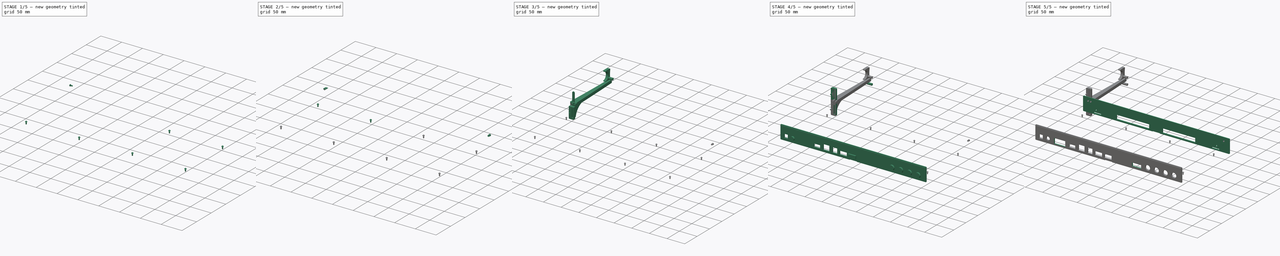
[diagram: build sequence overview — one tinted view per stage of 5, left to right]
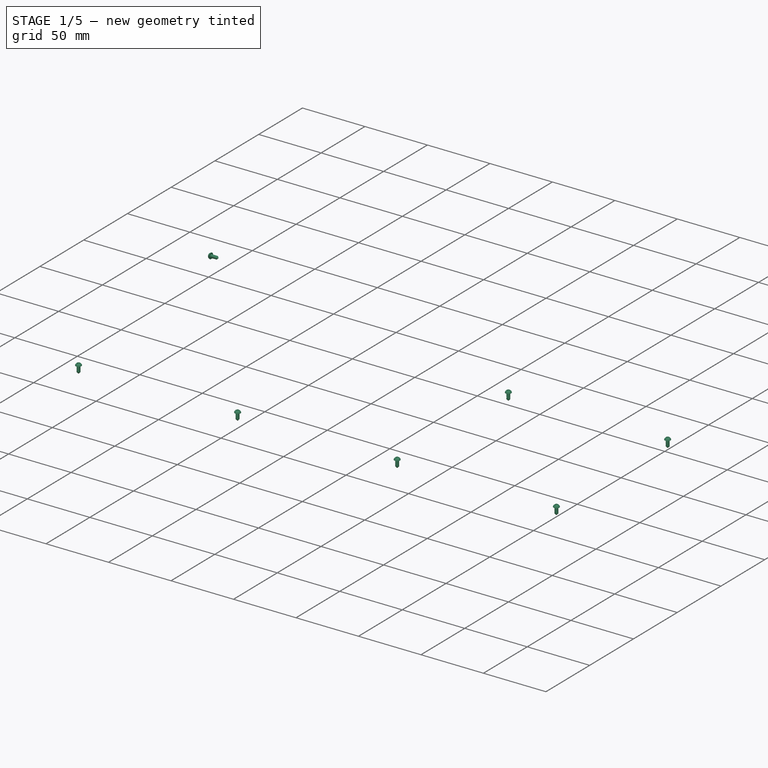
[diagram: stage 1 of 5 — iso view after this stage's code; geometry added in this stage tinted green]
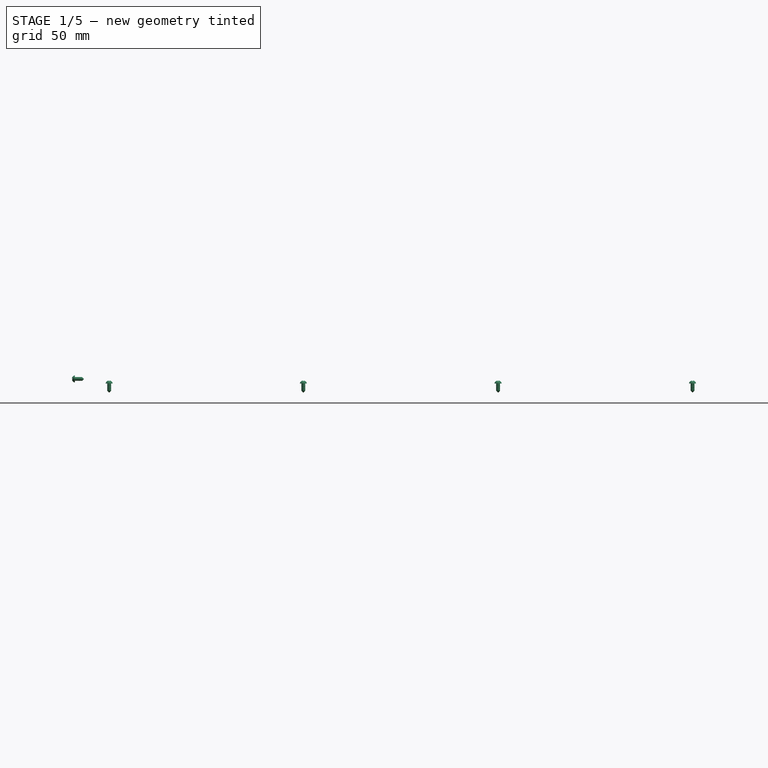
[diagram: stage 1 of 5 — front view after this stage's code; geometry added in this stage tinted green]
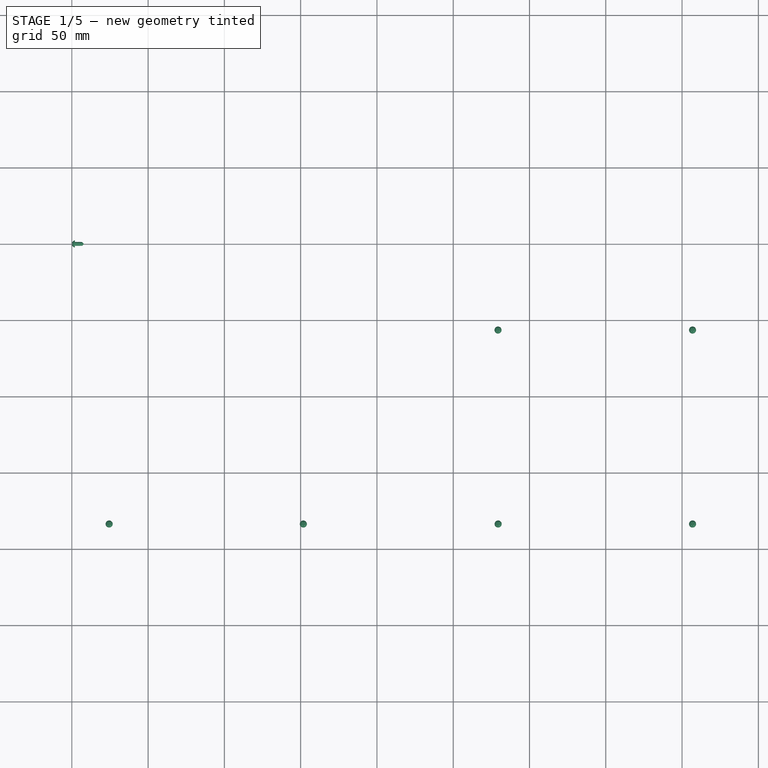
[diagram: stage 1 of 5 — top view after this stage's code; geometry added in this stage tinted green]
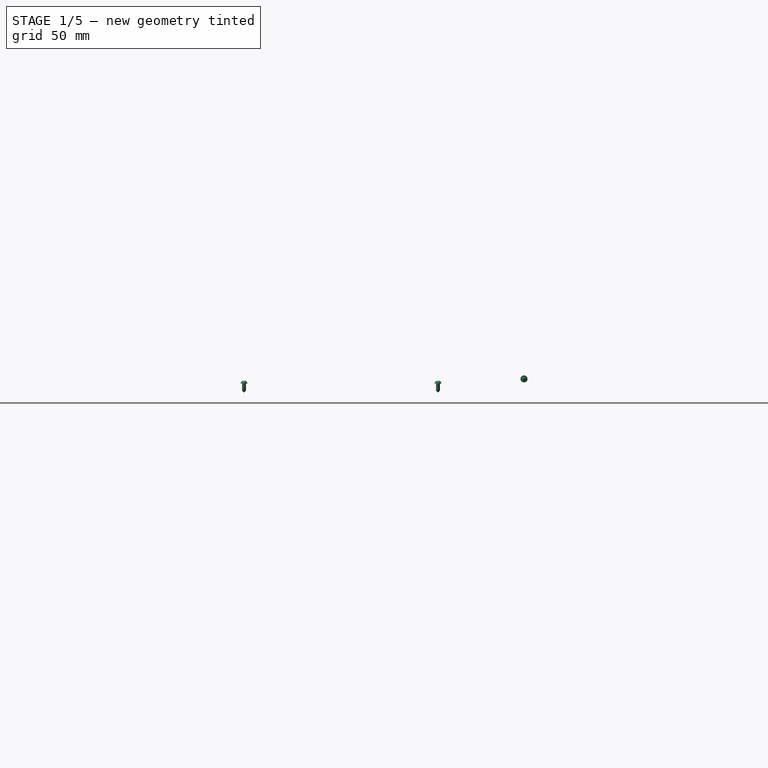
[diagram: stage 1 of 5 — right view after this stage's code; geometry added in this stage tinted green]
FCSTD DOCUMENT  (FreeCAD 0.21R33771 (Git))
Label: InterconnectIO_Box_full_511-1000
License: All rights reserved
LicenseURL: http://en.wikipedia.org/wiki/All_rights_reserved
objects: Part::Feature×696, App::Link×380, App::Part×70, Part::Box×38, Part::Cut×36, Part::FeaturePython×35, Part::Cylinder×17, Sketcher::SketchObject×16, Part::MultiFuse×16, PartDesign::Pad×14, PartDesign::Body×9, App::DocumentObjectGroup×6, PartDesign::CoordinateSystem×4, PartDesign::Fillet×4, Part::Sphere×3, Part::Common×3, Part::Fuse×3, App::FeaturePython×2
note: 912 computed .brp shape members not serialized (recipe doc carries the construction recipe); baked Part::Feature solids carry a one-line shape summary decoded from their .brp

FEATURE [Part::Box] Box039  label="Cube019"
  AttacherType = Attacher::AttachEngine3D
  Height = 10
  Length = 2
  Placement = pos=(0.054,-4.52,-3.237) rot=(0,0,1;0rad)
  Width = 10
FEATURE [Part::Feature] Part__Feature936  label="screw_gb_t_950_2_5x009"
  shape: bbox 9.98 x 4.63 x 4.63 mm, 54 faces (baked)
FEATURE [Part::FeaturePython] Slice001  # WARN: FeaturePython — macro-defined, semantics opaque (R4)
  Base = -> Part__Feature936
  Mode = 1
  Tolerance = 0
  Tools = -> [Box039]
FEATURE [Part::FeaturePython] Slice_child003  label="Slice.003"  # WARN: FeaturePython — macro-defined, semantics opaque (R4)
  Base = -> Slice001
  FilterType = 1
  Invert = false
  OverrideMaxVal = 0
  Placement = pos=(2.006,0,0) rot=(0,0,1;0rad)
  WindowFrom = 80
  WindowTo = 100
  items = 0
FEATURE [Part::FeaturePython] Slice_child004  label="Slice.004"  # WARN: FeaturePython — macro-defined, semantics opaque (R4)
  Base = -> Slice001
  FilterType = 1
  Invert = false
  OverrideMaxVal = 0
  WindowFrom = 80
  WindowTo = 100
  items = 2
FEATURE [Part::Box] Box040  label="Cube020"
  AttacherType = Attacher::AttachEngine3D
  Height = 10
  Length = 2
  Placement = pos=(0.054,-4.52,-3.237) rot=(0,0,1;0rad)
  Width = 10
FEATURE [Part::Feature] Part__Feature937  label="screw_gb_t_950_2_5x010"
  shape: bbox 9.98 x 4.63 x 4.63 mm, 54 faces (baked)
FEATURE [Part::FeaturePython] Slice002  # WARN: FeaturePython — macro-defined, semantics opaque (R4)
  Base = -> Part__Feature937
  Mode = 1
  Tolerance = 0
  Tools = -> [Box040]
FEATURE [Part::FeaturePython] Slice_child005  label="Slice.005"  # WARN: FeaturePython — macro-defined, semantics opaque (R4)
  Base = -> Slice002
  FilterType = 1
  Invert = false
  OverrideMaxVal = 0
  Placement = pos=(2.006,0,0) rot=(0,0,1;0rad)
  WindowFrom = 80
  WindowTo = 100
  items = 0
FEATURE [Part::FeaturePython] Slice_child006  label="Slice.006"  # WARN: FeaturePython — macro-defined, semantics opaque (R4)
  Base = -> Slice002
  FilterType = 1
  Invert = false
  OverrideMaxVal = 0
  WindowFrom = 80
  WindowTo = 100
  items = 2
FEATURE [Part::MultiFuse] Fusion013  label="Screw_board002"
  Placement = pos=(279.369,-56.44,-0.993) rot=(0,1,0;1.5708rad)
  Shapes = -> [Slice_child005,Slice_child006]
FEATURE [Part::Box] Box041  label="Cube021"
  AttacherType = Attacher::AttachEngine3D
  Height = 10
  Length = 2
  Placement = pos=(0.054,-4.52,-3.237) rot=(0,0,1;0rad)
  Width = 10
FEATURE [Part::Feature] Part__Feature938  label="screw_gb_t_950_2_5x011"
  shape: bbox 9.98 x 4.63 x 4.63 mm, 54 faces (baked)
FEATURE [Part::FeaturePython] Slice003  # WARN: FeaturePython — macro-defined, semantics opaque (R4)
  Base = -> Part__Feature938
  Mode = 1
  Tolerance = 0
  Tools = -> [Box041]
FEATURE [Part::FeaturePython] Slice_child007  label="Slice.007"  # WARN: FeaturePython — macro-defined, semantics opaque (R4)
  Base = -> Slice003
  FilterType = 1
  Invert = false
  OverrideMaxVal = 0
  Placement = pos=(2.006,0,0) rot=(0,0,1;0rad)
  WindowFrom = 80
  WindowTo = 100
  items = 0
FEATURE [Part::FeaturePython] Slice_child008  label="Slice.008"  # WARN: FeaturePython — macro-defined, semantics opaque (R4)
  Base = -> Slice003
  FilterType = 1
  Invert = false
  OverrideMaxVal = 0
  WindowFrom = 80
  WindowTo = 100
  items = 2
FEATURE [Part::MultiFuse] Fusion014  label="Screw_board003"
  Placement = pos=(406.867,-56.44,-0.993) rot=(0,1,0;1.5708rad)
  Shapes = -> [Slice_child007,Slice_child008]
FEATURE [Part::Box] Box042  label="Cube022"
  AttacherType = Attacher::AttachEngine3D
  Height = 10
  Length = 2
  Placement = pos=(0.054,-4.52,-3.237) rot=(0,0,1;0rad)
  Width = 10
FEATURE [Part::Feature] Part__Feature939  label="screw_gb_t_950_2_5x012"
  shape: bbox 9.98 x 4.63 x 4.63 mm, 54 faces (baked)
FEATURE [Part::FeaturePython] Slice004  # WARN: FeaturePython — macro-defined, semantics opaque (R4)
  Base = -> Part__Feature939
  Mode = 1
  Tolerance = 0
  Tools = -> [Box042]
FEATURE [Part::FeaturePython] Slice_child009  label="Slice.009"  # WARN: FeaturePython — macro-defined, semantics opaque (R4)
  Base = -> Slice004
  FilterType = 1
  Invert = false
  OverrideMaxVal = 0
  Placement = pos=(2.006,0,0) rot=(0,0,1;0rad)
  WindowFrom = 80
  WindowTo = 100
  items = 0
FEATURE [Part::FeaturePython] Slice_child010  label="Slice.010"  # WARN: FeaturePython — macro-defined, semantics opaque (R4)
  Base = -> Slice004
  FilterType = 1
  Invert = false
  OverrideMaxVal = 0
  WindowFrom = 80
  WindowTo = 100
  items = 2
FEATURE [Part::MultiFuse] Fusion015  label="Screw_board004"
  Placement = pos=(279.449,-183.586,-0.993) rot=(0,1,0;1.5708rad)
  Shapes = -> [Slice_child009,Slice_child010]
FEATURE [Part::Box] Box043  label="Cube023"
  AttacherType = Attacher::AttachEngine3D
  Height = 10
  Length = 2
  Placement = pos=(0.054,-4.52,-3.237) rot=(0,0,1;0rad)
  Width = 10
FEATURE [Part::Feature] Part__Feature940  label="screw_gb_t_950_2_5x013"
  shape: bbox 9.98 x 4.63 x 4.63 mm, 54 faces (baked)
FEATURE [Part::FeaturePython] Slice005  # WARN: FeaturePython — macro-defined, semantics opaque (R4)
  Base = -> Part__Feature940
  Mode = 1
  Tolerance = 0
  Tools = -> [Box043]
FEATURE [Part::FeaturePython] Slice_child011  label="Slice.011"  # WARN: FeaturePython — macro-defined, semantics opaque (R4)
  Base = -> Slice005
  FilterType = 1
  Invert = false
  OverrideMaxVal = 0
  Placement = pos=(2.006,0,0) rot=(0,0,1;0rad)
  WindowFrom = 80
  WindowTo = 100
  items = 0
FEATURE [Part::FeaturePython] Slice_child012  label="Slice.012"  # WARN: FeaturePython — macro-defined, semantics opaque (R4)
  Base = -> Slice005
  FilterType = 1
  Invert = false
  OverrideMaxVal = 0
  WindowFrom = 80
  WindowTo = 100
  items = 2
FEATURE [Part::MultiFuse] Fusion016  label="Screw_board005"
  Placement = pos=(406.867,-183.586,-0.993) rot=(0,1,0;1.5708rad)
  Shapes = -> [Slice_child011,Slice_child012]
FEATURE [Part::Box] Box044  label="Cube024"
  AttacherType = Attacher::AttachEngine3D
  Height = 10
  Length = 2
  Placement = pos=(0.054,-4.52,-3.237) rot=(0,0,1;0rad)
  Width = 10
FEATURE [Part::Feature] Part__Feature941  label="screw_gb_t_950_2_5x014"
  shape: bbox 9.98 x 4.63 x 4.63 mm, 54 faces (baked)
FEATURE [Part::FeaturePython] Slice006  # WARN: FeaturePython — macro-defined, semantics opaque (R4)
  Base = -> Part__Feature941
  Mode = 1
  Tolerance = 0
  Tools = -> [Box044]
FEATURE [Part::FeaturePython] Slice_child013  label="Slice.013"  # WARN: FeaturePython — macro-defined, semantics opaque (R4)
  Base = -> Slice006
  FilterType = 1
  Invert = false
  OverrideMaxVal = 0
  Placement = pos=(2.006,0,0) rot=(0,0,1;0rad)
  WindowFrom = 80
  WindowTo = 100
  items = 0
FEATURE [Part::FeaturePython] Slice_child014  label="Slice.014"  # WARN: FeaturePython — macro-defined, semantics opaque (R4)
  Base = -> Slice006
  FilterType = 1
  Invert = false
  OverrideMaxVal = 0
  WindowFrom = 80
  WindowTo = 100
  items = 2
FEATURE [Part::MultiFuse] Fusion017  label="Screw_board006"
  Placement = pos=(151.752,-183.586,-0.993) rot=(0,1,0;1.5708rad)
  Shapes = -> [Slice_child013,Slice_child014]
FEATURE [Part::Feature] Part__Feature943  label="Case_screw001"
  Placement = pos=(327.192,-56.38,30) rot=(0,0,1;0rad)
  shape: bbox 5.6 x 5.6 x 25 mm, 24 faces (baked)
FEATURE [Part::Feature] Part__Feature944  label="Case_screw002"
  Placement = pos=(327.192,-183.423,30) rot=(0,0,1;0rad)
  shape: bbox 5.6 x 5.6 x 25 mm, 24 faces (baked)
FEATURE [Part::Feature] Part__Feature945  label="Case_screw003"
  Placement = pos=(104.173,-183.347,30) rot=(0,0,1;0rad)
  shape: bbox 5.6 x 5.6 x 25 mm, 24 faces (baked)
FEATURE [Part::Box] Box045  label="Cube025"
  AttacherType = Attacher::AttachEngine3D
  Height = 10
  Length = 2
  Placement = pos=(0.054,-4.52,-3.237) rot=(0,0,1;0rad)
  Width = 10
FEATURE [Part::Feature] Part__Feature946  label="screw_gb_t_950_2_5x015"
  shape: bbox 9.98 x 4.63 x 4.63 mm, 54 faces (baked)
FEATURE [Part::FeaturePython] Slice007  # WARN: FeaturePython — macro-defined, semantics opaque (R4)
  Base = -> Part__Feature946
  Mode = 1
  Tolerance = 0
  Tools = -> [Box045]
FEATURE [Part::FeaturePython] Slice_child015  label="Slice.015"  # WARN: FeaturePython — macro-defined, semantics opaque (R4)
  Base = -> Slice007
  FilterType = 1
  Invert = false
  OverrideMaxVal = 0
  Placement = pos=(2.006,0,0) rot=(0,0,1;0rad)
  WindowFrom = 80
  WindowTo = 100
  items = 0
FEATURE [Part::FeaturePython] Slice_child016  label="Slice.016"  # WARN: FeaturePython — macro-defined, semantics opaque (R4)
  Base = -> Slice007
  FilterType = 1
  Invert = false
  OverrideMaxVal = 0
  WindowFrom = 80
  WindowTo = 100
  items = 2
FEATURE [Part::MultiFuse] Fusion018  label="Screw_board007"
  Placement = pos=(24.487,-183.586,-0.993) rot=(0,1,0;1.5708rad)
  Shapes = -> [Slice_child015,Slice_child016]
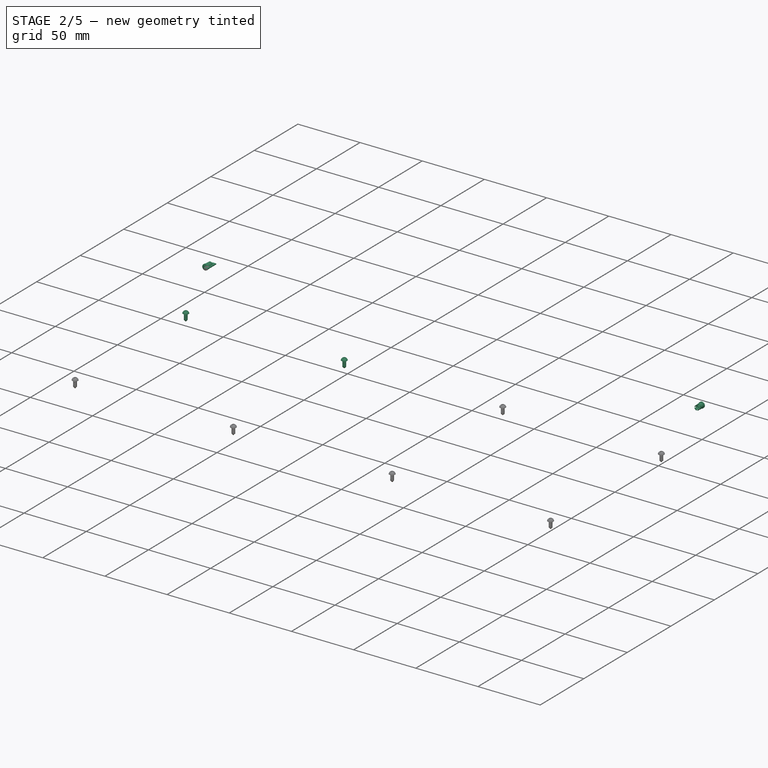
[diagram: stage 2 of 5 — iso view after this stage's code; geometry added in this stage tinted green]
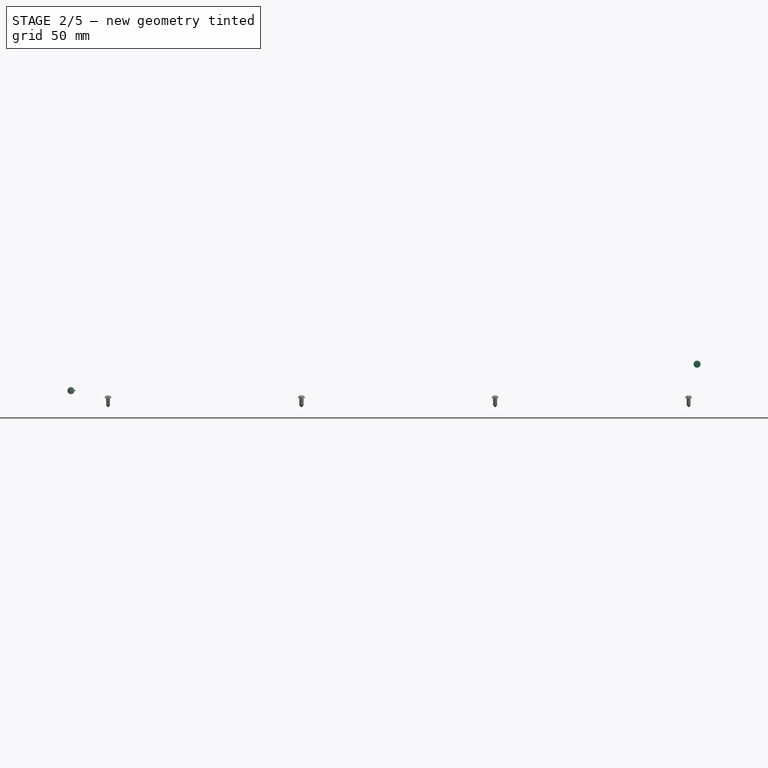
[diagram: stage 2 of 5 — front view after this stage's code; geometry added in this stage tinted green]
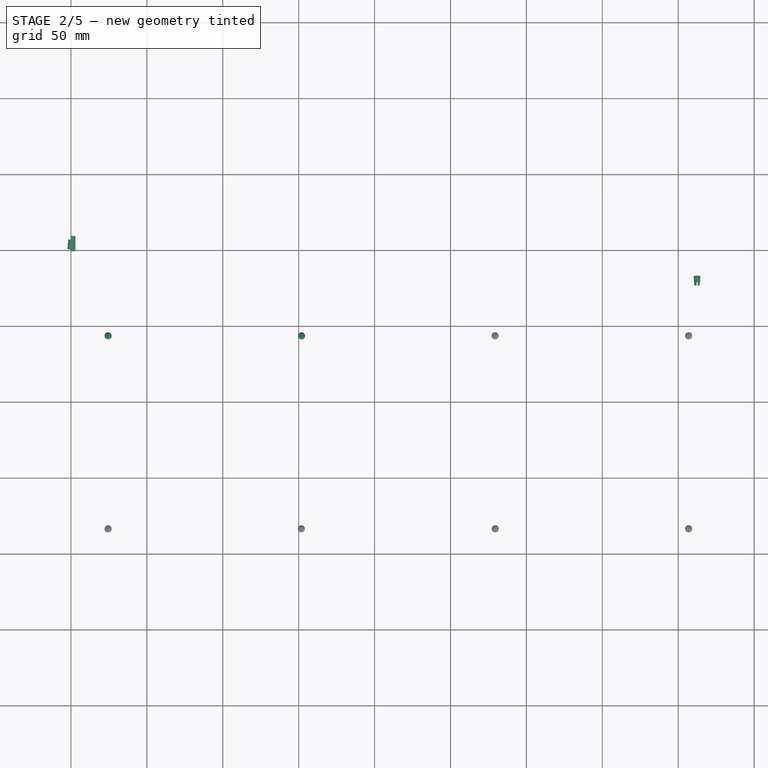
[diagram: stage 2 of 5 — top view after this stage's code; geometry added in this stage tinted green]
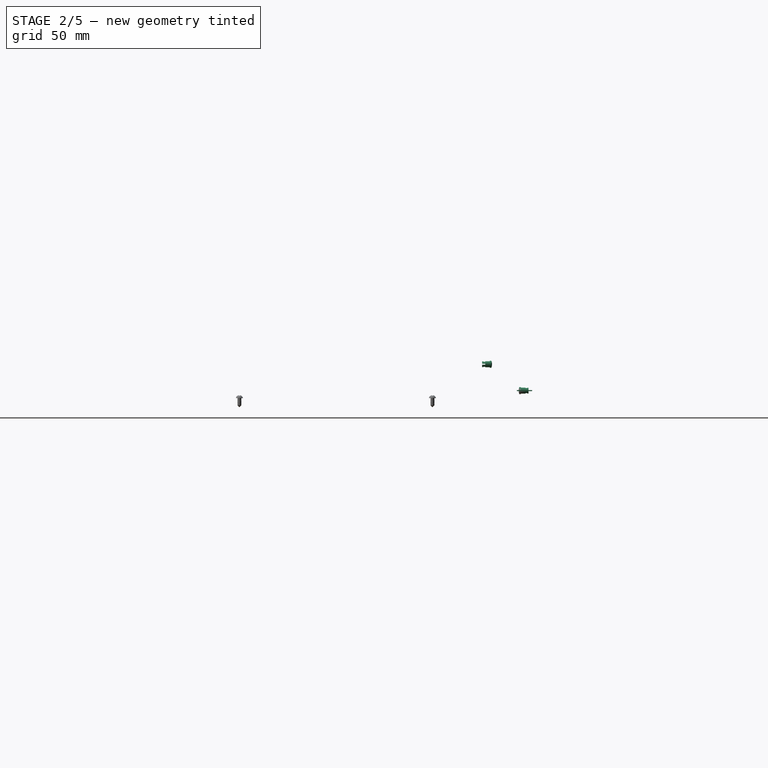
[diagram: stage 2 of 5 — right view after this stage's code; geometry added in this stage tinted green]
FEATURE [Part::Box] Box030  label="Cube010"
  AttacherType = Attacher::AttachEngine3D
  Height = 0.7
  Length = 3
  Placement = pos=(0.326,-0.784,-1.491) rot=(0,-1,0;1.5708rad)
  Width = 10
FEATURE [Part::Box] Box031  label="Cube011"
  AttacherType = Attacher::AttachEngine3D
  Height = 0.7
  Length = 3
  Placement = pos=(0,-0.784,1.616) rot=(0,0,1;0rad)
  Width = 10
FEATURE [Part::Cylinder] Cylinder025
  Angle = 360
  AttacherType = Attacher::AttachEngine3D
  FirstAngle = 0
  Height = 2
  Placement = pos=(0,-31.287,1.982) rot=(1,0,0;1.5708rad)
  Radius = 2.3
  SecondAngle = 0
FEATURE [Part::Sphere] Sphere001
  Angle1 = -90
  Angle2 = 90
  Angle3 = 360
  AttacherType = Attacher::AttachEngine3D
  Placement = pos=(0,-25.755,1.989) rot=(0,0,1;0rad)
  Radius = 7
FEATURE [Part::Common] Common001
  Base = -> Sphere001
  Placement = pos=(0,33.12,-0.018) rot=(0,0,1;0rad)
  Tool = -> Cylinder025
FEATURE [Part::FeaturePython] Tube005  # WARN: FeaturePython — macro-defined, semantics opaque (R4)
  AttacherType = Attacher::AttachEngine3D
  Height = 3
  InnerRadius = 1.5
  OuterRadius = 2
  Placement = pos=(0,4.834,1.964) rot=(1,0,0;1.5708rad)
FEATURE [Part::MultiFuse] Fusion006
  Shapes = -> [Tube005,Common001]
FEATURE [Part::FeaturePython] Tube006  # WARN: FeaturePython — macro-defined, semantics opaque (R4)
  AttacherType = Attacher::AttachEngine3D
  Height = 2
  InnerRadius = 1.5
  OuterRadius = 1.7
  Placement = pos=(0,6.835,1.964) rot=(1,0,0;1.5708rad)
FEATURE [Part::FeaturePython] Tube007  # WARN: FeaturePython — macro-defined, semantics opaque (R4)
  AttacherType = Attacher::AttachEngine3D
  Height = 0.8
  InnerRadius = 1.5
  OuterRadius = 1.9
  Placement = pos=(0,6.835,1.964) rot=(1,0,0;1.5708rad)
FEATURE [Part::Fuse] Fusion005
  Base = -> Tube006
  Tool = -> Tube007
FEATURE [Part::Cut] Cut050  label="Cut051"
  Base = -> Fusion005
  Tool = -> Box030
FEATURE [Part::Box] Box034  label="Cube014"
  AttacherType = Attacher::AttachEngine3D
  Height = 0.7
  Length = 3
  Placement = pos=(0.326,-0.784,-1.491) rot=(0,-1,0;1.5708rad)
  Width = 10
FEATURE [Part::Box] Box035  label="Cube015"
  AttacherType = Attacher::AttachEngine3D
  Height = 0.7
  Length = 3
  Placement = pos=(0,-0.784,1.616) rot=(0,0,1;0rad)
  Width = 10
FEATURE [Part::Box] Box036  label="Cube016"
  AttacherType = Attacher::AttachEngine3D
  Height = 0.7
  Length = 3
  Placement = pos=(-3.072,-0.784,1.616) rot=(0,0,1;0rad)
  Width = 10
FEATURE [Part::Box] Box037  label="Cube017"
  AttacherType = Attacher::AttachEngine3D
  Height = 0.7
  Length = 3
  Placement = pos=(0.326,-0.784,2.677) rot=(0,-1,0;1.5708rad)
  Width = 10
FEATURE [Part::Cylinder] Cylinder026
  Angle = 360
  AttacherType = Attacher::AttachEngine3D
  FirstAngle = 0
  Height = 2
  Placement = pos=(0,-31.287,1.982) rot=(1,0,0;1.5708rad)
  Radius = 2.3
  SecondAngle = 0
FEATURE [Part::Sphere] Sphere002
  Angle1 = -90
  Angle2 = 90
  Angle3 = 360
  AttacherType = Attacher::AttachEngine3D
  Placement = pos=(0,-25.755,1.989) rot=(0,0,1;0rad)
  Radius = 7
FEATURE [Part::Common] Common002
  Base = -> Sphere002
  Placement = pos=(0,33.12,-0.018) rot=(0,0,1;0rad)
  Tool = -> Cylinder026
FEATURE [Part::FeaturePython] Tube008  # WARN: FeaturePython — macro-defined, semantics opaque (R4)
  AttacherType = Attacher::AttachEngine3D
  Height = 3
  InnerRadius = 1.5
  OuterRadius = 2
  Placement = pos=(0,4.834,1.964) rot=(1,0,0;1.5708rad)
FEATURE [Part::MultiFuse] Fusion009
  Shapes = -> [Tube008,Common002]
FEATURE [Part::FeaturePython] Tube009  # WARN: FeaturePython — macro-defined, semantics opaque (R4)
  AttacherType = Attacher::AttachEngine3D
  Height = 2
  InnerRadius = 1.5
  OuterRadius = 1.7
  Placement = pos=(0,6.835,1.964) rot=(1,0,0;1.5708rad)
FEATURE [Part::FeaturePython] Tube010  # WARN: FeaturePython — macro-defined, semantics opaque (R4)
  AttacherType = Attacher::AttachEngine3D
  Height = 0.8
  InnerRadius = 1.5
  OuterRadius = 1.9
  Placement = pos=(0,6.835,1.964) rot=(1,0,0;1.5708rad)
FEATURE [Part::Fuse] Fusion008
  Base = -> Tube009
  Tool = -> Tube010
FEATURE [Part::Cut] Cut054  label="Cut055"
  Base = -> Fusion008
  Tool = -> Box034
FEATURE [Part::Cut] Cut055  label="Cut056"
  Base = -> Cut054
  Tool = -> Box035
FEATURE [Part::Cut] Cut056  label="Cut057"
  Base = -> Cut055
  Tool = -> Box036
FEATURE [Part::Cut] Cut057  label="Cut058"
  Base = -> Cut056
  Tool = -> Box037
FEATURE [Part::MultiFuse] Fusion010  label="lens002"
  Placement = pos=(412.405,-16.852,17.397) rot=(0,0,1;3.14159rad)
  Shapes = -> [Cut057,Fusion009]
FEATURE [Part::Feature] Part__Feature933  label="Case_screw"
  Placement = pos=(104.173,-56.385,30) rot=(0,0,1;0rad)
  shape: bbox 5.6 x 5.6 x 25 mm, 24 faces (baked)
FEATURE [Part::Box] Box038  label="Cube018"
  AttacherType = Attacher::AttachEngine3D
  Height = 10
  Length = 2
  Placement = pos=(0.054,-4.52,-3.237) rot=(0,0,1;0rad)
  Width = 10
FEATURE [Part::Feature] Part__Feature935  label="screw_gb_t_950_2_5x8"
  shape: bbox 9.98 x 4.63 x 4.63 mm, 54 faces (baked)
FEATURE [Part::FeaturePython] Slice  # WARN: FeaturePython — macro-defined, semantics opaque (R4)
  Base = -> Part__Feature935
  Mode = 1
  Tolerance = 0
  Tools = -> [Box038]
FEATURE [Part::FeaturePython] Slice_child0  label="Slice.0"  # WARN: FeaturePython — macro-defined, semantics opaque (R4)
  Base = -> Slice
  FilterType = 1
  Invert = false
  OverrideMaxVal = 0
  Placement = pos=(2.006,0,0) rot=(0,0,1;0rad)
  WindowFrom = 80
  WindowTo = 100
  items = 0
FEATURE [Part::FeaturePython] Slice_child2  label="Slice.2"  # WARN: FeaturePython — macro-defined, semantics opaque (R4)
  Base = -> Slice
  FilterType = 1
  Invert = false
  OverrideMaxVal = 0
  WindowFrom = 80
  WindowTo = 100
  items = 2
FEATURE [Part::MultiFuse] Fusion011  label="Screw_board"
  Placement = pos=(24.48,-56.44,-0.993) rot=(0,1,0;1.5708rad)
  Shapes = -> [Slice_child0,Slice_child2]
FEATURE [Part::MultiFuse] Fusion012  label="Screw_board001"
  Placement = pos=(151.929,-56.44,-0.993) rot=(0,1,0;1.5708rad)
  Shapes = -> [Slice_child003,Slice_child004]
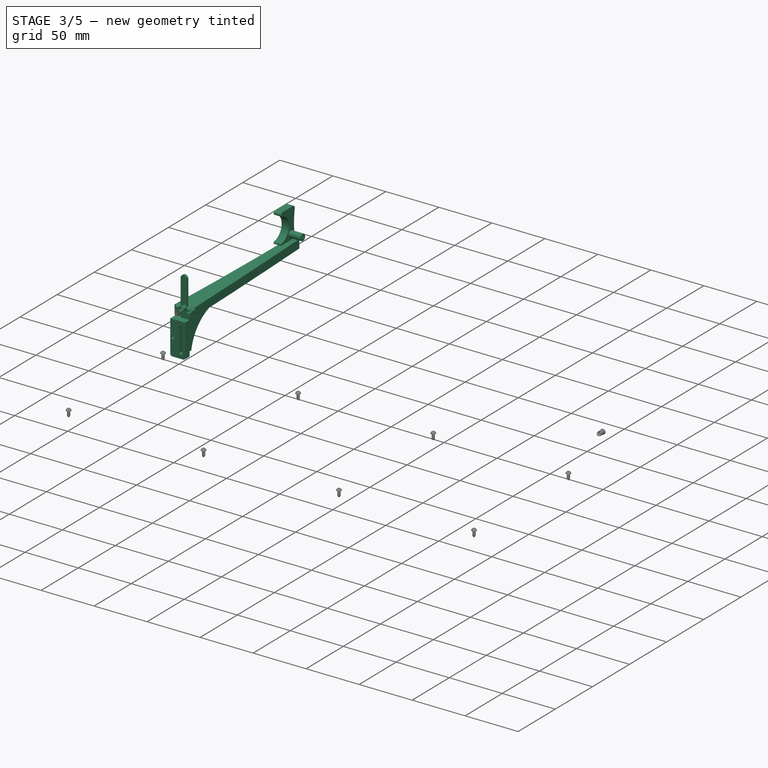
[diagram: stage 3 of 5 — iso view after this stage's code; geometry added in this stage tinted green]
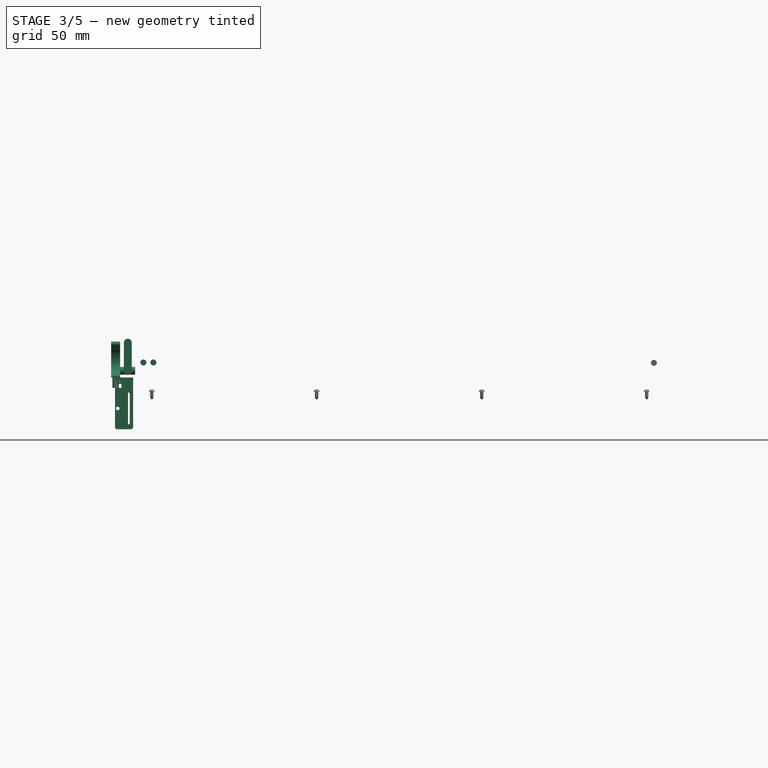
[diagram: stage 3 of 5 — front view after this stage's code; geometry added in this stage tinted green]
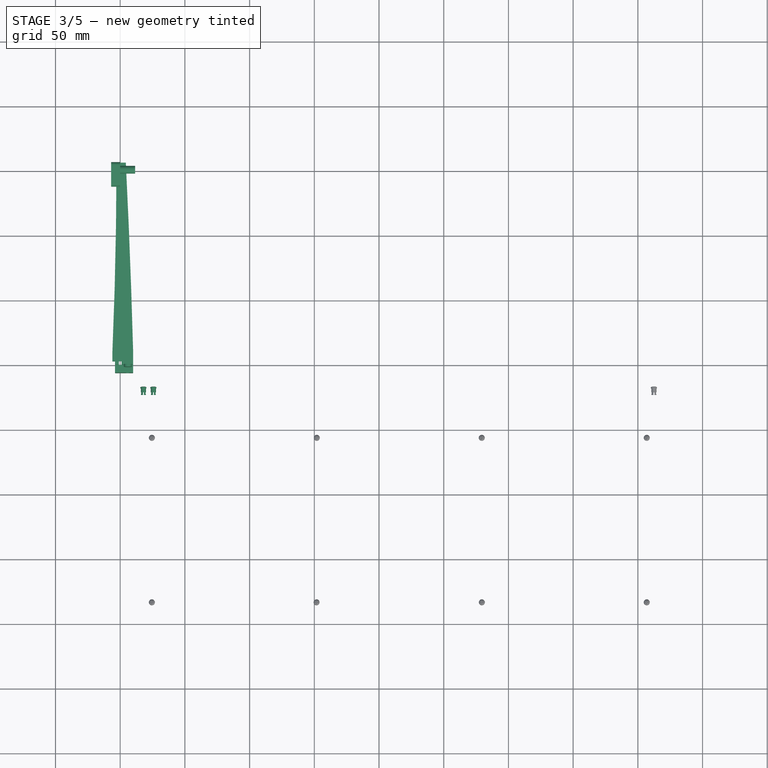
[diagram: stage 3 of 5 — top view after this stage's code; geometry added in this stage tinted green]
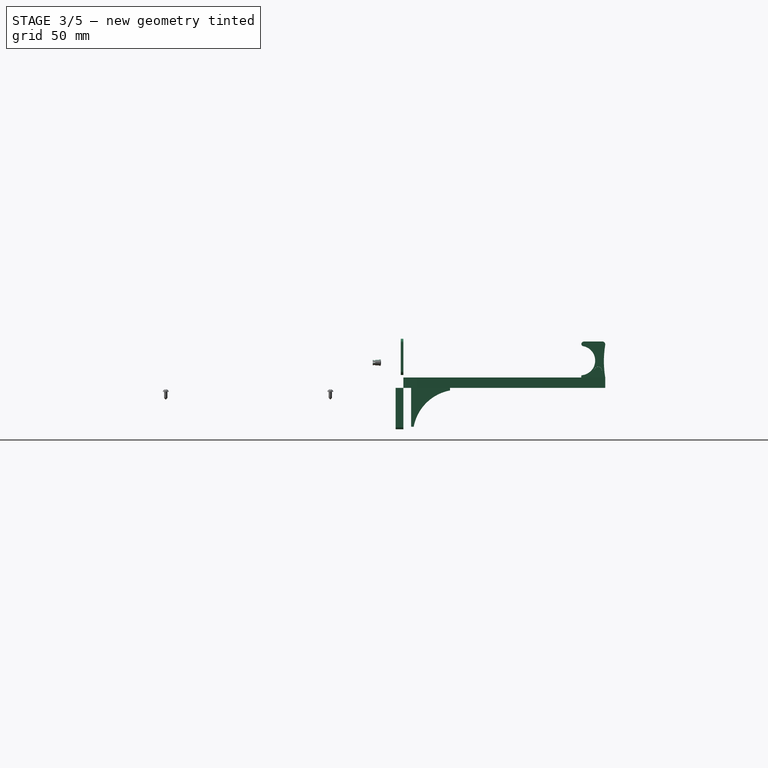
[diagram: stage 3 of 5 — right view after this stage's code; geometry added in this stage tinted green]
FEATURE [App::DocumentObjectGroup] Parts
  Group = -> [Body003,Body004,Body,Body007,Cylinder,Cut044,Fusion]
FEATURE [App::FeaturePython] Variables  # WARN: FeaturePython — macro-defined, semantics opaque (R4)
  Type = App::PropertyContainer
FEATURE [App::Part] Assembly  label="rail_left"
  AssemblyType = Part::Link
  Group = -> [LCS_Origin,Constraints,Variables,Configurations,Body003,Body004,Parts,Body,Body009,Body007,Cylinder,Sketch012,Pad004,Cut044,Tube,Cylinder021,Fusion]
  Origin = -> Origin118
  Placement = pos=(369.229,-18.461,-4.683) rot=(0,1,0;4.71239rad)
  Type = Assembly
FEATURE [App::DocumentObjectGroup] Configurations001
FEATURE [App::DocumentObjectGroup] Constraints001
FEATURE [Part::Cylinder] Cylinder022
  Angle = 360
  AttacherType = Attacher::AttachEngine3D
  FirstAngle = 0
  Height = 8
  Placement = pos=(28.57,150.463,13.35) rot=(0,-1,0;1.5708rad)
  Radius = 3
  SecondAngle = 0
FEATURE [PartDesign::CoordinateSystem] LCS_Origin001
  AttacherType = Attacher::AttachEngine3D
  MapMode = 2
  Support = -> [X_Axis124]
FEATURE [Sketcher::SketchObject] Sketch021
  AttachmentOffset = pos=(0,0,3) rot=(0,0,1;0rad)
  FullyConstrained = true
  MapMode = 5
  Placement = pos=(0,0,3) rot=(0,0,1;0rad)
  Support = -> [XY_Plane125]
  sketch-geometry (4):
    g0: LineSegment StartX=-2.36 StartY=2.5 StartZ=0 EndX=2.36 EndY=2.5 EndZ=0
    g1: LineSegment StartX=2.36 StartY=2.5 StartZ=0 EndX=2.36 EndY=156 EndZ=0
    g2: LineSegment StartX=2.36 StartY=156 StartZ=0 EndX=-2.36 EndY=156 EndZ=0
    g3: LineSegment StartX=-2.36 StartY=156 StartZ=0 EndX=-2.36 EndY=2.5 EndZ=0
  constraints (12):
    c: Coincident(g0,g1)
    c: Coincident(g1,g2)
    c: Coincident(g2,g3)
    c: Coincident(g3,g0)
    c: Horizontal(g0)
    c: Horizontal(g2)
    c: Vertical(g1)
    c: Vertical(g3)
    c: DistanceX(g2,g2) = 4.72
    c: DistanceY(g0,g-1) = -2.5
    c: DistanceX(g0,g-1) = 2.36
    c: DistanceY(g1,g1) = 153.5
FEATURE [Sketcher::SketchObject] Sketch022
  FullyConstrained = true
  MapMode = 5
  Support = -> [XY_Plane125]
  sketch-geometry (8):
    g0: LineSegment StartX=-1 StartY=0 StartZ=0 EndX=-1 EndY=153 EndZ=0
    g1: ArcOfCircle CenterX=-7.01053 CenterY=152.083 CenterZ=0 NormalX=0 NormalY=0 NormalZ=1 AngleXU=0 Radius=6.08 StartAngle=0.151318 EndAngle=0.699927
    g2: LineSegment StartX=-2.36 StartY=156 StartZ=0 EndX=-2.86 EndY=156 EndZ=0
    g3: ArcOfCircle CenterX=-3459.01 CenterY=157.297 CenterZ=0 NormalX=0 NormalY=0 NormalZ=1 AngleXU=0 Radius=3456.16 StartAngle=6.24055 EndAngle=6.28281
    g4: LineSegment StartX=-4 StartY=0 StartZ=0 EndX=-4 EndY=2.5 EndZ=0
    g5: LineSegment StartX=-4 StartY=2.5 StartZ=0 EndX=-6 EndY=2.5 EndZ=0
    g6: LineSegment StartX=-4 StartY=0 StartZ=0 EndX=-1 EndY=0 EndZ=0
    g7: LineSegment StartX=-6 StartY=10 StartZ=0 EndX=-6 EndY=2.5 EndZ=0
  constraints (27):
    c: Vertical(g0)
    c: Coincident(g1,g0)
    c: Coincident(g2,g1)
    c: Horizontal(g2)
    c: Coincident(g3,g2)
    c: DistanceX(g2,g2) = 0.5
    c: Diameter(g3) = 6912.31
    c: PointOnObject(g6,g-1)
    c: Vertical(g4)
    c: Coincident(g5,g4)
    c: Horizontal(g5)
    c: Coincident(g6,g4)
    c: Coincident(g7,g3)
    c: Coincident(g7,g5)
    c: DistanceX(g6,g6) = 3
    c: Vertical(g7)
    c: DistanceX(g5,g5) = 2
    c: DistanceY(g7,g7) = 7.5
    c: DistanceY(g4,g4) = 2.5
    c: DistanceY(g4,g-1) = 0
    c: DistanceY(g3,g2) = 146
    c: DistanceY(g0,g0) = 153
    c: DistanceX(g0,g-1) = 1
    c: DistanceX(g6,g-1) = 1
    c: DistanceY(g6,g0) = 0
    c: Radius(g1) = 6.08
    c: DistanceX(g1,g0) = 1.36
FEATURE [PartDesign::Pad] Pad008
  Direction = (0,0,1)
  Length = 8
  Length2 = 10
  Profile = -> Sketch022
  ReferenceAxis = -> Sketch022 [N_Axis]
  Type = 0
FEATURE [PartDesign::Pad] Pad009
  BaseFeature = -> Pad008
  Direction = (0,0,1)
  Length = 5
  Length2 = 10
  Profile = -> Sketch021
  ReferenceAxis = -> Sketch021 [N_Axis]
  Type = 0
FEATURE [Sketcher::SketchObject] Sketch023
  FullyConstrained = true
  MapMode = 5
  Support = -> [XY_Plane125]
  sketch-geometry (6):
    g0: LineSegment StartX=1 StartY=0 StartZ=0 EndX=10 EndY=0 EndZ=0
    g1: LineSegment StartX=4.36 StartY=156 StartZ=0 EndX=2.36 EndY=156 EndZ=0
    g2: LineSegment StartX=1 StartY=153 StartZ=0 EndX=1 EndY=0 EndZ=0
    g3: ArcOfCircle CenterX=7.01053 CenterY=152.083 CenterZ=0 NormalX=0 NormalY=0 NormalZ=1 AngleXU=0 Radius=6.08 StartAngle=2.44167 EndAngle=2.99027
    g4: LineSegment StartX=10 StartY=0 StartZ=0 EndX=10 EndY=10.5 EndZ=0
    g5: ArcOfCircle CenterX=-6386.74 CenterY=-164.597 CenterZ=0 NormalX=0 NormalY=0 NormalZ=1 AngleXU=0 Radius=6399.14 StartAngle=0.027366 EndAngle=0.050121
  constraints (20):
    c: Coincident(g2,g0)
    c: Horizontal(g0)
    c: Horizontal(g1)
    c: Vertical(g2)
    c: PointOnObject(g0,g-1)
    c: Coincident(g1,g3)
    c: Coincident(g2,g3)
    c: DistanceX(g2,g1) = 1.36
    c: DistanceY(g2,g1) = 3
    c: DistanceX(g1,g1) = 2
    c: DistanceX(g-1,g0) = 1
    c: DistanceY(g2,g2) = 153
    c: Radius(g3) = 6.08
    c: Coincident(g4,g0)
    c: DistanceY(g4,g4) = 10.5
    c: Coincident(g5,g4)
    c: Coincident(g5,g1)
    c: Radius(g5) = 6399.14
    c: DistanceX(g0,g0) = 9
    c: DistanceX(g-1,g4) = 10
FEATURE [PartDesign::Pad] Pad010
  BaseFeature = -> Pad009
  Direction = (0,0,1)
  Length = 8
  Length2 = 10
  Profile = -> Sketch023
  ReferenceAxis = -> Sketch023 [N_Axis]
  Type = 0
FEATURE [PartDesign::Body] Body010  label="rail001"
  Group = -> [Sketch022,Pad008,Sketch021,Pad009,Sketch023,Pad010]
  Origin = -> Origin125
  Tip = -> Pad010
FEATURE [Sketcher::SketchObject] Sketch024
  FullyConstrained = true
  MapMode = 5
  Placement = pos=(0,0,0) rot=(1,0,0;1.5708rad)
  sketch-geometry (11):
    g0: LineSegment StartX=-4 StartY=0 StartZ=0 EndX=10 EndY=0 EndZ=0
    g1: LineSegment StartX=10 StartY=0 StartZ=0 EndX=10 EndY=-30.2 EndZ=0
    g2: LineSegment StartX=8.2 StartY=-32 StartZ=0 EndX=-2.2 EndY=-32 EndZ=0
    g3: LineSegment StartX=-4 StartY=-30.2 StartZ=0 EndX=-4 EndY=0 EndZ=0
    g4: ArcOfCircle CenterX=8.2 CenterY=-30.2 CenterZ=0 NormalX=0 NormalY=0 NormalZ=1 AngleXU=0 Radius=1.8 StartAngle=4.71239 EndAngle=6.28319
    g5: ArcOfCircle CenterX=-2.2 CenterY=-30.2 CenterZ=0 NormalX=0 NormalY=0 NormalZ=1 AngleXU=0 Radius=1.8 StartAngle=3.14159 EndAngle=4.71239
    g6: ArcOfCircle CenterX=5.9 CenterY=-26.9 CenterZ=0 NormalX=0 NormalY=0 NormalZ=1 AngleXU=0 Radius=1.5 StartAngle=3.14159 EndAngle=6.28319
    g7: ArcOfCircle CenterX=5.9 CenterY=-4.9 CenterZ=0 NormalX=0 NormalY=0 NormalZ=1 AngleXU=0 Radius=1.5 StartAngle=2e-16 EndAngle=3.14159
    g8: LineSegment StartX=7.4 StartY=-26.9 StartZ=0 EndX=7.4 EndY=-4.9 EndZ=0
    g9: LineSegment StartX=4.4 StartY=-4.9 StartZ=0 EndX=4.4 EndY=-26.9 EndZ=0
    g10: Circle CenterX=-1.9 CenterY=-15.9 CenterZ=0 NormalX=0 NormalY=0 NormalZ=1 AngleXU=0 Radius=1.375
  constraints (29):
    c: Coincident(g0,g1)
    c: Coincident(g3,g0)
    c: Horizontal(g0)
    c: Horizontal(g2)
    c: Vertical(g1)
    c: Vertical(g3)
    c: PointOnObject(g0,g-1)
    c: DistanceX(g0,g0) = 14
    c: DistanceX(g-1,g0) = 10
    c: Tangent(g2,g4) = 1.5708
    c: Tangent(g1,g4) = 1.5708
    c: Tangent(g3,g5) = 1.5708
    c: Tangent(g2,g5) = 1.5708
    c: DistanceY(g2,g1) = 1.8
    c: DistanceY(g2,g3) = 1.8
    c: Tangent(g6,g8) = -1.5708
    c: Tangent(g8,g7) = -1.5708
    c: Tangent(g7,g9) = -1.5708
    c: Tangent(g9,g6) = -1.5708
    c: Equal(g6,g7)
    c: Vertical(g8)
    c: DistanceX(g7,g7) = 3
    c: DistanceY(g6,g7) = 22
    c: DistanceY(g1,g1) = 30.2
    c: DistanceY(g7,g-1) = 4.9
    c: Diameter(g10) = 2.75
    c: DistanceY(g10,g7) = 11
    c: DistanceX(g0,g10) = 2.1
    c: DistanceX(g7,g0) = 4.1
FEATURE [PartDesign::Pad] Pad011  label="BaseGuide"
  Direction = (0,-1,-2e-16)
  Length = 6
  Length2 = 10
  Placement = pos=(0,0,0) rot=(1,0,0;1.5708rad)
  Profile = -> Sketch024
  ReferenceAxis = -> Sketch024 [N_Axis]
  Type = 0
FEATURE [Sketcher::SketchObject] Sketch025
  FullyConstrained = false
  MapMode = 5
  Placement = pos=(0,0,0) rot=(0.57735,0.57735,0.57735;2.0944rad)
  Support = -> [YZ_Plane126]
  sketch-geometry (5):
    g0: LineSegment StartX=6.01175 StartY=0 StartZ=0 EndX=36.0118 EndY=0 EndZ=0
    g1: LineSegment StartX=36.0118 StartY=0 StartZ=0 EndX=36.0118 EndY=-2 EndZ=0
    g2: LineSegment StartX=8.01175 StartY=-30 StartZ=0 EndX=6.01175 EndY=-30 EndZ=0
    g3: LineSegment StartX=6.01175 StartY=-30 StartZ=0 EndX=6.01175 EndY=0 EndZ=0
    g4: ArcOfCircle CenterX=42.4201 CenterY=-36.4083 CenterZ=0 NormalX=0 NormalY=0 NormalZ=1 AngleXU=0 Radius=35 StartAngle=1.75493 EndAngle=2.95746
  constraints (14):
    c: Coincident(g0,g1)
    c: Coincident(g2,g3)
    c: Coincident(g3,g0)
    c: Horizontal(g0)
    c: Horizontal(g2)
    c: Vertical(g1)
    c: Vertical(g3)
    c: PointOnObject(g0,g-1)
    c: DistanceX(g0,g0) = 30
    c: Coincident(g1,g4)
    c: Coincident(g2,g4)
    c: DistanceY(g1,g1) = 2
    c: DistanceX(g2,g2) = 2
    c: Radius(g4) = 35
FEATURE [PartDesign::Pad] Pad012
  Direction = (1,-2e-16,3e-16)
  Length = 6
  Length2 = 10
  Placement = pos=(0,0,0) rot=(0.57735,0.57735,0.57735;2.0944rad)
  Profile = -> Sketch025
  ReferenceAxis = -> Sketch025 [N_Axis]
  Type = 0
FEATURE [PartDesign::Body] Body011  label="sideforce001"
  Group = -> [Sketch025,Pad012,Fillet002,Fillet003]
  Origin = -> Origin126
  Placement = pos=(2,0,8) rot=(0,1,0;3.14159rad)
  Tip = -> Fillet003
FEATURE [Sketcher::SketchObject] Sketch026
  FullyConstrained = false
  MapMode = 5
  Placement = pos=(0,0,0) rot=(-0.57735,0.57735,0.57735;4.18879rad)
  Support = -> [YZ_Plane127]
  sketch-geometry (10):
    g0: LineSegment StartX=-156.003 StartY=8.00103 StartZ=0 EndX=-137.423 EndY=8.00103 EndZ=0
    g1: LineSegment StartX=-137.423 StartY=8.00103 StartZ=0 EndX=-137.423 EndY=8.88796 EndZ=0
    g2: LineSegment StartX=-139.803 StartY=35.8702 StartZ=0 EndX=-153.603 EndY=35.8702 EndZ=0
    g3: ArcOfCircle CenterX=-136.888 CenterY=21.0784 CenterZ=0 NormalX=0 NormalY=0 NormalZ=1 AngleXU=0 Radius=11.34 StartAngle=1.74764 EndAngle=4.59202
    g4: ArcOfCircle CenterX=-153.603 CenterY=33.4702 CenterZ=0 NormalX=0 NormalY=0 NormalZ=1 AngleXU=0 Radius=2.4 StartAngle=1.5708 EndAngle=3.27078
    g5: ArcOfCircle CenterX=-139.803 CenterY=33.4702 CenterZ=0 NormalX=0 NormalY=0 NormalZ=1 AngleXU=0 Radius=2.4 StartAngle=0.566257 EndAngle=1.5708
    g6: ArcOfCircle CenterX=-230.704 CenterY=20.6405 CenterZ=0 NormalX=0 NormalY=0 NormalZ=1 AngleXU=0 Radius=75.763 StartAngle=6.11557 EndAngle=6.44921
    g7: Circle CenterX=-150.473 CenterY=13.3301 CenterZ=0 NormalX=0 NormalY=0 NormalZ=1 AngleXU=0 Radius=3
    g8: ArcOfCircle CenterX=-138.362 CenterY=8.88796 CenterZ=0 NormalX=0 NormalY=0 NormalZ=1 AngleXU=0 Radius=0.939281 StartAngle=0 EndAngle=1.45042
    g9: ArcOfCircle CenterX=-139.174 CenterY=33.8702 CenterZ=0 NormalX=0 NormalY=0 NormalZ=1 AngleXU=0 Radius=1.65446 StartAngle=4.88923 EndAngle=6.84944
  constraints (20):
    c: Coincident(g0,g1)
    c: Horizontal(g0)
    c: Horizontal(g2)
    c: Vertical(g1)
    c: Tangent(g2,g4) = -1.5708
    c: Tangent(g2,g5) = -1.5708
    c: Radius(g4) = 2.4
    c: Radius(g5) = 2.4
    c: DistanceX(g2,g2) = 13.8
    c: DistanceY(g0,g4) = 25.16
    c: DistanceX(g4,g2) = 2.38
    c: Radius(g3) = 11.34
    c: Coincident(g6,g0)
    c: Coincident(g6,g4)
    c: DistanceX(g0,g0) = 18.58
    c: Diameter(g7) = 6
    c: Tangent(g3,g8) = 1.5708
    c: Tangent(g1,g8) = -1.5708
    c: Tangent(g3,g9) = 1.5708
    c: Tangent(g5,g9) = -1.5708
FEATURE [PartDesign::Pad] Pad013
  Direction = (-1,2e-16,-3e-16)
  Length = 7
  Length2 = 10
  Placement = pos=(0,0,0) rot=(0.57735,0.57735,0.57735;2.0944rad)
  Profile = -> Sketch026
  ReferenceAxis = -> Sketch026 [N_Axis]
  Type = 0
FEATURE [PartDesign::Body] Body012  label="finger001"
  Group = -> [Sketch026,Pad013]
  Origin = -> Origin127
  Placement = pos=(4.278,-0.01,-0.012) rot=(0,0,1;0rad)
  Tip = -> Pad013
FEATURE [Sketcher::SketchObject] Sketch027
  FullyConstrained = true
  MapMode = 5
  Placement = pos=(0,0,0) rot=(1,0,0;1.5708rad)
  Support = -> [XZ_Plane129]
  sketch-geometry (4):
    g0: ArcOfCircle CenterX=5.9 CenterY=35 CenterZ=0 NormalX=0 NormalY=0 NormalZ=1 AngleXU=0 Radius=3 StartAngle=4e-16 EndAngle=3.14159
    g1: ArcOfCircle CenterX=5.9 CenterY=13 CenterZ=0 NormalX=0 NormalY=0 NormalZ=1 AngleXU=0 Radius=3 StartAngle=3.14159 EndAngle=6.28319
    g2: LineSegment StartX=2.9 StartY=35 StartZ=0 EndX=2.9 EndY=13 EndZ=0
    g3: LineSegment StartX=8.9 StartY=13 StartZ=0 EndX=8.9 EndY=35 EndZ=0
  constraints (10):
    c: Tangent(g0,g2) = -1.5708
    c: Tangent(g2,g1) = -1.5708
    c: Tangent(g1,g3) = -1.5708
    c: Tangent(g3,g0) = -1.5708
    c: Equal(g0,g1)
    c: Vertical(g2)
    c: DistanceY(g1,g0) = 22
    c: DistanceX(g1,g1) = 6
    c: DistanceY(g-1,g1) = 13
    c: DistanceX(g-1,g1) = 5.9
FEATURE [PartDesign::Pad] Pad014
  Direction = (0,-1,-2e-16)
  Length = 2
  Length2 = 10
  Placement = pos=(0,0,0) rot=(1,0,0;1.5708rad)
  Profile = -> Sketch027
  ReferenceAxis = -> Sketch027 [N_Axis]
  Type = 0
FEATURE [Part::FeaturePython] Tube001  # WARN: FeaturePython — macro-defined, semantics opaque (R4)
  AttacherType = Attacher::AttachEngine3D
  Height = 6
  InnerRadius = 1
  OuterRadius = 3
  Placement = pos=(34.552,150.466,13.322) rot=(0.57735,0.57735,-0.57735;4.18879rad)
FEATURE [Part::MultiFuse] Fusion001
  Placement = pos=(-23.031,0,-0.09) rot=(0,0,1;0rad)
  Shapes = -> [Tube001,Cylinder022]
FEATURE [App::DocumentObjectGroup] Parts001
  Group = -> [Body010,Body011,Body012,Cut045,Fusion001]
FEATURE [App::FeaturePython] Variables001  # WARN: FeaturePython — macro-defined, semantics opaque (R4)
  Type = App::PropertyContainer
FEATURE [App::Part] Assembly001  label="rail_right"
  AssemblyType = Part::Link
  Group = -> [LCS_Origin001,Constraints001,Variables001,Configurations001,Body010,Body011,Parts001,Body012,Pad011,Body013,Sketch024,Cylinder023,Tube001,Cut045,Cylinder022,Fusion001]
  Origin = -> Origin124
  Placement = pos=(66.614,-18.684,-4.682) rot=(0,1,0;4.71239rad)
  Type = Assembly
FEATURE [App::Link] DIN41612_C_Type_Female_9001_14961C00A_1aaf093ec13c_ln_  label="DIN41612 C Type Female_9001-14961C00A_718298fabf54"
  LinkPlacement = pos=(281.358,-37.9453,4.3) rot=(0,0,1;0rad)
  LinkedObject = -> Shape002
  Placement = pos=(281.358,-37.9453,4.3) rot=(0,0,1;0rad)
FEATURE [App::Link] DIN41612_C_Type_Female_M2_x_10_Screw_head_1aaf093ec13c_2__ln_  label="DIN41612 C Type Female_M2 x 10 Screw head_1aaf093ec13c[4]"
  LinkPlacement = pos=(191.242,-50.0953,-3.5) rot=(0,-1,0;1.5708rad)
  LinkedObject = -> Shape003
  Placement = pos=(191.242,-50.0953,-3.5) rot=(0,-1,0;1.5708rad)
FEATURE [App::Link] DIN41612_C_Type_Female_M2_x_10_Screw_head_1aaf093ec13c_2__ln_001  label="DIN41612 C Type Female_M2 x 10 Screw head_718298fabf54[2]"
  LinkPlacement = pos=(236.478,-50.0953,-3) rot=(0.707107,0,0.707107;3.14159rad)
  LinkedObject = -> Shape003
  Placement = pos=(236.478,-50.0953,-3) rot=(0.707107,0,0.707107;3.14159rad)
FEATURE [App::Link] DIN41612_C_Type_Female_M2_x_10_Screw_head_1aaf093ec13c_2__ln_002  label="DIN41612 C Type Female_M2 x 10 Screw head_718298fabf54[4]"
  LinkPlacement = pos=(325.278,-50.0953,-3.5) rot=(0,-1,0;1.5708rad)
  LinkedObject = -> Shape003
  Placement = pos=(325.278,-50.0953,-3.5) rot=(0,-1,0;1.5708rad)
FEATURE [App::Link] DIN41612_C_Type_Female_M2x1_2mm_Hex_Nut_1aaf093ec13c_3__ln_  label="DIN41612 C Type Female_M2x1.2mm Hex Nut_1aaf093ec13c[5]"
  LinkPlacement = pos=(191.342,-50.0953,6) rot=(0,0,-1;1.5708rad)
  LinkedObject = -> Shape004
  Placement = pos=(191.342,-50.0953,6) rot=(0,0,-1;1.5708rad)
FEATURE [App::Link] DIN41612_C_Type_Female_M2x1_2mm_Hex_Nut_1aaf093ec13c_3__ln_001  label="DIN41612 C Type Female_M2x1.2mm Hex Nut_718298fabf54[3]"
  LinkPlacement = pos=(236.478,-50.0953,6) rot=(0,0,1;3.14159rad)
  LinkedObject = -> Shape004
  Placement = pos=(236.478,-50.0953,6) rot=(0,0,1;3.14159rad)
FEATURE [App::Link] DIN41612_C_Type_Female_M2x1_2mm_Hex_Nut_1aaf093ec13c_3__ln_002  label="DIN41612 C Type Female_M2x1.2mm Hex Nut_718298fabf54[5]"
  LinkPlacement = pos=(325.378,-50.0953,6) rot=(0,0,-1;1.5708rad)
  LinkedObject = -> Shape004
  Placement = pos=(325.378,-50.0953,6) rot=(0,0,-1;1.5708rad)
FEATURE [PartDesign::CoordinateSystem] Local_CS_1bb003
  AttacherType = Attacher::AttachEngine3D
  MapMode = 2
  Support = -> [X_Axis001]
FEATURE [App::Link] Microchip_TO_92_Narrow_0865cdfbf3e3_ln_  label="Microchip_TO-92_Narrow_80dfe3af9da4"
  LinkPlacement = pos=(107.823,-96.266,0) rot=(0,0,1;0rad)
  LinkedObject = -> Shape006
  Placement = pos=(107.823,-96.266,0) rot=(0,0,1;0rad)
FEATURE [Sketcher::SketchObject] PCB_Sketch_1bb003
  FullyConstrained = false
  sketch-geometry (9):
    g0: LineSegment StartX=63.83 StartY=-47.43 StartZ=0 EndX=363.83 EndY=-47.43 EndZ=0
    g1: LineSegment StartX=363.83 StartY=-47.43 StartZ=0 EndX=363.83 EndY=-197.43 EndZ=0
    g2: LineSegment StartX=363.83 StartY=-197.43 StartZ=0 EndX=63.83 EndY=-197.43 EndZ=0
    g3: LineSegment StartX=63.83 StartY=-197.43 StartZ=0 EndX=63.83 EndY=-47.43 EndZ=0
    g4: Circle CenterX=348 CenterY=-141 CenterZ=0 NormalX=0 NormalY=0 NormalZ=1 AngleXU=0 Radius=1.4
    g5: Circle CenterX=70.18 CenterY=-191.08 CenterZ=0 NormalX=0 NormalY=0 NormalZ=1 AngleXU=0 Radius=1.4
    g6: Circle CenterX=357.48 CenterY=-191.08 CenterZ=0 NormalX=0 NormalY=0 NormalZ=1 AngleXU=0 Radius=1.4
    g7: Circle CenterX=70.18 CenterY=-53.78 CenterZ=0 NormalX=0 NormalY=0 NormalZ=1 AngleXU=0 Radius=1.4
    g8: Circle CenterX=357.48 CenterY=-53.78 CenterZ=0 NormalX=0 NormalY=0 NormalZ=1 AngleXU=0 Radius=1.4
  constraints (4):
    c: Coincident(g2,g3)
    c: Coincident(g0,g3)
    c: Coincident(g1,g2)
    c: Coincident(g0,g1)
FEATURE [Part::Feature] Part__Feature898  label="COMPOUND"
  shape: bbox 2.9 x 2.9 x 2.1 mm, 4 faces (baked)
FEATURE [Part::Feature] Part__Feature899  label="COMPOUND001"
  shape: bbox 2.8 x 2.8 x 2.8 mm, 2 faces (baked)
FEATURE [Part::Feature] Part__Feature900  label="COMPOUND002"
  shape: bbox 3.2 x 3.2 x 1 mm, 4 faces (baked)
FEATURE [Part::Feature] Part__Feature003  label="Cut043"
  shape: bbox 1.12 x 0.4 x 4.408 mm, 10 faces (baked)
FEATURE [Part::Feature] Part__Feature901  label="Cut044"
  shape: bbox 1.12 x 0.4 x 4.305 mm, 10 faces (baked)
FEATURE [App::Part] COMPOUND005  label="test_connector.kicad_sch_COMPOUND005_3d966814704d[2]"
  Group = -> [Part__Feature898,Part__Feature899,Part__Feature900,Part__Feature003,Part__Feature901]
  Origin = -> Origin008
  Placement = pos=(228.133,-185.852,2) rot=(0,0,1;0rad)
FEATURE [Part::Feature] Part__Feature902  label="SCSL (DS1002-01 CONNFLY)061"
  shape: bbox 12.7 x 2.54 x 3 mm, 61 faces (baked)
FEATURE [Part::Feature] Part__Feature903  label="SCSL (DS1002-01 CONNFLY)062"
  shape: bbox 1.8 x 1.8 x 7.4 mm, 10 faces (baked)
FEATURE [Part::Feature] Part__Feature904  label="SCSL (DS1002-01 CONNFLY)063"
  shape: bbox 1.8 x 1.8 x 7.4 mm, 10 faces (baked)
FEATURE [Part::Feature] Part__Feature008  label="SCSL (DS1002-01 CONNFLY)064"
  shape: bbox 1.8 x 1.8 x 7.4 mm, 10 faces (baked)
FEATURE [Part::Feature] Part__Feature009  label="SCSL (DS1002-01 CONNFLY)065"
  shape: bbox 1.8 x 1.8 x 7.4 mm, 10 faces (baked)
FEATURE [Part::Feature] Part__Feature010  label="SCSL (DS1002-01 CONNFLY)066"
  shape: bbox 1.8 x 1.8 x 7.4 mm, 10 faces (baked)
FEATURE [Part::Feature] Part__Feature011  label="SCSL (DS1002-01 CONNFLY)067"
  shape: bbox 1 x 1 x 2.04 mm, 27 faces (baked)
FEATURE [Part::Feature] Part__Feature012  label="SCSL (DS1002-01 CONNFLY)068"
  shape: bbox 1 x 1 x 2.04 mm, 27 faces (baked)
FEATURE [Part::Feature] Part__Feature013  label="SCSL (DS1002-01 CONNFLY)069"
  shape: bbox 1 x 1 x 2.04 mm, 27 faces (baked)
FEATURE [Part::Feature] Part__Feature014  label="SCSL (DS1002-01 CONNFLY)070"
  shape: bbox 1 x 1 x 2.04 mm, 27 faces (baked)
FEATURE [Part::Feature] Part__Feature015  label="SCSL (DS1002-01 CONNFLY)071"
  shape: bbox 1 x 1 x 2.04 mm, 27 faces (baked)
FEATURE [Part::Feature] Part__Feature016  label="D_DO-35_SOD27_P7.62mm_Horizontal"
  shape: bbox 8.244 x 0.5 x 4.312 mm, 7 faces (baked)
FEATURE [Part::Feature] Part__Feature017  label="D_DO-35_SOD27_P7.62mm_Horizontal001"
  shape: bbox 4 x 2.165 x 2.165 mm, 9 faces (baked)
FEATURE [App::Part] D_DO_35_SOD27_P7_62mm_Horizontal  label="relay_driver.kicad_sch_D_DO-35_SOD27_P7.62mm_Horizontal002_9acbbbe7f530"
  Group = -> [Part__Feature016,Part__Feature017]
  Origin = -> Origin010
  Placement = pos=(129.855,-145.706,0) rot=(0,0,1;3.14159rad)
FEATURE [Part::Feature] Part__Feature018  label="CUI_DEVICES_CRJ028-1H-TH002"
  shape: bbox 17.8 x 12.7 x 19.4 mm, 461 faces (baked)
FEATURE [Part::Feature] Part__Feature019  label="CUI_DEVICES_CRJ028-1H-TH003"
  shape: bbox 16.3 x 13.3 x 19.9 mm, 123 faces (baked)
FEATURE [App::Part] CUI_DEVICES_CRJ028_1H_TH001  label="CUI Devices_CUI_DEVICES_CRJ028-1H-TH002_88f421fc1d3c"
  Group = -> [Part__Feature018,Part__Feature019]
  Origin = -> Origin011
  Placement = pos=(282.245,-183.191,16) rot=(0,0,1;3.14159rad)
FEATURE [Part::Feature] Part__Feature020  label="SOLID"
  shape: bbox 2.427 x 2.55 x 3.2 mm, 14 faces (baked)
FEATURE [Part::Feature] Part__Feature021  label="SHELL005"
  shape: bbox 4.618 x 0.5011 x 8.153 mm, 50 faces, 0 solids (baked)
FEATURE [App::Part] Document007  label="test_connector.kicad_sch_Document_121e9e8cff02"
  Group = -> [Part__Feature020,Part__Feature021]
  Origin = -> Origin012
  Placement = pos=(199.415,-185.344,0) rot=(0,0,1;0rad)
FEATURE [Part::Feature] Part__Feature022  label="SOLID001"
  shape: bbox 2.427 x 2.55 x 3.2 mm, 14 faces (baked)
FEATURE [Part::Feature] Part__Feature023  label="SHELL006"
  shape: bbox 4.618 x 0.5011 x 8.153 mm, 50 faces, 0 solids (baked)
FEATURE [App::Part] Document008  label="test_connector.kicad_sch_Document_1959ec3e1602"
  Group = -> [Part__Feature022,Part__Feature023]
  Origin = -> Origin013
  Placement = pos=(229.87,-166.446,0) rot=(0,0,1;0rad)
FEATURE [Part::Feature] Part__Feature024  label="USB-A1VSB016"
  shape: bbox 0.72 x 3.2 x 0.25 mm, 8 faces (baked)
FEATURE [Part::Feature] Part__Feature025  label="USB-A1VSB017"
  shape: bbox 0.72 x 3.2 x 0.25 mm, 8 faces (baked)
FEATURE [Part::Feature] Part__Feature026  label="USB-A1VSB018"
  shape: bbox 0.72 x 3.2 x 0.25 mm, 8 faces (baked)
FEATURE [Part::Feature] Part__Feature027  label="USB-A1VSB019"
  shape: bbox 0.72 x 3.2 x 0.25 mm, 8 faces (baked)
FEATURE [Part::Feature] Part__Feature028  label="USB-A1VSB020"
  shape: bbox 16.89 x 18 x 7.9 mm, 410 faces (baked)
FEATURE [Part::Feature] Part__Feature029  label="USB-A1VSB021"
  shape: bbox 1 x 3.415 x 0.7756 mm, 12 faces (baked)
FEATURE [Part::Feature] Part__Feature030  label="USB-A1VSB022"
  shape: bbox 1 x 3.415 x 0.7756 mm, 12 faces (baked)
FEATURE [Part::Feature] Part__Feature031  label="USB-A1VSB023"
  shape: bbox 1 x 3.415 x 0.7756 mm, 12 faces (baked)
FEATURE [Part::Feature] Part__Feature032  label="USB-A1VSB024"
  shape: bbox 1 x 3.415 x 0.7756 mm, 12 faces (baked)
FEATURE [Part::Feature] Part__Feature033  label="USB-A1VSB025"
  shape: bbox 13.1 x 13.3 x 6.85 mm, 81 faces (baked)
FEATURE [Part::Feature] Part__Feature034  label="SCSL (DS1002-01 CONNFLY)072"
  shape: bbox 20.32 x 2.54 x 3 mm, 94 faces (baked)
FEATURE [Part::Feature] Part__Feature035  label="SCSL (DS1002-01 CONNFLY)073"
  shape: bbox 1.8 x 1.8 x 7.4 mm, 10 faces (baked)
FEATURE [Part::Feature] Part__Feature036  label="SCSL (DS1002-01 CONNFLY)074"
  shape: bbox 1.8 x 1.8 x 7.4 mm, 10 faces (baked)
FEATURE [Part::Feature] Part__Feature037  label="SCSL (DS1002-01 CONNFLY)075"
  shape: bbox 1.8 x 1.8 x 7.4 mm, 10 faces (baked)
FEATURE [Part::Feature] Part__Feature038  label="SCSL (DS1002-01 CONNFLY)076"
  shape: bbox 1.8 x 1.8 x 7.4 mm, 10 faces (baked)
FEATURE [Part::Feature] Part__Feature039  label="SCSL (DS1002-01 CONNFLY)077"
  shape: bbox 1.8 x 1.8 x 7.4 mm, 10 faces (baked)
FEATURE [Part::Feature] Part__Feature040  label="SCSL (DS1002-01 CONNFLY)078"
  shape: bbox 1.8 x 1.8 x 7.4 mm, 10 faces (baked)
FEATURE [Part::Feature] Part__Feature041  label="SCSL (DS1002-01 CONNFLY)079"
  shape: bbox 1.8 x 1.8 x 7.4 mm, 10 faces (baked)
FEATURE [Part::Feature] Part__Feature042  label="SCSL (DS1002-01 CONNFLY)080"
  shape: bbox 1.8 x 1.8 x 7.4 mm, 10 faces (baked)
FEATURE [Part::Feature] Part__Feature043  label="SCSL (DS1002-01 CONNFLY)081"
  shape: bbox 1 x 1 x 2.04 mm, 27 faces (baked)
FEATURE [Part::Feature] Part__Feature044  label="SCSL (DS1002-01 CONNFLY)082"
  shape: bbox 1 x 1 x 2.04 mm, 27 faces (baked)
FEATURE [Part::Feature] Part__Feature045  label="SCSL (DS1002-01 CONNFLY)083"
  shape: bbox 1 x 1 x 2.04 mm, 27 faces (baked)
FEATURE [Part::Feature] Part__Feature046  label="SCSL (DS1002-01 CONNFLY)084"
  shape: bbox 1 x 1 x 2.04 mm, 27 faces (baked)
FEATURE [Part::Feature] Part__Feature047  label="SCSL (DS1002-01 CONNFLY)085"
  shape: bbox 1 x 1 x 2.04 mm, 27 faces (baked)
FEATURE [Part::Feature] Part__Feature048  label="SCSL (DS1002-01 CONNFLY)086"
  shape: bbox 1 x 1 x 2.04 mm, 27 faces (baked)
FEATURE [Part::Feature] Part__Feature049  label="SCSL (DS1002-01 CONNFLY)087"
  shape: bbox 1 x 1 x 2.04 mm, 27 faces (baked)
FEATURE [Part::Feature] Part__Feature050  label="SCSL (DS1002-01 CONNFLY)088"
  shape: bbox 1 x 1 x 2.04 mm, 27 faces (baked)
FEATURE [Part::Feature] Part__Feature051  label="SOLID002"
  shape: bbox 2.427 x 2.55 x 3.2 mm, 14 faces (baked)
FEATURE [Part::Feature] Part__Feature052  label="SHELL007"
  shape: bbox 4.618 x 0.5011 x 8.153 mm, 50 faces, 0 solids (baked)
FEATURE [App::Part] Document009  label="test_connector.kicad_sch_Document_eb94e38f20d9"
  Group = -> [Part__Feature051,Part__Feature052]
  Origin = -> Origin016
  Placement = pos=(319.075,-88.4509,0) rot=(0,0,1;0rad)
FEATURE [Part::Feature] Part__Feature053  label="SOLID003"
  shape: bbox 2.427 x 2.55 x 3.2 mm, 14 faces (baked)
FEATURE [Part::Feature] Part__Feature054  label="SHELL008"
  shape: bbox 4.618 x 0.5011 x 8.153 mm, 50 faces, 0 solids (baked)
FEATURE [App::Part] Document010  label="test_connector.kicad_sch_Document_3b4bb9a8309e"
  Group = -> [Part__Feature053,Part__Feature054]
  Origin = -> Origin017
  Placement = pos=(301.041,-171.475,0) rot=(0,0,1;0rad)
FEATURE [Part::Feature] Part__Feature055  label="PICO_REF_BOARD.STEP"
  shape: bbox 21 x 1 x 51 mm, 244 faces (baked)
FEATURE [Part::Feature] Part__Feature056  label="PICO_REF_USB.STEP"
  Placement = pos=(10.5,1.76,-49.2) rot=(0,1,0;3.14159rad)
  shape: bbox 7.58 x 2.52 x 5 mm, 27 faces (baked)
FEATURE [Part::Feature] Part__Feature057  label="PICO_REF_USB.STEP001"
  Placement = pos=(10.5,1.76,-49.2) rot=(0,1,0;3.14159rad)
  shape: bbox 6.4 x 0.55 x 0.6 mm, 10 faces (baked)
FEATURE [Part::Feature] Part__Feature058  label="PICO_REF_USB.STEP002"
  Placement = pos=(10.5,1.76,-49.2) rot=(0,1,0;3.14159rad)
  shape: bbox 5.215 x 0.5653 x 0.6153 mm, 11 faces (baked)
FEATURE [Part::Feature] Part__Feature059  label="PICO_REF_USB.STEP003"
  Placement = pos=(10.5,1.76,-49.2) rot=(0,1,0;3.14159rad)
  shape: bbox 0.55 x 0.92 x 0.6 mm, 10 faces (baked)
FEATURE [Part::Feature] Part__Feature060  label="PICO_REF_USB.STEP004"
  Placement = pos=(10.5,1.76,-49.2) rot=(0,1,0;3.14159rad)
  shape: bbox 0.55 x 0.92 x 0.6 mm, 10 faces (baked)
FEATURE [App::Part] PICO_REF_USB_STEP  label="PICO_REF_USB.STEP005"
  Group = -> [Part__Feature056,Part__Feature057,Part__Feature058,Part__Feature059,Part__Feature060]
  Origin = -> Origin018
FEATURE [Part::Feature] Part__Feature061  label="PICO_REF_SWITCH.STEP"
  Placement = pos=(7,0.5,-39) rot=(0,1,0;1.5708rad)
  shape: bbox 3.2 x 2.5 x 4.25 mm, 15 faces (baked)
FEATURE [Part::Feature] Part__Feature062  label="PICO_REF_MICROCONTROLLER.STEP"
  Placement = pos=(10.5,0.95,-25) rot=(0,0,1;0rad)
  shape: bbox 7 x 0.9 x 7 mm, 6 faces (baked)
FEATURE [Part::Feature] Part__Feature063  label="PICO_REF_LED.STEP"
  Placement = pos=(4.8,0.5,-46.2) rot=(0,0,1;0rad)
  shape: bbox 1.6 x 0.6 x 0.8 mm, 10 faces (baked)
FEATURE [Part::Feature] Part__Feature064  label="PICO_REF_ONSEMI.STEP"
  Placement = pos=(16.5,0.5,-44.4) rot=(0,1,0;1.5708rad)
  shape: bbox 1.65 x 0.95 x 3.6 mm, 14 faces (baked)
FEATURE [Part::Feature] Part__Feature065  label="PICO_BOURNS.STEP"
  Placement = pos=(16.5,0.5,-40.1) rot=(0,-1,0;1.5708rad)
  shape: bbox 2 x 1.2 x 2.5 mm, 6 faces (baked)
FEATURE [Part::Feature] Part__Feature066  label="PICO_MURATA.STEP"
  Placement = pos=(13.4,1.125,-42.6) rot=(0,0,1;0rad)
  shape: bbox 2 x 1.25 x 1.25 mm, 6 faces (baked)
FEATURE [Part::Feature] Part__Feature067  label="PICO_MURATA.STEP001"
  Placement = pos=(13.4,1.125,-37.6) rot=(0,0,1;0rad)
  shape: bbox 2 x 1.25 x 1.25 mm, 6 faces (baked)
FEATURE [Part::Feature] Part__Feature068  label="PICO_RICHTEK.STEP"
  Placement = pos=(13.4,0.5,-40.1) rot=(0,0,1;0rad)
  shape: bbox 2.5 x 0.75 x 2.5 mm, 6 faces (baked)
FEATURE [Part::Feature] Part__Feature069  label="PICO_DIODES.STEP"
  Placement = pos=(16.9,0.5,-32.7) rot=(0,0,1;0rad)
  shape: bbox 1.6 x 0.8 x 0.8 mm, 6 faces (baked)
FEATURE [Part::Feature] Part__Feature070  label="PICO_AEL.STEP"
  Placement = pos=(8.2,0.5,-16.45) rot=(0,0,1;0rad)
  shape: bbox 3.2 x 0.6 x 2.5 mm, 6 faces (baked)
FEATURE [Part::Feature] Part__Feature071  label="PICO_PIN_HEADERS"
  shape: bbox 0.8047 x 11 x 0.8047 mm, 5 faces (baked)
FEATURE [Part::Feature] Part__Feature072  label="PICO_PIN_HEADERS001"
  shape: bbox 0.8047 x 11 x 0.8047 mm, 5 faces (baked)
FEATURE [Part::Feature] Part__Feature073  label="PICO_PIN_HEADERS002"
  shape: bbox 0.8047 x 11 x 0.8047 mm, 5 faces (baked)
FEATURE [Part::Feature] Part__Feature074  label="PICO_PIN_HEADERS003"
  shape: bbox 0.8047 x 11 x 0.8047 mm, 5 faces (baked)
FEATURE [Part::Feature] Part__Feature075  label="PICO_PIN_HEADERS004"
  shape: bbox 0.8047 x 11 x 0.8047 mm, 5 faces (baked)
FEATURE [Part::Feature] Part__Feature076  label="PICO_PIN_HEADERS005"
  shape: bbox 0.8047 x 11 x 0.8047 mm, 5 faces (baked)
FEATURE [Part::Feature] Part__Feature077  label="PICO_PIN_HEADERS006"
  shape: bbox 0.8047 x 11 x 0.8047 mm, 5 faces (baked)
FEATURE [Part::Feature] Part__Feature078  label="PICO_PIN_HEADERS007"
  shape: bbox 0.8047 x 11 x 0.8047 mm, 5 faces (baked)
FEATURE [Part::Feature] Part__Feature079  label="PICO_PIN_HEADERS008"
  shape: bbox 0.8047 x 11 x 0.8047 mm, 5 faces (baked)
FEATURE [Part::Feature] Part__Feature080  label="PICO_PIN_HEADERS009"
  shape: bbox 0.8047 x 11 x 0.8047 mm, 5 faces (baked)
FEATURE [Part::Feature] Part__Feature081  label="PICO_PIN_HEADERS010"
  shape: bbox 2.54 x 2.54 x 50.8 mm, 144 faces (baked)
FEATURE [Part::Feature] Part__Feature082  label="PICO_PIN_HEADERS011"
  shape: bbox 0.8047 x 11 x 0.8047 mm, 5 faces (baked)
FEATURE [Part::Feature] Part__Feature083  label="PICO_PIN_HEADERS012"
  shape: bbox 0.8047 x 11 x 0.8047 mm, 5 faces (baked)
FEATURE [Part::Feature] Part__Feature084  label="PICO_PIN_HEADERS013"
  shape: bbox 0.8047 x 11 x 0.8047 mm, 5 faces (baked)
FEATURE [Part::Feature] Part__Feature085  label="PICO_PIN_HEADERS014"
  shape: bbox 0.8047 x 11 x 0.8047 mm, 5 faces (baked)
FEATURE [Part::Feature] Part__Feature086  label="PICO_PIN_HEADERS015"
  shape: bbox 0.8047 x 11 x 0.8047 mm, 5 faces (baked)
FEATURE [Part::Feature] Part__Feature087  label="PICO_PIN_HEADERS016"
  shape: bbox 0.8047 x 11 x 0.8047 mm, 5 faces (baked)
FEATURE [Part::Feature] Part__Feature088  label="PICO_PIN_HEADERS017"
  shape: bbox 0.8047 x 11 x 0.8047 mm, 5 faces (baked)
FEATURE [Part::Feature] Part__Feature089  label="PICO_PIN_HEADERS018"
  shape: bbox 0.8047 x 11 x 0.8047 mm, 5 faces (baked)
FEATURE [Part::Feature] Part__Feature090  label="PICO_PIN_HEADERS019"
  shape: bbox 0.8047 x 11 x 0.8047 mm, 5 faces (baked)
FEATURE [Part::Feature] Part__Feature091  label="PICO_PIN_HEADERS020"
  shape: bbox 0.8047 x 11 x 0.8047 mm, 5 faces (baked)
FEATURE [Part::Feature] Part__Feature092  label="PICO_PIN_HEADERS021"
  shape: bbox 0.8047 x 11 x 0.8047 mm, 5 faces (baked)
FEATURE [Part::Feature] Part__Feature093  label="PICO_PIN_HEADERS022"
  shape: bbox 0.8047 x 11 x 0.8047 mm, 5 faces (baked)
FEATURE [Part::Feature] Part__Feature094  label="PICO_PIN_HEADERS023"
  shape: bbox 0.8047 x 11 x 0.8047 mm, 5 faces (baked)
FEATURE [Part::Feature] Part__Feature095  label="PICO_PIN_HEADERS024"
  shape: bbox 0.8047 x 11 x 0.8047 mm, 5 faces (baked)
FEATURE [Part::Feature] Part__Feature096  label="PICO_PIN_HEADERS025"
  shape: bbox 0.8047 x 11 x 0.8047 mm, 5 faces (baked)
FEATURE [Part::Feature] Part__Feature097  label="PICO_PIN_HEADERS026"
  shape: bbox 0.8047 x 11 x 0.8047 mm, 5 faces (baked)
FEATURE [Part::Feature] Part__Feature098  label="PICO_PIN_HEADERS027"
  shape: bbox 0.8047 x 11 x 0.8047 mm, 5 faces (baked)
FEATURE [Part::Feature] Part__Feature099  label="PICO_PIN_HEADERS028"
  shape: bbox 0.8047 x 11 x 0.8047 mm, 5 faces (baked)
FEATURE [Part::Feature] Part__Feature100  label="PICO_PIN_HEADERS029"
  shape: bbox 0.8047 x 11 x 0.8047 mm, 5 faces (baked)
FEATURE [Part::Feature] Part__Feature101  label="PICO_PIN_HEADERS030"
  shape: bbox 0.8047 x 11 x 0.8047 mm, 5 faces (baked)
FEATURE [Part::Feature] Part__Feature102  label="PICO_PIN_HEADERS031"
  shape: bbox 0.8047 x 11 x 0.8047 mm, 5 faces (baked)
FEATURE [Part::Feature] Part__Feature103  label="PICO_PIN_HEADERS032"
  shape: bbox 0.8047 x 11 x 0.8047 mm, 5 faces (baked)
FEATURE [Part::Feature] Part__Feature104  label="PICO_PIN_HEADERS033"
  shape: bbox 0.8047 x 11 x 0.8047 mm, 5 faces (baked)
FEATURE [Part::Feature] Part__Feature105  label="PICO_PIN_HEADERS034"
  shape: bbox 0.8047 x 11 x 0.8047 mm, 5 faces (baked)
FEATURE [Part::Feature] Part__Feature106  label="PICO_PIN_HEADERS035"
  shape: bbox 2.54 x 2.54 x 50.8 mm, 144 faces (baked)
FEATURE [Part::Feature] Part__Feature107  label="PICO_PIN_HEADERS036"
  shape: bbox 0.8047 x 11 x 0.8047 mm, 5 faces (baked)
FEATURE [Part::Feature] Part__Feature108  label="PICO_PIN_HEADERS037"
  shape: bbox 0.8047 x 11 x 0.8047 mm, 5 faces (baked)
FEATURE [Part::Feature] Part__Feature109  label="PICO_PIN_HEADERS038"
  shape: bbox 0.8047 x 11 x 0.8047 mm, 5 faces (baked)
FEATURE [Part::Feature] Part__Feature110  label="PICO_PIN_HEADERS039"
  shape: bbox 0.8047 x 11 x 0.8047 mm, 5 faces (baked)
FEATURE [Part::Feature] Part__Feature111  label="PICO_PIN_HEADERS040"
  shape: bbox 0.8047 x 11 x 0.8047 mm, 5 faces (baked)
FEATURE [Part::Feature] Part__Feature112  label="PICO_PIN_HEADERS041"
  shape: bbox 0.8047 x 11 x 0.8047 mm, 5 faces (baked)
FEATURE [App::Part] PICO_PIN_HEADERS  label="PICO_PIN_HEADERS042"
  Group = -> [Part__Feature071,Part__Feature072,Part__Feature073,Part__Feature074,Part__Feature075,Part__Feature076,Part__Feature077,Part__Feature078,Part__Feature079,Part__Feature080,Part__Feature081,Part__Feature082,Part__Feature083,Part__Feature084,Part__Feature085,Part__Feature086,Part__Feature087,Part__Feature088,Part__Feature089,Part__Feature090,Part__Feature091,Part__Feature092,Part__Feature093,+19 more]
  Origin = -> Origin019
FEATURE [Part::Feature] Part__Feature113  label="PICO_HEADER_HOLES"
  shape: bbox 1.6 x 1 x 2.4 mm, 9 faces (baked)
FEATURE [Part::Feature] Part__Feature114  label="PICO_HEADER_HOLES001"
  shape: bbox 2.41 x 1 x 1.6 mm, 11 faces (baked)
FEATURE [Part::Feature] Part__Feature115  label="PICO_HEADER_HOLES002"
  shape: bbox 2.41 x 1 x 1.6 mm, 11 faces (baked)
FEATURE [Part::Feature] Part__Feature116  label="PICO_HEADER_HOLES003"
  shape: bbox 2.41 x 1 x 1.6 mm, 11 faces (baked)
FEATURE [Part::Feature] Part__Feature117  label="PICO_HEADER_HOLES004"
  shape: bbox 2.41 x 1 x 1.6 mm, 9 faces (baked)
FEATURE [Part::Feature] Part__Feature118  label="PICO_HEADER_HOLES005"
  shape: bbox 2.41 x 1 x 1.6 mm, 9 faces (baked)
FEATURE [Part::Feature] Part__Feature119  label="PICO_HEADER_HOLES006"
  shape: bbox 2.41 x 1 x 1.6 mm, 11 faces (baked)
FEATURE [Part::Feature] Part__Feature120  label="PICO_HEADER_HOLES007"
  shape: bbox 2.41 x 1 x 1.6 mm, 9 faces (baked)
FEATURE [Part::Feature] Part__Feature121  label="PICO_HEADER_HOLES008"
  shape: bbox 2.41 x 1 x 1.6 mm, 11 faces (baked)
FEATURE [Part::Feature] Part__Feature122  label="PICO_HEADER_HOLES009"
  shape: bbox 2.41 x 1 x 1.6 mm, 9 faces (baked)
FEATURE [Part::Feature] Part__Feature123  label="PICO_HEADER_HOLES010"
  shape: bbox 2.41 x 1 x 1.6 mm, 11 faces (baked)
FEATURE [Part::Feature] Part__Feature124  label="PICO_HEADER_HOLES011"
  shape: bbox 2.41 x 1 x 1.6 mm, 11 faces (baked)
FEATURE [Part::Feature] Part__Feature125  label="PICO_HEADER_HOLES012"
  shape: bbox 2.41 x 1 x 1.6 mm, 11 faces (baked)
FEATURE [Part::Feature] Part__Feature126  label="PICO_HEADER_HOLES013"
  shape: bbox 2.41 x 1 x 1.6 mm, 9 faces (baked)
FEATURE [Part::Feature] Part__Feature127  label="PICO_HEADER_HOLES014"
  shape: bbox 2.41 x 1 x 1.6 mm, 11 faces (baked)
FEATURE [Part::Feature] Part__Feature128  label="PICO_HEADER_HOLES015"
  shape: bbox 2.41 x 1 x 1.6 mm, 9 faces (baked)
FEATURE [Part::Feature] Part__Feature129  label="PICO_HEADER_HOLES016"
  shape: bbox 2.41 x 1 x 1.6 mm, 11 faces (baked)
FEATURE [Part::Feature] Part__Feature130  label="PICO_HEADER_HOLES017"
  shape: bbox 2.41 x 1 x 1.6 mm, 9 faces (baked)
FEATURE [Part::Feature] Part__Feature131  label="PICO_HEADER_HOLES018"
  shape: bbox 1.6 x 1 x 2.4 mm, 9 faces (baked)
FEATURE [Part::Feature] Part__Feature132  label="PICO_HEADER_HOLES019"
  shape: bbox 2.41 x 1 x 1.6 mm, 9 faces (baked)
FEATURE [Part::Feature] Part__Feature133  label="PICO_HEADER_HOLES020"
  shape: bbox 2.41 x 1 x 1.6 mm, 11 faces (baked)
FEATURE [Part::Feature] Part__Feature134  label="PICO_HEADER_HOLES021"
  shape: bbox 2.41 x 1 x 1.6 mm, 9 faces (baked)
FEATURE [Part::Feature] Part__Feature135  label="PICO_HEADER_HOLES022"
  shape: bbox 1.6 x 1 x 2.4 mm, 11 faces (baked)
FEATURE [Part::Feature] Part__Feature136  label="PICO_HEADER_HOLES023"
  shape: bbox 2.41 x 1 x 1.6 mm, 11 faces (baked)
FEATURE [Part::Feature] Part__Feature137  label="PICO_HEADER_HOLES024"
  shape: bbox 2.41 x 1 x 1.6 mm, 11 faces (baked)
FEATURE [Part::Feature] Part__Feature138  label="PICO_HEADER_HOLES025"
  shape: bbox 2.41 x 1 x 1.6 mm, 11 faces (baked)
FEATURE [Part::Feature] Part__Feature139  label="PICO_HEADER_HOLES026"
  shape: bbox 2.41 x 1 x 1.6 mm, 11 faces (baked)
FEATURE [Part::Feature] Part__Feature140  label="PICO_HEADER_HOLES027"
  shape: bbox 2.41 x 1 x 1.6 mm, 11 faces (baked)
FEATURE [Part::Feature] Part__Feature141  label="PICO_HEADER_HOLES028"
  shape: bbox 2.41 x 1 x 1.6 mm, 9 faces (baked)
FEATURE [Part::Feature] Part__Feature142  label="PICO_HEADER_HOLES029"
  shape: bbox 2.41 x 1 x 1.6 mm, 11 faces (baked)
FEATURE [Part::Feature] Part__Feature143  label="PICO_HEADER_HOLES030"
  shape: bbox 2.41 x 1 x 1.6 mm, 9 faces (baked)
FEATURE [Part::Feature] Part__Feature144  label="PICO_HEADER_HOLES031"
  shape: bbox 2.41 x 1 x 1.6 mm, 9 faces (baked)
FEATURE [Part::Feature] Part__Feature145  label="PICO_HEADER_HOLES032"
  shape: bbox 2.41 x 1 x 1.6 mm, 11 faces (baked)
FEATURE [Part::Feature] Part__Feature146  label="PICO_HEADER_HOLES033"
  shape: bbox 2.41 x 1 x 1.6 mm, 11 faces (baked)
FEATURE [Part::Feature] Part__Feature147  label="PICO_HEADER_HOLES034"
  shape: bbox 2.41 x 1 x 1.6 mm, 11 faces (baked)
FEATURE [Part::Feature] Part__Feature148  label="PICO_HEADER_HOLES035"
  shape: bbox 2.41 x 1 x 1.6 mm, 11 faces (baked)
FEATURE [Part::Feature] Part__Feature149  label="PICO_HEADER_HOLES036"
  shape: bbox 2.41 x 1 x 1.6 mm, 9 faces (baked)
FEATURE [Part::Feature] Part__Feature150  label="PICO_HEADER_HOLES037"
  shape: bbox 2.41 x 1 x 1.6 mm, 9 faces (baked)
FEATURE [Part::Feature] Part__Feature151  label="PICO_HEADER_HOLES038"
  shape: bbox 2.41 x 1 x 1.6 mm, 9 faces (baked)
FEATURE [Part::Feature] Part__Feature152  label="PICO_HEADER_HOLES039"
  shape: bbox 2.41 x 1 x 1.6 mm, 11 faces (baked)
FEATURE [Part::Feature] Part__Feature153  label="PICO_HEADER_HOLES040"
  shape: bbox 2.41 x 1 x 1.6 mm, 9 faces (baked)
FEATURE [Part::Feature] Part__Feature154  label="PICO_HEADER_HOLES041"
  shape: bbox 2.41 x 1 x 1.6 mm, 11 faces (baked)
FEATURE [Part::Feature] Part__Feature155  label="PICO_HEADER_HOLES042"
  shape: bbox 2.41 x 1 x 1.6 mm, 11 faces (baked)
FEATURE [App::Part] PICO_HEADER_HOLES  label="PICO_HEADER_HOLES043"
  Group = -> [Part__Feature113,Part__Feature114,Part__Feature115,Part__Feature116,Part__Feature117,Part__Feature118,Part__Feature119,Part__Feature120,Part__Feature121,Part__Feature122,Part__Feature123,Part__Feature124,Part__Feature125,Part__Feature126,Part__Feature127,Part__Feature128,Part__Feature129,Part__Feature130,Part__Feature131,Part__Feature132,Part__Feature133,Part__Feature134,Part__Feature135,+20 more]
  Origin = -> Origin020
FEATURE [App::Part] PICO_assm_140121_STEP  label="controller.kicad_sch_PICO_assm_140121.STEP_ac5872985971"
  Group = -> [Part__Feature055,PICO_REF_USB_STEP,Part__Feature061,Part__Feature062,Part__Feature063,Part__Feature064,Part__Feature065,Part__Feature066,Part__Feature067,Part__Feature068,Part__Feature069,Part__Feature070,PICO_PIN_HEADERS,PICO_HEADER_HOLES]
  Origin = -> Origin021
  Placement = pos=(309.687,-103.863,8) rot=(0,0.707107,0.707107;3.14159rad)
FEATURE [Part::Feature] Part__Feature156  label="SCSL (DS1002-01 CONNFLY)089"
  shape: bbox 50.8 x 2.54 x 3 mm, 226 faces (baked)
FEATURE [Part::Feature] Part__Feature157  label="SCSL (DS1002-01 CONNFLY)090"
  shape: bbox 1.8 x 1.8 x 7.4 mm, 10 faces (baked)
FEATURE [Part::Feature] Part__Feature158  label="SCSL (DS1002-01 CONNFLY)091"
  shape: bbox 1.8 x 1.8 x 7.4 mm, 10 faces (baked)
FEATURE [Part::Feature] Part__Feature159  label="SCSL (DS1002-01 CONNFLY)092"
  shape: bbox 1.8 x 1.8 x 7.4 mm, 10 faces (baked)
FEATURE [Part::Feature] Part__Feature160  label="SCSL (DS1002-01 CONNFLY)093"
  shape: bbox 1.8 x 1.8 x 7.4 mm, 10 faces (baked)
FEATURE [Part::Feature] Part__Feature161  label="SCSL (DS1002-01 CONNFLY)094"
  shape: bbox 1.8 x 1.8 x 7.4 mm, 10 faces (baked)
FEATURE [Part::Feature] Part__Feature162  label="SCSL (DS1002-01 CONNFLY)095"
  shape: bbox 1.8 x 1.8 x 7.4 mm, 10 faces (baked)
FEATURE [Part::Feature] Part__Feature163  label="SCSL (DS1002-01 CONNFLY)096"
  shape: bbox 1.8 x 1.8 x 7.4 mm, 10 faces (baked)
FEATURE [Part::Feature] Part__Feature164  label="SCSL (DS1002-01 CONNFLY)097"
  shape: bbox 1.8 x 1.8 x 7.4 mm, 10 faces (baked)
FEATURE [Part::Feature] Part__Feature165  label="SCSL (DS1002-01 CONNFLY)098"
  shape: bbox 1.8 x 1.8 x 7.4 mm, 10 faces (baked)
FEATURE [Part::Feature] Part__Feature166  label="SCSL (DS1002-01 CONNFLY)099"
  shape: bbox 1.8 x 1.8 x 7.4 mm, 10 faces (baked)
FEATURE [Part::Feature] Part__Feature167  label="SCSL (DS1002-01 CONNFLY)100"
  shape: bbox 1.8 x 1.8 x 7.4 mm, 10 faces (baked)
FEATURE [Part::Feature] Part__Feature168  label="SCSL (DS1002-01 CONNFLY)101"
  shape: bbox 1.8 x 1.8 x 7.4 mm, 10 faces (baked)
FEATURE [Part::Feature] Part__Feature169  label="SCSL (DS1002-01 CONNFLY)102"
  shape: bbox 1.8 x 1.8 x 7.4 mm, 10 faces (baked)
FEATURE [Part::Feature] Part__Feature170  label="SCSL (DS1002-01 CONNFLY)103"
  shape: bbox 1.8 x 1.8 x 7.4 mm, 10 faces (baked)
FEATURE [Part::Feature] Part__Feature171  label="SCSL (DS1002-01 CONNFLY)104"
  shape: bbox 1.8 x 1.8 x 7.4 mm, 10 faces (baked)
FEATURE [Part::Feature] Part__Feature172  label="SCSL (DS1002-01 CONNFLY)105"
  shape: bbox 1.8 x 1.8 x 7.4 mm, 10 faces (baked)
FEATURE [Part::Feature] Part__Feature173  label="SCSL (DS1002-01 CONNFLY)106"
  shape: bbox 1.8 x 1.8 x 7.4 mm, 10 faces (baked)
FEATURE [Part::Feature] Part__Feature174  label="SCSL (DS1002-01 CONNFLY)107"
  shape: bbox 1.8 x 1.8 x 7.4 mm, 10 faces (baked)
FEATURE [Part::Feature] Part__Feature175  label="SCSL (DS1002-01 CONNFLY)108"
  shape: bbox 1.8 x 1.8 x 7.4 mm, 10 faces (baked)
FEATURE [Part::Feature] Part__Feature176  label="SCSL (DS1002-01 CONNFLY)109"
  shape: bbox 1.8 x 1.8 x 7.4 mm, 10 faces (baked)
FEATURE [Part::Feature] Part__Feature177  label="SCSL (DS1002-01 CONNFLY)110"
  shape: bbox 1 x 1 x 2.04 mm, 27 faces (baked)
FEATURE [Part::Feature] Part__Feature905  label="SCSL (DS1002-01 CONNFLY)111"
  shape: bbox 1 x 1 x 2.04 mm, 27 faces (baked)
FEATURE [Part::Feature] Part__Feature906  label="SCSL (DS1002-01 CONNFLY)112"
  shape: bbox 1 x 1 x 2.04 mm, 27 faces (baked)
FEATURE [Part::Feature] Part__Feature907  label="SCSL (DS1002-01 CONNFLY)113"
  shape: bbox 1 x 1 x 2.04 mm, 27 faces (baked)
FEATURE [Part::Feature] Part__Feature908  label="SCSL (DS1002-01 CONNFLY)114"
  shape: bbox 1 x 1 x 2.04 mm, 27 faces (baked)
FEATURE [Part::Feature] Part__Feature909  label="SCSL (DS1002-01 CONNFLY)115"
  shape: bbox 1 x 1 x 2.04 mm, 27 faces (baked)
FEATURE [Part::Feature] Part__Feature910  label="SCSL (DS1002-01 CONNFLY)116"
  shape: bbox 1 x 1 x 2.04 mm, 27 faces (baked)
FEATURE [Part::Feature] Part__Feature911  label="SCSL (DS1002-01 CONNFLY)117"
  shape: bbox 1 x 1 x 2.04 mm, 27 faces (baked)
FEATURE [Part::Feature] Part__Feature912  label="SCSL (DS1002-01 CONNFLY)118"
  shape: bbox 1 x 1 x 2.04 mm, 27 faces (baked)
FEATURE [Part::Feature] Part__Feature913  label="SCSL (DS1002-01 CONNFLY)119"
  shape: bbox 1 x 1 x 2.04 mm, 27 faces (baked)
FEATURE [Part::Feature] Part__Feature914  label="SCSL (DS1002-01 CONNFLY)120"
  shape: bbox 1 x 1 x 2.04 mm, 27 faces (baked)
FEATURE [Part::Feature] Part__Feature915  label="SCSL (DS1002-01 CONNFLY)121"
  shape: bbox 1 x 1 x 2.04 mm, 27 faces (baked)
FEATURE [Part::Feature] Part__Feature916  label="SCSL (DS1002-01 CONNFLY)122"
  shape: bbox 1 x 1 x 2.04 mm, 27 faces (baked)
FEATURE [Part::Feature] Part__Feature917  label="SCSL (DS1002-01 CONNFLY)123"
  shape: bbox 1 x 1 x 2.04 mm, 27 faces (baked)
FEATURE [Part::Feature] Part__Feature918  label="SCSL (DS1002-01 CONNFLY)124"
  shape: bbox 1 x 1 x 2.04 mm, 27 faces (baked)
FEATURE [Part::Feature] Part__Feature919  label="SCSL (DS1002-01 CONNFLY)125"
  shape: bbox 1 x 1 x 2.04 mm, 27 faces (baked)
FEATURE [Part::Feature] Part__Feature920  label="SCSL (DS1002-01 CONNFLY)126"
  shape: bbox 1 x 1 x 2.04 mm, 27 faces (baked)
FEATURE [Part::Feature] Part__Feature921  label="SCSL (DS1002-01 CONNFLY)127"
  shape: bbox 1 x 1 x 2.04 mm, 27 faces (baked)
FEATURE [Part::Feature] Part__Feature922  label="SCSL (DS1002-01 CONNFLY)128"
  shape: bbox 1 x 1 x 2.04 mm, 27 faces (baked)
FEATURE [Part::Feature] Part__Feature923  label="SCSL (DS1002-01 CONNFLY)129"
  shape: bbox 1 x 1 x 2.04 mm, 27 faces (baked)
FEATURE [Part::Feature] Part__Feature924  label="COMPOUND003"
  shape: bbox 2.9 x 2.9 x 2.1 mm, 4 faces (baked)
FEATURE [Part::Feature] Part__Feature925  label="COMPOUND004"
  shape: bbox 2.8 x 2.8 x 2.8 mm, 2 faces (baked)
FEATURE [Part::Feature] Part__Feature926  label="COMPOUND005"
  shape: bbox 3.2 x 3.2 x 1 mm, 4 faces (baked)
FEATURE [Part::Feature] Part__Feature927  label="Cut045"
  shape: bbox 1.12 x 0.4 x 4.839 mm, 10 faces (baked)
FEATURE [Part::Feature] Part__Feature928  label="Cut046"
  shape: bbox 1.12 x 0.4 x 4.839 mm, 10 faces (baked)
FEATURE [App::Part] COMPOUND006
  Group = -> [Part__Feature924,Part__Feature925,Part__Feature926,Part__Feature927,Part__Feature928]
  Origin = -> Origin023
FEATURE [Part::Feature] Part__Feature929  label="SHELL009"
  shape: bbox 3.248 x 3.277 x 0.1515 mm, 2 faces, 0 solids (baked)
FEATURE [App::Part] Document011  label="test_connector.kicad_sch_Document_7db81acc2f1f[2]"
  Group = -> [COMPOUND006,Part__Feature929]
  Origin = -> Origin024
  Placement = pos=(311.115,-185.953,2) rot=(0,0,1;0rad)
FEATURE [Part::Feature] Pcb_1bb003
  shape: bbox 300 x 150 x 1.6 mm, 1418 faces (baked)
FEATURE [App::Part] Board_Geoms_1bb003  label="Board_Geoms_1bb004"
  Group = -> [Pcb_1bb003,PCB_Sketch_1bb003]
  Origin = -> Origin129
FEATURE [App::Part] SCSL__DS1002_01_CONNFLY_003  label="relay_driver.kicad_sch_SCSL (DS1002-01 CONNFLY)011_9ba16185d4c2[2]"
  Group = -> [Part__Feature902,Part__Feature903,Part__Feature904,Part__Feature008,Part__Feature009,Part__Feature010,Part__Feature011,Part__Feature012,Part__Feature013,Part__Feature014,Part__Feature015]
  Origin = -> Origin009
  Placement = pos=(189.778,-122.652,0) rot=(0,0,1;1.5708rad)
FEATURE [App::Part] SCSL__DS1002_01_CONNFLY_004  label="test_connector.kicad_sch_SCSL (DS1002-01 CONNFLY)028_a90d74bb4c59"
  Group = -> [Part__Feature034,Part__Feature035,Part__Feature036,Part__Feature037,Part__Feature038,Part__Feature039,Part__Feature040,Part__Feature041,Part__Feature042,Part__Feature043,Part__Feature044,Part__Feature045,Part__Feature046,Part__Feature047,Part__Feature048,Part__Feature049,Part__Feature050]
  Origin = -> Origin015
  Placement = pos=(331.966,-113.516,0) rot=(0,0,1;0rad)
FEATURE [App::Part] SCSL__DS1002_01_CONNFLY_005  label="controller.kicad_sch_SCSL (DS1002-01 CONNFLY)069_ac5872985971[2]"
  Group = -> [Part__Feature156,Part__Feature157,Part__Feature158,Part__Feature159,Part__Feature160,Part__Feature161,Part__Feature162,Part__Feature163,Part__Feature164,Part__Feature165,Part__Feature166,Part__Feature167,Part__Feature168,Part__Feature169,Part__Feature170,Part__Feature171,Part__Feature172,Part__Feature173,Part__Feature174,Part__Feature175,Part__Feature176,Part__Feature177,Part__Feature905,+18 more]
  Origin = -> Origin022
  Placement = pos=(308.087,-153.463,0) rot=(0,0,1;1.5708rad)
FEATURE [Part::Feature] Shape  label="test_connector.kicad_sch_LED_D3.0mm_Clear_3d966814704d"
  Placement = pos=(226.893,-185.852,0) rot=(0,0,1;0rad)
  shape: bbox 3.4 x 3.8 x 10.8 mm, 16 faces (baked)
FEATURE [Part::Feature] Shape001  label="relay_driver.kicad_sch_Relay_DPDT_FRT5_9ba16185d4c2"
  Placement = pos=(189.778,-122.652,4.7) rot=(0,0,1;3.14159rad)
  shape: bbox 9.042 x 14 x 8.133 mm, 91 faces (baked)
FEATURE [Part::Feature] Shape002  label="DIN41612 C Type Female_9001-14961C00A_1aaf093ec13c"
  Placement = pos=(147.322,-37.9453,4.3) rot=(0,0,1;0rad)
  shape: bbox 94 x 18.12 x 12.55 mm, 5447 faces (baked)
FEATURE [Part::Feature] Shape003  label="DIN41612 C Type Female_M2 x 10 Screw head_1aaf093ec13c[2]"
  Placement = pos=(102.442,-50.0953,-3) rot=(0.707107,0,0.707107;3.14159rad)
  shape: bbox 4.33 x 4.33 x 11.6 mm, 23 faces (baked)
FEATURE [Part::Feature] Shape004  label="DIN41612 C Type Female_M2x1.2mm Hex Nut_1aaf093ec13c[3]"
  Placement = pos=(102.442,-50.0953,6) rot=(0,0,1;3.14159rad)
  shape: bbox 4.619 x 4.619 x 1.409 mm, 31 faces (baked)
FEATURE [Part::Feature] Shape005  label="controller.kicad_sch_R_Axial_DIN0207_L63mm_D25mm_P1016mm_Horizontal_569e9e8b5aac"
  Placement = pos=(325.501,-171.196,0) rot=(0,0,1;3.14159rad)
  shape: bbox 10.96 x 2.706 x 5.603 mm, 17 faces (baked)
FEATURE [Part::Feature] Shape006  label="Microchip_TO-92_Narrow_0865cdfbf3e3"
  Placement = pos=(227.381,-81.788,0) rot=(0,0,1;0rad)
  shape: bbox 4.83 x 3.745 x 9.8 mm, 23 faces (baked)
FEATURE [Part::Feature] Shape007  label="relay_driver.kicad_sch_DIP-16_W7.62mm_fcf910c9981d"
  Placement = pos=(250.419,-128.702,3.5) rot=(0,0,1;3.14159rad)
  shape: bbox 7.874 x 19.18 x 6.98 mm, 284 faces (baked)
FEATURE [Part::Feature] Shape008  label="relay_driver.kicad_sch_2-1571550-4_fcf910c9981d[2]"
  Placement = pos=(246.569,-119.802,4.25) rot=(0,0,1;1.5708rad)
  shape: bbox 10.06 x 20.22 x 7.366 mm, 224 faces (baked)
FEATURE [Part::Feature] Shape009  label="controller.kicad_sch_C_Disc_D60mm_W25mm_P500mm_b480916e249a"
  Placement = pos=(294.941,-163.449,0) rot=(0,0,1;3.14159rad)
  shape: bbox 6 x 2.5 x 8.1 mm, 12 faces (baked)
FEATURE [Part::Feature] Shape010  label="relay_test.kicad_sch_R_Axial_DIN0617_L170mm_D60mm_P2540mm_Horizontal_5bc6b3ea49bf"
  Placement = pos=(212.369,-85.5726,0) rot=(0,0,1;1.5708rad)
  shape: bbox 6.494 x 26.46 x 9.247 mm, 17 faces (baked)
FEATURE [Part::Feature] Shape011  label="test_connector.kicad_sch_CP_Radial_D50mm_P250mm_7f3c4cf99980"
  Placement = pos=(328.209,-84.201,0) rot=(0,0,1;0rad)
  shape: bbox 6.128 x 6.515 x 7 mm, 49 faces (baked)
FEATURE [Part::Feature] Shape012  label="controller.kicad_sch_PinHeader_1x03_P254mm_Vertical_ac5872985971[4]"
  Placement = pos=(301.687,-105.363,9.2) rot=(0,0,-1;1.5708rad)
  shape: bbox 7.62 x 2.54 x 11.54 mm, 76 faces (baked)
FEATURE [App::Part] USB_A1VSB007  label="On Shore Technology_USB-A1VSB016_102ee7af3148"
  Group = -> [Part__Feature024,Part__Feature025,Part__Feature026,Part__Feature027,Part__Feature028,Part__Feature029,Part__Feature030,Part__Feature031,Part__Feature032,Part__Feature033]
  Origin = -> Origin014
  Placement = pos=(251.468,-182.565,0.1) rot=(1,0,0;1.5708rad)
FEATURE [App::Link] controller_kicad_sch_R_Axial_DIN0207_L63mm_D25mm_P1016mm_Horizontal_569e9e8b5aac_ln_  label="rswitch.kicad_sch_sch_R_Axial_DIN0207_L63mm_D25mm_P1016mm_Horizontal_440d8aa0cefe"
  LinkPlacement = pos=(211.045,-150.616,0) rot=(0,0,1;1.5708rad)
  LinkedObject = -> Shape005
  Placement = pos=(211.045,-150.616,0) rot=(0,0,1;1.5708rad)
FEATURE [App::Link] controller_kicad_sch_R_Axial_DIN0207_L63mm_D25mm_P1016mm_Horizontal_569e9e8b5aac_ln_001  label="rswitch.kicad_sch_sch_R_Axial_DIN0207_L63mm_D25mm_P1016mm_Horizontal_b7a9b03bdbdb"
  LinkPlacement = pos=(84.8868,-84.4804,0) rot=(0,0,1;0rad)
  LinkedObject = -> Shape005
  Placement = pos=(84.8868,-84.4804,0) rot=(0,0,1;0rad)
FEATURE [App::Link] controller_kicad_sch_R_Axial_DIN0207_L63mm_D25mm_P1016mm_Horizontal_569e9e8b5aac_ln_002  label="controller.kicad_sch_sch_R_Axial_DIN0207_L63mm_D25mm_P1016mm_Horizontal_afb26221a2ba"
  LinkPlacement = pos=(265.684,-138.811,0) rot=(0,0,1;1.5708rad)
  LinkedObject = -> Shape005
  Placement = pos=(265.684,-138.811,0) rot=(0,0,1;1.5708rad)
FEATURE [App::Link] controller_kicad_sch_R_Axial_DIN0207_L63mm_D25mm_P1016mm_Horizontal_569e9e8b5aac_ln_003  label="test_connector.kicad_sch_sch_R_Axial_DIN0207_L63mm_D25mm_P1016mm_Horizontal_94714dd83fd3"
  LinkPlacement = pos=(95.631,-95.123,0) rot=(0,0,1;3.14159rad)
  LinkedObject = -> Shape005
  Placement = pos=(95.631,-95.123,0) rot=(0,0,1;3.14159rad)
FEATURE [App::Link] controller_kicad_sch_R_Axial_DIN0207_L63mm_D25mm_P1016mm_Horizontal_569e9e8b5aac_ln_004  label="rswitch.kicad_sch_sch_R_Axial_DIN0207_L63mm_D25mm_P1016mm_Horizontal_da75f7a44c4e"
  LinkPlacement = pos=(77.343,-84.9122,0) rot=(0,0,1;1.5708rad)
  LinkedObject = -> Shape005
  Placement = pos=(77.343,-84.9122,0) rot=(0,0,1;1.5708rad)
FEATURE [App::Link] controller_kicad_sch_R_Axial_DIN0207_L63mm_D25mm_P1016mm_Horizontal_569e9e8b5aac_ln_005  label="test_connector.kicad_sch_sch_R_Axial_DIN0207_L63mm_D25mm_P1016mm_Horizontal_76acb3e9c422"
  LinkPlacement = pos=(232.994,-178.029,0) rot=(0,0,1;3.14159rad)
  LinkedObject = -> Shape005
  Placement = pos=(232.994,-178.029,0) rot=(0,0,1;3.14159rad)
FEATURE [App::Link] controller_kicad_sch_R_Axial_DIN0207_L63mm_D25mm_P1016mm_Horizontal_569e9e8b5aac_ln_006  label="rswitch.kicad_sch_sch_R_Axial_DIN0207_L63mm_D25mm_P1016mm_Horizontal_9ffbc9d6f877"
  LinkPlacement = pos=(84.963,-76.327,0) rot=(0,0,1;0rad)
  LinkedObject = -> Shape005
  Placement = pos=(84.963,-76.327,0) rot=(0,0,1;0rad)
FEATURE [App::Link] controller_kicad_sch_R_Axial_DIN0207_L63mm_D25mm_P1016mm_Horizontal_569e9e8b5aac_ln_007  label="rswitch.kicad_sch_sch_R_Axial_DIN0207_L63mm_D25mm_P1016mm_Horizontal_fa8ec557f7e4"
  LinkPlacement = pos=(80.1362,-148.897,0) rot=(0,0,1;0rad)
  LinkedObject = -> Shape005
  Placement = pos=(80.1362,-148.897,0) rot=(0,0,1;0rad)
FEATURE [App::Link] controller_kicad_sch_R_Axial_DIN0207_L63mm_D25mm_P1016mm_Horizontal_569e9e8b5aac_ln_008  label="test_connector.kicad_sch_sch_R_Axial_DIN0207_L63mm_D25mm_P1016mm_Horizontal_2f4d79075c69"
  LinkPlacement = pos=(224.257,-74.9808,0) rot=(0,0,1;1.5708rad)
  LinkedObject = -> Shape005
  Placement = pos=(224.257,-74.9808,0) rot=(0,0,1;1.5708rad)
FEATURE [App::Link] controller_kicad_sch_R_Axial_DIN0207_L63mm_D25mm_P1016mm_Horizontal_569e9e8b5aac_ln_009  label="controller.kicad_sch_sch_R_Axial_DIN0207_L63mm_D25mm_P1016mm_Horizontal_be8fabd5f1a6"
  LinkPlacement = pos=(277.495,-138.938,0) rot=(0,0,1;1.5708rad)
  LinkedObject = -> Shape005
  Placement = pos=(277.495,-138.938,0) rot=(0,0,1;1.5708rad)
FEATURE [App::Link] controller_kicad_sch_R_Axial_DIN0207_L63mm_D25mm_P1016mm_Horizontal_569e9e8b5aac_ln_010  label="rswitch.kicad_sch_sch_R_Axial_DIN0207_L63mm_D25mm_P1016mm_Horizontal_9c904408ce5e"
  LinkPlacement = pos=(80.0862,-144.247,0) rot=(0,0,1;0rad)
  LinkedObject = -> Shape005
  Placement = pos=(80.0862,-144.247,0) rot=(0,0,1;0rad)
FEATURE [App::Link] controller_kicad_sch_R_Axial_DIN0207_L63mm_D25mm_P1016mm_Horizontal_569e9e8b5aac_ln_011  label="test_connector.kicad_sch_sch_R_Axial_DIN0207_L63mm_D25mm_P1016mm_Horizontal_3759a4183ab3"
  LinkPlacement = pos=(316.636,-179.172,0) rot=(0,0,1;3.14159rad)
  LinkedObject = -> Shape005
  Placement = pos=(316.636,-179.172,0) rot=(0,0,1;3.14159rad)
FEATURE [App::Link] controller_kicad_sch_R_Axial_DIN0207_L63mm_D25mm_P1016mm_Horizontal_569e9e8b5aac_ln_012  label="controller.kicad_sch_sch_R_Axial_DIN0207_L63mm_D25mm_P1016mm_Horizontal_8a2bf3266e5b"
  LinkPlacement = pos=(325.501,-166.497,0) rot=(0,0,1;3.14159rad)
  LinkedObject = -> Shape005
  Placement = pos=(325.501,-166.497,0) rot=(0,0,1;3.14159rad)
FEATURE [App::Link] controller_kicad_sch_SCSL__DS1002_01_CONNFLY_069_ac5872985971_2__ln_  label="controller.kicad_sch_sch_SCSL (DS1002-01 CONNFLY)069_ac5872985971[3]"
  LinkPlacement = pos=(290.287,-105.363,0) rot=(0,0,-1;1.5708rad)
  LinkedObject = -> SCSL__DS1002_01_CONNFLY_005
  Placement = pos=(290.287,-105.363,0) rot=(0,0,-1;1.5708rad)
FEATURE [App::Link] relay_driver_kicad_sch_2_1571550_4_fcf910c9981d_2__ln_  label="relay_driver.kicad_sch_driver.kicad_sch_2-1571550-4_ed155dc282b9[2]"
  LinkPlacement = pos=(246.416,-148.682,4.25) rot=(0,0,1;1.5708rad)
  LinkedObject = -> Shape008
  Placement = pos=(246.416,-148.682,4.25) rot=(0,0,1;1.5708rad)
FEATURE [App::Link] relay_driver_kicad_sch_DIP_16_W7_62mm_fcf910c9981d_ln_  label="relay_driver.kicad_sch_driver.kicad_sch_DIP-16_W7.62mm_ed155dc282b9"
  LinkPlacement = pos=(250.266,-157.582,3.5) rot=(0,0,1;3.14159rad)
  LinkedObject = -> Shape007
  Placement = pos=(250.266,-157.582,3.5) rot=(0,0,1;3.14159rad)
FEATURE [App::Link] relay_driver_kicad_sch_D_DO_35_SOD27_P7_62mm_Horizontal002_9acbbbe7f530_ln_  label="relay_driver.kicad_sch_driver.kicad_sch_D_DO-35_SOD27_P7.62mm_Horizontal002_bd068d2d11be"
  LinkPlacement = pos=(130.205,-124.356,0) rot=(0,0,1;3.14159rad)
  LinkedObject = -> D_DO_35_SOD27_P7_62mm_Horizontal
  Placement = pos=(130.205,-124.356,0) rot=(0,0,1;3.14159rad)
FEATURE [App::Link] relay_driver_kicad_sch_D_DO_35_SOD27_P7_62mm_Horizontal002_9acbbbe7f530_ln_001  label="relay_driver.kicad_sch_driver.kicad_sch_D_DO-35_SOD27_P7.62mm_Horizontal002_beb43e28c0d2"
  LinkPlacement = pos=(129.87,-167.208,0) rot=(0,0,1;3.14159rad)
  LinkedObject = -> D_DO_35_SOD27_P7_62mm_Horizontal
  Placement = pos=(129.87,-167.208,0) rot=(0,0,1;3.14159rad)
FEATURE [App::Link] relay_driver_kicad_sch_Relay_DPDT_FRT5_9ba16185d4c2_ln_  label="relay_driver.kicad_sch_driver.kicad_sch_Relay_DPDT_FRT5_6b0b90031bae"
  LinkPlacement = pos=(189.845,-161.656,4.7) rot=(0,0,1;3.14159rad)
  LinkedObject = -> Shape001
  Placement = pos=(189.845,-161.656,4.7) rot=(0,0,1;3.14159rad)
FEATURE [App::Link] relay_driver_kicad_sch_Relay_DPDT_FRT5_9ba16185d4c2_ln_001  label="relay_driver.kicad_sch_driver.kicad_sch_Relay_DPDT_FRT5_e6a44612363f"
  LinkPlacement = pos=(111.344,-192.084,0) rot=(0,0,1;3.14159rad)
  LinkedObject = -> Shape001
  Placement = pos=(111.344,-192.084,0) rot=(0,0,1;3.14159rad)
FEATURE [App::Link] relay_driver_kicad_sch_Relay_DPDT_FRT5_9ba16185d4c2_ln_002  label="relay_driver.kicad_sch_driver.kicad_sch_Relay_DPDT_FRT5_5b107d9dfba6"
  LinkPlacement = pos=(149.845,-122.626,4.7) rot=(0,0,1;3.14159rad)
  LinkedObject = -> Shape001
  Placement = pos=(149.845,-122.626,4.7) rot=(0,0,1;3.14159rad)
FEATURE [App::Link] relay_driver_kicad_sch_Relay_DPDT_FRT5_9ba16185d4c2_ln_003  label="relay_driver.kicad_sch_driver.kicad_sch_Relay_DPDT_FRT5_2670d1f44b6d"
  LinkPlacement = pos=(109.915,-119.186,4.7) rot=(0,0,1;3.14159rad)
  LinkedObject = -> Shape001
  Placement = pos=(109.915,-119.186,4.7) rot=(0,0,1;3.14159rad)
FEATURE [App::Link] relay_driver_kicad_sch_Relay_DPDT_FRT5_9ba16185d4c2_ln_004  label="relay_driver.kicad_sch_driver.kicad_sch_Relay_DPDT_FRT5_07dc1c326cdc"
  LinkPlacement = pos=(149.845,-161.656,4.7) rot=(0,0,1;3.14159rad)
  LinkedObject = -> Shape001
  Placement = pos=(149.845,-161.656,4.7) rot=(0,0,1;3.14159rad)
FEATURE [App::Link] relay_driver_kicad_sch_Relay_DPDT_FRT5_9ba16185d4c2_ln_005  label="relay_driver.kicad_sch_driver.kicad_sch_Relay_DPDT_FRT5_6a2c04c96bcf"
  LinkPlacement = pos=(109.915,-140.046,4.7) rot=(0,0,1;3.14159rad)
  LinkedObject = -> Shape001
  Placement = pos=(109.915,-140.046,4.7) rot=(0,0,1;3.14159rad)
FEATURE [App::Link] relay_driver_kicad_sch_Relay_DPDT_FRT5_9ba16185d4c2_ln_006  label="relay_driver.kicad_sch_driver.kicad_sch_Relay_DPDT_FRT5_08697f74cef3"
  LinkPlacement = pos=(169.845,-122.652,4.7) rot=(0,0,1;3.14159rad)
  LinkedObject = -> Shape001
  Placement = pos=(169.845,-122.652,4.7) rot=(0,0,1;3.14159rad)
FEATURE [App::Link] relay_driver_kicad_sch_Relay_DPDT_FRT5_9ba16185d4c2_ln_007  label="relay_driver.kicad_sch_driver.kicad_sch_Relay_DPDT_FRT5_43c1e119147e"
  LinkPlacement = pos=(109.845,-161.656,4.7) rot=(0,0,1;3.14159rad)
  LinkedObject = -> Shape001
  Placement = pos=(109.845,-161.656,4.7) rot=(0,0,1;3.14159rad)
FEATURE [App::Link] relay_driver_kicad_sch_Relay_DPDT_FRT5_9ba16185d4c2_ln_008  label="relay_driver.kicad_sch_driver.kicad_sch_Relay_DPDT_FRT5_3cabc0856f09"
  LinkPlacement = pos=(170.045,-161.656,4.7) rot=(0,0,1;3.14159rad)
  LinkedObject = -> Shape001
  Placement = pos=(170.045,-161.656,4.7) rot=(0,0,1;3.14159rad)
FEATURE [App::Link] relay_driver_kicad_sch_Relay_DPDT_FRT5_9ba16185d4c2_ln_009  label="relay_driver.kicad_sch_driver.kicad_sch_Relay_DPDT_FRT5_3e861d8511b0"
  LinkPlacement = pos=(149.845,-142.656,4.7) rot=(0,0,1;3.14159rad)
  LinkedObject = -> Shape001
  Placement = pos=(149.845,-142.656,4.7) rot=(0,0,1;3.14159rad)
FEATURE [App::Link] relay_driver_kicad_sch_Relay_DPDT_FRT5_9ba16185d4c2_ln_010  label="relay_driver.kicad_sch_driver.kicad_sch_Relay_DPDT_FRT5_e451f628bd1e"
  LinkPlacement = pos=(189.845,-142.656,4.7) rot=(0,0,1;3.14159rad)
  LinkedObject = -> Shape001
  Placement = pos=(189.845,-142.656,4.7) rot=(0,0,1;3.14159rad)
FEATURE [App::Link] relay_driver_kicad_sch_Relay_DPDT_FRT5_9ba16185d4c2_ln_011  label="relay_driver.kicad_sch_driver.kicad_sch_Relay_DPDT_FRT5_956d133c8f7b"
  LinkPlacement = pos=(209.372,-122.636,4.7) rot=(0,0,1;3.14159rad)
  LinkedObject = -> Shape001
  Placement = pos=(209.372,-122.636,4.7) rot=(0,0,1;3.14159rad)
FEATURE [App::Link] relay_driver_kicad_sch_Relay_DPDT_FRT5_9ba16185d4c2_ln_012  label="relay_driver.kicad_sch_driver.kicad_sch_Relay_DPDT_FRT5_101199dfbd4e"
  LinkPlacement = pos=(129.769,-119.101,4.7) rot=(0,0,1;3.14159rad)
  LinkedObject = -> Shape001
  Placement = pos=(129.769,-119.101,4.7) rot=(0,0,1;3.14159rad)
FEATURE [App::Link] relay_driver_kicad_sch_Relay_DPDT_FRT5_9ba16185d4c2_ln_013  label="relay_driver.kicad_sch_driver.kicad_sch_Relay_DPDT_FRT5_7f12c0781bc3"
  LinkPlacement = pos=(169.845,-142.656,4.7) rot=(0,0,1;3.14159rad)
  LinkedObject = -> Shape001
  Placement = pos=(169.845,-142.656,4.7) rot=(0,0,1;3.14159rad)
FEATURE [App::Link] relay_driver_kicad_sch_Relay_DPDT_FRT5_9ba16185d4c2_ln_014  label="relay_driver.kicad_sch_driver.kicad_sch_Relay_DPDT_FRT5_e430a1e3faa6"
  LinkPlacement = pos=(129.758,-161.656,4.7) rot=(0,0,1;3.14159rad)
  LinkedObject = -> Shape001
  Placement = pos=(129.758,-161.656,4.7) rot=(0,0,1;3.14159rad)
FEATURE [App::Link] relay_driver_kicad_sch_Relay_DPDT_FRT5_9ba16185d4c2_ln_015  label="relay_driver.kicad_sch_driver.kicad_sch_Relay_DPDT_FRT5_a3f7ef982c2f"
  LinkPlacement = pos=(129.758,-140.046,4.7) rot=(0,0,1;3.14159rad)
  LinkedObject = -> Shape001
  Placement = pos=(129.758,-140.046,4.7) rot=(0,0,1;3.14159rad)
FEATURE [App::Link] relay_driver_kicad_sch_SCSL__DS1002_01_CONNFLY_011_9ba16185d4c2_2__ln_  label="relay_driver.kicad_sch_driver.kicad_sch_SCSL (DS1002-01 CONNFLY)011_9ba16185d4c2[3]"
  LinkPlacement = pos=(182.278,-122.652,0) rot=(0,0,1;1.5708rad)
  LinkedObject = -> SCSL__DS1002_01_CONNFLY_003
  Placement = pos=(182.278,-122.652,0) rot=(0,0,1;1.5708rad)
FEATURE [App::Link] relay_driver_kicad_sch_SCSL__DS1002_01_CONNFLY_011_9ba16185d4c2_2__ln_001  label="relay_driver.kicad_sch_driver.kicad_sch_SCSL (DS1002-01 CONNFLY)011_6b0b90031bae[2]"
  LinkPlacement = pos=(189.845,-161.656,0) rot=(0,0,1;1.5708rad)
  LinkedObject = -> SCSL__DS1002_01_CONNFLY_003
  Placement = pos=(189.845,-161.656,0) rot=(0,0,1;1.5708rad)
FEATURE [App::Link] relay_driver_kicad_sch_SCSL__DS1002_01_CONNFLY_011_9ba16185d4c2_2__ln_002  label="relay_driver.kicad_sch_driver.kicad_sch_SCSL (DS1002-01 CONNFLY)011_6b0b90031bae[3]"
  LinkPlacement = pos=(182.345,-161.656,0) rot=(0,0,1;1.5708rad)
  LinkedObject = -> SCSL__DS1002_01_CONNFLY_003
  Placement = pos=(182.345,-161.656,0) rot=(0,0,1;1.5708rad)
FEATURE [App::Link] relay_driver_kicad_sch_SCSL__DS1002_01_CONNFLY_011_9ba16185d4c2_2__ln_003  label="relay_driver.kicad_sch_driver.kicad_sch_SCSL (DS1002-01 CONNFLY)011_e6a44612363f[2]"
  LinkPlacement = pos=(111.344,-192.084,0) rot=(0,0,1;1.5708rad)
  LinkedObject = -> SCSL__DS1002_01_CONNFLY_003
  Placement = pos=(111.344,-192.084,0) rot=(0,0,1;1.5708rad)
FEATURE [App::Link] relay_driver_kicad_sch_SCSL__DS1002_01_CONNFLY_011_9ba16185d4c2_2__ln_004  label="relay_driver.kicad_sch_driver.kicad_sch_SCSL (DS1002-01 CONNFLY)011_e6a44612363f[3]"
  LinkPlacement = pos=(103.844,-192.084,0) rot=(0,0,1;1.5708rad)
  LinkedObject = -> SCSL__DS1002_01_CONNFLY_003
  Placement = pos=(103.844,-192.084,0) rot=(0,0,1;1.5708rad)
FEATURE [App::Link] relay_driver_kicad_sch_SCSL__DS1002_01_CONNFLY_011_9ba16185d4c2_2__ln_005  label="relay_driver.kicad_sch_driver.kicad_sch_SCSL (DS1002-01 CONNFLY)011_5b107d9dfba6[2]"
  LinkPlacement = pos=(149.845,-122.626,0) rot=(0,0,1;1.5708rad)
  LinkedObject = -> SCSL__DS1002_01_CONNFLY_003
  Placement = pos=(149.845,-122.626,0) rot=(0,0,1;1.5708rad)
FEATURE [App::Link] relay_driver_kicad_sch_SCSL__DS1002_01_CONNFLY_011_9ba16185d4c2_2__ln_006  label="relay_driver.kicad_sch_driver.kicad_sch_SCSL (DS1002-01 CONNFLY)011_5b107d9dfba6[3]"
  LinkPlacement = pos=(142.345,-122.626,0) rot=(0,0,1;1.5708rad)
  LinkedObject = -> SCSL__DS1002_01_CONNFLY_003
  Placement = pos=(142.345,-122.626,0) rot=(0,0,1;1.5708rad)
FEATURE [App::Link] relay_driver_kicad_sch_SCSL__DS1002_01_CONNFLY_011_9ba16185d4c2_2__ln_007  label="relay_driver.kicad_sch_driver.kicad_sch_SCSL (DS1002-01 CONNFLY)011_2670d1f44b6d[2]"
  LinkPlacement = pos=(109.915,-119.186,0) rot=(0,0,1;1.5708rad)
  LinkedObject = -> SCSL__DS1002_01_CONNFLY_003
  Placement = pos=(109.915,-119.186,0) rot=(0,0,1;1.5708rad)
FEATURE [App::Link] relay_driver_kicad_sch_SCSL__DS1002_01_CONNFLY_011_9ba16185d4c2_2__ln_008  label="relay_driver.kicad_sch_driver.kicad_sch_SCSL (DS1002-01 CONNFLY)011_2670d1f44b6d[3]"
  LinkPlacement = pos=(102.415,-119.186,0) rot=(0,0,1;1.5708rad)
  LinkedObject = -> SCSL__DS1002_01_CONNFLY_003
  Placement = pos=(102.415,-119.186,0) rot=(0,0,1;1.5708rad)
FEATURE [App::Link] relay_driver_kicad_sch_SCSL__DS1002_01_CONNFLY_011_9ba16185d4c2_2__ln_009  label="relay_driver.kicad_sch_driver.kicad_sch_SCSL (DS1002-01 CONNFLY)011_07dc1c326cdc[2]"
  LinkPlacement = pos=(149.845,-161.656,0) rot=(0,0,1;1.5708rad)
  LinkedObject = -> SCSL__DS1002_01_CONNFLY_003
  Placement = pos=(149.845,-161.656,0) rot=(0,0,1;1.5708rad)
FEATURE [App::Link] relay_driver_kicad_sch_SCSL__DS1002_01_CONNFLY_011_9ba16185d4c2_2__ln_010  label="relay_driver.kicad_sch_driver.kicad_sch_SCSL (DS1002-01 CONNFLY)011_07dc1c326cdc[3]"
  LinkPlacement = pos=(142.345,-161.656,0) rot=(0,0,1;1.5708rad)
  LinkedObject = -> SCSL__DS1002_01_CONNFLY_003
  Placement = pos=(142.345,-161.656,0) rot=(0,0,1;1.5708rad)
FEATURE [App::Link] relay_driver_kicad_sch_SCSL__DS1002_01_CONNFLY_011_9ba16185d4c2_2__ln_011  label="relay_driver.kicad_sch_driver.kicad_sch_SCSL (DS1002-01 CONNFLY)011_6a2c04c96bcf[2]"
  LinkPlacement = pos=(109.915,-140.046,0) rot=(0,0,1;1.5708rad)
  LinkedObject = -> SCSL__DS1002_01_CONNFLY_003
  Placement = pos=(109.915,-140.046,0) rot=(0,0,1;1.5708rad)
FEATURE [App::Link] relay_driver_kicad_sch_SCSL__DS1002_01_CONNFLY_011_9ba16185d4c2_2__ln_012  label="relay_driver.kicad_sch_driver.kicad_sch_SCSL (DS1002-01 CONNFLY)011_6a2c04c96bcf[3]"
  LinkPlacement = pos=(102.415,-140.046,0) rot=(0,0,1;1.5708rad)
  LinkedObject = -> SCSL__DS1002_01_CONNFLY_003
  Placement = pos=(102.415,-140.046,0) rot=(0,0,1;1.5708rad)
FEATURE [App::Link] relay_driver_kicad_sch_SCSL__DS1002_01_CONNFLY_011_9ba16185d4c2_2__ln_013  label="relay_driver.kicad_sch_driver.kicad_sch_SCSL (DS1002-01 CONNFLY)011_08697f74cef3[2]"
  LinkPlacement = pos=(169.845,-122.652,0) rot=(0,0,1;1.5708rad)
  LinkedObject = -> SCSL__DS1002_01_CONNFLY_003
  Placement = pos=(169.845,-122.652,0) rot=(0,0,1;1.5708rad)
FEATURE [App::Link] relay_driver_kicad_sch_SCSL__DS1002_01_CONNFLY_011_9ba16185d4c2_2__ln_014  label="relay_driver.kicad_sch_driver.kicad_sch_SCSL (DS1002-01 CONNFLY)011_08697f74cef3[3]"
  LinkPlacement = pos=(162.345,-122.652,0) rot=(0,0,1;1.5708rad)
  LinkedObject = -> SCSL__DS1002_01_CONNFLY_003
  Placement = pos=(162.345,-122.652,0) rot=(0,0,1;1.5708rad)
FEATURE [App::Link] relay_driver_kicad_sch_SCSL__DS1002_01_CONNFLY_011_9ba16185d4c2_2__ln_015  label="relay_driver.kicad_sch_driver.kicad_sch_SCSL (DS1002-01 CONNFLY)011_43c1e119147e[2]"
  LinkPlacement = pos=(109.845,-161.656,0) rot=(0,0,1;1.5708rad)
  LinkedObject = -> SCSL__DS1002_01_CONNFLY_003
  Placement = pos=(109.845,-161.656,0) rot=(0,0,1;1.5708rad)
FEATURE [App::Link] relay_driver_kicad_sch_SCSL__DS1002_01_CONNFLY_011_9ba16185d4c2_2__ln_016  label="relay_driver.kicad_sch_driver.kicad_sch_SCSL (DS1002-01 CONNFLY)011_43c1e119147e[3]"
  LinkPlacement = pos=(102.345,-161.656,0) rot=(0,0,1;1.5708rad)
  LinkedObject = -> SCSL__DS1002_01_CONNFLY_003
  Placement = pos=(102.345,-161.656,0) rot=(0,0,1;1.5708rad)
FEATURE [App::Link] relay_driver_kicad_sch_SCSL__DS1002_01_CONNFLY_011_9ba16185d4c2_2__ln_017  label="relay_driver.kicad_sch_driver.kicad_sch_SCSL (DS1002-01 CONNFLY)011_3cabc0856f09[2]"
  LinkPlacement = pos=(170.045,-161.656,0) rot=(0,0,1;1.5708rad)
  LinkedObject = -> SCSL__DS1002_01_CONNFLY_003
  Placement = pos=(170.045,-161.656,0) rot=(0,0,1;1.5708rad)
FEATURE [App::Link] relay_driver_kicad_sch_SCSL__DS1002_01_CONNFLY_011_9ba16185d4c2_2__ln_018  label="relay_driver.kicad_sch_driver.kicad_sch_SCSL (DS1002-01 CONNFLY)011_3cabc0856f09[3]"
  LinkPlacement = pos=(162.545,-161.656,0) rot=(0,0,1;1.5708rad)
  LinkedObject = -> SCSL__DS1002_01_CONNFLY_003
  Placement = pos=(162.545,-161.656,0) rot=(0,0,1;1.5708rad)
FEATURE [App::Link] relay_driver_kicad_sch_SCSL__DS1002_01_CONNFLY_011_9ba16185d4c2_2__ln_019  label="relay_driver.kicad_sch_driver.kicad_sch_SCSL (DS1002-01 CONNFLY)011_3e861d8511b0[2]"
  LinkPlacement = pos=(149.845,-142.656,0) rot=(0,0,1;1.5708rad)
  LinkedObject = -> SCSL__DS1002_01_CONNFLY_003
  Placement = pos=(149.845,-142.656,0) rot=(0,0,1;1.5708rad)
FEATURE [App::Link] relay_driver_kicad_sch_SCSL__DS1002_01_CONNFLY_011_9ba16185d4c2_2__ln_020  label="relay_driver.kicad_sch_driver.kicad_sch_SCSL (DS1002-01 CONNFLY)011_3e861d8511b0[3]"
  LinkPlacement = pos=(142.345,-142.656,0) rot=(0,0,1;1.5708rad)
  LinkedObject = -> SCSL__DS1002_01_CONNFLY_003
  Placement = pos=(142.345,-142.656,0) rot=(0,0,1;1.5708rad)
FEATURE [App::Link] relay_driver_kicad_sch_SCSL__DS1002_01_CONNFLY_011_9ba16185d4c2_2__ln_021  label="relay_driver.kicad_sch_driver.kicad_sch_SCSL (DS1002-01 CONNFLY)011_e451f628bd1e[2]"
  LinkPlacement = pos=(189.845,-142.656,0) rot=(0,0,1;1.5708rad)
  LinkedObject = -> SCSL__DS1002_01_CONNFLY_003
  Placement = pos=(189.845,-142.656,0) rot=(0,0,1;1.5708rad)
FEATURE [App::Link] relay_driver_kicad_sch_SCSL__DS1002_01_CONNFLY_011_9ba16185d4c2_2__ln_022  label="relay_driver.kicad_sch_driver.kicad_sch_SCSL (DS1002-01 CONNFLY)011_e451f628bd1e[3]"
  LinkPlacement = pos=(182.345,-142.656,0) rot=(0,0,1;1.5708rad)
  LinkedObject = -> SCSL__DS1002_01_CONNFLY_003
  Placement = pos=(182.345,-142.656,0) rot=(0,0,1;1.5708rad)
FEATURE [App::Link] relay_driver_kicad_sch_SCSL__DS1002_01_CONNFLY_011_9ba16185d4c2_2__ln_023  label="relay_driver.kicad_sch_driver.kicad_sch_SCSL (DS1002-01 CONNFLY)011_956d133c8f7b[2]"
  LinkPlacement = pos=(209.372,-122.636,0) rot=(0,0,1;1.5708rad)
  LinkedObject = -> SCSL__DS1002_01_CONNFLY_003
  Placement = pos=(209.372,-122.636,0) rot=(0,0,1;1.5708rad)
FEATURE [App::Link] relay_driver_kicad_sch_SCSL__DS1002_01_CONNFLY_011_9ba16185d4c2_2__ln_024  label="relay_driver.kicad_sch_driver.kicad_sch_SCSL (DS1002-01 CONNFLY)011_956d133c8f7b[3]"
  LinkPlacement = pos=(201.872,-122.636,0) rot=(0,0,1;1.5708rad)
  LinkedObject = -> SCSL__DS1002_01_CONNFLY_003
  Placement = pos=(201.872,-122.636,0) rot=(0,0,1;1.5708rad)
FEATURE [App::Link] relay_driver_kicad_sch_SCSL__DS1002_01_CONNFLY_011_9ba16185d4c2_2__ln_025  label="relay_driver.kicad_sch_driver.kicad_sch_SCSL (DS1002-01 CONNFLY)011_101199dfbd4e[2]"
  LinkPlacement = pos=(129.769,-119.101,0) rot=(0,0,1;1.5708rad)
  LinkedObject = -> SCSL__DS1002_01_CONNFLY_003
  Placement = pos=(129.769,-119.101,0) rot=(0,0,1;1.5708rad)
FEATURE [App::Link] relay_driver_kicad_sch_SCSL__DS1002_01_CONNFLY_011_9ba16185d4c2_2__ln_026  label="relay_driver.kicad_sch_driver.kicad_sch_SCSL (DS1002-01 CONNFLY)011_101199dfbd4e[3]"
  LinkPlacement = pos=(122.269,-119.101,0) rot=(0,0,1;1.5708rad)
  LinkedObject = -> SCSL__DS1002_01_CONNFLY_003
  Placement = pos=(122.269,-119.101,0) rot=(0,0,1;1.5708rad)
FEATURE [App::Link] relay_driver_kicad_sch_SCSL__DS1002_01_CONNFLY_011_9ba16185d4c2_2__ln_027  label="relay_driver.kicad_sch_driver.kicad_sch_SCSL (DS1002-01 CONNFLY)011_7f12c0781bc3[2]"
  LinkPlacement = pos=(169.845,-142.656,0) rot=(0,0,1;1.5708rad)
  LinkedObject = -> SCSL__DS1002_01_CONNFLY_003
  Placement = pos=(169.845,-142.656,0) rot=(0,0,1;1.5708rad)
FEATURE [App::Link] relay_driver_kicad_sch_SCSL__DS1002_01_CONNFLY_011_9ba16185d4c2_2__ln_028  label="relay_driver.kicad_sch_driver.kicad_sch_SCSL (DS1002-01 CONNFLY)011_7f12c0781bc3[3]"
  LinkPlacement = pos=(162.345,-142.656,0) rot=(0,0,1;1.5708rad)
  LinkedObject = -> SCSL__DS1002_01_CONNFLY_003
  Placement = pos=(162.345,-142.656,0) rot=(0,0,1;1.5708rad)
FEATURE [App::Link] relay_driver_kicad_sch_SCSL__DS1002_01_CONNFLY_011_9ba16185d4c2_2__ln_029  label="relay_driver.kicad_sch_driver.kicad_sch_SCSL (DS1002-01 CONNFLY)011_e430a1e3faa6[2]"
  LinkPlacement = pos=(129.758,-161.656,0) rot=(0,0,1;1.5708rad)
  LinkedObject = -> SCSL__DS1002_01_CONNFLY_003
  Placement = pos=(129.758,-161.656,0) rot=(0,0,1;1.5708rad)
FEATURE [App::Link] relay_driver_kicad_sch_SCSL__DS1002_01_CONNFLY_011_9ba16185d4c2_2__ln_030  label="relay_driver.kicad_sch_driver.kicad_sch_SCSL (DS1002-01 CONNFLY)011_e430a1e3faa6[3]"
  LinkPlacement = pos=(122.258,-161.656,0) rot=(0,0,1;1.5708rad)
  LinkedObject = -> SCSL__DS1002_01_CONNFLY_003
  Placement = pos=(122.258,-161.656,0) rot=(0,0,1;1.5708rad)
FEATURE [App::Link] relay_driver_kicad_sch_SCSL__DS1002_01_CONNFLY_011_9ba16185d4c2_2__ln_031  label="relay_driver.kicad_sch_driver.kicad_sch_SCSL (DS1002-01 CONNFLY)011_a3f7ef982c2f[2]"
  LinkPlacement = pos=(129.758,-140.046,0) rot=(0,0,1;1.5708rad)
  LinkedObject = -> SCSL__DS1002_01_CONNFLY_003
  Placement = pos=(129.758,-140.046,0) rot=(0,0,1;1.5708rad)
FEATURE [App::Link] relay_driver_kicad_sch_SCSL__DS1002_01_CONNFLY_011_9ba16185d4c2_2__ln_032  label="relay_driver.kicad_sch_driver.kicad_sch_SCSL (DS1002-01 CONNFLY)011_a3f7ef982c2f[3]"
  LinkPlacement = pos=(122.258,-140.046,0) rot=(0,0,1;1.5708rad)
  LinkedObject = -> SCSL__DS1002_01_CONNFLY_003
  Placement = pos=(122.258,-140.046,0) rot=(0,0,1;1.5708rad)
FEATURE [App::Link] relay_test_kicad_sch_R_Axial_DIN0617_L170mm_D60mm_P2540mm_Horizontal_5bc6b3ea49bf_ln_  label="rswitch.kicad_sch_test.kicad_sch_R_Axial_DIN0617_L170mm_D60mm_P2540mm_Horizontal_1b060cc38ba0"
  LinkPlacement = pos=(204.045,-157.456,0) rot=(0,0,1;1.5708rad)
  LinkedObject = -> Shape010
  Placement = pos=(204.045,-157.456,0) rot=(0,0,1;1.5708rad)
FEATURE [App::Link] test_connector_kicad_sch_CP_Radial_D50mm_P250mm_7f3c4cf99980_ln_  label="controller.kicad_sch_connector.kicad_sch_CP_Radial_D50mm_P250mm_ba704a6a9f51"
  LinkPlacement = pos=(208.955,-162.814,0) rot=(0,0,1;0rad)
  LinkedObject = -> Shape011
  Placement = pos=(208.955,-162.814,0) rot=(0,0,1;0rad)
FEATURE [App::Link] test_connector_kicad_sch_LED_D3_0mm_Clear_3d966814704d_ln_  label="test_connector.kicad_sch_connector.kicad_sch_LED_D3.0mm_Clear_7db81acc2f1f"
  LinkPlacement = pos=(309.875,-185.953,2) rot=(0,0,1;0rad)
  LinkedObject = -> Shape
  Placement = pos=(309.875,-185.953,2) rot=(0,0,1;0rad)
FEATURE [App::Link] test_connector_kicad_sch_SCSL__DS1002_01_CONNFLY_028_a90d74bb4c59_ln_  label="test_connector.kicad_sch_connector.kicad_sch_SCSL (DS1002-01 CONNFLY)028_4482d4636ce3"
  LinkPlacement = pos=(331.762,-151.616,0) rot=(0,0,1;0rad)
  LinkedObject = -> SCSL__DS1002_01_CONNFLY_004
  Placement = pos=(331.762,-151.616,0) rot=(0,0,1;0rad)
FEATURE [App::Part] Top_1bb003  label="Top_1bb004"
  Group = -> [Shape,COMPOUND005,Shape001,SCSL__DS1002_01_CONNFLY_003,relay_driver_kicad_sch_SCSL__DS1002_01_CONNFLY_011_9ba16185d4c2_2__ln_,relay_driver_kicad_sch_Relay_DPDT_FRT5_9ba16185d4c2_ln_,relay_driver_kicad_sch_SCSL__DS1002_01_CONNFLY_011_9ba16185d4c2_2__ln_001,relay_driver_kicad_sch_SCSL__DS1002_01_CONNFLY_011_9ba16185d4c2_2__ln_002,D_DO_35_SOD27_P7_62mm_Horizontal,CUI_DEVICES_CRJ028_1H_TH001,Shape002,+94 more]
  Origin = -> Origin003
FEATURE [App::Part] Step_Models_1bb003  label="Step_Models_1bb004"
  Group = -> [Top_1bb003]
  Origin = -> Origin002
FEATURE [App::Part] Board_1bb003  label="selftest_bd"
  Group = -> [Local_CS_1bb003,Board_Geoms_1bb003,Step_Models_1bb003]
  Origin = -> Origin001
  Placement = pos=(427.66,-61.49,-3.92) rot=(0,0,1;3.14159rad)
FEATURE [Part::Feature] Part__Feature930  label="m3-16mm_left"
  Placement = pos=(389.984,-10.053,0.821) rot=(0,0,-1;1.5708rad)
  shape: bbox 5.5 x 20.73 x 5.5 mm, 240 faces (baked)
FEATURE [Part::Feature] Part__Feature931  label="m3-16mm_Rigth"
  Placement = pos=(40.369,-10.053,0.821) rot=(0,0,-1;1.5708rad)
  shape: bbox 5.5 x 20.73 x 5.5 mm, 240 faces (baked)
FEATURE [Part::Box] Box026  label="Cube006"
  AttacherType = Attacher::AttachEngine3D
  Height = 0.7
  Length = 3
  Placement = pos=(0.326,-0.784,-1.491) rot=(0,-1,0;1.5708rad)
  Width = 10
FEATURE [Part::Box] Box027  label="Cube007"
  AttacherType = Attacher::AttachEngine3D
  Height = 0.7
  Length = 3
  Placement = pos=(0,-0.784,1.616) rot=(0,0,1;0rad)
  Width = 10
FEATURE [Part::Box] Box028  label="Cube008"
  AttacherType = Attacher::AttachEngine3D
  Height = 0.7
  Length = 3
  Placement = pos=(-3.072,-0.784,1.616) rot=(0,0,1;0rad)
  Width = 10
FEATURE [Part::Box] Box029  label="Cube009"
  AttacherType = Attacher::AttachEngine3D
  Height = 0.7
  Length = 3
  Placement = pos=(0.326,-0.784,2.677) rot=(0,-1,0;1.5708rad)
  Width = 10
FEATURE [Part::Cylinder] Cylinder024
  Angle = 360
  AttacherType = Attacher::AttachEngine3D
  FirstAngle = 0
  Height = 2
  Placement = pos=(0,-31.287,1.982) rot=(1,0,0;1.5708rad)
  Radius = 2.3
  SecondAngle = 0
FEATURE [Part::Sphere] Sphere
  Angle1 = -90
  Angle2 = 90
  Angle3 = 360
  AttacherType = Attacher::AttachEngine3D
  Placement = pos=(0,-25.755,1.989) rot=(0,0,1;0rad)
  Radius = 7
FEATURE [Part::Common] Common
  Base = -> Sphere
  Placement = pos=(0,33.12,-0.018) rot=(0,0,1;0rad)
  Tool = -> Cylinder024
FEATURE [Part::FeaturePython] Tube002  # WARN: FeaturePython — macro-defined, semantics opaque (R4)
  AttacherType = Attacher::AttachEngine3D
  Height = 3
  InnerRadius = 1.5
  OuterRadius = 2
  Placement = pos=(0,4.834,1.964) rot=(1,0,0;1.5708rad)
FEATURE [Part::MultiFuse] Fusion003
  Shapes = -> [Tube002,Common]
FEATURE [Part::FeaturePython] Tube003  # WARN: FeaturePython — macro-defined, semantics opaque (R4)
  AttacherType = Attacher::AttachEngine3D
  Height = 2
  InnerRadius = 1.5
  OuterRadius = 1.7
  Placement = pos=(0,6.835,1.964) rot=(1,0,0;1.5708rad)
FEATURE [Part::FeaturePython] Tube004  # WARN: FeaturePython — macro-defined, semantics opaque (R4)
  AttacherType = Attacher::AttachEngine3D
  Height = 0.8
  InnerRadius = 1.5
  OuterRadius = 1.9
  Placement = pos=(0,6.835,1.964) rot=(1,0,0;1.5708rad)
FEATURE [Part::Fuse] Fusion002
  Base = -> Tube003
  Tool = -> Tube004
FEATURE [Part::Cut] Cut046  label="Cut047"
  Base = -> Fusion002
  Tool = -> Box026
FEATURE [Part::Cut] Cut047  label="Cut048"
  Base = -> Cut046
  Tool = -> Box027
FEATURE [Part::Cut] Cut048  label="Cut049"
  Base = -> Cut047
  Tool = -> Box028
FEATURE [Part::Cut] Cut049  label="Cut050"
  Base = -> Cut048
  Tool = -> Box029
FEATURE [Part::MultiFuse] Fusion004  label="lens"
  Placement = pos=(17.947,-16.852,17.668) rot=(0,0,1;3.14159rad)
  Shapes = -> [Cut049,Fusion003]
FEATURE [Part::Box] Box032  label="Cube012"
  AttacherType = Attacher::AttachEngine3D
  Height = 0.7
  Length = 3
  Placement = pos=(-3.072,-0.784,1.616) rot=(0,0,1;0rad)
  Width = 10
FEATURE [Part::Box] Box033  label="Cube013"
  AttacherType = Attacher::AttachEngine3D
  Height = 0.7
  Length = 3
  Placement = pos=(0.326,-0.784,2.677) rot=(0,-1,0;1.5708rad)
  Width = 10
FEATURE [Part::Cut] Cut051  label="Cut052"
  Base = -> Cut050
  Tool = -> Box031
FEATURE [Part::Cut] Cut052  label="Cut053"
  Base = -> Cut051
  Tool = -> Box032
FEATURE [Part::Cut] Cut053  label="Cut054"
  Base = -> Cut052
  Tool = -> Box033
FEATURE [Part::MultiFuse] Fusion007  label="lens001"
  Placement = pos=(25.654,-16.852,17.668) rot=(0,0,1;3.14159rad)
  Shapes = -> [Cut053,Fusion006]
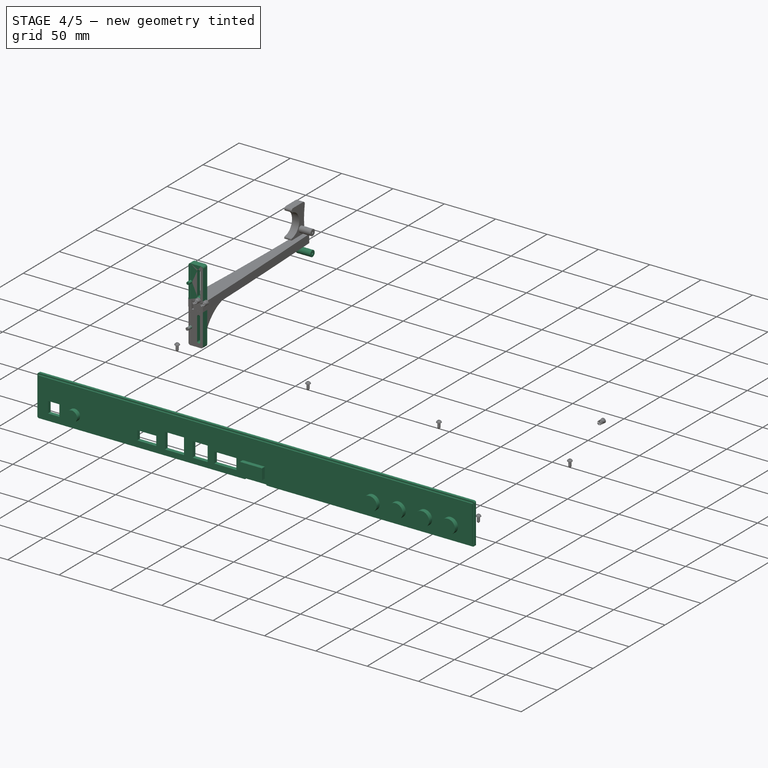
[diagram: stage 4 of 5 — iso view after this stage's code; geometry added in this stage tinted green]
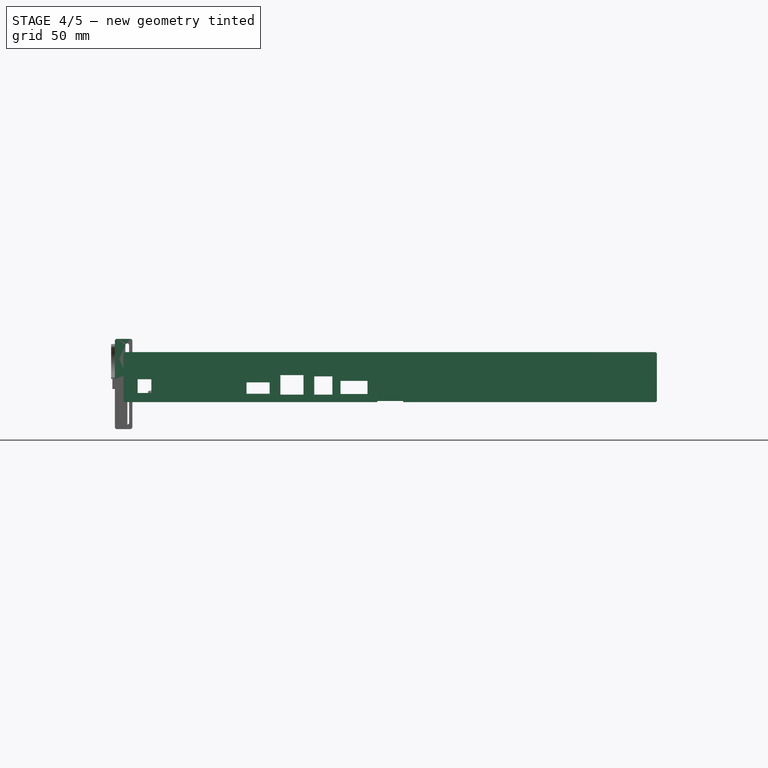
[diagram: stage 4 of 5 — front view after this stage's code; geometry added in this stage tinted green]
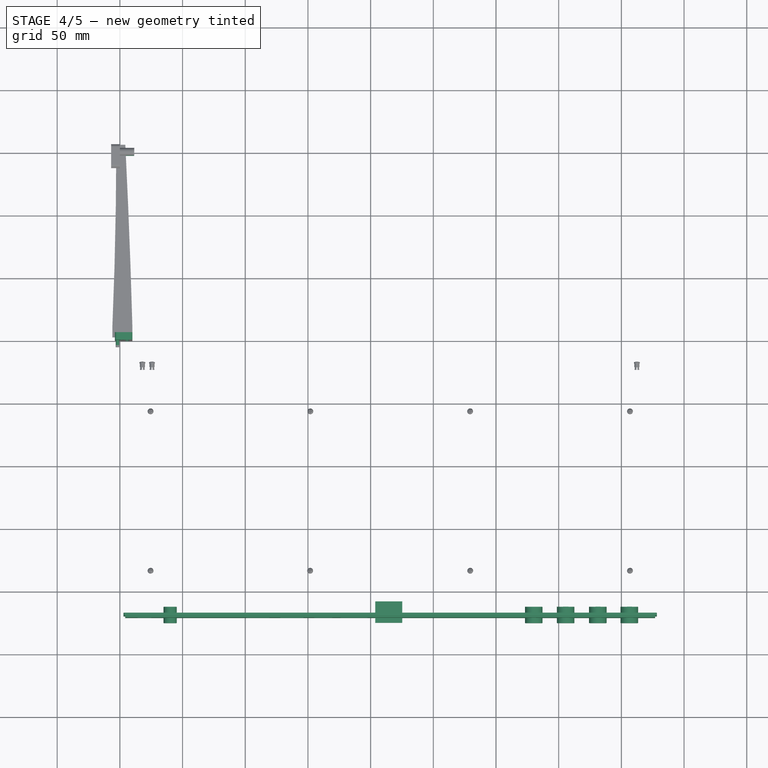
[diagram: stage 4 of 5 — top view after this stage's code; geometry added in this stage tinted green]
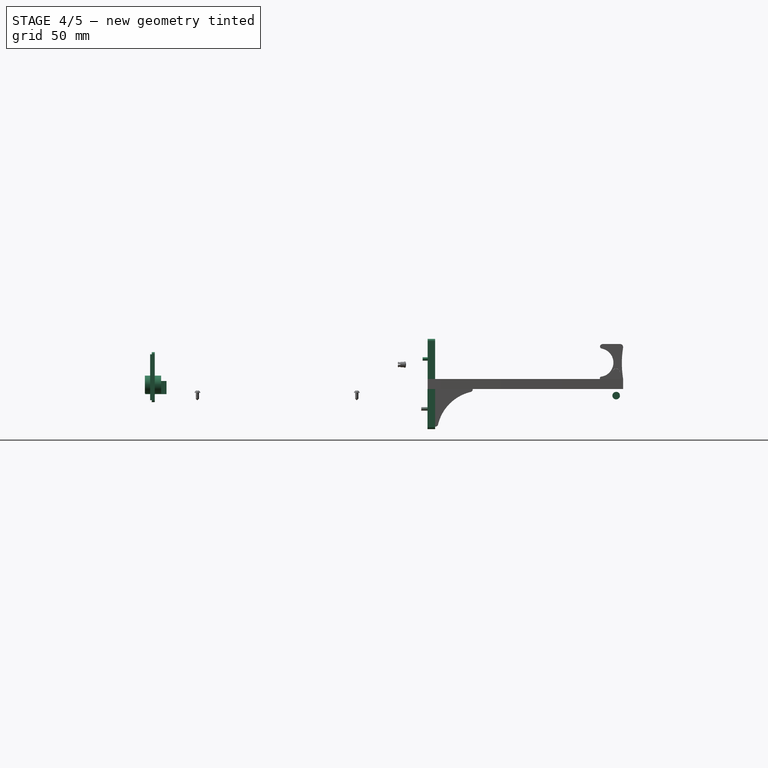
[diagram: stage 4 of 5 — right view after this stage's code; geometry added in this stage tinted green]
FEATURE [Part::Box] Box  label="PIN"
  AttacherType = Attacher::AttachEngine3D
  Height = 11
  Length = 11
  Placement = pos=(14.15,-225.5,-3.228) rot=(0,0,1;0rad)
  Width = 17
FEATURE [Part::Box] Box001  label="instrument"
  AttacherType = Attacher::AttachEngine3D
  Height = 9
  Length = 18.5
  Placement = pos=(101,-223.2,-3.741) rot=(0,0,1;0rad)
  Width = 17
FEATURE [Part::Box] Box002  label="Eth"
  AttacherType = Attacher::AttachEngine3D
  Height = 15.5
  Length = 18.5
  Placement = pos=(128,-223.2,-4.452) rot=(0,0,1;0rad)
  Width = 17
FEATURE [Part::Box] Box003  label="USB"
  AttacherType = Attacher::AttachEngine3D
  Height = 14.5
  Length = 14.5
  Placement = pos=(155,-225.2,-4.446) rot=(0,0,1;0rad)
  Width = 17
FEATURE [Part::Box] Box004  label="JTAG"
  AttacherType = Attacher::AttachEngine3D
  Height = 10.5
  Length = 21.5
  Placement = pos=(176,-225.2,-3.997) rot=(0,0,1;0rad)
  Width = 17
FEATURE [Part::Box] Box005  label="PS"
  AttacherType = Attacher::AttachEngine3D
  Height = 10.5
  Length = 21.5
  Placement = pos=(203.7,-225.2,-4.122) rot=(0,0,1;0rad)
  Width = 17
FEATURE [Part::Cylinder] Cylinder001  label="Button"
  Angle = 360
  AttacherType = Attacher::AttachEngine3D
  FirstAngle = 0
  Height = 13
  Placement = pos=(40.1,-225.5,2.621) rot=(-1,0,0;1.5708rad)
  Radius = 5.3
  SecondAngle = 0
FEATURE [Part::Cylinder] Cylinder002  label="BNC2"
  Angle = 360
  AttacherType = Attacher::AttachEngine3D
  FirstAngle = 0
  Height = 13
  Placement = pos=(355.51,-225.5,3.675) rot=(-1,0,0;1.5708rad)
  Radius = 7
  SecondAngle = 0
FEATURE [Part::Cylinder] Cylinder003  label="BNC"
  Angle = 360
  AttacherType = Attacher::AttachEngine3D
  FirstAngle = 0
  Height = 13
  Placement = pos=(330.1,-225.5,3.275) rot=(-1,0,0;1.5708rad)
  Radius = 7
  SecondAngle = 0
FEATURE [Part::Cylinder] Cylinder004  label="BNC3"
  Angle = 360
  AttacherType = Attacher::AttachEngine3D
  FirstAngle = 0
  Height = 13
  Placement = pos=(381.2,-225.5,3.565) rot=(-1,0,0;1.5708rad)
  Radius = 7
  SecondAngle = 0
FEATURE [Part::Cylinder] Cylinder005  label="BNC4"
  Angle = 360
  AttacherType = Attacher::AttachEngine3D
  FirstAngle = 0
  Height = 13
  Placement = pos=(406.32,-225.5,3.571) rot=(-1,0,0;1.5708rad)
  Radius = 7
  SecondAngle = 0
FEATURE [Part::Feature] Part__Feature270  label="14460-P002"
  Placement = pos=(2.9,-220,-10.49) rot=(1,0,0;1.5708rad)
  shape: bbox 425.5 x 3.658 x 39.88 mm, 25 faces (baked)
FEATURE [Part::Cut] Cut
  Base = -> Part__Feature270
  Tool = -> Box
FEATURE [Part::Cut] Cut001
  Base = -> Cut
  Tool = -> Box001
FEATURE [Part::Cut] Cut002
  Base = -> Cut001
  Tool = -> Box002
FEATURE [Part::Cut] Cut003
  Base = -> Cut002
  Tool = -> Box003
FEATURE [Part::Cut] Cut004
  Base = -> Cut003
  Tool = -> Box004
FEATURE [PartDesign::Body] Body  label="slot"
  Origin = -> Origin119
  Placement = pos=(0,6.008,0) rot=(0,0,1;0rad)
FEATURE [App::DocumentObjectGroup] Configurations
FEATURE [App::DocumentObjectGroup] Constraints
FEATURE [Part::Cylinder] Cylinder  label="Cyl_Guide"
  Angle = 360
  AttacherType = Attacher::AttachEngine3D
  FirstAngle = 0
  Height = 11
  Placement = pos=(-1.897,-5.049,-15.889) rot=(-1,0,0;1.5708rad)
  Radius = 1.4
  SecondAngle = 0
FEATURE [Part::Cylinder] Cylinder021  label="Cylinder"
  Angle = 360
  AttacherType = Attacher::AttachEngine3D
  FirstAngle = 0
  Height = 8
  Placement = pos=(20.93,150.413,-5.317) rot=(0,1,0;1.5708rad)
  Radius = 3
  SecondAngle = 0
FEATURE [PartDesign::CoordinateSystem] LCS_Origin
  AttacherType = Attacher::AttachEngine3D
  MapMode = 2
  Support = -> [X_Axis118]
FEATURE [Sketcher::SketchObject] Sketch
  FullyConstrained = true
  MapMode = 5
  Support = -> [XY_Plane120]
  sketch-geometry (4):
    g0: LineSegment StartX=-2.36 StartY=2.5 StartZ=0 EndX=2.36 EndY=2.5 EndZ=0
    g1: LineSegment StartX=2.36 StartY=2.5 StartZ=0 EndX=2.36 EndY=156 EndZ=0
    g2: LineSegment StartX=2.36 StartY=156 StartZ=0 EndX=-2.36 EndY=156 EndZ=0
    g3: LineSegment StartX=-2.36 StartY=156 StartZ=0 EndX=-2.36 EndY=2.5 EndZ=0
  constraints (12):
    c: Coincident(g0,g1)
    c: Coincident(g1,g2)
    c: Coincident(g2,g3)
    c: Coincident(g3,g0)
    c: Horizontal(g0)
    c: Horizontal(g2)
    c: Vertical(g1)
    c: Vertical(g3)
    c: DistanceX(g2,g2) = 4.72
    c: DistanceY(g0,g-1) = -2.5
    c: DistanceX(g0,g-1) = 2.36
    c: DistanceY(g1,g1) = 153.5
FEATURE [Sketcher::SketchObject] Sketch003
  FullyConstrained = true
  MapMode = 5
  Support = -> [XY_Plane120]
  sketch-geometry (8):
    g0: LineSegment StartX=-1 StartY=0 StartZ=0 EndX=-1 EndY=153 EndZ=0
    g1: ArcOfCircle CenterX=-7.01053 CenterY=152.083 CenterZ=0 NormalX=0 NormalY=0 NormalZ=1 AngleXU=0 Radius=6.08 StartAngle=0.151318 EndAngle=0.699927
    g2: LineSegment StartX=-2.36 StartY=156 StartZ=0 EndX=-2.86 EndY=156 EndZ=0
    g3: ArcOfCircle CenterX=-3459.01 CenterY=157.297 CenterZ=0 NormalX=0 NormalY=0 NormalZ=1 AngleXU=0 Radius=3456.16 StartAngle=6.24055 EndAngle=6.28281
    g4: LineSegment StartX=-4 StartY=0 StartZ=0 EndX=-4 EndY=2.5 EndZ=0
    g5: LineSegment StartX=-4 StartY=2.5 StartZ=0 EndX=-6 EndY=2.5 EndZ=0
    g6: LineSegment StartX=-4 StartY=0 StartZ=0 EndX=-1 EndY=0 EndZ=0
    g7: LineSegment StartX=-6 StartY=10 StartZ=0 EndX=-6 EndY=2.5 EndZ=0
  constraints (27):
    c: Vertical(g0)
    c: Coincident(g1,g0)
    c: Coincident(g2,g1)
    c: Horizontal(g2)
    c: Coincident(g3,g2)
    c: DistanceX(g2,g2) = 0.5
    c: Diameter(g3) = 6912.31
    c: PointOnObject(g6,g-1)
    c: Vertical(g4)
    c: Coincident(g5,g4)
    c: Horizontal(g5)
    c: Coincident(g6,g4)
    c: Coincident(g7,g3)
    c: Coincident(g7,g5)
    c: DistanceX(g6,g6) = 3
    c: Vertical(g7)
    c: DistanceX(g5,g5) = 2
    c: DistanceY(g7,g7) = 7.5
    c: DistanceY(g4,g4) = 2.5
    c: DistanceY(g4,g-1) = 0
    c: DistanceY(g3,g2) = 146
    c: DistanceY(g0,g0) = 153
    c: DistanceX(g0,g-1) = 1
    c: DistanceX(g6,g-1) = 1
    c: DistanceY(g6,g0) = 0
    c: Radius(g1) = 6.08
    c: DistanceX(g1,g0) = 1.36
FEATURE [PartDesign::Pad] Pad
  Direction = (0,0,1)
  Length = 8
  Length2 = 10
  Profile = -> Sketch003
  ReferenceAxis = -> Sketch003 [N_Axis]
  Type = 0
FEATURE [PartDesign::Pad] Pad001
  BaseFeature = -> Pad
  Direction = (0,0,1)
  Length = 5
  Length2 = 10
  Profile = -> Sketch
  ReferenceAxis = -> Sketch [N_Axis]
  Type = 0
FEATURE [Sketcher::SketchObject] Sketch011
  FullyConstrained = true
  MapMode = 5
  Support = -> [XY_Plane120]
  sketch-geometry (6):
    g0: LineSegment StartX=1 StartY=0 StartZ=0 EndX=10 EndY=0 EndZ=0
    g1: LineSegment StartX=4.36 StartY=156 StartZ=0 EndX=2.36 EndY=156 EndZ=0
    g2: LineSegment StartX=1 StartY=153 StartZ=0 EndX=1 EndY=0 EndZ=0
    g3: ArcOfCircle CenterX=7.01053 CenterY=152.083 CenterZ=0 NormalX=0 NormalY=0 NormalZ=1 AngleXU=0 Radius=6.08 StartAngle=2.44167 EndAngle=2.99027
    g4: LineSegment StartX=10 StartY=0 StartZ=0 EndX=10 EndY=10.5 EndZ=0
    g5: ArcOfCircle CenterX=-6386.74 CenterY=-164.597 CenterZ=0 NormalX=0 NormalY=0 NormalZ=1 AngleXU=0 Radius=6399.14 StartAngle=0.027366 EndAngle=0.050121
  constraints (20):
    c: Coincident(g2,g0)
    c: Horizontal(g0)
    c: Horizontal(g1)
    c: Vertical(g2)
    c: PointOnObject(g0,g-1)
    c: Coincident(g1,g3)
    c: Coincident(g2,g3)
    c: DistanceX(g2,g1) = 1.36
    c: DistanceY(g2,g1) = 3
    c: DistanceX(g1,g1) = 2
    c: DistanceX(g-1,g0) = 1
    c: DistanceY(g2,g2) = 153
    c: Radius(g3) = 6.08
    c: Coincident(g4,g0)
    c: DistanceY(g4,g4) = 10.5
    c: Coincident(g5,g4)
    c: Coincident(g5,g1)
    c: Radius(g5) = 6399.14
    c: DistanceX(g0,g0) = 9
    c: DistanceX(g-1,g4) = 10
FEATURE [PartDesign::Pad] Pad003
  BaseFeature = -> Pad001
  Direction = (0,0,1)
  Length = 8
  Length2 = 10
  Profile = -> Sketch011
  ReferenceAxis = -> Sketch011 [N_Axis]
  Type = 0
FEATURE [PartDesign::Body] Body003  label="rail"
  Group = -> [Sketch003,Pad,Sketch,Pad001,Sketch011,Pad003]
  Origin = -> Origin120
  Tip = -> Pad003
FEATURE [Sketcher::SketchObject] Sketch012
  FullyConstrained = true
  MapMode = 5
  Placement = pos=(0,0,0) rot=(1,0,0;1.5708rad)
  Support = -> [XZ_Plane120]
  sketch-geometry (11):
    g0: LineSegment StartX=-4 StartY=0 StartZ=0 EndX=10 EndY=0 EndZ=0
    g1: LineSegment StartX=10 StartY=0 StartZ=0 EndX=10 EndY=-30.2 EndZ=0
    g2: LineSegment StartX=8.2 StartY=-32 StartZ=0 EndX=-2.2 EndY=-32 EndZ=0
    g3: LineSegment StartX=-4 StartY=-30.2 StartZ=0 EndX=-4 EndY=0 EndZ=0
    g4: ArcOfCircle CenterX=8.2 CenterY=-30.2 CenterZ=0 NormalX=0 NormalY=0 NormalZ=1 AngleXU=0 Radius=1.8 StartAngle=4.71239 EndAngle=6.28319
    g5: ArcOfCircle CenterX=-2.2 CenterY=-30.2 CenterZ=0 NormalX=0 NormalY=0 NormalZ=1 AngleXU=0 Radius=1.8 StartAngle=3.14159 EndAngle=4.71239
    g6: ArcOfCircle CenterX=5.9 CenterY=-26.9 CenterZ=0 NormalX=0 NormalY=0 NormalZ=1 AngleXU=0 Radius=1.5 StartAngle=3.14159 EndAngle=6.28319
    g7: ArcOfCircle CenterX=5.9 CenterY=-4.9 CenterZ=0 NormalX=0 NormalY=0 NormalZ=1 AngleXU=0 Radius=1.5 StartAngle=2e-16 EndAngle=3.14159
    g8: LineSegment StartX=7.4 StartY=-26.9 StartZ=0 EndX=7.4 EndY=-4.9 EndZ=0
    g9: LineSegment StartX=4.4 StartY=-4.9 StartZ=0 EndX=4.4 EndY=-26.9 EndZ=0
    g10: Circle CenterX=-1.9 CenterY=-15.9 CenterZ=0 NormalX=0 NormalY=0 NormalZ=1 AngleXU=0 Radius=1.375
  constraints (29):
    c: Coincident(g0,g1)
    c: Coincident(g3,g0)
    c: Horizontal(g0)
    c: Horizontal(g2)
    c: Vertical(g1)
    c: Vertical(g3)
    c: PointOnObject(g0,g-1)
    c: DistanceX(g0,g0) = 14
    c: DistanceX(g-1,g0) = 10
    c: Tangent(g2,g4) = 1.5708
    c: Tangent(g1,g4) = 1.5708
    c: Tangent(g3,g5) = 1.5708
    c: Tangent(g2,g5) = 1.5708
    c: DistanceY(g2,g1) = 1.8
    c: DistanceY(g2,g3) = 1.8
    c: Tangent(g6,g8) = -1.5708
    c: Tangent(g8,g7) = -1.5708
    c: Tangent(g7,g9) = -1.5708
    c: Tangent(g9,g6) = -1.5708
    c: Equal(g6,g7)
    c: Vertical(g8)
    c: DistanceX(g7,g7) = 3
    c: DistanceY(g6,g7) = 22
    c: DistanceY(g1,g1) = 30.2
    c: DistanceY(g7,g-1) = 4.9
    c: Diameter(g10) = 2.75
    c: DistanceY(g10,g7) = 11
    c: DistanceX(g0,g10) = 2.1
    c: DistanceX(g7,g0) = 4.1
FEATURE [PartDesign::Pad] Pad004
  Direction = (0,-1,-2e-16)
  Length = 6
  Length2 = 10
  Placement = pos=(0,0,0) rot=(1,0,0;1.5708rad)
  Profile = -> Sketch012
  ReferenceAxis = -> Sketch012 [N_Axis]
  Type = 0
FEATURE [Sketcher::SketchObject] Sketch013
  FullyConstrained = false
  MapMode = 5
  Placement = pos=(0,0,0) rot=(0.57735,0.57735,0.57735;2.0944rad)
  Support = -> [YZ_Plane121]
  sketch-geometry (5):
    g0: LineSegment StartX=6.01175 StartY=0 StartZ=0 EndX=36.0118 EndY=0 EndZ=0
    g1: LineSegment StartX=36.0118 StartY=0 StartZ=0 EndX=36.0118 EndY=-2 EndZ=0
    g2: LineSegment StartX=8.01175 StartY=-30 StartZ=0 EndX=6.01175 EndY=-30 EndZ=0
    g3: LineSegment StartX=6.01175 StartY=-30 StartZ=0 EndX=6.01175 EndY=0 EndZ=0
    g4: ArcOfCircle CenterX=42.4201 CenterY=-36.4083 CenterZ=0 NormalX=0 NormalY=0 NormalZ=1 AngleXU=0 Radius=35 StartAngle=1.75493 EndAngle=2.95746
  constraints (14):
    c: Coincident(g0,g1)
    c: Coincident(g2,g3)
    c: Coincident(g3,g0)
    c: Horizontal(g0)
    c: Horizontal(g2)
    c: Vertical(g1)
    c: Vertical(g3)
    c: PointOnObject(g0,g-1)
    c: DistanceX(g0,g0) = 30
    c: Coincident(g1,g4)
    c: Coincident(g2,g4)
    c: DistanceY(g1,g1) = 2
    c: DistanceX(g2,g2) = 2
    c: Radius(g4) = 35
FEATURE [PartDesign::Pad] Pad005
  Direction = (1,-2e-16,3e-16)
  Length = 6
  Length2 = 10
  Placement = pos=(0,0,0) rot=(0.57735,0.57735,0.57735;2.0944rad)
  Profile = -> Sketch013
  ReferenceAxis = -> Sketch013 [N_Axis]
  Type = 0
FEATURE [PartDesign::Fillet] Fillet
  Base = -> Pad005 [Edge5]
  BaseFeature = -> Pad005
  Placement = pos=(0,0,0) rot=(0.57735,0.57735,0.57735;2.0944rad)
  Radius = 2
  SupportTransform = false
  UseAllEdges = false
FEATURE [PartDesign::Fillet] Fillet001
  Base = -> Fillet [Edge17]
  BaseFeature = -> Fillet
  Placement = pos=(0,0,0) rot=(0.57735,0.57735,0.57735;2.0944rad)
  Radius = 2
  SupportTransform = false
  UseAllEdges = false
FEATURE [PartDesign::Body] Body004  label="sideforce"
  Group = -> [Sketch013,Pad005,Fillet,Fillet001]
  Origin = -> Origin121
  Placement = pos=(-4.016,0.057,0) rot=(0,0,1;0rad)
  Tip = -> Fillet001
FEATURE [Sketcher::SketchObject] Sketch019
  FullyConstrained = false
  MapMode = 5
  Placement = pos=(0,0,0) rot=(-0.57735,0.57735,0.57735;4.18879rad)
  Support = -> [YZ_Plane122]
  sketch-geometry (10):
    g0: LineSegment StartX=-156.003 StartY=8.00103 StartZ=0 EndX=-137.423 EndY=8.00103 EndZ=0
    g1: LineSegment StartX=-137.423 StartY=8.00103 StartZ=0 EndX=-137.423 EndY=8.88796 EndZ=0
    g2: LineSegment StartX=-139.803 StartY=35.8702 StartZ=0 EndX=-153.603 EndY=35.8702 EndZ=0
    g3: ArcOfCircle CenterX=-136.888 CenterY=21.0784 CenterZ=0 NormalX=0 NormalY=0 NormalZ=1 AngleXU=0 Radius=11.34 StartAngle=1.74764 EndAngle=4.59202
    g4: ArcOfCircle CenterX=-153.603 CenterY=33.4702 CenterZ=0 NormalX=0 NormalY=0 NormalZ=1 AngleXU=0 Radius=2.4 StartAngle=1.5708 EndAngle=3.27078
    g5: ArcOfCircle CenterX=-139.803 CenterY=33.4702 CenterZ=0 NormalX=0 NormalY=0 NormalZ=1 AngleXU=0 Radius=2.4 StartAngle=0.566257 EndAngle=1.5708
    g6: ArcOfCircle CenterX=-230.704 CenterY=20.6405 CenterZ=0 NormalX=0 NormalY=0 NormalZ=1 AngleXU=0 Radius=75.763 StartAngle=6.11557 EndAngle=6.44921
    g7: Circle CenterX=-150.473 CenterY=13.3301 CenterZ=0 NormalX=0 NormalY=0 NormalZ=1 AngleXU=0 Radius=3
    g8: ArcOfCircle CenterX=-138.362 CenterY=8.88796 CenterZ=0 NormalX=0 NormalY=0 NormalZ=1 AngleXU=0 Radius=0.939281 StartAngle=0 EndAngle=1.45042
    g9: ArcOfCircle CenterX=-139.174 CenterY=33.8702 CenterZ=0 NormalX=0 NormalY=0 NormalZ=1 AngleXU=0 Radius=1.65446 StartAngle=4.88923 EndAngle=6.84944
  constraints (20):
    c: Coincident(g0,g1)
    c: Horizontal(g0)
    c: Horizontal(g2)
    c: Vertical(g1)
    c: Tangent(g2,g4) = -1.5708
    c: Tangent(g2,g5) = -1.5708
    c: Radius(g4) = 2.4
    c: Radius(g5) = 2.4
    c: DistanceX(g2,g2) = 13.8
    c: DistanceY(g0,g4) = 25.16
    c: DistanceX(g4,g2) = 2.38
    c: Radius(g3) = 11.34
    c: Coincident(g6,g0)
    c: Coincident(g6,g4)
    c: DistanceX(g0,g0) = 18.58
    c: Diameter(g7) = 6
    c: Tangent(g3,g8) = 1.5708
    c: Tangent(g1,g8) = -1.5708
    c: Tangent(g3,g9) = 1.5708
    c: Tangent(g5,g9) = -1.5708
FEATURE [PartDesign::Pad] Pad006
  Direction = (-1,2e-16,-3e-16)
  Length = 7
  Length2 = 10
  Placement = pos=(0,0,0) rot=(0.57735,0.57735,0.57735;2.0944rad)
  Profile = -> Sketch019
  ReferenceAxis = -> Sketch019 [N_Axis]
  Type = 0
FEATURE [PartDesign::Body] Body007  label="finger"
  Group = -> [Sketch019,Pad006]
  Origin = -> Origin122
  Placement = pos=(-2.654,-0.011,8.013) rot=(0,1,0;3.14159rad)
  Tip = -> Pad006
FEATURE [Sketcher::SketchObject] Sketch020
  FullyConstrained = true
  MapMode = 5
  Placement = pos=(0,0,0) rot=(1,0,0;1.5708rad)
  Support = -> [XZ_Plane124]
  sketch-geometry (4):
    g0: ArcOfCircle CenterX=5.9 CenterY=35 CenterZ=0 NormalX=0 NormalY=0 NormalZ=1 AngleXU=0 Radius=3 StartAngle=4e-16 EndAngle=3.14159
    g1: ArcOfCircle CenterX=5.9 CenterY=13 CenterZ=0 NormalX=0 NormalY=0 NormalZ=1 AngleXU=0 Radius=3 StartAngle=3.14159 EndAngle=6.28319
    g2: LineSegment StartX=2.9 StartY=35 StartZ=0 EndX=2.9 EndY=13 EndZ=0
    g3: LineSegment StartX=8.9 StartY=13 StartZ=0 EndX=8.9 EndY=35 EndZ=0
  constraints (10):
    c: Tangent(g0,g2) = -1.5708
    c: Tangent(g2,g1) = -1.5708
    c: Tangent(g1,g3) = -1.5708
    c: Tangent(g3,g0) = -1.5708
    c: Equal(g0,g1)
    c: Vertical(g2)
    c: DistanceY(g1,g0) = 22
    c: DistanceX(g1,g1) = 6
    c: DistanceY(g-1,g1) = 13
    c: DistanceX(g-1,g1) = 5.9
FEATURE [PartDesign::Pad] Pad007
  Direction = (0,-1,-2e-16)
  Length = 2
  Length2 = 10
  Placement = pos=(0,0,0) rot=(1,0,0;1.5708rad)
  Profile = -> Sketch020
  ReferenceAxis = -> Sketch020 [N_Axis]
  Type = 0
FEATURE [PartDesign::Body] Body009  label="slotscrew"
  Group = -> [Sketch020,Pad007]
  Origin = -> Origin123
  Placement = pos=(-0.028,0.002,-39.747) rot=(0,0,1;0rad)
  Tip = -> Pad007
FEATURE [Part::Cut] Cut044  label="Base"
  Base = -> Pad004
  Placement = pos=(0,5.988,0) rot=(0,0,1;0rad)
  Tool = -> Body009
FEATURE [Part::FeaturePython] Tube  # WARN: FeaturePython — macro-defined, semantics opaque (R4)
  AttacherType = Attacher::AttachEngine3D
  Height = 6
  InnerRadius = 1
  OuterRadius = 3
  Placement = pos=(28.933,150.437,-5.307) rot=(0,1,0;1.5708rad)
FEATURE [Part::MultiFuse] Fusion
  Placement = pos=(-23.546,0,0.055) rot=(0,0,1;0rad)
  Shapes = -> [Tube,Cylinder021]
FEATURE [Part::Cylinder] Cylinder023
  Angle = 360
  AttacherType = Attacher::AttachEngine3D
  FirstAngle = 0
  Height = 10
  Placement = pos=(-1.897,6.015,23.971) rot=(0.57735,-0.57735,0.57735;2.0944rad)
  Radius = 1.38
  SecondAngle = 0
FEATURE [PartDesign::Fillet] Fillet002
  Base = -> Pad012 [Edge5]
  BaseFeature = -> Pad012
  Placement = pos=(0,0,0) rot=(0.57735,0.57735,0.57735;2.0944rad)
  Radius = 2
  SupportTransform = false
  UseAllEdges = false
FEATURE [PartDesign::Fillet] Fillet003
  Base = -> Fillet002 [Edge17]
  BaseFeature = -> Fillet002
  Placement = pos=(0,0,0) rot=(0.57735,0.57735,0.57735;2.0944rad)
  Radius = 2
  SupportTransform = false
  UseAllEdges = false
FEATURE [PartDesign::Body] Body013  label="slotscrew001"
  Group = -> [Sketch027,Pad014]
  Origin = -> Origin128
  Placement = pos=(-0.013,-4.05,-39.977) rot=(0,0,1;0rad)
  Tip = -> Pad014
FEATURE [Part::Cut] Cut045  label="Base001"
  Base = -> Pad011
  Placement = pos=(0,0.008,7.997) rot=(1,0,0;3.14159rad)
  Tool = -> Body013
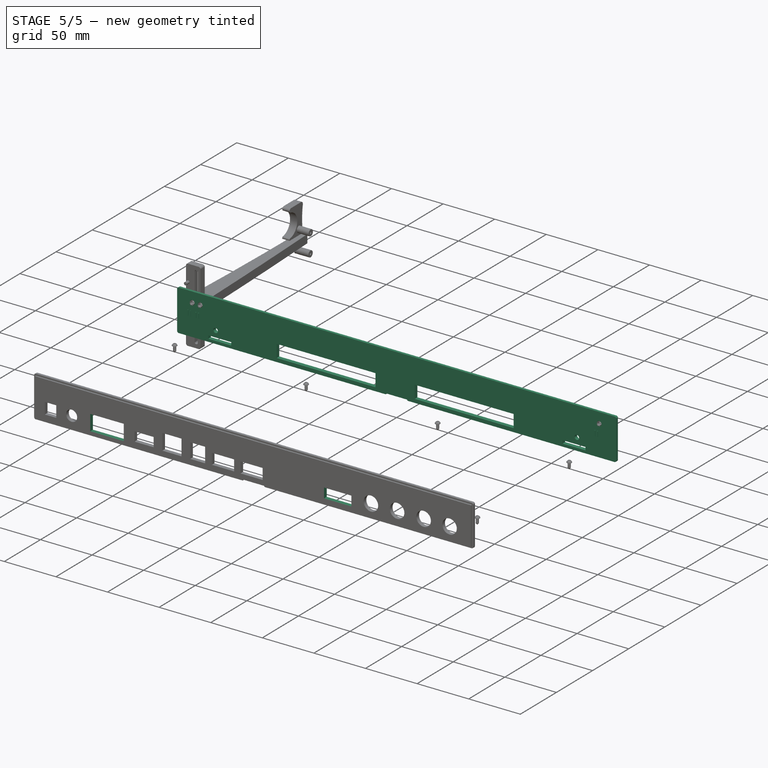
[diagram: stage 5 of 5 — iso view after this stage's code; geometry added in this stage tinted green]
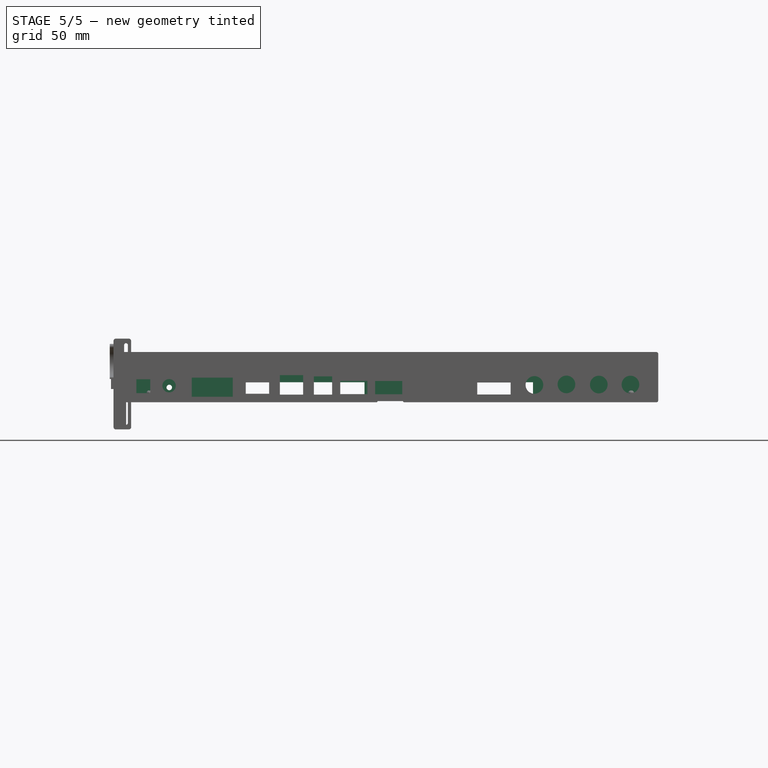
[diagram: stage 5 of 5 — front view after this stage's code; geometry added in this stage tinted green]
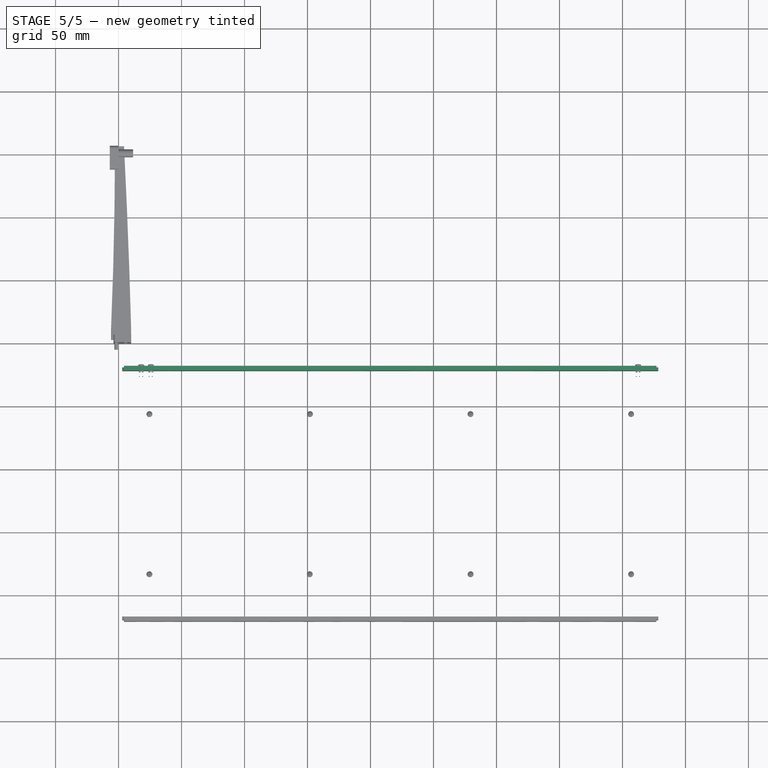
[diagram: stage 5 of 5 — top view after this stage's code; geometry added in this stage tinted green]
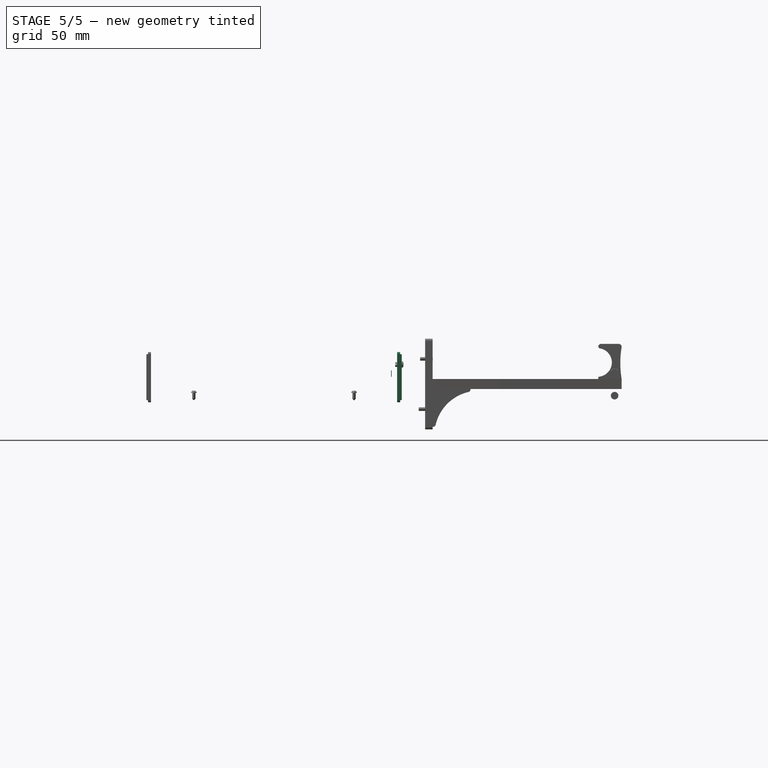
[diagram: stage 5 of 5 — right view after this stage's code; geometry added in this stage tinted green]
FEATURE [Part::Feature] Part__Feature  label="14460-BR"
  Placement = pos=(207.891,-9.67041,65.3669) rot=(1,0,0;3.14159rad)
  shape: bbox 9.271 x 43.22 x 36.15 mm, 35 faces (baked)
FEATURE [Part::Feature] Part__Feature001  label="14460-BR001"
  Placement = pos=(-222.385,-9.67041,65.3669) rot=(0,1,0;3.14159rad)
  shape: bbox 9.271 x 43.22 x 36.15 mm, 35 faces (baked)
FEATURE [Part::Feature] Part__Feature004  label="14460-BR002"
  Placement = pos=(-222.385,-9.67041,-65.3669) rot=(0,0,1;3.14159rad)
  shape: bbox 9.271 x 43.22 x 36.15 mm, 35 faces (baked)
FEATURE [Part::Feature] Part__Feature005  label="14460-BR003"
  Placement = pos=(207.891,-9.67041,-65.3669) rot=(0,0,1;0rad)
  shape: bbox 9.271 x 43.22 x 36.15 mm, 35 faces (baked)
FEATURE [Part::Feature] Part__Feature006  label="14460-P001"
  Placement = pos=(205.478,-29.9269,-100.076) rot=(0,1,0;3.14159rad)
  shape: bbox 425.5 x 39.88 x 3.658 mm, 25 faces (baked)
FEATURE [Part::Feature] Part__Feature007  label="14460-T"
  Placement = pos=(-7.24669,12.2371,-4.2e-15) rot=(0,0,1;0rad)
  shape: bbox 431.8 x 23.27 x 203.2 mm, 428 faces (baked)
FEATURE [Part::Feature] Part__Feature002  label="14460-B"
  Placement = pos=(-7.24669,-31.4509,-1.743e-12) rot=(1,0,0;3.14159rad)
  shape: bbox 431.8 x 23.27 x 203.2 mm, 412 faces (baked)
FEATURE [App::Part] PRM_14460__DESKTOP_  label="PRM-14460 (DESKTOP)"
  Group = -> [Part__Feature,Part__Feature001,Part__Feature002,Part__Feature004,Part__Feature005,Part__Feature006,Part__Feature007]
  Origin = -> Origin
  Placement = pos=(222.9,-119.9,19.4) rot=(-1,0,0;4.71239rad)
FEATURE [Part::Feature] Part__Feature271  label="14460-P003"
  Placement = pos=(428.4,-19.85,-10.5) rot=(0,0.707107,0.707107;3.14159rad)
  shape: bbox 425.5 x 3.658 x 39.88 mm, 25 faces (baked)
FEATURE [PartDesign::CoordinateSystem] Local_CS_7632
  AttacherType = Attacher::AttachEngine3D
  MapMode = 2
  Support = -> [X_Axis107]
FEATURE [Part::Feature] Pcb_7632
  shape: bbox 406.4 x 193.5 x 1.6 mm, 2484 faces (baked)
FEATURE [Sketcher::SketchObject] PCB_Sketch_7632
  FullyConstrained = false
  sketch-geometry (27):
    g0: LineSegment StartX=12.573 StartY=-216.5 StartZ=0 EndX=418.973 EndY=-216.5 EndZ=0
    g1: LineSegment StartX=418.973 StartY=-23 StartZ=0 EndX=12.573 EndY=-23 EndZ=0
    g2: LineSegment StartX=12.573 StartY=-23 StartZ=0 EndX=12.573 EndY=-216.5 EndZ=0
    g3: LineSegment StartX=418.973 StartY=-216.5 StartZ=0 EndX=418.973 EndY=-23 EndZ=0
    g4: Circle CenterX=62.673 CenterY=-70.8943 CenterZ=0 NormalX=0 NormalY=0 NormalZ=1 AngleXU=0 Radius=1.1
    g5: Circle CenterX=62.673 CenterY=-83.82 CenterZ=0 NormalX=0 NormalY=0 NormalZ=1 AngleXU=0 Radius=1.1
    g6: Circle CenterX=327.189 CenterY=-56.427 CenterZ=0 NormalX=0 NormalY=0 NormalZ=1 AngleXU=0 Radius=5.334
    g7: Circle CenterX=151.946 CenterY=-56.2 CenterZ=0 NormalX=0 NormalY=0 NormalZ=1 AngleXU=0 Radius=1.1
    g8: Circle CenterX=86.29 CenterY=-190.84 CenterZ=0 NormalX=0 NormalY=0 NormalZ=1 AngleXU=0 Radius=1.5
    g9: Circle CenterX=279.387 CenterY=-56.2 CenterZ=0 NormalX=0 NormalY=0 NormalZ=1 AngleXU=0 Radius=1.4
    g10: Circle CenterX=279.389 CenterY=-183.634 CenterZ=0 NormalX=0 NormalY=0 NormalZ=1 AngleXU=0 Radius=1.4
    g11: Circle CenterX=130.453 CenterY=-87.9291 CenterZ=0 NormalX=0 NormalY=0 NormalZ=1 AngleXU=0 Radius=1.5
    g12: Circle CenterX=104.17 CenterY=-183.423 CenterZ=0 NormalX=0 NormalY=0 NormalZ=1 AngleXU=0 Radius=5.334
    g13: Circle CenterX=104.173 CenterY=-56.4327 CenterZ=0 NormalX=0 NormalY=0 NormalZ=1 AngleXU=0 Radius=5.334
    g14: Circle CenterX=33.5788 CenterY=-65.3796 CenterZ=0 NormalX=0 NormalY=0 NormalZ=1 AngleXU=0 Radius=1.1
    g15: Circle CenterX=406.822 CenterY=-56.2 CenterZ=0 NormalX=0 NormalY=0 NormalZ=1 AngleXU=0 Radius=1.4
    g16: Circle CenterX=16.5771 CenterY=-65.405 CenterZ=0 NormalX=0 NormalY=0 NormalZ=1 AngleXU=0 Radius=1.1
    g17: Circle CenterX=24.5439 CenterY=-56.2 CenterZ=0 NormalX=0 NormalY=0 NormalZ=1 AngleXU=0 Radius=1.4
    g18: Circle CenterX=406.77 CenterY=-183.634 CenterZ=0 NormalX=0 NormalY=0 NormalZ=1 AngleXU=0 Radius=1.4
    g19: Circle CenterX=88.943 CenterY=-195.363 CenterZ=0 NormalX=0 NormalY=0 NormalZ=1 AngleXU=0 Radius=1.5
    g20: Circle CenterX=61.323 CenterY=-195.363 CenterZ=0 NormalX=0 NormalY=0 NormalZ=1 AngleXU=0 Radius=1.5
    g21: Circle CenterX=151.937 CenterY=-183.634 CenterZ=0 NormalX=0 NormalY=0 NormalZ=1 AngleXU=0 Radius=1.4
    g22: Circle CenterX=24.4993 CenterY=-183.634 CenterZ=0 NormalX=0 NormalY=0 NormalZ=1 AngleXU=0 Radius=1.4
    g23: Circle CenterX=33.5951 CenterY=-85.3948 CenterZ=0 NormalX=0 NormalY=0 NormalZ=1 AngleXU=0 Radius=1.1
    g24: Circle CenterX=16.5771 CenterY=-85.3948 CenterZ=0 NormalX=0 NormalY=0 NormalZ=1 AngleXU=0 Radius=1.1
    g25: Circle CenterX=327.161 CenterY=-183.423 CenterZ=0 NormalX=0 NormalY=0 NormalZ=1 AngleXU=0 Radius=5.334
    g26: Circle CenterX=61.93 CenterY=-190.81 CenterZ=0 NormalX=0 NormalY=0 NormalZ=1 AngleXU=0 Radius=1.5
  constraints (4):
    c: Coincident(g0,g2)
    c: Coincident(g1,g2)
    c: Coincident(g0,g3)
    c: Coincident(g1,g3)
FEATURE [App::Part] Board_Geoms_7632  label="Board_Geoms_7634"
  Group = -> [Pcb_7632,PCB_Sketch_7632]
  Origin = -> Origin071
FEATURE [Part::Feature] Shape040  label="communication.kicad_sch_R_0603_1608Metric_840f067454a3"
  Placement = pos=(159.043,-118.359,0) rot=(0,0,1;1.5708rad)
  shape: bbox 0.8 x 1.6 x 0.45 mm, 26 faces (baked)
FEATURE [Part::Feature] Part__Feature363  label="SBH11-PBPC-D05-RA-BK011"
  shape: bbox 20.19 x 9.093 x 9.093 mm, 140 faces (baked)
FEATURE [Part::Feature] Part__Feature364  label="SBH11-PBPC-D05-RA-BK012"
  shape: bbox 0.635 x 6.947 x 10.05 mm, 18 faces (baked)
FEATURE [Part::Feature] Part__Feature365  label="SBH11-PBPC-D05-RA-BK013"
  shape: bbox 0.635 x 9.487 x 12.59 mm, 18 faces (baked)
FEATURE [Part::Feature] Part__Feature366  label="SBH11-PBPC-D05-RA-BK014"
  shape: bbox 0.635 x 6.947 x 10.05 mm, 18 faces (baked)
FEATURE [Part::Feature] Part__Feature367  label="SBH11-PBPC-D05-RA-BK015"
  shape: bbox 0.635 x 6.947 x 10.05 mm, 18 faces (baked)
FEATURE [Part::Feature] Part__Feature368  label="SBH11-PBPC-D05-RA-BK016"
  shape: bbox 0.635 x 6.947 x 10.05 mm, 18 faces (baked)
FEATURE [Part::Feature] Part__Feature369  label="SBH11-PBPC-D05-RA-BK017"
  shape: bbox 0.635 x 6.947 x 10.05 mm, 18 faces (baked)
FEATURE [Part::Feature] Part__Feature370  label="SBH11-PBPC-D05-RA-BK018"
  shape: bbox 0.635 x 9.487 x 12.59 mm, 18 faces (baked)
FEATURE [Part::Feature] Part__Feature688  label="SBH11-PBPC-D05-RA-BK019"
  shape: bbox 0.635 x 9.487 x 12.59 mm, 18 faces (baked)
FEATURE [Part::Feature] Part__Feature689  label="SBH11-PBPC-D05-RA-BK020"
  shape: bbox 0.635 x 9.487 x 12.59 mm, 18 faces (baked)
FEATURE [Part::Feature] Part__Feature690  label="SBH11-PBPC-D05-RA-BK021"
  shape: bbox 0.635 x 9.487 x 12.59 mm, 18 faces (baked)
FEATURE [App::Part] SBH11_PBPC_D05_RA_BK001  label="_SBH11-PBPC-D05-RA-BK011_5d4f40bfedfb"
  Group = -> [Part__Feature363,Part__Feature364,Part__Feature365,Part__Feature366,Part__Feature367,Part__Feature368,Part__Feature369,Part__Feature370,Part__Feature688,Part__Feature689,Part__Feature690]
  Origin = -> Origin110
  Placement = pos=(186.73,-209.497,0) rot=(0,0.707107,0.707107;3.14159rad)
FEATURE [Part::Feature] Shape041  label="OtherRessource.kicad_sch_R_Axial_Power_L380mm_W90mm_P4572mm_a5a2a2530d49"
  Placement = pos=(51.58,-62.12,0) rot=(0,0,1;0rad)
  shape: bbox 46.78 x 9 x 12 mm, 14 faces (baked)
FEATURE [Part::Feature] Shape042  label="communication.kicad_sch_SOT_23W_ef3e644056f1"
  Placement = pos=(161.818,-152.183,0) rot=(0,0,1;0rad)
  shape: bbox 2.9 x 2.98 x 1 mm, 79 faces (baked)
FEATURE [Part::Feature] Shape043  label="Relay_driver.kicad_sch_DIP-16_W7.62mm_d3aa981aa059"
  Placement = pos=(355.869,-66.4081,4) rot=(0,0,1;3.14159rad)
  shape: bbox 7.874 x 19.18 x 6.98 mm, 284 faces (baked)
FEATURE [Part::Feature] Shape044  label="Relay_driver.kicad_sch_2-1571550-4_d3aa981aa059[2]"
  Placement = pos=(352.019,-57.5081,4.25) rot=(0,0,1;1.5708rad)
  shape: bbox 10.06 x 20.22 x 7.366 mm, 224 faces (baked)
FEATURE [Part::Feature] Shape045  label="OtherRessource.kicad_sch_R_Axial_DIN0207_L63mm_D25mm_P1016mm_Horizontal_9212f65964ca"
  Placement = pos=(374.142,-27.4341,0) rot=(0,0,-1;1.5708rad)
  shape: bbox 2.706 x 10.96 x 5.603 mm, 17 faces (baked)
FEATURE [Part::Feature] Shape046  label="Rbank2.kicad_sch_Relay_DPDT_FRT5_79b92c767521"
  Placement = pos=(230.378,-95.6449,4.5) rot=(0,0,1;3.14159rad)
  shape: bbox 9.042 x 14 x 8.133 mm, 91 faces (baked)
FEATURE [Part::Feature] Part__Feature691  label="SCSL (DS1002-01 CONNFLY)"
  shape: bbox 12.7 x 2.54 x 3 mm, 61 faces (baked)
FEATURE [Part::Feature] Part__Feature692  label="SCSL (DS1002-01 CONNFLY)001"
  shape: bbox 1.8 x 1.8 x 7.4 mm, 10 faces (baked)
FEATURE [Part::Feature] Part__Feature693  label="SCSL (DS1002-01 CONNFLY)002"
  shape: bbox 1.8 x 1.8 x 7.4 mm, 10 faces (baked)
FEATURE [Part::Feature] Part__Feature694  label="SCSL (DS1002-01 CONNFLY)003"
  shape: bbox 1.8 x 1.8 x 7.4 mm, 10 faces (baked)
FEATURE [Part::Feature] Part__Feature695  label="SCSL (DS1002-01 CONNFLY)004"
  shape: bbox 1.8 x 1.8 x 7.4 mm, 10 faces (baked)
FEATURE [Part::Feature] Part__Feature696  label="SCSL (DS1002-01 CONNFLY)005"
  shape: bbox 1.8 x 1.8 x 7.4 mm, 10 faces (baked)
FEATURE [Part::Feature] Part__Feature697  label="SCSL (DS1002-01 CONNFLY)006"
  shape: bbox 1 x 1 x 2.04 mm, 27 faces (baked)
FEATURE [Part::Feature] Part__Feature698  label="SCSL (DS1002-01 CONNFLY)007"
  shape: bbox 1 x 1 x 2.04 mm, 27 faces (baked)
FEATURE [Part::Feature] Part__Feature699  label="SCSL (DS1002-01 CONNFLY)008"
  shape: bbox 1 x 1 x 2.04 mm, 27 faces (baked)
FEATURE [Part::Feature] Part__Feature700  label="SCSL (DS1002-01 CONNFLY)009"
  shape: bbox 1 x 1 x 2.04 mm, 27 faces (baked)
FEATURE [Part::Feature] Part__Feature701  label="SCSL (DS1002-01 CONNFLY)010"
  shape: bbox 1 x 1 x 2.04 mm, 27 faces (baked)
FEATURE [App::Part] SCSL__DS1002_01_CONNFLY_  label="Rbank2.kicad_sch_SCSL (DS1002-01 CONNFLY)011_79b92c767521[2]"
  Group = -> [Part__Feature691,Part__Feature692,Part__Feature693,Part__Feature694,Part__Feature695,Part__Feature696,Part__Feature697,Part__Feature698,Part__Feature699,Part__Feature700,Part__Feature701]
  Origin = -> Origin111
  Placement = pos=(230.378,-95.6449,0) rot=(0,0,1;1.5708rad)
FEATURE [App::Link] Rbank2_kicad_sch_SCSL__DS1002_01_CONNFLY_011_79b92c767521_2__ln_  label="Rbank2.kicad_sch_sch_SCSL (DS1002-01 CONNFLY)011_79b92c767521[3]"
  LinkPlacement = pos=(222.878,-95.6449,0) rot=(0,0,1;1.5708rad)
  LinkedObject = -> SCSL__DS1002_01_CONNFLY_
  Placement = pos=(222.878,-95.6449,0) rot=(0,0,1;1.5708rad)
FEATURE [App::Link] Rbank2_kicad_sch_Relay_DPDT_FRT5_79b92c767521_ln_  label="Rbank3.kicad_sch_sch_Relay_DPDT_FRT5_1cd7c8659652"
  LinkPlacement = pos=(280.693,-173.65,4.5) rot=(0,0,1;3.14159rad)
  LinkedObject = -> Shape046
  Placement = pos=(280.693,-173.65,4.5) rot=(0,0,1;3.14159rad)
FEATURE [App::Link] Rbank2_kicad_sch_SCSL__DS1002_01_CONNFLY_011_79b92c767521_2__ln_001  label="Rbank3.kicad_sch_sch_SCSL (DS1002-01 CONNFLY)011_1cd7c8659652[2]"
  LinkPlacement = pos=(280.693,-173.65,0) rot=(0,0,1;1.5708rad)
  LinkedObject = -> SCSL__DS1002_01_CONNFLY_
  Placement = pos=(280.693,-173.65,0) rot=(0,0,1;1.5708rad)
FEATURE [App::Link] Rbank2_kicad_sch_SCSL__DS1002_01_CONNFLY_011_79b92c767521_2__ln_002  label="Rbank3.kicad_sch_sch_SCSL (DS1002-01 CONNFLY)011_1cd7c8659652[3]"
  LinkPlacement = pos=(273.193,-173.65,0) rot=(0,0,1;1.5708rad)
  LinkedObject = -> SCSL__DS1002_01_CONNFLY_
  Placement = pos=(273.193,-173.65,0) rot=(0,0,1;1.5708rad)
FEATURE [Part::Feature] Shape047  label="i2cdevice.kicad_sch_PinSocket_1x06_P254mm_Vertical_1892ad030601"
  Placement = pos=(50.673,-71.2491,0) rot=(0,0,1;0rad)
  shape: bbox 2.54 x 15.24 x 10.1 mm, 196 faces (baked)
FEATURE [Part::Feature] Part__Feature702  label="Board001"
  shape: bbox 18 x 14 x 1.5 mm, 23 faces (baked)
FEATURE [Part::Feature] Part__Feature703  label="0805001"
  Placement = pos=(2.54,7.62,1.5) rot=(0,0,-1;1.5708rad)
  shape: bbox 1.25 x 2.05 x 0.5 mm, 14 faces (baked)
FEATURE [Part::Feature] Part__Feature704  label="Ferrite001"
  Placement = pos=(0,0,0) rot=(0,0,1;1.5708rad)
  shape: bbox 1 x 1.25 x 1 mm, 6 faces (baked)
FEATURE [Part::Feature] Part__Feature705  label="Contact002"
  Placement = pos=(0.5,1.2e-14,2e-15) rot=(0,0,1;1.5708rad)
  shape: bbox 0.5 x 1.25 x 1 mm, 6 faces (baked)
FEATURE [Part::Feature] Part__Feature706  label="Contact003"
  Placement = pos=(-0.5,0,0) rot=(0.707107,0.707107,0;3.14159rad)
  shape: bbox 0.5 x 1.25 x 1 mm, 6 faces (baked)
FEATURE [App::Part] _805__1_001  label="0805 (1)001"
  Group = -> [Part__Feature704,Part__Feature705,Part__Feature706]
  Origin = -> Origin114
  Placement = pos=(5.08,7.62,1.5) rot=(0,0,-1;1.5708rad)
FEATURE [Part::Feature] Part__Feature707  label="0805 (2)001"
  Placement = pos=(10.414,7.62,1.5) rot=(0,0,1;1.5708rad)
  shape: bbox 1.25 x 2.05 x 0.5 mm, 14 faces (baked)
FEATURE [Part::Feature] Part__Feature708  label="0805 (3)001"
  Placement = pos=(7.62,7.62,1.5) rot=(0,0,1;1.5708rad)
  shape: bbox 1.25 x 2.05 x 0.5 mm, 14 faces (baked)
FEATURE [Part::Feature] Part__Feature709  label="SOT23-007"
  Placement = pos=(13.97,7.62,1.5) rot=(0,0,1;1.5708rad)
  shape: bbox 2.426 x 2.794 x 1.092 mm, 98 faces (baked)
FEATURE [Part::Feature] Part__Feature710  label="FIDUCIAL_1MM001"
  Placement = pos=(16.816,3.812,1.5) rot=(0,0,1;0rad)
  shape: bbox 2.127 x 2.127 x 0.1 mm, 6 faces (baked)
FEATURE [Part::Feature] Part__Feature711  label="1X06_ROUND_077"
  Placement = pos=(9,2.032,1.5) rot=(0,0,1;0rad)
  shape: bbox 15 x 3 x 11.38 mm, 122 faces (baked)
FEATURE [App::Part] Packages001
  Group = -> [Part__Feature703,_805__1_001,Part__Feature707,Part__Feature708,Part__Feature709,Part__Feature710,Part__Feature711]
  Origin = -> Origin113
FEATURE [App::Part] Adafruit_MCP4725_v005  label="i2cdevice.kicad_sch_Adafruit MCP4725 v4_1892ad030601[2]"
  Group = -> [Part__Feature702,Packages001]
  Origin = -> Origin112
  Placement = pos=(48.673,-68.2491,10) rot=(0,0,-1;1.5708rad)
FEATURE [Part::Feature] Part__Feature712  label="Standoff m/f - M2 x 10 across flats 4mm"
  shape: bbox 4.619 x 4.619 x 10 mm, 22 faces (baked)
FEATURE [Part::Feature] Part__Feature713  label="Standoff m/f - M2 x 10 across flats 4mm001"
  shape: bbox 2 x 2 x 5 mm, 3 faces (baked)
FEATURE [App::Part] Standoff_m_f___M2_x_10_across_flats_4mm  label="i2cdevice.kicad_sch_Standoff m/f - M2 x 10 across flats 4mm002_1892ad030601[3]"
  Group = -> [Part__Feature712,Part__Feature713]
  Origin = -> Origin115
  Placement = pos=(60.373,-70.7491,5) rot=(0,0,1;0rad)
FEATURE [Part::Feature] Shape048  label="i2cdevice.kicad_sch_M2 x 6 Screw head_1892ad030601[4]"
  Placement = pos=(60.173,-70.7491,13) rot=(0,1,0;1.5708rad)
  shape: bbox 4.33 x 4.33 x 7.6 mm, 23 faces (baked)
FEATURE [Part::Feature] Shape049  label="i2cdevice.kicad_sch_M2x1.4mm Hex Nut (FIX-M2)_1892ad030601[5]"
  Placement = pos=(60.423,-70.7491,-3) rot=(0,0,1;0rad)
  shape: bbox 4.562 x 4.562 x 1.634 mm, 35 faces (baked)
FEATURE [Part::Feature] Shape050  label="i2cdevice.kicad_sch_PinSocket_1x08_P254mm_Vertical_2a0c1f8b78f3"
  Placement = pos=(101.6,-71.12,0) rot=(0,0,1;0rad)
  shape: bbox 2.54 x 20.32 x 10.1 mm, 258 faces (baked)
FEATURE [App::Link] Rbank2_kicad_sch_Relay_DPDT_FRT5_79b92c767521_ln_001  label="Rbank2.kicad_sch_sch_Relay_DPDT_FRT5_a9430e967fc5"
  LinkPlacement = pos=(244.856,-115.13,4.5) rot=(0,0,1;3.14159rad)
  LinkedObject = -> Shape046
  Placement = pos=(244.856,-115.13,4.5) rot=(0,0,1;3.14159rad)
FEATURE [App::Link] Rbank2_kicad_sch_SCSL__DS1002_01_CONNFLY_011_79b92c767521_2__ln_003  label="Rbank2.kicad_sch_sch_SCSL (DS1002-01 CONNFLY)011_a9430e967fc5[2]"
  LinkPlacement = pos=(244.856,-115.13,0) rot=(0,0,1;1.5708rad)
  LinkedObject = -> SCSL__DS1002_01_CONNFLY_
  Placement = pos=(244.856,-115.13,0) rot=(0,0,1;1.5708rad)
FEATURE [App::Link] Rbank2_kicad_sch_SCSL__DS1002_01_CONNFLY_011_79b92c767521_2__ln_004  label="Rbank2.kicad_sch_sch_SCSL (DS1002-01 CONNFLY)011_a9430e967fc5[3]"
  LinkPlacement = pos=(237.356,-115.13,0) rot=(0,0,1;1.5708rad)
  LinkedObject = -> SCSL__DS1002_01_CONNFLY_
  Placement = pos=(237.356,-115.13,0) rot=(0,0,1;1.5708rad)
FEATURE [Part::Feature] Shape051  label="i2cdevice.kicad_sch_C_0805_2012Metric_4a01f4ade2ab"
  Placement = pos=(27.9219,-84.3123,0) rot=(0,0,1;0rad)
  shape: bbox 2 x 1.25 x 1.25 mm, 28 faces (baked)
FEATURE [App::Link] communication_kicad_sch_R_0603_1608Metric_840f067454a3_ln_  label="i2cdevice.kicad_sch_sch_R_0603_1608Metric_a82435a6ead7"
  LinkPlacement = pos=(58.039,-72.5191,0) rot=(0,0,1;1.5708rad)
  LinkedObject = -> Shape040
  Placement = pos=(58.039,-72.5191,0) rot=(0,0,1;1.5708rad)
FEATURE [Part::Feature] Shape052  label="protection.kicad_sch_TSSOP_20_44x65mm_P065mm_aed6923a5fca"
  Placement = pos=(77.724,-95.6331,0) rot=(0,0,1;0rad)
  shape: bbox 6.4 x 6.5 x 1.2 mm, 336 faces (baked)
FEATURE [Part::Feature] Shape053  label="i2cdevice.kicad_sch_R_0805_2012Metric_caf620fccee6"
  Placement = pos=(27.9004,-82.0263,0) rot=(0,0,1;3.14159rad)
  shape: bbox 2 x 1.2 x 0.45 mm, 26 faces (baked)
FEATURE [App::Link] OtherRessource_kicad_sch_R_Axial_DIN0207_L63mm_D25mm_P1016mm_Horizontal_9212f65964ca_ln_  label="Pmaster.kicad_sch_sch_R_Axial_DIN0207_L63mm_D25mm_P1016mm_Horizontal_168f9fa1c55d"
  LinkPlacement = pos=(378.236,-163.83,0) rot=(0,0,1;1.5708rad)
  LinkedObject = -> Shape045
  Placement = pos=(378.236,-163.83,0) rot=(0,0,1;1.5708rad)
FEATURE [Part::Feature] Shape054  label="MainInput.kicad_sch_C_0603_1608Metric_73a6901a522d"
  Placement = pos=(84.3935,-206.408,0) rot=(0,0,1;0rad)
  shape: bbox 1.6 x 0.8 x 0.8 mm, 28 faces (baked)
FEATURE [Part::Feature] Shape055  label="AlertDevice.kicad_sch_TO-92_Narrow_782e89ccf206"
  Placement = pos=(35.81,-48.2,0) rot=(0,0,1;1.5708rad)
  shape: bbox 3.745 x 4.83 x 9.8 mm, 23 faces (baked)
FEATURE [Part::Feature] Part__Feature714  label="SOLID012"
  shape: bbox 0.8 x 6.7 x 7 mm, 17 faces (baked)
FEATURE [Part::Feature] Part__Feature715  label="SOLID013"
  shape: bbox 0.8 x 6.7 x 7 mm, 17 faces (baked)
FEATURE [Part::Feature] Part__Feature716  label="SOLID014"
  shape: bbox 0.8 x 6.7 x 7 mm, 17 faces (baked)
FEATURE [Part::Feature] Part__Feature717  label="SOLID015"
  shape: bbox 0.8 x 6.7 x 7 mm, 17 faces (baked)
FEATURE [Part::Feature] Part__Feature718  label="SOLID016"
  shape: bbox 0.8 x 6.7 x 7 mm, 17 faces (baked)
FEATURE [Part::Feature] Part__Feature719  label="SOLID017"
  shape: bbox 0.8 x 6.7 x 7 mm, 17 faces (baked)
FEATURE [Part::Feature] Part__Feature720  label="SOLID018"
  shape: bbox 24.05 x 7.2 x 9.2 mm, 302 faces (baked)
FEATURE [App::Part] _91322310006_002  label="_691322310006_1_2d0b656d7438"
  Group = -> [Part__Feature714,Part__Feature715,Part__Feature716,Part__Feature717,Part__Feature718,Part__Feature719,Part__Feature720]
  Origin = -> Origin072
  Placement = pos=(297.6,-216.98,3.5) rot=(0,0.707107,-0.707107;3.14159rad)
FEATURE [App::Link] OtherRessource_kicad_sch_R_Axial_DIN0207_L63mm_D25mm_P1016mm_Horizontal_9212f65964ca_ln_001  label="Pmaster.kicad_sch_sch_R_Axial_DIN0207_L63mm_D25mm_P1016mm_Horizontal_9cdf03ccd6b5"
  LinkPlacement = pos=(230.15,-47.08,0) rot=(0,0,1;1.5708rad)
  LinkedObject = -> Shape045
  Placement = pos=(230.15,-47.08,0) rot=(0,0,1;1.5708rad)
FEATURE [Part::Feature] Shape056  label="i2cdevice.kicad_sch_R_2512_6332Metric_10ca1ed92678"
  Placement = pos=(22.1854,-75.8845,0) rot=(0,0,1;1.5708rad)
  shape: bbox 3.2 x 6.3 x 0.6 mm, 26 faces (baked)
FEATURE [App::Link] communication_kicad_sch_SOT_23W_ef3e644056f1_ln_  label="communication.kicad_sch_sch_SOT_23W_6dbbc72cd8b0"
  LinkPlacement = pos=(161.659,-137.451,0) rot=(0,0,1;0rad)
  LinkedObject = -> Shape042
  Placement = pos=(161.659,-137.451,0) rot=(0,0,1;0rad)
FEATURE [App::Link] OtherRessource_kicad_sch_R_Axial_DIN0207_L63mm_D25mm_P1016mm_Horizontal_9212f65964ca_ln_002  label="AlertDevice.kicad_sch_sch_R_Axial_DIN0207_L63mm_D25mm_P1016mm_Horizontal_ab499fc30f81"
  LinkPlacement = pos=(40.55,-45.09,0) rot=(0,0,-1;1.5708rad)
  LinkedObject = -> Shape045
  Placement = pos=(40.55,-45.09,0) rot=(0,0,-1;1.5708rad)
FEATURE [Part::Feature] Part__Feature721  label="D_DO-35_SOD27_P7.62mm_Horizontal004"
  shape: bbox 8.244 x 0.5 x 4.312 mm, 7 faces (baked)
FEATURE [Part::Feature] Part__Feature722  label="D_DO-35_SOD27_P7.62mm_Horizontal005"
  shape: bbox 4 x 2.165 x 2.165 mm, 9 faces (baked)
FEATURE [App::Part] D_DO_35_SOD27_P7_62mm_Horizontal002  label="protection.kicad_sch_D_DO-35_SOD27_P7.62mm_Horizontal002_f01102177f3d"
  Group = -> [Part__Feature721,Part__Feature722]
  Origin = -> Origin073
  Placement = pos=(79.375,-48.006,0) rot=(0,0,-1;1.5708rad)
FEATURE [App::Link] AlertDevice_kicad_sch_TO_92_Narrow_782e89ccf206_ln_  label="OtherRessource.kicad_sch_sch_TO-92_Narrow_7872e5e6da44"
  LinkPlacement = pos=(368.025,-32.8951,0) rot=(0,0,1;1.5708rad)
  LinkedObject = -> Shape055
  Placement = pos=(368.025,-32.8951,0) rot=(0,0,1;1.5708rad)
FEATURE [App::Link] OtherRessource_kicad_sch_R_Axial_DIN0207_L63mm_D25mm_P1016mm_Horizontal_9212f65964ca_ln_003  label="Pmaster.kicad_sch_sch_R_Axial_DIN0207_L63mm_D25mm_P1016mm_Horizontal_cc7315f2cd22"
  LinkPlacement = pos=(361.63,-61.32,0) rot=(0,0,-1;1.5708rad)
  LinkedObject = -> Shape045
  Placement = pos=(361.63,-61.32,0) rot=(0,0,-1;1.5708rad)
FEATURE [Part::Feature] Part__Feature723  label="SOLID019"
  shape: bbox 2.427 x 2.55 x 3.2 mm, 14 faces (baked)
FEATURE [Part::Feature] Part__Feature724  label="SHELL"
  shape: bbox 4.618 x 0.5011 x 8.153 mm, 50 faces, 0 solids (baked)
FEATURE [App::Part] Document  label="MainInput.kicad_sch_Document_47208e05e934"
  Group = -> [Part__Feature723,Part__Feature724]
  Origin = -> Origin074
  Placement = pos=(187.554,-178.333,0) rot=(0,0,1;0rad)
FEATURE [App::Link] OtherRessource_kicad_sch_R_Axial_DIN0207_L63mm_D25mm_P1016mm_Horizontal_9212f65964ca_ln_004  label="i2cdevice.kicad_sch_sch_R_Axial_DIN0207_L63mm_D25mm_P1016mm_Horizontal_ba8c7fb298bb"
  LinkPlacement = pos=(57.86,-169.75,0) rot=(0,0,1;1.5708rad)
  LinkedObject = -> Shape045
  Placement = pos=(57.86,-169.75,0) rot=(0,0,1;1.5708rad)
FEATURE [App::Link] Rbank2_kicad_sch_Relay_DPDT_FRT5_79b92c767521_ln_002  label="Rbank4.kicad_sch_sch_Relay_DPDT_FRT5_4a89a5cafd62"
  LinkPlacement = pos=(295.156,-95.6386,4.5) rot=(0,0,1;3.14159rad)
  LinkedObject = -> Shape046
  Placement = pos=(295.156,-95.6386,4.5) rot=(0,0,1;3.14159rad)
FEATURE [App::Link] Rbank2_kicad_sch_SCSL__DS1002_01_CONNFLY_011_79b92c767521_2__ln_005  label="Rbank4.kicad_sch_sch_SCSL (DS1002-01 CONNFLY)011_4a89a5cafd62[2]"
  LinkPlacement = pos=(295.156,-95.6386,0) rot=(0,0,1;1.5708rad)
  LinkedObject = -> SCSL__DS1002_01_CONNFLY_
  Placement = pos=(295.156,-95.6386,0) rot=(0,0,1;1.5708rad)
FEATURE [App::Link] Rbank2_kicad_sch_SCSL__DS1002_01_CONNFLY_011_79b92c767521_2__ln_006  label="Rbank4.kicad_sch_sch_SCSL (DS1002-01 CONNFLY)011_4a89a5cafd62[3]"
  LinkPlacement = pos=(287.656,-95.6386,0) rot=(0,0,1;1.5708rad)
  LinkedObject = -> SCSL__DS1002_01_CONNFLY_
  Placement = pos=(287.656,-95.6386,0) rot=(0,0,1;1.5708rad)
FEATURE [Part::Feature] Shape057  label="communication.kicad_sch_CP_Radial_D40mm_P200mm_117a47226352"
  Placement = pos=(102.02,-166.245,0) rot=(0,0,1;0rad)
  shape: bbox 4.924 x 5.212 x 6 mm, 54 faces (baked)
FEATURE [App::Link] OtherRessource_kicad_sch_R_Axial_DIN0207_L63mm_D25mm_P1016mm_Horizontal_9212f65964ca_ln_005  label="protection.kicad_sch_sch_R_Axial_DIN0207_L63mm_D25mm_P1016mm_Horizontal_d258cb143689"
  LinkPlacement = pos=(79.88,-31.83,0) rot=(0,0,-1;1.5708rad)
  LinkedObject = -> Shape045
  Placement = pos=(79.88,-31.83,0) rot=(0,0,-1;1.5708rad)
FEATURE [App::Link] protection_kicad_sch_D_DO_35_SOD27_P7_62mm_Horizontal002_f01102177f3d_ln_  label="instrument.kicad_sch_sch_D_DO-35_SOD27_P7.62mm_Horizontal002_1dfddf0071e7"
  LinkPlacement = pos=(120.25,-198.8,0) rot=(0,0,-1;1.5708rad)
  LinkedObject = -> D_DO_35_SOD27_P7_62mm_Horizontal002
  Placement = pos=(120.25,-198.8,0) rot=(0,0,-1;1.5708rad)
FEATURE [Part::Feature] Shape058  label="DIN41612 C Type Male_9001-11961C00A_1aaf093ec13c"
  Placement = pos=(287.358,-28.9453,3.61) rot=(0,0,1;3.14159rad)
  shape: bbox 94 x 18.02 x 12.15 mm, 1203 faces (baked)
FEATURE [Part::Feature] Shape059  label="DIN41612 C Type Male_M2 x 10 Screw head_1aaf093ec13c[2]"
  Placement = pos=(236.478,-25.6453,-3) rot=(0.707107,0,0.707107;3.14159rad)
  shape: bbox 4.33 x 4.33 x 11.6 mm, 23 faces (baked)
FEATURE [Part::Feature] Shape060  label="DIN41612 C Type Male_M2x1.2mm Hex Nut_1aaf093ec13c[3]"
  Placement = pos=(236.478,-25.6453,6) rot=(0,0,1;3.14159rad)
  shape: bbox 4.619 x 4.619 x 1.409 mm, 31 faces (baked)
FEATURE [App::Link] DIN41612_C_Type_Male_M2_x_10_Screw_head_1aaf093ec13c_2__ln_  label="DIN41612 C Type Male_M2 x 10 Screw head_1aaf093ec13c[4]"
  LinkPlacement = pos=(325.278,-25.6453,-3.5) rot=(0,-1,0;1.5708rad)
  LinkedObject = -> Shape059
  Placement = pos=(325.278,-25.6453,-3.5) rot=(0,-1,0;1.5708rad)
FEATURE [App::Link] DIN41612_C_Type_Male_M2x1_2mm_Hex_Nut_1aaf093ec13c_3__ln_  label="DIN41612 C Type Male_M2x1.2mm Hex Nut_1aaf093ec13c[5]"
  LinkPlacement = pos=(325.378,-25.6453,6) rot=(0,0,-1;1.5708rad)
  LinkedObject = -> Shape060
  Placement = pos=(325.378,-25.6453,6) rot=(0,0,-1;1.5708rad)
FEATURE [App::Link] i2cdevice_kicad_sch_R_0805_2012Metric_caf620fccee6_ln_  label="i2cdevice.kicad_sch_sch_R_0805_2012Metric_f3d5fa9de622"
  LinkPlacement = pos=(25.8684,-68.3103,0) rot=(0,0,-1;1.5708rad)
  LinkedObject = -> Shape053
  Placement = pos=(25.8684,-68.3103,0) rot=(0,0,-1;1.5708rad)
FEATURE [App::Link] Rbank2_kicad_sch_Relay_DPDT_FRT5_79b92c767521_ln_003  label="Rbank1.kicad_sch_sch_Relay_DPDT_FRT5_ffda6990ea13"
  LinkPlacement = pos=(244.871,-173.451,4.5) rot=(0,0,1;3.14159rad)
  LinkedObject = -> Shape046
  Placement = pos=(244.871,-173.451,4.5) rot=(0,0,1;3.14159rad)
FEATURE [App::Link] Rbank2_kicad_sch_SCSL__DS1002_01_CONNFLY_011_79b92c767521_2__ln_007  label="Rbank1.kicad_sch_sch_SCSL (DS1002-01 CONNFLY)011_ffda6990ea13[2]"
  LinkPlacement = pos=(244.871,-173.451,0) rot=(0,0,1;1.5708rad)
  LinkedObject = -> SCSL__DS1002_01_CONNFLY_
  Placement = pos=(244.871,-173.451,0) rot=(0,0,1;1.5708rad)
FEATURE [App::Link] Rbank2_kicad_sch_SCSL__DS1002_01_CONNFLY_011_79b92c767521_2__ln_008  label="Rbank1.kicad_sch_sch_SCSL (DS1002-01 CONNFLY)011_ffda6990ea13[3]"
  LinkPlacement = pos=(237.371,-173.451,0) rot=(0,0,1;1.5708rad)
  LinkedObject = -> SCSL__DS1002_01_CONNFLY_
  Placement = pos=(237.371,-173.451,0) rot=(0,0,1;1.5708rad)
FEATURE [App::Link] i2cdevice_kicad_sch_PinSocket_1x06_P254mm_Vertical_1892ad030601_ln_  label="communication.kicad_sch_sch_PinSocket_1x06_P254mm_Vertical_cb468b1d4792"
  LinkPlacement = pos=(166.898,-143.928,0) rot=(0,0,1;0rad)
  LinkedObject = -> Shape047
  Placement = pos=(166.898,-143.928,0) rot=(0,0,1;0rad)
FEATURE [Part::Feature] Part__Feature725  label="Logi Level Converter PCB003"
  shape: bbox 15.25 x 1.69 x 12.75 mm, 1027 faces (baked)
FEATURE [Part::Feature] Part__Feature726  label="tinySMDResistor127"
  Placement = pos=(-5.11197,1.71909,-2.37453) rot=(0,0,1;0rad)
  shape: bbox 1.506 x 0.3798 x 0.7837 mm, 57 faces (baked)
FEATURE [Part::Feature] Part__Feature727  label="tinyVoltageRegulator012"
  Placement = pos=(-5.15208,1.65,-0.13093) rot=(0,0,1;0rad)
  shape: bbox 2.75 x 0.7 x 1.3 mm, 18 faces (baked)
FEATURE [Part::Feature] Part__Feature728  label="tinyVoltageRegulator013"
  Placement = pos=(-5.15208,1.65,-0.13093) rot=(0,0,1;0rad)
  shape: bbox 0.3 x 0.2 x 0.4 mm, 7 faces (baked)
FEATURE [Part::Feature] Part__Feature729  label="tinyVoltageRegulator014"
  Placement = pos=(-5.15208,1.65,-0.13093) rot=(0,0,1;0rad)
  shape: bbox 0.3 x 0.2 x 0.4 mm, 7 faces (baked)
FEATURE [Part::Feature] Part__Feature730  label="tinyVoltageRegulator015"
  Placement = pos=(-5.15208,1.65,-0.13093) rot=(0,0,1;0rad)
  shape: bbox 0.3 x 0.2 x 0.4 mm, 7 faces (baked)
FEATURE [App::Part] tinyVoltageRegulator  label="tinyVoltageRegulator016"
  Group = -> [Part__Feature727,Part__Feature728,Part__Feature729,Part__Feature730]
  Origin = -> Origin076
FEATURE [Part::Feature] Part__Feature731  label="tinySMDResistor128"
  Placement = pos=(-5.11197,1.71909,2.27381) rot=(0,0,1;0rad)
  shape: bbox 1.506 x 0.3798 x 0.7837 mm, 57 faces (baked)
FEATURE [Part::Feature] Part__Feature732  label="tinySMDResistor129"
  Placement = pos=(-1.66197,1.71909,2.27381) rot=(0,0,1;0rad)
  shape: bbox 1.506 x 0.3798 x 0.7837 mm, 57 faces (baked)
FEATURE [Part::Feature] Part__Feature733  label="tinySMDResistor130"
  Placement = pos=(1.78803,1.71909,2.27381) rot=(0,0,1;0rad)
  shape: bbox 1.506 x 0.3798 x 0.7837 mm, 57 faces (baked)
FEATURE [Part::Feature] Part__Feature734  label="tinySMDResistor131"
  Placement = pos=(5.23803,1.71909,2.27381) rot=(0,0,1;0rad)
  shape: bbox 1.506 x 0.3798 x 0.7837 mm, 57 faces (baked)
FEATURE [Part::Feature] Part__Feature735  label="tinyVoltageRegulator017"
  Placement = pos=(-1.70208,1.65,-0.13093) rot=(0,0,1;0rad)
  shape: bbox 2.75 x 0.7 x 1.3 mm, 18 faces (baked)
FEATURE [Part::Feature] Part__Feature736  label="tinyVoltageRegulator018"
  Placement = pos=(-1.70208,1.65,-0.13093) rot=(0,0,1;0rad)
  shape: bbox 0.3 x 0.2 x 0.4 mm, 7 faces (baked)
FEATURE [Part::Feature] Part__Feature737  label="tinyVoltageRegulator019"
  Placement = pos=(-1.70208,1.65,-0.13093) rot=(0,0,1;0rad)
  shape: bbox 0.3 x 0.2 x 0.4 mm, 7 faces (baked)
FEATURE [Part::Feature] Part__Feature738  label="tinyVoltageRegulator020"
  Placement = pos=(-1.70208,1.65,-0.13093) rot=(0,0,1;0rad)
  shape: bbox 0.3 x 0.2 x 0.4 mm, 7 faces (baked)
FEATURE [App::Part] tinyVoltageRegulator001  label="tinyVoltageRegulator021"
  Group = -> [Part__Feature735,Part__Feature736,Part__Feature737,Part__Feature738]
  Origin = -> Origin077
FEATURE [Part::Feature] Part__Feature739  label="tinyVoltageRegulator022"
  Placement = pos=(1.74792,1.65,-0.13093) rot=(0,0,1;0rad)
  shape: bbox 2.75 x 0.7 x 1.3 mm, 18 faces (baked)
FEATURE [Part::Feature] Part__Feature740  label="tinyVoltageRegulator023"
  Placement = pos=(1.74792,1.65,-0.13093) rot=(0,0,1;0rad)
  shape: bbox 0.3 x 0.2 x 0.4 mm, 7 faces (baked)
FEATURE [Part::Feature] Part__Feature741  label="tinyVoltageRegulator024"
  Placement = pos=(1.74792,1.65,-0.13093) rot=(0,0,1;0rad)
  shape: bbox 0.3 x 0.2 x 0.4 mm, 7 faces (baked)
FEATURE [Part::Feature] Part__Feature742  label="tinyVoltageRegulator025"
  Placement = pos=(1.74792,1.65,-0.13093) rot=(0,0,1;0rad)
  shape: bbox 0.3 x 0.2 x 0.4 mm, 7 faces (baked)
FEATURE [App::Part] tinyVoltageRegulator002  label="tinyVoltageRegulator026"
  Group = -> [Part__Feature739,Part__Feature740,Part__Feature741,Part__Feature742]
  Origin = -> Origin078
FEATURE [Part::Feature] Part__Feature743  label="tinyVoltageRegulator027"
  Placement = pos=(5.19792,1.65,-0.13093) rot=(0,0,1;0rad)
  shape: bbox 2.75 x 0.7 x 1.3 mm, 18 faces (baked)
FEATURE [Part::Feature] Part__Feature744  label="tinyVoltageRegulator028"
  Placement = pos=(5.19792,1.65,-0.13093) rot=(0,0,1;0rad)
  shape: bbox 0.3 x 0.2 x 0.4 mm, 7 faces (baked)
FEATURE [Part::Feature] Part__Feature745  label="tinyVoltageRegulator029"
  Placement = pos=(5.19792,1.65,-0.13093) rot=(0,0,1;0rad)
  shape: bbox 0.3 x 0.2 x 0.4 mm, 7 faces (baked)
FEATURE [Part::Feature] Part__Feature746  label="tinyVoltageRegulator030"
  Placement = pos=(5.19792,1.65,-0.13093) rot=(0,0,1;0rad)
  shape: bbox 0.3 x 0.2 x 0.4 mm, 7 faces (baked)
FEATURE [App::Part] tinyVoltageRegulator003  label="tinyVoltageRegulator031"
  Group = -> [Part__Feature743,Part__Feature744,Part__Feature745,Part__Feature746]
  Origin = -> Origin079
FEATURE [Part::Feature] Part__Feature747  label="tinySMDResistor132"
  Placement = pos=(-1.66197,1.71909,-2.37453) rot=(0,0,1;0rad)
  shape: bbox 1.506 x 0.3798 x 0.7837 mm, 57 faces (baked)
FEATURE [Part::Feature] Part__Feature748  label="tinySMDResistor133"
  Placement = pos=(1.78803,1.71909,-2.37453) rot=(0,0,1;0rad)
  shape: bbox 1.506 x 0.3798 x 0.7837 mm, 57 faces (baked)
FEATURE [Part::Feature] Part__Feature749  label="tinySMDResistor134"
  Placement = pos=(5.23803,1.71909,-2.37453) rot=(0,0,1;0rad)
  shape: bbox 1.506 x 0.3798 x 0.7837 mm, 57 faces (baked)
FEATURE [Part::Feature] Part__Feature750  label="1X06_ROUND_078"
  Placement = pos=(-0.2,1.9,-5.2) rot=(-1,0,0;1.5708rad)
  shape: bbox 15 x 11.38 x 3 mm, 122 faces (baked)
FEATURE [Part::Feature] Part__Feature751  label="1X06_ROUND_079"
  Placement = pos=(-0.2,1.8,5.2) rot=(-1,0,0;1.5708rad)
  shape: bbox 15 x 11.38 x 3 mm, 122 faces (baked)
FEATURE [App::Part] Logi_Level_Converter003  label="communication.kicad_sch_Logi Level Converter_cb468b1d4792[2]"
  Group = -> [Part__Feature725,Part__Feature726,tinyVoltageRegulator,Part__Feature731,Part__Feature732,Part__Feature733,Part__Feature734,tinyVoltageRegulator001,tinyVoltageRegulator002,tinyVoltageRegulator003,Part__Feature747,Part__Feature748,Part__Feature749,Part__Feature750,Part__Feature751]
  Origin = -> Origin075
  Placement = pos=(162.398,-150.428,9.9) rot=(0.57735,-0.57735,-0.57735;2.0944rad)
FEATURE [App::Link] protection_kicad_sch_D_DO_35_SOD27_P7_62mm_Horizontal002_f01102177f3d_ln_001  label="instrument.kicad_sch_sch_D_DO-35_SOD27_P7.62mm_Horizontal002_478794c8267d"
  LinkPlacement = pos=(116.126,-190.87,0) rot=(0,0,-1;1.5708rad)
  LinkedObject = -> D_DO_35_SOD27_P7_62mm_Horizontal002
  Placement = pos=(116.126,-190.87,0) rot=(0,0,-1;1.5708rad)
FEATURE [App::Link] Rbank2_kicad_sch_Relay_DPDT_FRT5_79b92c767521_ln_004  label="Rbank2.kicad_sch_sch_Relay_DPDT_FRT5_ffbffe57b563"
  LinkPlacement = pos=(259.351,-115.196,4.5) rot=(0,0,1;3.14159rad)
  LinkedObject = -> Shape046
  Placement = pos=(259.351,-115.196,4.5) rot=(0,0,1;3.14159rad)
FEATURE [App::Link] Rbank2_kicad_sch_SCSL__DS1002_01_CONNFLY_011_79b92c767521_2__ln_009  label="Rbank2.kicad_sch_sch_SCSL (DS1002-01 CONNFLY)011_ffbffe57b563[2]"
  LinkPlacement = pos=(259.351,-115.196,0) rot=(0,0,1;1.5708rad)
  LinkedObject = -> SCSL__DS1002_01_CONNFLY_
  Placement = pos=(259.351,-115.196,0) rot=(0,0,1;1.5708rad)
FEATURE [App::Link] Rbank2_kicad_sch_SCSL__DS1002_01_CONNFLY_011_79b92c767521_2__ln_010  label="Rbank2.kicad_sch_sch_SCSL (DS1002-01 CONNFLY)011_ffbffe57b563[3]"
  LinkPlacement = pos=(251.851,-115.196,0) rot=(0,0,1;1.5708rad)
  LinkedObject = -> SCSL__DS1002_01_CONNFLY_
  Placement = pos=(251.851,-115.196,0) rot=(0,0,1;1.5708rad)
FEATURE [Part::Feature] Part__Feature752  label="SOLID020"
  shape: bbox 2.427 x 2.55 x 3.2 mm, 14 faces (baked)
FEATURE [Part::Feature] Part__Feature753  label="SHELL001"
  shape: bbox 4.618 x 0.5011 x 8.153 mm, 50 faces, 0 solids (baked)
FEATURE [App::Part] Document001  label="Pmaster.kicad_sch_Document_9a2543b07116"
  Group = -> [Part__Feature752,Part__Feature753]
  Origin = -> Origin080
  Placement = pos=(71.3232,-74.3966,0) rot=(0,0,1;0rad)
FEATURE [App::Link] OtherRessource_kicad_sch_R_Axial_DIN0207_L63mm_D25mm_P1016mm_Horizontal_9212f65964ca_ln_006  label="MainInput.kicad_sch_sch_R_Axial_DIN0207_L63mm_D25mm_P1016mm_Horizontal_05b5672d2b90"
  LinkPlacement = pos=(17.1,-35.01,0) rot=(0,0,-1;1.5708rad)
  LinkedObject = -> Shape045
  Placement = pos=(17.1,-35.01,0) rot=(0,0,-1;1.5708rad)
FEATURE [App::Link] OtherRessource_kicad_sch_R_Axial_DIN0207_L63mm_D25mm_P1016mm_Horizontal_9212f65964ca_ln_007  label="Pmaster.kicad_sch_sch_R_Axial_DIN0207_L63mm_D25mm_P1016mm_Horizontal_fa27eb7ee7e1"
  LinkPlacement = pos=(376.83,-133.45,0) rot=(0,0,-1;1.5708rad)
  LinkedObject = -> Shape045
  Placement = pos=(376.83,-133.45,0) rot=(0,0,-1;1.5708rad)
FEATURE [Part::Feature] Part__Feature754  label="RJMG1S8008101BR018"
  shape: bbox 16.1 x 17 x 21.6 mm, 181 faces (baked)
FEATURE [Part::Feature] Part__Feature755  label="RJMG1S8008101BR019"
  shape: bbox 0.5 x 4.075 x 0.35 mm, 8 faces (baked)
FEATURE [Part::Feature] Part__Feature756  label="RJMG1S8008101BR020"
  shape: bbox 0.5 x 4.075 x 0.35 mm, 8 faces (baked)
FEATURE [Part::Feature] Part__Feature757  label="RJMG1S8008101BR021"
  shape: bbox 0.5 x 4.075 x 0.35 mm, 8 faces (baked)
FEATURE [Part::Feature] Part__Feature758  label="RJMG1S8008101BR022"
  shape: bbox 0.5 x 4.075 x 0.35 mm, 8 faces (baked)
FEATURE [Part::Feature] Part__Feature759  label="RJMG1S8008101BR023"
  shape: bbox 0.5 x 4.075 x 0.35 mm, 8 faces (baked)
FEATURE [Part::Feature] Part__Feature760  label="RJMG1S8008101BR024"
  shape: bbox 0.5 x 4.075 x 0.35 mm, 8 faces (baked)
FEATURE [Part::Feature] Part__Feature761  label="RJMG1S8008101BR025"
  shape: bbox 0.5 x 4.075 x 0.35 mm, 8 faces (baked)
FEATURE [Part::Feature] Part__Feature762  label="RJMG1S8008101BR026"
  shape: bbox 0.5 x 4.075 x 0.35 mm, 8 faces (baked)
FEATURE [Part::Feature] Part__Feature763  label="RJMG1S8008101BR027"
  shape: bbox 15.4 x 16.55 x 21.2 mm, 104 faces (baked)
FEATURE [Part::Feature] Part__Feature764  label="RJMG1S8008101BR028"
  shape: bbox 0.5 x 2.75 x 7 mm, 6 faces (baked)
FEATURE [Part::Feature] Part__Feature765  label="RJMG1S8008101BR029"
  shape: bbox 0.5 x 2.75 x 7 mm, 6 faces (baked)
FEATURE [Part::Feature] Part__Feature766  label="RJMG1S8008101BR030"
  shape: bbox 0.5 x 2.75 x 7 mm, 6 faces (baked)
FEATURE [Part::Feature] Part__Feature767  label="RJMG1S8008101BR031"
  shape: bbox 0.5 x 2.75 x 7 mm, 6 faces (baked)
FEATURE [Part::Feature] Part__Feature768  label="RJMG1S8008101BR032"
  shape: bbox 0.5 x 2.75 x 7 mm, 6 faces (baked)
FEATURE [Part::Feature] Part__Feature769  label="RJMG1S8008101BR033"
  shape: bbox 0.5 x 2.75 x 7 mm, 6 faces (baked)
FEATURE [Part::Feature] Part__Feature770  label="RJMG1S8008101BR034"
  shape: bbox 0.5 x 2.75 x 7 mm, 6 faces (baked)
FEATURE [Part::Feature] Part__Feature771  label="RJMG1S8008101BR035"
  shape: bbox 0.5 x 2.75 x 7 mm, 6 faces (baked)
FEATURE [App::Part] RJMG1S8008101BR001  label="instrument.kicad_sch_RJMG1S8008101BR018_3a70716a6dc5"
  Group = -> [Part__Feature754,Part__Feature755,Part__Feature756,Part__Feature757,Part__Feature758,Part__Feature759,Part__Feature760,Part__Feature761,Part__Feature762,Part__Feature763,Part__Feature764,Part__Feature765,Part__Feature766,Part__Feature767,Part__Feature768,Part__Feature769,Part__Feature770,Part__Feature771]
  Origin = -> Origin081
  Placement = pos=(137.215,-210.641,-0.5) rot=(1,0,0;1.5708rad)
FEATURE [App::Link] communication_kicad_sch_CP_Radial_D40mm_P200mm_117a47226352_ln_  label="protection.kicad_sch_sch_CP_Radial_D40mm_P200mm_a6213bbaf9d2"
  LinkPlacement = pos=(60.349,-93.8551,0) rot=(0,0,1;0rad)
  LinkedObject = -> Shape057
  Placement = pos=(60.349,-93.8551,0) rot=(0,0,1;0rad)
FEATURE [App::Link] communication_kicad_sch_R_0603_1608Metric_840f067454a3_ln_001  label="communication.kicad_sch_sch_R_0603_1608Metric_3c4c7c3fbced"
  LinkPlacement = pos=(164.253,-125.429,0) rot=(0,0,-1;1.5708rad)
  LinkedObject = -> Shape040
  Placement = pos=(164.253,-125.429,0) rot=(0,0,-1;1.5708rad)
FEATURE [App::Link] communication_kicad_sch_SOT_23W_ef3e644056f1_ln_001  label="communication.kicad_sch_sch_SOT_23W_868d8989ff36"
  LinkPlacement = pos=(161.818,-143.928,0) rot=(0,0,1;0rad)
  LinkedObject = -> Shape042
  Placement = pos=(161.818,-143.928,0) rot=(0,0,1;0rad)
FEATURE [App::Link] communication_kicad_sch_R_0603_1608Metric_840f067454a3_ln_002  label="communication.kicad_sch_sch_R_0603_1608Metric_7de817ff7bc5"
  LinkPlacement = pos=(159.273,-147.959,0) rot=(0,0,1;1.5708rad)
  LinkedObject = -> Shape040
  Placement = pos=(159.273,-147.959,0) rot=(0,0,1;1.5708rad)
FEATURE [App::Link] communication_kicad_sch_R_0603_1608Metric_840f067454a3_ln_003  label="communication.kicad_sch_sch_R_0603_1608Metric_15494a7a86ef"
  LinkPlacement = pos=(159.273,-152.199,0) rot=(0,0,1;1.5708rad)
  LinkedObject = -> Shape040
  Placement = pos=(159.273,-152.199,0) rot=(0,0,1;1.5708rad)
FEATURE [App::Link] communication_kicad_sch_CP_Radial_D40mm_P200mm_117a47226352_ln_001  label="protection.kicad_sch_sch_CP_Radial_D40mm_P200mm_6d46794ba45b"
  LinkPlacement = pos=(165.867,-97.56,0) rot=(0,0,1;0rad)
  LinkedObject = -> Shape057
  Placement = pos=(165.867,-97.56,0) rot=(0,0,1;0rad)
FEATURE [App::Link] communication_kicad_sch_SOT_23W_ef3e644056f1_ln_002  label="communication.kicad_sch_sch_SOT_23W_a0080209729d"
  LinkPlacement = pos=(161.643,-125.359,0) rot=(0,0,1;0rad)
  LinkedObject = -> Shape042
  Placement = pos=(161.643,-125.359,0) rot=(0,0,1;0rad)
FEATURE [Part::Feature] Part__Feature371  label="SRD-12VDC-SL-C006"
  shape: bbox 1 x 3 x 0.5 mm, 8 faces (baked)
FEATURE [Part::Feature] Part__Feature372  label="SRD-12VDC-SL-C007"
  shape: bbox 1 x 3 x 0.5 mm, 8 faces (baked)
FEATURE [Part::Feature] Part__Feature373  label="SRD-12VDC-SL-C008"
  shape: bbox 0.4 x 3 x 1.1 mm, 8 faces (baked)
FEATURE [Part::Feature] Part__Feature374  label="SRD-12VDC-SL-C009"
  shape: bbox 0.6 x 3 x 0.6 mm, 6 faces (baked)
FEATURE [Part::Feature] Part__Feature375  label="SRD-12VDC-SL-C010"
  shape: bbox 0.6 x 3 x 0.6 mm, 6 faces (baked)
FEATURE [Part::Feature] Part__Feature376  label="SRD-12VDC-SL-C011"
  shape: bbox 19.2 x 15.8 x 15.6 mm, 18 faces (baked)
FEATURE [App::Part] SRD_12VDC_SL_C001  label="OtherRessource.kicad_sch_SRD-12VDC-SL-C006_789dbc8b6f85"
  Group = -> [Part__Feature371,Part__Feature372,Part__Feature373,Part__Feature374,Part__Feature375,Part__Feature376]
  Origin = -> Origin082
  Placement = pos=(204.373,-88.6791,0) rot=(0.57735,0.57735,0.57735;2.0944rad)
FEATURE [App::Link] Rbank2_kicad_sch_Relay_DPDT_FRT5_79b92c767521_ln_005  label="Rbank3.kicad_sch_sch_Relay_DPDT_FRT5_8fafd08768fd"
  LinkPlacement = pos=(295.18,-154.232,4.5) rot=(0,0,1;3.14159rad)
  LinkedObject = -> Shape046
  Placement = pos=(295.18,-154.232,4.5) rot=(0,0,1;3.14159rad)
FEATURE [App::Link] Rbank2_kicad_sch_SCSL__DS1002_01_CONNFLY_011_79b92c767521_2__ln_011  label="Rbank3.kicad_sch_sch_SCSL (DS1002-01 CONNFLY)011_8fafd08768fd[2]"
  LinkPlacement = pos=(295.18,-154.232,0) rot=(0,0,1;1.5708rad)
  LinkedObject = -> SCSL__DS1002_01_CONNFLY_
  Placement = pos=(295.18,-154.232,0) rot=(0,0,1;1.5708rad)
FEATURE [App::Link] Rbank2_kicad_sch_SCSL__DS1002_01_CONNFLY_011_79b92c767521_2__ln_012  label="Rbank3.kicad_sch_sch_SCSL (DS1002-01 CONNFLY)011_8fafd08768fd[3]"
  LinkPlacement = pos=(287.68,-154.232,0) rot=(0,0,1;1.5708rad)
  LinkedObject = -> SCSL__DS1002_01_CONNFLY_
  Placement = pos=(287.68,-154.232,0) rot=(0,0,1;1.5708rad)
FEATURE [App::Link] protection_kicad_sch_D_DO_35_SOD27_P7_62mm_Horizontal002_f01102177f3d_ln_002  label="instrument.kicad_sch_sch_D_DO-35_SOD27_P7.62mm_Horizontal002_72c7226e8fea"
  LinkPlacement = pos=(94.663,-199.252,0) rot=(0,0,-1;1.5708rad)
  LinkedObject = -> D_DO_35_SOD27_P7_62mm_Horizontal002
  Placement = pos=(94.663,-199.252,0) rot=(0,0,-1;1.5708rad)
FEATURE [App::Link] Rbank2_kicad_sch_Relay_DPDT_FRT5_79b92c767521_ln_006  label="Rbank3.kicad_sch_sch_Relay_DPDT_FRT5_2b56173d72ca"
  LinkPlacement = pos=(280.693,-134.813,4.5) rot=(0,0,1;3.14159rad)
  LinkedObject = -> Shape046
  Placement = pos=(280.693,-134.813,4.5) rot=(0,0,1;3.14159rad)
FEATURE [App::Link] Rbank2_kicad_sch_SCSL__DS1002_01_CONNFLY_011_79b92c767521_2__ln_013  label="Rbank3.kicad_sch_sch_SCSL (DS1002-01 CONNFLY)011_2b56173d72ca[2]"
  LinkPlacement = pos=(280.693,-134.813,0) rot=(0,0,1;1.5708rad)
  LinkedObject = -> SCSL__DS1002_01_CONNFLY_
  Placement = pos=(280.693,-134.813,0) rot=(0,0,1;1.5708rad)
FEATURE [App::Link] Rbank2_kicad_sch_SCSL__DS1002_01_CONNFLY_011_79b92c767521_2__ln_014  label="Rbank3.kicad_sch_sch_SCSL (DS1002-01 CONNFLY)011_2b56173d72ca[3]"
  LinkPlacement = pos=(273.193,-134.813,0) rot=(0,0,1;1.5708rad)
  LinkedObject = -> SCSL__DS1002_01_CONNFLY_
  Placement = pos=(273.193,-134.813,0) rot=(0,0,1;1.5708rad)
FEATURE [App::Link] communication_kicad_sch_R_0603_1608Metric_840f067454a3_ln_004  label="communication.kicad_sch_sch_R_0603_1608Metric_b7c8c4e1a352"
  LinkPlacement = pos=(159.043,-129.429,0) rot=(0,0,1;1.5708rad)
  LinkedObject = -> Shape040
  Placement = pos=(159.043,-129.429,0) rot=(0,0,1;1.5708rad)
FEATURE [App::Link] protection_kicad_sch_D_DO_35_SOD27_P7_62mm_Horizontal002_f01102177f3d_ln_003  label="MainInput.kicad_sch_sch_D_DO-35_SOD27_P7.62mm_Horizontal002_e01e7b6b08b5"
  LinkPlacement = pos=(33.3502,-165.913,0) rot=(0,0,-1;1.5708rad)
  LinkedObject = -> D_DO_35_SOD27_P7_62mm_Horizontal002
  Placement = pos=(33.3502,-165.913,0) rot=(0,0,-1;1.5708rad)
FEATURE [App::Link] MainInput_kicad_sch_C_0603_1608Metric_73a6901a522d_ln_  label="MainInput.kicad_sch_sch_C_0603_1608Metric_829a26a4df08"
  LinkPlacement = pos=(66.7135,-203.868,0) rot=(0,0,1;0rad)
  LinkedObject = -> Shape054
  Placement = pos=(66.7135,-203.868,0) rot=(0,0,1;0rad)
FEATURE [App::Link] i2cdevice_kicad_sch_R_0805_2012Metric_caf620fccee6_ln_001  label="i2cdevice.kicad_sch_sch_R_0805_2012Metric_90344ae58443"
  LinkPlacement = pos=(61.0362,-80.3677,0) rot=(0,0,-1;1.5708rad)
  LinkedObject = -> Shape053
  Placement = pos=(61.0362,-80.3677,0) rot=(0,0,-1;1.5708rad)
FEATURE [App::Link] DIN41612_C_Type_Male_9001_11961C00A_1aaf093ec13c_ln_  label="DIN41612 C Type Male_9001-11961C00A_718298fabf54"
  LinkPlacement = pos=(153.322,-28.9453,3.61) rot=(0,0,1;3.14159rad)
  LinkedObject = -> Shape058
  Placement = pos=(153.322,-28.9453,3.61) rot=(0,0,1;3.14159rad)
FEATURE [App::Link] DIN41612_C_Type_Male_M2_x_10_Screw_head_1aaf093ec13c_2__ln_001  label="DIN41612 C Type Male_M2 x 10 Screw head_718298fabf54[2]"
  LinkPlacement = pos=(102.442,-25.6453,-3) rot=(0.707107,0,0.707107;3.14159rad)
  LinkedObject = -> Shape059
  Placement = pos=(102.442,-25.6453,-3) rot=(0.707107,0,0.707107;3.14159rad)
FEATURE [App::Link] DIN41612_C_Type_Male_M2x1_2mm_Hex_Nut_1aaf093ec13c_3__ln_001  label="DIN41612 C Type Male_M2x1.2mm Hex Nut_718298fabf54[3]"
  LinkPlacement = pos=(102.442,-25.6453,6) rot=(0,0,1;3.14159rad)
  LinkedObject = -> Shape060
  Placement = pos=(102.442,-25.6453,6) rot=(0,0,1;3.14159rad)
FEATURE [App::Link] DIN41612_C_Type_Male_M2_x_10_Screw_head_1aaf093ec13c_2__ln_002  label="DIN41612 C Type Male_M2 x 10 Screw head_718298fabf54[4]"
  LinkPlacement = pos=(191.242,-25.6453,-3.5) rot=(0,-1,0;1.5708rad)
  LinkedObject = -> Shape059
  Placement = pos=(191.242,-25.6453,-3.5) rot=(0,-1,0;1.5708rad)
FEATURE [App::Link] DIN41612_C_Type_Male_M2x1_2mm_Hex_Nut_1aaf093ec13c_3__ln_002  label="DIN41612 C Type Male_M2x1.2mm Hex Nut_718298fabf54[5]"
  LinkPlacement = pos=(191.342,-25.6453,6) rot=(0,0,-1;1.5708rad)
  LinkedObject = -> Shape060
  Placement = pos=(191.342,-25.6453,6) rot=(0,0,-1;1.5708rad)
FEATURE [App::Link] protection_kicad_sch_D_DO_35_SOD27_P7_62mm_Horizontal002_f01102177f3d_ln_004  label="protection.kicad_sch_sch_D_DO-35_SOD27_P7.62mm_Horizontal002_eb77e3a4be8a"
  LinkPlacement = pos=(56.769,-43.6901,0) rot=(0,0,-1;1.5708rad)
  LinkedObject = -> D_DO_35_SOD27_P7_62mm_Horizontal002
  Placement = pos=(56.769,-43.6901,0) rot=(0,0,-1;1.5708rad)
FEATURE [App::Link] communication_kicad_sch_R_0603_1608Metric_840f067454a3_ln_005  label="communication.kicad_sch_sch_R_0603_1608Metric_c3e5bf9ae56b"
  LinkPlacement = pos=(159.043,-125.379,0) rot=(0,0,1;1.5708rad)
  LinkedObject = -> Shape040
  Placement = pos=(159.043,-125.379,0) rot=(0,0,1;1.5708rad)
FEATURE [App::Link] i2cdevice_kicad_sch_PinSocket_1x06_P254mm_Vertical_1892ad030601_ln_001  label="communication.kicad_sch_sch_PinSocket_1x06_P254mm_Vertical_55e34a82a72e"
  LinkPlacement = pos=(166.866,-125.259,0) rot=(0,0,1;0rad)
  LinkedObject = -> Shape047
  Placement = pos=(166.866,-125.259,0) rot=(0,0,1;0rad)
FEATURE [App::Link] communication_kicad_sch_Logi_Level_Converter_cb468b1d4792_2__ln_  label="communication.kicad_sch_sch_Logi Level Converter_55e34a82a72e[2]"
  LinkPlacement = pos=(162.366,-131.759,9.9) rot=(0.57735,-0.57735,-0.57735;2.0944rad)
  LinkedObject = -> Logi_Level_Converter003
  Placement = pos=(162.366,-131.759,9.9) rot=(0.57735,-0.57735,-0.57735;2.0944rad)
FEATURE [Part::Feature] Shape061  label="protection.kicad_sch_PinSocket_1x10_P254mm_Vertical_0358e11c6cb2"
  Placement = pos=(83.739,-141.183,0) rot=(0,0,1;0rad)
  shape: bbox 2.54 x 25.4 x 10.1 mm, 320 faces (baked)
FEATURE [Part::Feature] Part__Feature377  label="TXS0108E v009"
  shape: bbox 26 x 1.5 x 16 mm, 28 faces (baked)
FEATURE [Part::Feature] Part__Feature378  label="TXS0108E v010"
  shape: bbox 3.5 x 1.5 x 3.5 mm, 4 faces (baked)
FEATURE [Part::Feature] Part__Feature379  label="TXS0108E v011"
  shape: bbox 1.75 x 1.5 x 1.75 mm, 4 faces (baked)
FEATURE [Part::Feature] Part__Feature380  label="TXS0108E v012"
  shape: bbox 1.75 x 1.5 x 1.75 mm, 4 faces (baked)
FEATURE [Part::Feature] Part__Feature381  label="TXS0108E v013"
  shape: bbox 1.75 x 1.5 x 1.75 mm, 4 faces (baked)
FEATURE [Part::Feature] Part__Feature382  label="TXS0108E v014"
  shape: bbox 1.75 x 1.5 x 1.75 mm, 4 faces (baked)
FEATURE [Part::Feature] Part__Feature383  label="TXS0108E v015"
  shape: bbox 3.5 x 1.5 x 3.5 mm, 4 faces (baked)
FEATURE [Part::Feature] Part__Feature384  label="TXS0108E v016"
  shape: bbox 1.75 x 1.5 x 1.75 mm, 4 faces (baked)
FEATURE [Part::Feature] Part__Feature385  label="TXS0108E v017"
  shape: bbox 1.75 x 1.5 x 1.75 mm, 4 faces (baked)
FEATURE [Part::Feature] Part__Feature386  label="TXS0108E v018"
  shape: bbox 1.75 x 1.5 x 1.75 mm, 4 faces (baked)
FEATURE [Part::Feature] Part__Feature387  label="TXS0108E v019"
  shape: bbox 1.75 x 1.5 x 1.75 mm, 4 faces (baked)
FEATURE [Part::Feature] Part__Feature388  label="TXS0108E v020"
  shape: bbox 1.75 x 1.5 x 1.75 mm, 4 faces (baked)
FEATURE [Part::Feature] Part__Feature389  label="TXS0108E v021"
  shape: bbox 1.75 x 1.5 x 1.75 mm, 4 faces (baked)
FEATURE [Part::Feature] Part__Feature390  label="TXS0108E v022"
  shape: bbox 1.75 x 1.5 x 1.75 mm, 4 faces (baked)
FEATURE [Part::Feature] Part__Feature391  label="TXS0108E v023"
  shape: bbox 1.75 x 1.5 x 1.75 mm, 4 faces (baked)
FEATURE [Part::Feature] Part__Feature392  label="TXS0108E v024"
  shape: bbox 1.75 x 1.5 x 1.75 mm, 4 faces (baked)
FEATURE [Part::Feature] Part__Feature393  label="TXS0108E v025"
  shape: bbox 1.75 x 1.5 x 1.75 mm, 4 faces (baked)
FEATURE [Part::Feature] Part__Feature394  label="TXS0108E v026"
  shape: bbox 1.75 x 1.5 x 1.75 mm, 4 faces (baked)
FEATURE [Part::Feature] Part__Feature395  label="TXS0108E v027"
  shape: bbox 1.75 x 1.5 x 1.75 mm, 4 faces (baked)
FEATURE [Part::Feature] Part__Feature396  label="TXS0108E v028"
  shape: bbox 1.75 x 1.5 x 1.75 mm, 4 faces (baked)
FEATURE [Part::Feature] Part__Feature397  label="TXS0108E v029"
  shape: bbox 1.75 x 1.5 x 1.75 mm, 4 faces (baked)
FEATURE [Part::Feature] Part__Feature398  label="TXS0108E v030"
  shape: bbox 1.75 x 1.5 x 1.75 mm, 4 faces (baked)
FEATURE [Part::Feature] Part__Feature399  label="TXS0108E v031"
  shape: bbox 1.75 x 1.5 x 1.75 mm, 4 faces (baked)
FEATURE [Part::Feature] Part__Feature400  label="TXS0108E v032"
  shape: bbox 0.7 x 0.7 x 0.375 mm, 6 faces (baked)
FEATURE [Part::Feature] Part__Feature401  label="TXS0108E v033"
  shape: bbox 0.7 x 0.7 x 0.375 mm, 6 faces (baked)
FEATURE [Part::Feature] Part__Feature402  label="TXS0108E v034"
  shape: bbox 0.7 x 0.7 x 0.375 mm, 6 faces (baked)
FEATURE [Part::Feature] Part__Feature403  label="TXS0108E v035"
  shape: bbox 0.7 x 0.7 x 0.375 mm, 6 faces (baked)
FEATURE [Part::Feature] Part__Feature404  label="TXS0108E v036"
  shape: bbox 6.5 x 0.75 x 4.5 mm, 6 faces (baked)
FEATURE [Part::Feature] Part__Feature405  label="TXS0108E v037"
  shape: bbox 0.7 x 0.7 x 0.75 mm, 6 faces (baked)
FEATURE [Part::Feature] Part__Feature406  label="TXS0108E v038"
  shape: bbox 0.7 x 0.7 x 0.75 mm, 6 faces (baked)
FEATURE [Part::Feature] Part__Feature407  label="TXS0108E v039"
  shape: bbox 0.6757 x 0.5 x 0.8948 mm, 35 faces (baked)
FEATURE [Part::Feature] Part__Feature408  label="TXS0108E v040"
  shape: bbox 0.6189 x 0.5 x 0.8948 mm, 16 faces (baked)
FEATURE [Part::Feature] Part__Feature409  label="TXS0108E v041"
  shape: bbox 0.6757 x 0.5 x 0.8948 mm, 35 faces (baked)
FEATURE [Part::Feature] Part__Feature410  label="TXS0108E v042"
  shape: bbox 0.5908 x 0.5 x 0.9137 mm, 30 faces (baked)
FEATURE [Part::Feature] Part__Feature411  label="TXS0108E v043"
  shape: bbox 0.6757 x 0.5 x 0.8948 mm, 35 faces (baked)
FEATURE [Part::Feature] Part__Feature412  label="TXS0108E v044"
  shape: bbox 0.5896 x 0.5 x 0.9137 mm, 35 faces (baked)
FEATURE [Part::Feature] Part__Feature413  label="TXS0108E v045"
  shape: bbox 0.7397 x 0.5 x 0.8948 mm, 24 faces (baked)
FEATURE [Part::Feature] Part__Feature414  label="TXS0108E v046"
  shape: bbox 0.6677 x 0.5 x 0.8948 mm, 14 faces (baked)
FEATURE [Part::Feature] Part__Feature415  label="TXS0108E v047"
  shape: bbox 0.8374 x 0.5 x 0.8948 mm, 15 faces (baked)
FEATURE [Part::Feature] Part__Feature416  label="TXS0108E v048"
  shape: bbox 0.5792 x 0.5 x 0.8832 mm, 13 faces (baked)
FEATURE [Part::Feature] Part__Feature417  label="TXS0108E v049"
  shape: bbox 0.8374 x 0.5 x 0.8948 mm, 15 faces (baked)
FEATURE [Part::Feature] Part__Feature418  label="TXS0108E v050"
  shape: bbox 0.5933 x 0.5 x 0.8978 mm, 24 faces (baked)
FEATURE [Part::Feature] Part__Feature419  label="TXS0108E v051"
  shape: bbox 0.8374 x 0.5 x 0.8948 mm, 15 faces (baked)
FEATURE [Part::Feature] Part__Feature420  label="TXS0108E v052"
  shape: bbox 0.5859 x 0.5 x 0.9143 mm, 32 faces (baked)
FEATURE [Part::Feature] Part__Feature421  label="TXS0108E v053"
  shape: bbox 0.5914 x 0.5 x 0.8984 mm, 24 faces (baked)
FEATURE [Part::Feature] Part__Feature422  label="TXS0108E v054"
  shape: bbox 0.3296 x 0.5 x 0.8984 mm, 11 faces (baked)
FEATURE [Part::Feature] Part__Feature423  label="TXS0108E v055"
  shape: bbox 0.8185 x 0.5 x 0.8948 mm, 11 faces (baked)
FEATURE [Part::Feature] Part__Feature424  label="TXS0108E v056"
  shape: bbox 0.8374 x 0.5 x 0.8948 mm, 15 faces (baked)
FEATURE [Part::Feature] Part__Feature425  label="TXS0108E v057"
  shape: bbox 0.8374 x 0.5 x 0.8948 mm, 15 faces (baked)
FEATURE [Part::Feature] Part__Feature426  label="TXS0108E v058"
  shape: bbox 0.8374 x 0.5 x 0.8948 mm, 15 faces (baked)
FEATURE [Part::Feature] Part__Feature427  label="TXS0108E v059"
  shape: bbox 0.8374 x 0.5 x 0.8948 mm, 15 faces (baked)
FEATURE [Part::Feature] Part__Feature428  label="TXS0108E v060"
  shape: bbox 0.6189 x 0.5 x 0.8948 mm, 16 faces (baked)
FEATURE [Part::Feature] Part__Feature429  label="TXS0108E v061"
  shape: bbox 0.8374 x 0.5 x 0.8948 mm, 15 faces (baked)
FEATURE [Part::Feature] Part__Feature430  label="TXS0108E v062"
  shape: bbox 0.5908 x 0.5 x 0.9137 mm, 30 faces (baked)
FEATURE [Part::Feature] Part__Feature431  label="TXS0108E v063"
  shape: bbox 0.8374 x 0.5 x 0.8948 mm, 15 faces (baked)
FEATURE [Part::Feature] Part__Feature432  label="TXS0108E v064"
  shape: bbox 0.5896 x 0.5 x 0.9137 mm, 35 faces (baked)
FEATURE [Part::Feature] Part__Feature433  label="TXS0108E v065"
  shape: bbox 0.8557 x 0.5 x 0.9259 mm, 22 faces (baked)
FEATURE [Part::Feature] Part__Feature434  label="TXS0108E v066"
  shape: bbox 0.705 x 0.5 x 0.8948 mm, 12 faces (baked)
FEATURE [Part::Feature] Part__Feature435  label="TXS0108E v067"
  shape: bbox 0.8276 x 0.5 x 0.9253 mm, 31 faces (baked)
FEATURE [Part::Feature] Part__Feature436  label="TXS0108E v068"
  shape: bbox 0.6757 x 0.5 x 0.8948 mm, 35 faces (baked)
FEATURE [Part::Feature] Part__Feature437  label="TXS0108E v069"
  shape: bbox 0.5792 x 0.5 x 0.8832 mm, 13 faces (baked)
FEATURE [Part::Feature] Part__Feature438  label="TXS0108E v070"
  shape: bbox 0.6757 x 0.5 x 0.8948 mm, 35 faces (baked)
FEATURE [Part::Feature] Part__Feature439  label="TXS0108E v071"
  shape: bbox 0.5933 x 0.5 x 0.8978 mm, 24 faces (baked)
FEATURE [Part::Feature] Part__Feature440  label="TXS0108E v072"
  shape: bbox 0.6757 x 0.5 x 0.8948 mm, 35 faces (baked)
FEATURE [Part::Feature] Part__Feature441  label="TXS0108E v073"
  shape: bbox 0.5859 x 0.5 x 0.9143 mm, 32 faces (baked)
FEATURE [Part::Feature] Part__Feature442  label="TXS0108E v074"
  shape: bbox 0.6757 x 0.5 x 0.8948 mm, 35 faces (baked)
FEATURE [Part::Feature] Part__Feature443  label="TXS0108E v075"
  shape: bbox 0.6757 x 0.5 x 0.8948 mm, 35 faces (baked)
FEATURE [Part::Feature] Part__Feature444  label="TXS0108E v076"
  shape: bbox 0.6757 x 0.5 x 0.8948 mm, 35 faces (baked)
FEATURE [Part::Feature] Part__Feature445  label="TXS0108E v077"
  shape: bbox 0.5914 x 0.5 x 0.8984 mm, 24 faces (baked)
FEATURE [Part::Feature] Part__Feature446  label="TXS0108E v078"
  shape: bbox 0.3296 x 0.5 x 0.8984 mm, 11 faces (baked)
FEATURE [Part::Feature] Part__Feature447  label="TXS0108E v079"
  shape: bbox 0.8185 x 0.5 x 0.8948 mm, 11 faces (baked)
FEATURE [Part::Feature] Part__Feature448  label="TXS0108E v080"
  shape: bbox 0.3095 x 0.8 x 8 mm, 16 faces (baked)
FEATURE [Part::Feature] Part__Feature449  label="TXS0108E v081"
  shape: bbox 0.3095 x 0.8 x 8 mm, 16 faces (baked)
FEATURE [Part::Feature] Part__Feature450  label="TXS0108E v082"
  shape: bbox 0.3095 x 0.8 x 8 mm, 16 faces (baked)
FEATURE [Part::Feature] Part__Feature451  label="TXS0108E v083"
  shape: bbox 0.3095 x 0.8 x 8 mm, 16 faces (baked)
FEATURE [Part::Feature] Part__Feature452  label="TXS0108E v084"
  shape: bbox 0.3095 x 0.8 x 8 mm, 16 faces (baked)
FEATURE [Part::Feature] Part__Feature453  label="TXS0108E v085"
  shape: bbox 0.3095 x 0.8 x 8 mm, 16 faces (baked)
FEATURE [Part::Feature] Part__Feature454  label="TXS0108E v086"
  shape: bbox 0.3095 x 0.8 x 8 mm, 16 faces (baked)
FEATURE [Part::Feature] Part__Feature455  label="TXS0108E v087"
  shape: bbox 0.3095 x 0.8 x 8 mm, 16 faces (baked)
FEATURE [Part::Feature] Part__Feature456  label="TXS0108E v088"
  shape: bbox 0.3095 x 0.8 x 8 mm, 16 faces (baked)
FEATURE [Part::Feature] Part__Feature178  label="TXS0108E v089"
  shape: bbox 0.3095 x 0.8 x 8 mm, 16 faces (baked)
FEATURE [Part::Feature] Part__Feature179  label="TXS0108E v090"
  shape: bbox 0.6622 x 0.01 x 0.7403 mm, 31 faces (baked)
FEATURE [Part::Feature] Part__Feature180  label="TXS0108E v091"
  shape: bbox 0.4749 x 0.01 x 0.7191 mm, 24 faces (baked)
FEATURE [Part::Feature] Part__Feature181  label="TXS0108E v092"
  shape: bbox 0.4863 x 0.01 x 0.7163 mm, 12 faces (baked)
FEATURE [Part::Feature] Part__Feature182  label="TXS0108E v093"
  shape: bbox 0.4668 x 0.01 x 0.731 mm, 22 faces (baked)
FEATURE [Part::Feature] Part__Feature183  label="TXS0108E v094"
  shape: bbox 0.4716 x 0.01 x 0.7309 mm, 35 faces (baked)
FEATURE [Part::Feature] Part__Feature184  label="TXS0108E v095"
  shape: bbox 0.4958 x 0.01 x 0.7165 mm, 16 faces (baked)
FEATURE [Part::Feature] Part__Feature185  label="TXS0108E v096"
  shape: bbox 0.6622 x 0.01 x 0.7403 mm, 31 faces (baked)
FEATURE [Part::Feature] Part__Feature186  label="TXS0108E v097"
  shape: bbox 0.5918 x 0.01 x 0.7213 mm, 14 faces (baked)
FEATURE [Part::Feature] Part__Feature187  label="TXS0108E v098"
  shape: bbox 0.4958 x 0.01 x 0.7165 mm, 16 faces (baked)
FEATURE [Part::Feature] Part__Feature188  label="TXS0108E v099"
  shape: bbox 0.4717 x 0.01 x 0.731 mm, 35 faces (baked)
FEATURE [Part::Feature] Part__Feature189  label="TXS0108E v100"
  shape: bbox 0.5346 x 0.01 x 0.7184 mm, 14 faces (baked)
FEATURE [Part::Feature] Part__Feature190  label="TXS0108E v101"
  shape: bbox 0.6563 x 0.01 x 0.7176 mm, 13 faces (baked)
FEATURE [Part::Feature] Part__Feature191  label="TXS0108E v102"
  shape: bbox 0.472 x 0.01 x 0.7309 mm, 30 faces (baked)
FEATURE [Part::Feature] Part__Feature192  label="TXS0108E v103"
  shape: bbox 0.6699 x 0.01 x 0.7183 mm, 15 faces (baked)
FEATURE [App::Part] TXS0108E_v6  label="protection.kicad_sch_TXS0108E v101_0358e11c6cb2[2]"
  Group = -> [Part__Feature377,Part__Feature378,Part__Feature379,Part__Feature380,Part__Feature381,Part__Feature382,Part__Feature383,Part__Feature384,Part__Feature385,Part__Feature386,Part__Feature387,Part__Feature388,Part__Feature389,Part__Feature390,Part__Feature391,Part__Feature392,Part__Feature393,Part__Feature394,Part__Feature395,Part__Feature396,Part__Feature397,Part__Feature398,Part__Feature399,+72 more]
  Origin = -> Origin025
  Placement = pos=(85.489,-139.633,10) rot=(0.57735,-0.57735,-0.57735;2.0944rad)
FEATURE [Part::Feature] Shape062  label="protection.kicad_sch_PinHeader_1x10_P254mm_Vertical_0358e11c6cb2[3]"
  Placement = pos=(83.739,-141.183,10) rot=(0,1,0;3.14159rad)
  shape: bbox 2.54 x 25.4 x 11.54 mm, 244 faces (baked)
FEATURE [App::Link] protection_kicad_sch_PinHeader_1x10_P254mm_Vertical_0358e11c6cb2_3__ln_  label="protection.kicad_sch_sch_PinHeader_1x10_P254mm_Vertical_0358e11c6cb2[4]"
  LinkPlacement = pos=(71.239,-141.183,10) rot=(0,1,0;3.14159rad)
  LinkedObject = -> Shape062
  Placement = pos=(71.239,-141.183,10) rot=(0,1,0;3.14159rad)
FEATURE [App::Link] AlertDevice_kicad_sch_TO_92_Narrow_782e89ccf206_ln_001  label="OtherRessource.kicad_sch_sch_TO-92_Narrow_03184575f461"
  LinkPlacement = pos=(380.725,-32.8951,0) rot=(0,0,1;1.5708rad)
  LinkedObject = -> Shape055
  Placement = pos=(380.725,-32.8951,0) rot=(0,0,1;1.5708rad)
FEATURE [App::Link] Rbank2_kicad_sch_Relay_DPDT_FRT5_79b92c767521_ln_007  label="Rbank1.kicad_sch_sch_Relay_DPDT_FRT5_907987445524"
  LinkPlacement = pos=(230.386,-134.564,4.5) rot=(0,0,1;3.14159rad)
  LinkedObject = -> Shape046
  Placement = pos=(230.386,-134.564,4.5) rot=(0,0,1;3.14159rad)
FEATURE [App::Link] Rbank2_kicad_sch_SCSL__DS1002_01_CONNFLY_011_79b92c767521_2__ln_015  label="Rbank1.kicad_sch_sch_SCSL (DS1002-01 CONNFLY)011_907987445524[2]"
  LinkPlacement = pos=(230.386,-134.564,0) rot=(0,0,1;1.5708rad)
  LinkedObject = -> SCSL__DS1002_01_CONNFLY_
  Placement = pos=(230.386,-134.564,0) rot=(0,0,1;1.5708rad)
FEATURE [App::Link] Rbank2_kicad_sch_SCSL__DS1002_01_CONNFLY_011_79b92c767521_2__ln_016  label="Rbank1.kicad_sch_sch_SCSL (DS1002-01 CONNFLY)011_907987445524[3]"
  LinkPlacement = pos=(222.886,-134.564,0) rot=(0,0,1;1.5708rad)
  LinkedObject = -> SCSL__DS1002_01_CONNFLY_
  Placement = pos=(222.886,-134.564,0) rot=(0,0,1;1.5708rad)
FEATURE [App::Link] communication_kicad_sch_SOT_23W_ef3e644056f1_ln_003  label="communication.kicad_sch_sch_SOT_23W_0b1a479d3847"
  LinkPlacement = pos=(161.659,-133.387,0) rot=(0,0,1;0rad)
  LinkedObject = -> Shape042
  Placement = pos=(161.659,-133.387,0) rot=(0,0,1;0rad)
FEATURE [Part::Feature] Shape063  label="MainInput.kicad_sch_DSUB-9_Female_Horizontal_P2.77x2.84mm_EdgePinOffset4.94mm_Housed_
MountingHolesOffset7.48mm_ee107e728f45"
  Placement = pos=(80.721,-212.128,0) rot=(0,0,1;0rad)
  shape: bbox 30.96 x 16.88 x 17.98 mm, 179 faces (baked)
FEATURE [App::Link] MainInput_kicad_sch_C_0603_1608Metric_73a6901a522d_ln_001  label="MainInput.kicad_sch_sch_C_0603_1608Metric_2f76ad6485bb"
  LinkPlacement = pos=(84.376,-199.398,0) rot=(0,0,1;0rad)
  LinkedObject = -> Shape054
  Placement = pos=(84.376,-199.398,0) rot=(0,0,1;0rad)
FEATURE [App::Link] communication_kicad_sch_SOT_23W_ef3e644056f1_ln_004  label="communication.kicad_sch_sch_SOT_23W_07a4a733702a"
  LinkPlacement = pos=(161.818,-147.992,0) rot=(0,0,1;0rad)
  LinkedObject = -> Shape042
  Placement = pos=(161.818,-147.992,0) rot=(0,0,1;0rad)
FEATURE [App::Link] OtherRessource_kicad_sch_R_Axial_DIN0207_L63mm_D25mm_P1016mm_Horizontal_9212f65964ca_ln_008  label="fconnect.kicad_sch_sch_R_Axial_DIN0207_L63mm_D25mm_P1016mm_Horizontal_bbc1d8a68efe"
  LinkPlacement = pos=(272.733,-194.549,0) rot=(0,0,-1;1.5708rad)
  LinkedObject = -> Shape045
  Placement = pos=(272.733,-194.549,0) rot=(0,0,-1;1.5708rad)
FEATURE [App::Link] OtherRessource_kicad_sch_R_Axial_DIN0207_L63mm_D25mm_P1016mm_Horizontal_9212f65964ca_ln_009  label="Pmaster.kicad_sch_sch_R_Axial_DIN0207_L63mm_D25mm_P1016mm_Horizontal_a82d2d3effef"
  LinkPlacement = pos=(105.283,-153.037,0) rot=(0,0,1;1.5708rad)
  LinkedObject = -> Shape045
  Placement = pos=(105.283,-153.037,0) rot=(0,0,1;1.5708rad)
FEATURE [App::Link] MainInput_kicad_sch_C_0603_1608Metric_73a6901a522d_ln_002  label="protection.kicad_sch_sch_C_0603_1608Metric_981b63c36bc3"
  LinkPlacement = pos=(76.242,-112.401,0) rot=(0,0,1;3.14159rad)
  LinkedObject = -> Shape054
  Placement = pos=(76.242,-112.401,0) rot=(0,0,1;3.14159rad)
FEATURE [App::Link] MainInput_kicad_sch_C_0603_1608Metric_73a6901a522d_ln_003  label="protection.kicad_sch_sch_C_0603_1608Metric_a2f863d65db6"
  LinkPlacement = pos=(76.627,-145.496,0) rot=(0,0,1;0rad)
  LinkedObject = -> Shape054
  Placement = pos=(76.627,-145.496,0) rot=(0,0,1;0rad)
FEATURE [Part::Feature] Shape064  label="MainInput.kicad_sch_PinSocket_1x04_P254mm_Vertical_c80518259d52"
  Placement = pos=(78.943,-186.445,0) rot=(0,0,-1;1.5708rad)
  shape: bbox 10.16 x 2.54 x 10.1 mm, 134 faces (baked)
FEATURE [App::Link] OtherRessource_kicad_sch_R_Axial_DIN0207_L63mm_D25mm_P1016mm_Horizontal_9212f65964ca_ln_010  label="MainInput.kicad_sch_sch_R_Axial_DIN0207_L63mm_D25mm_P1016mm_Horizontal_446255deedc7"
  LinkPlacement = pos=(398.628,-36.5252,0) rot=(0,0,-1;1.5708rad)
  LinkedObject = -> Shape045
  Placement = pos=(398.628,-36.5252,0) rot=(0,0,-1;1.5708rad)
FEATURE [App::Link] Rbank2_kicad_sch_Relay_DPDT_FRT5_79b92c767521_ln_008  label="Rbank1.kicad_sch_sch_Relay_DPDT_FRT5_f52888f7f77b"
  LinkPlacement = pos=(230.378,-173.335,4.5) rot=(0,0,1;3.14159rad)
  LinkedObject = -> Shape046
  Placement = pos=(230.378,-173.335,4.5) rot=(0,0,1;3.14159rad)
FEATURE [App::Link] Rbank2_kicad_sch_SCSL__DS1002_01_CONNFLY_011_79b92c767521_2__ln_017  label="Rbank1.kicad_sch_sch_SCSL (DS1002-01 CONNFLY)011_f52888f7f77b[2]"
  LinkPlacement = pos=(230.378,-173.335,0) rot=(0,0,1;1.5708rad)
  LinkedObject = -> SCSL__DS1002_01_CONNFLY_
  Placement = pos=(230.378,-173.335,0) rot=(0,0,1;1.5708rad)
FEATURE [App::Link] Rbank2_kicad_sch_SCSL__DS1002_01_CONNFLY_011_79b92c767521_2__ln_018  label="Rbank1.kicad_sch_sch_SCSL (DS1002-01 CONNFLY)011_f52888f7f77b[3]"
  LinkPlacement = pos=(222.878,-173.335,0) rot=(0,0,1;1.5708rad)
  LinkedObject = -> SCSL__DS1002_01_CONNFLY_
  Placement = pos=(222.878,-173.335,0) rot=(0,0,1;1.5708rad)
FEATURE [App::Link] communication_kicad_sch_R_0603_1608Metric_840f067454a3_ln_006  label="communication.kicad_sch_sch_R_0603_1608Metric_7e861eb640ab"
  LinkPlacement = pos=(164.263,-114.229,0) rot=(0,0,1;1.5708rad)
  LinkedObject = -> Shape040
  Placement = pos=(164.263,-114.229,0) rot=(0,0,1;1.5708rad)
FEATURE [App::Link] Rbank2_kicad_sch_Relay_DPDT_FRT5_79b92c767521_ln_009  label="Rbank1.kicad_sch_sch_Relay_DPDT_FRT5_842521096f06"
  LinkPlacement = pos=(244.856,-134.622,4.5) rot=(0,0,1;3.14159rad)
  LinkedObject = -> Shape046
  Placement = pos=(244.856,-134.622,4.5) rot=(0,0,1;3.14159rad)
FEATURE [App::Link] Rbank2_kicad_sch_SCSL__DS1002_01_CONNFLY_011_79b92c767521_2__ln_019  label="Rbank1.kicad_sch_sch_SCSL (DS1002-01 CONNFLY)011_842521096f06[2]"
  LinkPlacement = pos=(244.856,-134.622,0) rot=(0,0,1;1.5708rad)
  LinkedObject = -> SCSL__DS1002_01_CONNFLY_
  Placement = pos=(244.856,-134.622,0) rot=(0,0,1;1.5708rad)
FEATURE [App::Link] Rbank2_kicad_sch_SCSL__DS1002_01_CONNFLY_011_79b92c767521_2__ln_020  label="Rbank1.kicad_sch_sch_SCSL (DS1002-01 CONNFLY)011_842521096f06[3]"
  LinkPlacement = pos=(237.356,-134.622,0) rot=(0,0,1;1.5708rad)
  LinkedObject = -> SCSL__DS1002_01_CONNFLY_
  Placement = pos=(237.356,-134.622,0) rot=(0,0,1;1.5708rad)
FEATURE [App::Link] Rbank2_kicad_sch_Relay_DPDT_FRT5_79b92c767521_ln_010  label="OtherRessource.kicad_sch_sch_Relay_DPDT_FRT5_38e4d1c75ddc"
  LinkPlacement = pos=(224.855,-46.8601,4.5) rot=(0,0,1;3.14159rad)
  LinkedObject = -> Shape046
  Placement = pos=(224.855,-46.8601,4.5) rot=(0,0,1;3.14159rad)
FEATURE [App::Link] Rbank2_kicad_sch_SCSL__DS1002_01_CONNFLY_011_79b92c767521_2__ln_021  label="OtherRessource.kicad_sch_sch_SCSL (DS1002-01 CONNFLY)011_38e4d1c75ddc[2]"
  LinkPlacement = pos=(224.855,-46.8601,0) rot=(0,0,1;1.5708rad)
  LinkedObject = -> SCSL__DS1002_01_CONNFLY_
  Placement = pos=(224.855,-46.8601,0) rot=(0,0,1;1.5708rad)
FEATURE [App::Link] Rbank2_kicad_sch_SCSL__DS1002_01_CONNFLY_011_79b92c767521_2__ln_022  label="OtherRessource.kicad_sch_sch_SCSL (DS1002-01 CONNFLY)011_38e4d1c75ddc[3]"
  LinkPlacement = pos=(217.355,-46.8601,0) rot=(0,0,1;1.5708rad)
  LinkedObject = -> SCSL__DS1002_01_CONNFLY_
  Placement = pos=(217.355,-46.8601,0) rot=(0,0,1;1.5708rad)
FEATURE [App::Link] MainInput_kicad_sch_C_0603_1608Metric_73a6901a522d_ln_004  label="protection.kicad_sch_sch_C_0603_1608Metric_7a527a8014c6"
  LinkPlacement = pos=(75.865,-141.178,0) rot=(0,0,1;3.14159rad)
  LinkedObject = -> Shape054
  Placement = pos=(75.865,-141.178,0) rot=(0,0,1;3.14159rad)
FEATURE [App::Link] OtherRessource_kicad_sch_R_Axial_DIN0207_L63mm_D25mm_P1016mm_Horizontal_9212f65964ca_ln_011  label="OtherRessource.kicad_sch_sch_R_Axial_DIN0207_L63mm_D25mm_P1016mm_Horizontal_65e52fb8bdc9"
  LinkPlacement = pos=(349.25,-27.0531,0) rot=(0,0,-1;1.5708rad)
  LinkedObject = -> Shape045
  Placement = pos=(349.25,-27.0531,0) rot=(0,0,-1;1.5708rad)
FEATURE [Part::Feature] Shape065  label="i2cdevice.kicad_sch_SOT_23_6_de96d7b87cef"
  Placement = pos=(57.6525,-78.1071,0) rot=(0,0,1;3.14159rad)
  shape: bbox 2.8 x 2.9 x 1.55 mm, 124 faces (baked)
FEATURE [App::Link] Rbank2_kicad_sch_Relay_DPDT_FRT5_79b92c767521_ln_011  label="Rbank2.kicad_sch_sch_Relay_DPDT_FRT5_afdaf578084c"
  LinkPlacement = pos=(244.864,-95.7774,4.5) rot=(0,0,1;3.14159rad)
  LinkedObject = -> Shape046
  Placement = pos=(244.864,-95.7774,4.5) rot=(0,0,1;3.14159rad)
FEATURE [App::Link] Rbank2_kicad_sch_SCSL__DS1002_01_CONNFLY_011_79b92c767521_2__ln_023  label="Rbank2.kicad_sch_sch_SCSL (DS1002-01 CONNFLY)011_afdaf578084c[2]"
  LinkPlacement = pos=(244.864,-95.7774,0) rot=(0,0,1;1.5708rad)
  LinkedObject = -> SCSL__DS1002_01_CONNFLY_
  Placement = pos=(244.864,-95.7774,0) rot=(0,0,1;1.5708rad)
FEATURE [App::Link] Rbank2_kicad_sch_SCSL__DS1002_01_CONNFLY_011_79b92c767521_2__ln_024  label="Rbank2.kicad_sch_sch_SCSL (DS1002-01 CONNFLY)011_afdaf578084c[3]"
  LinkPlacement = pos=(237.364,-95.7774,0) rot=(0,0,1;1.5708rad)
  LinkedObject = -> SCSL__DS1002_01_CONNFLY_
  Placement = pos=(237.364,-95.7774,0) rot=(0,0,1;1.5708rad)
FEATURE [App::Link] Rbank2_kicad_sch_Relay_DPDT_FRT5_79b92c767521_ln_012  label="Rbank1.kicad_sch_sch_Relay_DPDT_FRT5_6c44e692ef39"
  LinkPlacement = pos=(215.9,-153.85,4.5) rot=(0,0,1;3.14159rad)
  LinkedObject = -> Shape046
  Placement = pos=(215.9,-153.85,4.5) rot=(0,0,1;3.14159rad)
FEATURE [App::Link] Rbank2_kicad_sch_SCSL__DS1002_01_CONNFLY_011_79b92c767521_2__ln_025  label="Rbank1.kicad_sch_sch_SCSL (DS1002-01 CONNFLY)011_6c44e692ef39[2]"
  LinkPlacement = pos=(215.9,-153.85,0) rot=(0,0,1;1.5708rad)
  LinkedObject = -> SCSL__DS1002_01_CONNFLY_
  Placement = pos=(215.9,-153.85,0) rot=(0,0,1;1.5708rad)
FEATURE [App::Link] Rbank2_kicad_sch_SCSL__DS1002_01_CONNFLY_011_79b92c767521_2__ln_026  label="Rbank1.kicad_sch_sch_SCSL (DS1002-01 CONNFLY)011_6c44e692ef39[3]"
  LinkPlacement = pos=(208.4,-153.85,0) rot=(0,0,1;1.5708rad)
  LinkedObject = -> SCSL__DS1002_01_CONNFLY_
  Placement = pos=(208.4,-153.85,0) rot=(0,0,1;1.5708rad)
FEATURE [App::Link] protection_kicad_sch_D_DO_35_SOD27_P7_62mm_Horizontal002_f01102177f3d_ln_005  label="protection.kicad_sch_sch_D_DO-35_SOD27_P7.62mm_Horizontal002_669da144a000"
  LinkPlacement = pos=(56.61,-32.53,0) rot=(0,0,-1;1.5708rad)
  LinkedObject = -> D_DO_35_SOD27_P7_62mm_Horizontal002
  Placement = pos=(56.61,-32.53,0) rot=(0,0,-1;1.5708rad)
FEATURE [App::Link] MainInput_kicad_sch_C_0603_1608Metric_73a6901a522d_ln_005  label="i2cdevice.kicad_sch_sch_C_0603_1608Metric_8d358abebe60"
  LinkPlacement = pos=(60.9346,-74.3479,0) rot=(0,0,1;1.5708rad)
  LinkedObject = -> Shape054
  Placement = pos=(60.9346,-74.3479,0) rot=(0,0,1;1.5708rad)
FEATURE [App::Link] communication_kicad_sch_R_0603_1608Metric_840f067454a3_ln_007  label="communication.kicad_sch_sch_R_0603_1608Metric_60216828409f"
  LinkPlacement = pos=(164.353,-156.154,0) rot=(0,0,1;1.5708rad)
  LinkedObject = -> Shape040
  Placement = pos=(164.353,-156.154,0) rot=(0,0,1;1.5708rad)
FEATURE [App::Link] i2cdevice_kicad_sch_PinSocket_1x06_P254mm_Vertical_1892ad030601_ln_002  label="communication.kicad_sch_sch_PinSocket_1x06_P254mm_Vertical_94686bc39c03"
  LinkPlacement = pos=(156.446,-106.237,0) rot=(0,0,1;0rad)
  LinkedObject = -> Shape047
  Placement = pos=(156.446,-106.237,0) rot=(0,0,1;0rad)
FEATURE [App::Link] OtherRessource_kicad_sch_R_Axial_DIN0207_L63mm_D25mm_P1016mm_Horizontal_9212f65964ca_ln_012  label="MainInput.kicad_sch_sch_R_Axial_DIN0207_L63mm_D25mm_P1016mm_Horizontal_a4b18440ec9e"
  LinkPlacement = pos=(37.84,-177.06,0) rot=(0,0,1;1.5708rad)
  LinkedObject = -> Shape045
  Placement = pos=(37.84,-177.06,0) rot=(0,0,1;1.5708rad)
FEATURE [App::Link] Rbank2_kicad_sch_Relay_DPDT_FRT5_79b92c767521_ln_013  label="Rbank4.kicad_sch_sch_Relay_DPDT_FRT5_cfdb790157db"
  LinkPlacement = pos=(309.643,-76.2204,4.5) rot=(0,0,1;3.14159rad)
  LinkedObject = -> Shape046
  Placement = pos=(309.643,-76.2204,4.5) rot=(0,0,1;3.14159rad)
FEATURE [App::Link] Rbank2_kicad_sch_SCSL__DS1002_01_CONNFLY_011_79b92c767521_2__ln_027  label="Rbank4.kicad_sch_sch_SCSL (DS1002-01 CONNFLY)011_cfdb790157db[2]"
  LinkPlacement = pos=(309.643,-76.2204,0) rot=(0,0,1;1.5708rad)
  LinkedObject = -> SCSL__DS1002_01_CONNFLY_
  Placement = pos=(309.643,-76.2204,0) rot=(0,0,1;1.5708rad)
FEATURE [App::Link] Rbank2_kicad_sch_SCSL__DS1002_01_CONNFLY_011_79b92c767521_2__ln_028  label="Rbank4.kicad_sch_sch_SCSL (DS1002-01 CONNFLY)011_cfdb790157db[3]"
  LinkPlacement = pos=(302.143,-76.2204,0) rot=(0,0,1;1.5708rad)
  LinkedObject = -> SCSL__DS1002_01_CONNFLY_
  Placement = pos=(302.143,-76.2204,0) rot=(0,0,1;1.5708rad)
FEATURE [App::Link] Rbank2_kicad_sch_Relay_DPDT_FRT5_79b92c767521_ln_014  label="Rbank1.kicad_sch_sch_Relay_DPDT_FRT5_51db7dd4fca0"
  LinkPlacement = pos=(230.386,-153.983,4.5) rot=(0,0,1;3.14159rad)
  LinkedObject = -> Shape046
  Placement = pos=(230.386,-153.983,4.5) rot=(0,0,1;3.14159rad)
FEATURE [App::Link] Rbank2_kicad_sch_SCSL__DS1002_01_CONNFLY_011_79b92c767521_2__ln_029  label="Rbank1.kicad_sch_sch_SCSL (DS1002-01 CONNFLY)011_51db7dd4fca0[2]"
  LinkPlacement = pos=(230.386,-153.983,0) rot=(0,0,1;1.5708rad)
  LinkedObject = -> SCSL__DS1002_01_CONNFLY_
  Placement = pos=(230.386,-153.983,0) rot=(0,0,1;1.5708rad)
FEATURE [App::Link] Rbank2_kicad_sch_SCSL__DS1002_01_CONNFLY_011_79b92c767521_2__ln_030  label="Rbank1.kicad_sch_sch_SCSL (DS1002-01 CONNFLY)011_51db7dd4fca0[3]"
  LinkPlacement = pos=(222.886,-153.983,0) rot=(0,0,1;1.5708rad)
  LinkedObject = -> SCSL__DS1002_01_CONNFLY_
  Placement = pos=(222.886,-153.983,0) rot=(0,0,1;1.5708rad)
FEATURE [App::Link] OtherRessource_kicad_sch_R_Axial_DIN0207_L63mm_D25mm_P1016mm_Horizontal_9212f65964ca_ln_013  label="protection.kicad_sch_sch_R_Axial_DIN0207_L63mm_D25mm_P1016mm_Horizontal_0e7f948c5830"
  LinkPlacement = pos=(46.29,-45.09,0) rot=(0,0,-1;1.5708rad)
  LinkedObject = -> Shape045
  Placement = pos=(46.29,-45.09,0) rot=(0,0,-1;1.5708rad)
FEATURE [App::Link] AlertDevice_kicad_sch_TO_92_Narrow_782e89ccf206_ln_002  label="OtherRessource.kicad_sch_sch_TO-92_Narrow_c77743b34722"
  LinkPlacement = pos=(355.6,-32.8951,0) rot=(0,0,1;1.5708rad)
  LinkedObject = -> Shape055
  Placement = pos=(355.6,-32.8951,0) rot=(0,0,1;1.5708rad)
FEATURE [App::Link] OtherRessource_kicad_sch_R_Axial_DIN0207_L63mm_D25mm_P1016mm_Horizontal_9212f65964ca_ln_014  label="AlertDevice.kicad_sch_sch_R_Axial_DIN0207_L63mm_D25mm_P1016mm_Horizontal_2e9468244e0d"
  LinkPlacement = pos=(138.99,-174.08,0) rot=(0,0,1;1.5708rad)
  LinkedObject = -> Shape045
  Placement = pos=(138.99,-174.08,0) rot=(0,0,1;1.5708rad)
FEATURE [App::Link] Rbank2_kicad_sch_Relay_DPDT_FRT5_79b92c767521_ln_015  label="Rbank4.kicad_sch_sch_Relay_DPDT_FRT5_3661b76888c2"
  LinkPlacement = pos=(280.67,-114.924,4.5) rot=(0,0,1;3.14159rad)
  LinkedObject = -> Shape046
  Placement = pos=(280.67,-114.924,4.5) rot=(0,0,1;3.14159rad)
FEATURE [App::Link] Rbank2_kicad_sch_SCSL__DS1002_01_CONNFLY_011_79b92c767521_2__ln_031  label="Rbank4.kicad_sch_sch_SCSL (DS1002-01 CONNFLY)011_3661b76888c2[2]"
  LinkPlacement = pos=(280.67,-114.924,0) rot=(0,0,1;1.5708rad)
  LinkedObject = -> SCSL__DS1002_01_CONNFLY_
  Placement = pos=(280.67,-114.924,0) rot=(0,0,1;1.5708rad)
FEATURE [App::Link] Rbank2_kicad_sch_SCSL__DS1002_01_CONNFLY_011_79b92c767521_2__ln_032  label="Rbank4.kicad_sch_sch_SCSL (DS1002-01 CONNFLY)011_3661b76888c2[3]"
  LinkPlacement = pos=(273.17,-114.924,0) rot=(0,0,1;1.5708rad)
  LinkedObject = -> SCSL__DS1002_01_CONNFLY_
  Placement = pos=(273.17,-114.924,0) rot=(0,0,1;1.5708rad)
FEATURE [App::Link] Rbank2_kicad_sch_Relay_DPDT_FRT5_79b92c767521_ln_016  label="OtherRessource.kicad_sch_sch_Relay_DPDT_FRT5_d11b383e96cf"
  LinkPlacement = pos=(205.55,-50.5431,4.5) rot=(0,0,1;3.14159rad)
  LinkedObject = -> Shape046
  Placement = pos=(205.55,-50.5431,4.5) rot=(0,0,1;3.14159rad)
FEATURE [App::Link] Rbank2_kicad_sch_SCSL__DS1002_01_CONNFLY_011_79b92c767521_2__ln_033  label="OtherRessource.kicad_sch_sch_SCSL (DS1002-01 CONNFLY)011_d11b383e96cf[2]"
  LinkPlacement = pos=(205.55,-50.5431,0) rot=(0,0,1;1.5708rad)
  LinkedObject = -> SCSL__DS1002_01_CONNFLY_
  Placement = pos=(205.55,-50.5431,0) rot=(0,0,1;1.5708rad)
FEATURE [App::Link] Rbank2_kicad_sch_SCSL__DS1002_01_CONNFLY_011_79b92c767521_2__ln_034  label="OtherRessource.kicad_sch_sch_SCSL (DS1002-01 CONNFLY)011_d11b383e96cf[3]"
  LinkPlacement = pos=(198.05,-50.5431,0) rot=(0,0,1;1.5708rad)
  LinkedObject = -> SCSL__DS1002_01_CONNFLY_
  Placement = pos=(198.05,-50.5431,0) rot=(0,0,1;1.5708rad)
FEATURE [App::Link] communication_kicad_sch_R_0603_1608Metric_840f067454a3_ln_008  label="communication.kicad_sch_sch_R_0603_1608Metric_143987d0507c"
  LinkPlacement = pos=(164.253,-129.439,0) rot=(0,0,-1;1.5708rad)
  LinkedObject = -> Shape040
  Placement = pos=(164.253,-129.439,0) rot=(0,0,-1;1.5708rad)
FEATURE [Part::Feature] Shape066  label="MainInput.kicad_sch_SOIC_16W_53x102mm_P127mm_d47ef8b47e18"
  Placement = pos=(74.625,-202.476,0) rot=(0,0,-1;1.5708rad)
  shape: bbox 10.2 x 7.1 x 1.6 mm, 276 faces (baked)
FEATURE [App::Link] communication_kicad_sch_CP_Radial_D40mm_P200mm_117a47226352_ln_002  label="Rbank3.kicad_sch_sch_CP_Radial_D40mm_P200mm_55da7d02d439"
  LinkPlacement = pos=(205.5,-67.45,0) rot=(0,0,1;3.14159rad)
  LinkedObject = -> Shape057
  Placement = pos=(205.5,-67.45,0) rot=(0,0,1;3.14159rad)
FEATURE [App::Link] Rbank2_kicad_sch_Relay_DPDT_FRT5_79b92c767521_ln_017  label="Rbank1.kicad_sch_sch_Relay_DPDT_FRT5_98398947f536"
  LinkPlacement = pos=(215.9,-173.178,4.5) rot=(0,0,1;3.14159rad)
  LinkedObject = -> Shape046
  Placement = pos=(215.9,-173.178,4.5) rot=(0,0,1;3.14159rad)
FEATURE [App::Link] Rbank2_kicad_sch_SCSL__DS1002_01_CONNFLY_011_79b92c767521_2__ln_035  label="Rbank1.kicad_sch_sch_SCSL (DS1002-01 CONNFLY)011_98398947f536[2]"
  LinkPlacement = pos=(215.9,-173.178,0) rot=(0,0,1;1.5708rad)
  LinkedObject = -> SCSL__DS1002_01_CONNFLY_
  Placement = pos=(215.9,-173.178,0) rot=(0,0,1;1.5708rad)
FEATURE [App::Link] Rbank2_kicad_sch_SCSL__DS1002_01_CONNFLY_011_79b92c767521_2__ln_036  label="Rbank1.kicad_sch_sch_SCSL (DS1002-01 CONNFLY)011_98398947f536[3]"
  LinkPlacement = pos=(208.4,-173.178,0) rot=(0,0,1;1.5708rad)
  LinkedObject = -> SCSL__DS1002_01_CONNFLY_
  Placement = pos=(208.4,-173.178,0) rot=(0,0,1;1.5708rad)
FEATURE [App::Link] Relay_driver_kicad_sch_DIP_16_W7_62mm_d3aa981aa059_ln_  label="Relay_driver.kicad_sch_driver.kicad_sch_DIP-16_W7.62mm_17867be8af29"
  LinkPlacement = pos=(362.473,-124.828,4) rot=(0,0,1;3.14159rad)
  LinkedObject = -> Shape043
  Placement = pos=(362.473,-124.828,4) rot=(0,0,1;3.14159rad)
FEATURE [App::Link] Relay_driver_kicad_sch_2_1571550_4_d3aa981aa059_2__ln_  label="Relay_driver.kicad_sch_driver.kicad_sch_2-1571550-4_17867be8af29[2]"
  LinkPlacement = pos=(358.623,-115.928,4.25) rot=(0,0,1;1.5708rad)
  LinkedObject = -> Shape044
  Placement = pos=(358.623,-115.928,4.25) rot=(0,0,1;1.5708rad)
FEATURE [App::Link] protection_kicad_sch_PinSocket_1x10_P254mm_Vertical_0358e11c6cb2_ln_  label="protection.kicad_sch_sch_PinSocket_1x10_P254mm_Vertical_294c741c247f"
  LinkPlacement = pos=(71.374,-83.9491,0) rot=(0,0,1;0rad)
  LinkedObject = -> Shape061
  Placement = pos=(71.374,-83.9491,0) rot=(0,0,1;0rad)
FEATURE [Part::Feature] Part__Feature457  label="SOLID021"
  shape: bbox 0.8 x 6.7 x 7 mm, 17 faces (baked)
FEATURE [Part::Feature] Part__Feature458  label="SOLID022"
  shape: bbox 0.8 x 6.7 x 7 mm, 17 faces (baked)
FEATURE [Part::Feature] Part__Feature459  label="SOLID023"
  shape: bbox 0.8 x 6.7 x 7 mm, 17 faces (baked)
FEATURE [Part::Feature] Part__Feature460  label="SOLID024"
  shape: bbox 0.8 x 6.7 x 7 mm, 17 faces (baked)
FEATURE [Part::Feature] Part__Feature461  label="SOLID025"
  shape: bbox 16.43 x 7.2 x 9.2 mm, 210 faces (baked)
FEATURE [App::Part] _91322310004_002  label="instrument.kicad_sch_691322310004_1_b3d19fb44ba6"
  Group = -> [Part__Feature457,Part__Feature458,Part__Feature459,Part__Feature460,Part__Feature461]
  Origin = -> Origin031
  Placement = pos=(110.187,-216.933,3.5) rot=(0,-0.707107,0.707107;3.14159rad)
FEATURE [App::Link] Rbank2_kicad_sch_Relay_DPDT_FRT5_79b92c767521_ln_018  label="protection.kicad_sch_sch_Relay_DPDT_FRT5_1529c6cb84bd"
  LinkPlacement = pos=(74.8675,-47.3681,4.5) rot=(0,0,1;3.14159rad)
  LinkedObject = -> Shape046
  Placement = pos=(74.8675,-47.3681,4.5) rot=(0,0,1;3.14159rad)
FEATURE [App::Link] Rbank2_kicad_sch_SCSL__DS1002_01_CONNFLY_011_79b92c767521_2__ln_037  label="protection.kicad_sch_sch_SCSL (DS1002-01 CONNFLY)011_1529c6cb84bd[2]"
  LinkPlacement = pos=(74.8675,-47.3681,0) rot=(0,0,1;1.5708rad)
  LinkedObject = -> SCSL__DS1002_01_CONNFLY_
  Placement = pos=(74.8675,-47.3681,0) rot=(0,0,1;1.5708rad)
FEATURE [App::Link] Rbank2_kicad_sch_SCSL__DS1002_01_CONNFLY_011_79b92c767521_2__ln_038  label="protection.kicad_sch_sch_SCSL (DS1002-01 CONNFLY)011_1529c6cb84bd[3]"
  LinkPlacement = pos=(67.3675,-47.3681,0) rot=(0,0,1;1.5708rad)
  LinkedObject = -> SCSL__DS1002_01_CONNFLY_
  Placement = pos=(67.3675,-47.3681,0) rot=(0,0,1;1.5708rad)
FEATURE [App::Link] OtherRessource_kicad_sch_R_Axial_DIN0207_L63mm_D25mm_P1016mm_Horizontal_9212f65964ca_ln_015  label="Pmaster.kicad_sch_sch_R_Axial_DIN0207_L63mm_D25mm_P1016mm_Horizontal_2a68ac64a015"
  LinkPlacement = pos=(103.05,-123.192,0) rot=(0,0,-1;1.5708rad)
  LinkedObject = -> Shape045
  Placement = pos=(103.05,-123.192,0) rot=(0,0,-1;1.5708rad)
FEATURE [App::Link] Rbank2_kicad_sch_Relay_DPDT_FRT5_79b92c767521_ln_019  label="Rbank1.kicad_sch_sch_Relay_DPDT_FRT5_ed8197e821d3"
  LinkPlacement = pos=(215.9,-134.564,4.5) rot=(0,0,1;3.14159rad)
  LinkedObject = -> Shape046
  Placement = pos=(215.9,-134.564,4.5) rot=(0,0,1;3.14159rad)
FEATURE [App::Link] Rbank2_kicad_sch_SCSL__DS1002_01_CONNFLY_011_79b92c767521_2__ln_039  label="Rbank1.kicad_sch_sch_SCSL (DS1002-01 CONNFLY)011_ed8197e821d3[2]"
  LinkPlacement = pos=(215.9,-134.564,0) rot=(0,0,1;1.5708rad)
  LinkedObject = -> SCSL__DS1002_01_CONNFLY_
  Placement = pos=(215.9,-134.564,0) rot=(0,0,1;1.5708rad)
FEATURE [App::Link] Rbank2_kicad_sch_SCSL__DS1002_01_CONNFLY_011_79b92c767521_2__ln_040  label="Rbank1.kicad_sch_sch_SCSL (DS1002-01 CONNFLY)011_ed8197e821d3[3]"
  LinkPlacement = pos=(208.4,-134.564,0) rot=(0,0,1;1.5708rad)
  LinkedObject = -> SCSL__DS1002_01_CONNFLY_
  Placement = pos=(208.4,-134.564,0) rot=(0,0,1;1.5708rad)
FEATURE [App::Link] OtherRessource_kicad_sch_R_Axial_DIN0207_L63mm_D25mm_P1016mm_Horizontal_9212f65964ca_ln_016  label="AlertDevice.kicad_sch_sch_R_Axial_DIN0207_L63mm_D25mm_P1016mm_Horizontal_5d07a3896cd2"
  LinkPlacement = pos=(24.384,-45.2141,0) rot=(0,0,1;1.5708rad)
  LinkedObject = -> Shape045
  Placement = pos=(24.384,-45.2141,0) rot=(0,0,1;1.5708rad)
FEATURE [App::Link] protection_kicad_sch_TSSOP_20_44x65mm_P065mm_aed6923a5fca_ln_  label="protection.kicad_sch_sch_TSSOP_20_44x65mm_P065mm_b8d142feec77"
  LinkPlacement = pos=(77.3305,-152.798,0) rot=(0,0,1;0rad)
  LinkedObject = -> Shape052
  Placement = pos=(77.3305,-152.798,0) rot=(0,0,1;0rad)
FEATURE [App::Link] Rbank2_kicad_sch_Relay_DPDT_FRT5_79b92c767521_ln_020  label="Rbank3.kicad_sch_sch_Relay_DPDT_FRT5_5b4e422eb130"
  LinkPlacement = pos=(295.163,-134.871,4.5) rot=(0,0,1;3.14159rad)
  LinkedObject = -> Shape046
  Placement = pos=(295.163,-134.871,4.5) rot=(0,0,1;3.14159rad)
FEATURE [App::Link] Rbank2_kicad_sch_SCSL__DS1002_01_CONNFLY_011_79b92c767521_2__ln_041  label="Rbank3.kicad_sch_sch_SCSL (DS1002-01 CONNFLY)011_5b4e422eb130[2]"
  LinkPlacement = pos=(295.163,-134.871,0) rot=(0,0,1;1.5708rad)
  LinkedObject = -> SCSL__DS1002_01_CONNFLY_
  Placement = pos=(295.163,-134.871,0) rot=(0,0,1;1.5708rad)
FEATURE [App::Link] Rbank2_kicad_sch_SCSL__DS1002_01_CONNFLY_011_79b92c767521_2__ln_042  label="Rbank3.kicad_sch_sch_SCSL (DS1002-01 CONNFLY)011_5b4e422eb130[3]"
  LinkPlacement = pos=(287.663,-134.871,0) rot=(0,0,1;1.5708rad)
  LinkedObject = -> SCSL__DS1002_01_CONNFLY_
  Placement = pos=(287.663,-134.871,0) rot=(0,0,1;1.5708rad)
FEATURE [App::Link] i2cdevice_kicad_sch_PinSocket_1x08_P254mm_Vertical_2a0c1f8b78f3_ln_  label="i2cdevice.kicad_sch_sch_PinSocket_1x08_P254mm_Vertical_67cef6be09bc"
  LinkPlacement = pos=(160.02,-71.12,0) rot=(0,0,1;0rad)
  LinkedObject = -> Shape050
  Placement = pos=(160.02,-71.12,0) rot=(0,0,1;0rad)
FEATURE [Part::Feature] Shape067  label="instrument.kicad_sch_USB type-B female PCB_149a1fcdbe41"
  Placement = pos=(156.18,-204.833,1) rot=(1,0,0;1.5708rad)
  shape: bbox 15.5 x 16.6 x 13.64 mm, 89 faces (baked)
FEATURE [App::Link] Rbank2_kicad_sch_Relay_DPDT_FRT5_79b92c767521_ln_021  label="Rbank3.kicad_sch_sch_Relay_DPDT_FRT5_bcea7864c1cb"
  LinkPlacement = pos=(280.693,-154.232,4.5) rot=(0,0,1;3.14159rad)
  LinkedObject = -> Shape046
  Placement = pos=(280.693,-154.232,4.5) rot=(0,0,1;3.14159rad)
FEATURE [App::Link] Rbank2_kicad_sch_SCSL__DS1002_01_CONNFLY_011_79b92c767521_2__ln_043  label="Rbank3.kicad_sch_sch_SCSL (DS1002-01 CONNFLY)011_bcea7864c1cb[2]"
  LinkPlacement = pos=(280.693,-154.232,0) rot=(0,0,1;1.5708rad)
  LinkedObject = -> SCSL__DS1002_01_CONNFLY_
  Placement = pos=(280.693,-154.232,0) rot=(0,0,1;1.5708rad)
FEATURE [App::Link] Rbank2_kicad_sch_SCSL__DS1002_01_CONNFLY_011_79b92c767521_2__ln_044  label="Rbank3.kicad_sch_sch_SCSL (DS1002-01 CONNFLY)011_bcea7864c1cb[3]"
  LinkPlacement = pos=(273.193,-154.232,0) rot=(0,0,1;1.5708rad)
  LinkedObject = -> SCSL__DS1002_01_CONNFLY_
  Placement = pos=(273.193,-154.232,0) rot=(0,0,1;1.5708rad)
FEATURE [Part::Feature] Part__Feature462  label="MC000830"
  shape: bbox 22 x 6.7 x 9 mm, 85 faces (baked)
FEATURE [Part::Feature] Part__Feature463  label="MC000831"
  shape: bbox 7 x 17.7 x 7.2 mm, 156 faces (baked)
FEATURE [Part::Feature] Part__Feature464  label="MC000832"
  shape: bbox 7 x 17.7 x 7.2 mm, 156 faces (baked)
FEATURE [App::Part] MC000828  label="MainInput.kicad_sch_MC000830_d108280de2a9"
  Group = -> [Part__Feature462,Part__Feature463,Part__Feature464]
  Origin = -> Origin032
  Placement = pos=(17.8816,-128.323,0) rot=(0.57735,-0.57735,-0.57735;2.0944rad)
FEATURE [Part::Feature] Part__Feature465  label="FRONT"
  shape: bbox 5.609 x 5.628 x 5 mm, 6 faces (baked)
FEATURE [Part::Feature] Part__Feature466  label="FRONT001"
  Placement = pos=(0,0,20) rot=(0,1,0;3.14159rad)
  shape: bbox 5.609 x 5.628 x 5 mm, 6 faces (baked)
FEATURE [Part::Feature] Part__Feature467  label="CYLINDER_5_10"
  Placement = pos=(-1.8e-15,2e-16,5) rot=(0,0,1;0rad)
  shape: bbox 5 x 5 x 10 mm, 3 faces (baked)
FEATURE [App::Part] FUSE_5_20  label="MainInput.kicad_sch_FUSE_5_20_d108280de2a9[2]"
  Group = -> [Part__Feature465,Part__Feature466,Part__Feature467]
  Origin = -> Origin033
  Placement = pos=(17.8816,-138.323,10.5) rot=(0.57735,0.57735,0.57735;4.18879rad)
FEATURE [App::Link] Rbank2_kicad_sch_Relay_DPDT_FRT5_79b92c767521_ln_022  label="Rbank3.kicad_sch_sch_Relay_DPDT_FRT5_e7794d2996d4"
  LinkPlacement = pos=(266.207,-173.479,4.5) rot=(0,0,1;3.14159rad)
  LinkedObject = -> Shape046
  Placement = pos=(266.207,-173.479,4.5) rot=(0,0,1;3.14159rad)
FEATURE [App::Link] Rbank2_kicad_sch_SCSL__DS1002_01_CONNFLY_011_79b92c767521_2__ln_045  label="Rbank3.kicad_sch_sch_SCSL (DS1002-01 CONNFLY)011_e7794d2996d4[2]"
  LinkPlacement = pos=(266.207,-173.479,0) rot=(0,0,1;1.5708rad)
  LinkedObject = -> SCSL__DS1002_01_CONNFLY_
  Placement = pos=(266.207,-173.479,0) rot=(0,0,1;1.5708rad)
FEATURE [App::Link] Rbank2_kicad_sch_SCSL__DS1002_01_CONNFLY_011_79b92c767521_2__ln_046  label="Rbank3.kicad_sch_sch_SCSL (DS1002-01 CONNFLY)011_e7794d2996d4[3]"
  LinkPlacement = pos=(258.707,-173.479,0) rot=(0,0,1;1.5708rad)
  LinkedObject = -> SCSL__DS1002_01_CONNFLY_
  Placement = pos=(258.707,-173.479,0) rot=(0,0,1;1.5708rad)
FEATURE [App::Link] MainInput_kicad_sch_C_0603_1608Metric_73a6901a522d_ln_006  label="protection.kicad_sch_sch_C_0603_1608Metric_ce1910205c90"
  LinkPlacement = pos=(76.1415,-116.719,0) rot=(0,0,1;0rad)
  LinkedObject = -> Shape054
  Placement = pos=(76.1415,-116.719,0) rot=(0,0,1;0rad)
FEATURE [App::Link] communication_kicad_sch_R_0603_1608Metric_840f067454a3_ln_009  label="i2cdevice.kicad_sch_sch_R_0603_1608Metric_2c60803fcd26"
  LinkPlacement = pos=(56.515,-83.3376,0) rot=(0,0,1;1.5708rad)
  LinkedObject = -> Shape040
  Placement = pos=(56.515,-83.3376,0) rot=(0,0,1;1.5708rad)
FEATURE [App::Link] Rbank2_kicad_sch_Relay_DPDT_FRT5_79b92c767521_ln_023  label="Rbank2.kicad_sch_sch_Relay_DPDT_FRT5_e4b821f4b8c1"
  LinkPlacement = pos=(259.334,-76.4169,4.5) rot=(0,0,1;3.14159rad)
  LinkedObject = -> Shape046
  Placement = pos=(259.334,-76.4169,4.5) rot=(0,0,1;3.14159rad)
FEATURE [App::Link] Rbank2_kicad_sch_SCSL__DS1002_01_CONNFLY_011_79b92c767521_2__ln_047  label="Rbank2.kicad_sch_sch_SCSL (DS1002-01 CONNFLY)011_e4b821f4b8c1[2]"
  LinkPlacement = pos=(259.334,-76.4169,0) rot=(0,0,1;1.5708rad)
  LinkedObject = -> SCSL__DS1002_01_CONNFLY_
  Placement = pos=(259.334,-76.4169,0) rot=(0,0,1;1.5708rad)
FEATURE [App::Link] Rbank2_kicad_sch_SCSL__DS1002_01_CONNFLY_011_79b92c767521_2__ln_048  label="Rbank2.kicad_sch_sch_SCSL (DS1002-01 CONNFLY)011_e4b821f4b8c1[3]"
  LinkPlacement = pos=(251.834,-76.4169,0) rot=(0,0,1;1.5708rad)
  LinkedObject = -> SCSL__DS1002_01_CONNFLY_
  Placement = pos=(251.834,-76.4169,0) rot=(0,0,1;1.5708rad)
FEATURE [App::Link] Rbank2_kicad_sch_Relay_DPDT_FRT5_79b92c767521_ln_024  label="Rbank2.kicad_sch_sch_Relay_DPDT_FRT5_50654613a167"
  LinkPlacement = pos=(230.378,-76.3591,4.5) rot=(0,0,1;3.14159rad)
  LinkedObject = -> Shape046
  Placement = pos=(230.378,-76.3591,4.5) rot=(0,0,1;3.14159rad)
FEATURE [App::Link] Rbank2_kicad_sch_SCSL__DS1002_01_CONNFLY_011_79b92c767521_2__ln_049  label="Rbank2.kicad_sch_sch_SCSL (DS1002-01 CONNFLY)011_50654613a167[2]"
  LinkPlacement = pos=(230.378,-76.3591,0) rot=(0,0,1;1.5708rad)
  LinkedObject = -> SCSL__DS1002_01_CONNFLY_
  Placement = pos=(230.378,-76.3591,0) rot=(0,0,1;1.5708rad)
FEATURE [App::Link] Rbank2_kicad_sch_SCSL__DS1002_01_CONNFLY_011_79b92c767521_2__ln_050  label="Rbank2.kicad_sch_sch_SCSL (DS1002-01 CONNFLY)011_50654613a167[3]"
  LinkPlacement = pos=(222.878,-76.3591,0) rot=(0,0,1;1.5708rad)
  LinkedObject = -> SCSL__DS1002_01_CONNFLY_
  Placement = pos=(222.878,-76.3591,0) rot=(0,0,1;1.5708rad)
FEATURE [Part::Feature] Shape068  label="instrument.kicad_sch_1-1337542-0_6cbb9f482da8"
  Placement = pos=(381.13,-236.61,6.9) rot=(1,0,0;1.5708rad)
  shape: bbox 14.71 x 35.51 x 17.47 mm, 150 faces (baked)
FEATURE [App::Link] protection_kicad_sch_PinSocket_1x10_P254mm_Vertical_0358e11c6cb2_ln_001  label="protection.kicad_sch_sch_PinSocket_1x10_P254mm_Vertical_43f32cc2f38c"
  LinkPlacement = pos=(83.949,-83.9491,0) rot=(0,0,1;0rad)
  LinkedObject = -> Shape061
  Placement = pos=(83.949,-83.9491,0) rot=(0,0,1;0rad)
FEATURE [App::Link] protection_kicad_sch_TXS0108E_v101_0358e11c6cb2_2__ln_  label="protection.kicad_sch_sch_TXS0108E v101_43f32cc2f38c[2]"
  LinkPlacement = pos=(85.699,-82.3991,10) rot=(0.57735,-0.57735,-0.57735;2.0944rad)
  LinkedObject = -> TXS0108E_v6
  Placement = pos=(85.699,-82.3991,10) rot=(0.57735,-0.57735,-0.57735;2.0944rad)
FEATURE [App::Link] protection_kicad_sch_PinHeader_1x10_P254mm_Vertical_0358e11c6cb2_3__ln_001  label="protection.kicad_sch_sch_PinHeader_1x10_P254mm_Vertical_43f32cc2f38c[3]"
  LinkPlacement = pos=(83.949,-83.9491,10) rot=(0,1,0;3.14159rad)
  LinkedObject = -> Shape062
  Placement = pos=(83.949,-83.9491,10) rot=(0,1,0;3.14159rad)
FEATURE [App::Link] protection_kicad_sch_PinHeader_1x10_P254mm_Vertical_0358e11c6cb2_3__ln_002  label="protection.kicad_sch_sch_PinHeader_1x10_P254mm_Vertical_43f32cc2f38c[4]"
  LinkPlacement = pos=(71.449,-83.9491,10) rot=(0,1,0;3.14159rad)
  LinkedObject = -> Shape062
  Placement = pos=(71.449,-83.9491,10) rot=(0,1,0;3.14159rad)
FEATURE [App::Link] communication_kicad_sch_R_0603_1608Metric_840f067454a3_ln_010  label="i2cdevice.kicad_sch_sch_R_0603_1608Metric_4a70be35d4a7"
  LinkPlacement = pos=(54.991,-72.5191,0) rot=(0,0,1;1.5708rad)
  LinkedObject = -> Shape040
  Placement = pos=(54.991,-72.5191,0) rot=(0,0,1;1.5708rad)
FEATURE [App::Link] Rbank2_kicad_sch_Relay_DPDT_FRT5_79b92c767521_ln_025  label="Rbank3.kicad_sch_sch_Relay_DPDT_FRT5_cdcff3d6f58a"
  LinkPlacement = pos=(266.207,-154.099,4.5) rot=(0,0,1;3.14159rad)
  LinkedObject = -> Shape046
  Placement = pos=(266.207,-154.099,4.5) rot=(0,0,1;3.14159rad)
FEATURE [App::Link] Rbank2_kicad_sch_SCSL__DS1002_01_CONNFLY_011_79b92c767521_2__ln_051  label="Rbank3.kicad_sch_sch_SCSL (DS1002-01 CONNFLY)011_cdcff3d6f58a[2]"
  LinkPlacement = pos=(266.207,-154.099,0) rot=(0,0,1;1.5708rad)
  LinkedObject = -> SCSL__DS1002_01_CONNFLY_
  Placement = pos=(266.207,-154.099,0) rot=(0,0,1;1.5708rad)
FEATURE [App::Link] Rbank2_kicad_sch_SCSL__DS1002_01_CONNFLY_011_79b92c767521_2__ln_052  label="Rbank3.kicad_sch_sch_SCSL (DS1002-01 CONNFLY)011_cdcff3d6f58a[3]"
  LinkPlacement = pos=(258.707,-154.099,0) rot=(0,0,1;1.5708rad)
  LinkedObject = -> SCSL__DS1002_01_CONNFLY_
  Placement = pos=(258.707,-154.099,0) rot=(0,0,1;1.5708rad)
FEATURE [App::Link] Rbank2_kicad_sch_Relay_DPDT_FRT5_79b92c767521_ln_026  label="Rbank2.kicad_sch_sch_Relay_DPDT_FRT5_23b548568f6f"
  LinkPlacement = pos=(259.334,-95.7656,4.5) rot=(0,0,1;3.14159rad)
  LinkedObject = -> Shape046
  Placement = pos=(259.334,-95.7656,4.5) rot=(0,0,1;3.14159rad)
FEATURE [App::Link] Rbank2_kicad_sch_SCSL__DS1002_01_CONNFLY_011_79b92c767521_2__ln_053  label="Rbank2.kicad_sch_sch_SCSL (DS1002-01 CONNFLY)011_23b548568f6f[2]"
  LinkPlacement = pos=(259.334,-95.7656,0) rot=(0,0,1;1.5708rad)
  LinkedObject = -> SCSL__DS1002_01_CONNFLY_
  Placement = pos=(259.334,-95.7656,0) rot=(0,0,1;1.5708rad)
FEATURE [App::Link] Rbank2_kicad_sch_SCSL__DS1002_01_CONNFLY_011_79b92c767521_2__ln_054  label="Rbank2.kicad_sch_sch_SCSL (DS1002-01 CONNFLY)011_23b548568f6f[3]"
  LinkPlacement = pos=(251.834,-95.7656,0) rot=(0,0,1;1.5708rad)
  LinkedObject = -> SCSL__DS1002_01_CONNFLY_
  Placement = pos=(251.834,-95.7656,0) rot=(0,0,1;1.5708rad)
FEATURE [Part::Feature] Shape069  label="MainInput.kicad_sch_LED_D3.0mm_Clear_2ae012033fe2"
  Placement = pos=(410.973,-26.7991,0) rot=(0,0,1;0rad)
  shape: bbox 3.4 x 3.8 x 10.8 mm, 16 faces (baked)
FEATURE [Part::Feature] Shape070  label="MainInput.kicad_sch_PinSocket_1x02_P254mm_Vertical_2ae012033fe2[2]"
  Placement = pos=(413.473,-26.7991,0) rot=(0,0,-1;1.5708rad)
  shape: bbox 5.08 x 2.54 x 10.1 mm, 72 faces (baked)
FEATURE [Part::Feature] Part__Feature468  label="Document"
  shape: bbox 3.85 x 5.412 x 4.122 mm, 7 faces, 0 solids (baked)
FEATURE [Part::Feature] Part__Feature469  label="Document001"
  shape: bbox 0.75 x 2.252 x 24.08 mm, 13 faces, 0 solids (baked)
FEATURE [Part::Feature] Part__Feature470  label="Document002"
  shape: bbox 0.75 x 2.253 x 25.08 mm, 13 faces, 0 solids (baked)
FEATURE [App::Part] Document002  label="MainInput.kicad_sch_Document003_2ae012033fe2[3]"
  Group = -> [Part__Feature468,Part__Feature469,Part__Feature470]
  Origin = -> Origin034
  Placement = pos=(412.228,-24.7991,20.397) rot=(0,0,1;3.14159rad)
FEATURE [Part::Feature] Shape071  label="MainInput.kicad_sch_PinHeader_1x02_P254mm_Vertical_2ae012033fe2[4]"
  Placement = pos=(410.973,-26.7991,10) rot=(0.707107,-0.707107,0;3.14159rad)
  shape: bbox 5.08 x 2.54 x 11.54 mm, 52 faces (baked)
FEATURE [App::Link] i2cdevice_kicad_sch_R_0805_2012Metric_caf620fccee6_ln_002  label="i2cdevice.kicad_sch_sch_R_0805_2012Metric_e8be5d603e24"
  LinkPlacement = pos=(27.9004,-79.7403,0) rot=(0,0,1;3.14159rad)
  LinkedObject = -> Shape053
  Placement = pos=(27.9004,-79.7403,0) rot=(0,0,1;3.14159rad)
FEATURE [App::Link] protection_kicad_sch_PinSocket_1x10_P254mm_Vertical_0358e11c6cb2_ln_002  label="protection.kicad_sch_sch_PinSocket_1x10_P254mm_Vertical_82bc7b333ae4"
  LinkPlacement = pos=(71.039,-141.183,0) rot=(0,0,1;0rad)
  LinkedObject = -> Shape061
  Placement = pos=(71.039,-141.183,0) rot=(0,0,1;0rad)
FEATURE [App::Link] Rbank2_kicad_sch_Relay_DPDT_FRT5_79b92c767521_ln_027  label="Rbank4.kicad_sch_sch_Relay_DPDT_FRT5_c3ea2e3de36c"
  LinkPlacement = pos=(280.67,-95.5061,4.5) rot=(0,0,1;3.14159rad)
  LinkedObject = -> Shape046
  Placement = pos=(280.67,-95.5061,4.5) rot=(0,0,1;3.14159rad)
FEATURE [App::Link] Rbank2_kicad_sch_SCSL__DS1002_01_CONNFLY_011_79b92c767521_2__ln_055  label="Rbank4.kicad_sch_sch_SCSL (DS1002-01 CONNFLY)011_c3ea2e3de36c[2]"
  LinkPlacement = pos=(280.67,-95.5061,0) rot=(0,0,1;1.5708rad)
  LinkedObject = -> SCSL__DS1002_01_CONNFLY_
  Placement = pos=(280.67,-95.5061,0) rot=(0,0,1;1.5708rad)
FEATURE [App::Link] Rbank2_kicad_sch_SCSL__DS1002_01_CONNFLY_011_79b92c767521_2__ln_056  label="Rbank4.kicad_sch_sch_SCSL (DS1002-01 CONNFLY)011_c3ea2e3de36c[3]"
  LinkPlacement = pos=(273.17,-95.5061,0) rot=(0,0,1;1.5708rad)
  LinkedObject = -> SCSL__DS1002_01_CONNFLY_
  Placement = pos=(273.17,-95.5061,0) rot=(0,0,1;1.5708rad)
FEATURE [App::Link] communication_kicad_sch_CP_Radial_D40mm_P200mm_117a47226352_ln_003  label="Rbank2.kicad_sch_sch_CP_Radial_D40mm_P200mm_aa4f71449cf1"
  LinkPlacement = pos=(16.1784,-149.555,0) rot=(0,0,1;0rad)
  LinkedObject = -> Shape057
  Placement = pos=(16.1784,-149.555,0) rot=(0,0,1;0rad)
FEATURE [App::Link] MainInput_kicad_sch_LED_D3_0mm_Clear_2ae012033fe2_ln_  label="MainInput.kicad_sch_sch_LED_D3.0mm_Clear_94817c38327a"
  LinkPlacement = pos=(16.632,-26.7991,0) rot=(0,0,1;0rad)
  LinkedObject = -> Shape069
  Placement = pos=(16.632,-26.7991,0) rot=(0,0,1;0rad)
FEATURE [App::Link] MainInput_kicad_sch_PinSocket_1x02_P254mm_Vertical_2ae012033fe2_2__ln_  label="MainInput.kicad_sch_sch_PinSocket_1x02_P254mm_Vertical_94817c38327a[2]"
  LinkPlacement = pos=(19.132,-26.7991,0) rot=(0,0,-1;1.5708rad)
  LinkedObject = -> Shape070
  Placement = pos=(19.132,-26.7991,0) rot=(0,0,-1;1.5708rad)
FEATURE [App::Link] MainInput_kicad_sch_Document003_2ae012033fe2_3__ln_  label="MainInput.kicad_sch_sch_Document003_94817c38327a[3]"
  LinkPlacement = pos=(17.887,-24.7991,20.801) rot=(0,0,1;3.14159rad)
  LinkedObject = -> Document002
  Placement = pos=(17.887,-24.7991,20.801) rot=(0,0,1;3.14159rad)
FEATURE [App::Link] MainInput_kicad_sch_PinHeader_1x02_P254mm_Vertical_2ae012033fe2_4__ln_  label="MainInput.kicad_sch_sch_PinHeader_1x02_P254mm_Vertical_94817c38327a[4]"
  LinkPlacement = pos=(16.598,-26.7841,9.99799) rot=(-0.707107,0.707107,0;3.14159rad)
  LinkedObject = -> Shape071
  Placement = pos=(16.598,-26.7841,9.99799) rot=(-0.707107,0.707107,0;3.14159rad)
FEATURE [App::Link] AlertDevice_kicad_sch_TO_92_Narrow_782e89ccf206_ln_003  label="MainInput.kicad_sch_sch_TO-92_Narrow_6ed1d837dd8d"
  LinkPlacement = pos=(33.1978,-183.007,0) rot=(0,0,1;1.5708rad)
  LinkedObject = -> Shape055
  Placement = pos=(33.1978,-183.007,0) rot=(0,0,1;1.5708rad)
FEATURE [Part::Feature] Shape072  label="MainInput.kicad_sch_D_DO-201_P15.24mm_Horizontal_4e53b0816f12"
  Placement = pos=(39.15,-182.68,0) rot=(0,0,1;0rad)
  shape: bbox 16.49 x 5.23 x 8.22 mm, 15 faces (baked)
FEATURE [App::Link] communication_kicad_sch_R_0603_1608Metric_840f067454a3_ln_011  label="communication.kicad_sch_sch_R_0603_1608Metric_f187145a643f"
  LinkPlacement = pos=(159.033,-114.219,0) rot=(0,0,1;1.5708rad)
  LinkedObject = -> Shape040
  Placement = pos=(159.033,-114.219,0) rot=(0,0,1;1.5708rad)
FEATURE [App::Link] instrument_kicad_sch_1_1337542_0_6cbb9f482da8_ln_  label="instrument.kicad_sch_sch_1-1337542-0_c375fe44832e"
  LinkPlacement = pos=(355.47,-236.46,6.9) rot=(1,0,0;1.5708rad)
  LinkedObject = -> Shape068
  Placement = pos=(355.47,-236.46,6.9) rot=(1,0,0;1.5708rad)
FEATURE [App::Link] communication_kicad_sch_R_0603_1608Metric_840f067454a3_ln_012  label="communication.kicad_sch_sch_R_0603_1608Metric_e7b4ebf7c248"
  LinkPlacement = pos=(159.063,-106.319,0) rot=(0,0,1;1.5708rad)
  LinkedObject = -> Shape040
  Placement = pos=(159.063,-106.319,0) rot=(0,0,1;1.5708rad)
FEATURE [App::Link] OtherRessource_kicad_sch_R_Axial_DIN0207_L63mm_D25mm_P1016mm_Horizontal_9212f65964ca_ln_017  label="instrument.kicad_sch_sch_R_Axial_DIN0207_L63mm_D25mm_P1016mm_Horizontal_e51eb35af9c7"
  LinkPlacement = pos=(110.03,-193.41,0) rot=(0,0,-1;1.5708rad)
  LinkedObject = -> Shape045
  Placement = pos=(110.03,-193.41,0) rot=(0,0,-1;1.5708rad)
FEATURE [App::Link] communication_kicad_sch_SOT_23W_ef3e644056f1_ln_005  label="communication.kicad_sch_sch_SOT_23W_4adf20089813"
  LinkPlacement = pos=(161.653,-110.301,0) rot=(0,0,1;0rad)
  LinkedObject = -> Shape042
  Placement = pos=(161.653,-110.301,0) rot=(0,0,1;0rad)
FEATURE [App::Link] OtherRessource_kicad_sch_R_Axial_DIN0207_L63mm_D25mm_P1016mm_Horizontal_9212f65964ca_ln_018  label="i2cdevice.kicad_sch_sch_R_Axial_DIN0207_L63mm_D25mm_P1016mm_Horizontal_3ef68867dcfa"
  LinkPlacement = pos=(61.4,-173.12,0) rot=(0,0,1;1.5708rad)
  LinkedObject = -> Shape045
  Placement = pos=(61.4,-173.12,0) rot=(0,0,1;1.5708rad)
FEATURE [App::Link] communication_kicad_sch_R_0603_1608Metric_840f067454a3_ln_013  label="communication.kicad_sch_sch_R_0603_1608Metric_a27f28762710"
  LinkPlacement = pos=(159.033,-133.249,0) rot=(0,0,1;1.5708rad)
  LinkedObject = -> Shape040
  Placement = pos=(159.033,-133.249,0) rot=(0,0,1;1.5708rad)
FEATURE [App::Link] communication_kicad_sch_R_0603_1608Metric_840f067454a3_ln_014  label="communication.kicad_sch_sch_R_0603_1608Metric_0edde8ebfd1f"
  LinkPlacement = pos=(159.273,-156.199,0) rot=(0,0,1;1.5708rad)
  LinkedObject = -> Shape040
  Placement = pos=(159.273,-156.199,0) rot=(0,0,1;1.5708rad)
FEATURE [App::Link] OtherRessource_kicad_sch_R_Axial_DIN0207_L63mm_D25mm_P1016mm_Horizontal_9212f65964ca_ln_019  label="instrument.kicad_sch_sch_R_Axial_DIN0207_L63mm_D25mm_P1016mm_Horizontal_6a0f81f15c9e"
  LinkPlacement = pos=(104.188,-193.537,0) rot=(0,0,-1;1.5708rad)
  LinkedObject = -> Shape045
  Placement = pos=(104.188,-193.537,0) rot=(0,0,-1;1.5708rad)
FEATURE [App::Link] MainInput_kicad_sch_LED_D3_0mm_Clear_2ae012033fe2_ln_001  label="AlertDevice.kicad_sch_sch_LED_D3.0mm_Clear_3750f7505fc3"
  LinkPlacement = pos=(24.252,-26.7991,0) rot=(0,0,1;0rad)
  LinkedObject = -> Shape069
  Placement = pos=(24.252,-26.7991,0) rot=(0,0,1;0rad)
FEATURE [App::Link] MainInput_kicad_sch_PinSocket_1x02_P254mm_Vertical_2ae012033fe2_2__ln_001  label="AlertDevice.kicad_sch_sch_PinSocket_1x02_P254mm_Vertical_3750f7505fc3[2]"
  LinkPlacement = pos=(26.752,-26.7991,0) rot=(0,0,-1;1.5708rad)
  LinkedObject = -> Shape070
  Placement = pos=(26.752,-26.7991,0) rot=(0,0,-1;1.5708rad)
FEATURE [Part::Feature] Part__Feature471  label="Document003"
  shape: bbox 3.85 x 5.412 x 4.122 mm, 7 faces, 0 solids (baked)
FEATURE [Part::Feature] Part__Feature472  label="Document004"
  shape: bbox 0.75 x 2.252 x 24.08 mm, 13 faces, 0 solids (baked)
FEATURE [Part::Feature] Part__Feature473  label="Document005"
  shape: bbox 0.75 x 2.253 x 25.08 mm, 13 faces, 0 solids (baked)
FEATURE [App::Part] Document003  label="AlertDevice.kicad_sch_Document006_3750f7505fc3[3]"
  Group = -> [Part__Feature471,Part__Feature472,Part__Feature473]
  Origin = -> Origin035
  Placement = pos=(25.507,-24.7991,20.844) rot=(0,0,1;3.14159rad)
FEATURE [App::Link] MainInput_kicad_sch_PinHeader_1x02_P254mm_Vertical_2ae012033fe2_4__ln_001  label="AlertDevice.kicad_sch_sch_PinHeader_1x02_P254mm_Vertical_3750f7505fc3[4]"
  LinkPlacement = pos=(24.252,-26.7991,10) rot=(-0.707107,0.707107,0;3.14159rad)
  LinkedObject = -> Shape071
  Placement = pos=(24.252,-26.7991,10) rot=(-0.707107,0.707107,0;3.14159rad)
FEATURE [Part::Feature] Part__Feature474  label="PB400EEQR1BLK001"
  Placement = pos=(14.44,5.12848,-1e-15) rot=(0,0.707107,0.707107;3.14159rad)
  shape: bbox 31.81 x 12.8 x 8.801 mm, 166 faces (baked)
FEATURE [App::Part] PB400EEQR1BLK001  label="E-Switch_PB400EEQR1BLK001_49fac573aa7b"
  Group = -> [Part__Feature474]
  Origin = -> Origin036
  Placement = pos=(40.12,-200.01,0) rot=(0.57735,-0.57735,-0.57735;2.0944rad)
FEATURE [App::Link] instrument_kicad_sch_1_1337542_0_6cbb9f482da8_ln_001  label="instrument.kicad_sch_sch_1-1337542-0_3c93f9b940dd"
  LinkPlacement = pos=(330.04,-236.6,6.9) rot=(1,0,0;1.5708rad)
  LinkedObject = -> Shape068
  Placement = pos=(330.04,-236.6,6.9) rot=(1,0,0;1.5708rad)
FEATURE [Part::Feature] Shape073  label="Terminals M3 screw terminal only_07456C8D-B5DF-4F95-89DE-CFA12A77F391_5d2031e5b22f"
  Placement = pos=(44.442,-23.9,-5.2) rot=(0,0.707107,0.707107;3.14159rad)
  shape: bbox 8.251 x 11.3 x 13 mm, 49 faces (baked)
FEATURE [App::Link] communication_kicad_sch_CP_Radial_D40mm_P200mm_117a47226352_ln_004  label="Rbank1.kicad_sch_sch_CP_Radial_D40mm_P200mm_5bb82fc7ea38"
  LinkPlacement = pos=(370.967,-114.3,0) rot=(0,0,1;0rad)
  LinkedObject = -> Shape057
  Placement = pos=(370.967,-114.3,0) rot=(0,0,1;0rad)
FEATURE [App::Link] communication_kicad_sch_R_0603_1608Metric_840f067454a3_ln_015  label="communication.kicad_sch_sch_R_0603_1608Metric_631b680bc4c7"
  LinkPlacement = pos=(159.043,-137.469,0) rot=(0,0,1;1.5708rad)
  LinkedObject = -> Shape040
  Placement = pos=(159.043,-137.469,0) rot=(0,0,1;1.5708rad)
FEATURE [App::Link] Rbank2_kicad_sch_Relay_DPDT_FRT5_79b92c767521_ln_028  label="Rbank4.kicad_sch_sch_Relay_DPDT_FRT5_5cd9d4a66044"
  LinkPlacement = pos=(295.156,-76.2204,4.5) rot=(0,0,1;3.14159rad)
  LinkedObject = -> Shape046
  Placement = pos=(295.156,-76.2204,4.5) rot=(0,0,1;3.14159rad)
FEATURE [App::Link] Rbank2_kicad_sch_SCSL__DS1002_01_CONNFLY_011_79b92c767521_2__ln_057  label="Rbank4.kicad_sch_sch_SCSL (DS1002-01 CONNFLY)011_5cd9d4a66044[2]"
  LinkPlacement = pos=(295.156,-76.2204,0) rot=(0,0,1;1.5708rad)
  LinkedObject = -> SCSL__DS1002_01_CONNFLY_
  Placement = pos=(295.156,-76.2204,0) rot=(0,0,1;1.5708rad)
FEATURE [App::Link] Rbank2_kicad_sch_SCSL__DS1002_01_CONNFLY_011_79b92c767521_2__ln_058  label="Rbank4.kicad_sch_sch_SCSL (DS1002-01 CONNFLY)011_5cd9d4a66044[3]"
  LinkPlacement = pos=(287.656,-76.2204,0) rot=(0,0,1;1.5708rad)
  LinkedObject = -> SCSL__DS1002_01_CONNFLY_
  Placement = pos=(287.656,-76.2204,0) rot=(0,0,1;1.5708rad)
FEATURE [App::Link] communication_kicad_sch_R_0603_1608Metric_840f067454a3_ln_016  label="communication.kicad_sch_sch_R_0603_1608Metric_39b5123f0969"
  LinkPlacement = pos=(164.253,-118.409,0) rot=(0,0,1;1.5708rad)
  LinkedObject = -> Shape040
  Placement = pos=(164.253,-118.409,0) rot=(0,0,1;1.5708rad)
FEATURE [App::Link] protection_kicad_sch_PinSocket_1x10_P254mm_Vertical_0358e11c6cb2_ln_003  label="protection.kicad_sch_sch_PinSocket_1x10_P254mm_Vertical_3ff5ac2e37bc"
  LinkPlacement = pos=(71.0615,-112.406,0) rot=(0,0,1;0rad)
  LinkedObject = -> Shape061
  Placement = pos=(71.0615,-112.406,0) rot=(0,0,1;0rad)
FEATURE [Part::Feature] Part__Feature475  label="SOLID026"
  shape: bbox 2.427 x 2.55 x 3.2 mm, 14 faces (baked)
FEATURE [Part::Feature] Part__Feature476  label="SHELL002"
  shape: bbox 4.618 x 0.5011 x 8.153 mm, 50 faces, 0 solids (baked)
FEATURE [App::Part] Document004  label="protection.kicad_sch_Document006_e9ac3ff2c827"
  Group = -> [Part__Feature475,Part__Feature476]
  Origin = -> Origin037
  Placement = pos=(178.664,-141.224,0) rot=(0,0,1;0rad)
FEATURE [Part::Feature] Part__Feature477  label="PJ-082BH013"
  Placement = pos=(20.5136,152.85,52.342) rot=(0.57735,-0.57735,-0.57735;4.18879rad)
  shape: bbox 10 x 11.6 x 13 mm, 261 faces (baked)
FEATURE [Part::Feature] Part__Feature478  label="PJ-082BH014"
  Placement = pos=(20.5136,152.85,52.342) rot=(0.57735,-0.57735,-0.57735;4.18879rad)
  shape: bbox 1.067 x 0.7542 x 0.219 mm, 5 faces (baked)
FEATURE [Part::Feature] Part__Feature479  label="PJ-082BH015"
  Placement = pos=(20.5136,152.85,52.342) rot=(0.57735,-0.57735,-0.57735;4.18879rad)
  shape: bbox 0.3895 x 1.24 x 0.3703 mm, 10 faces (baked)
FEATURE [Part::Feature] Part__Feature772  label="PJ-082BH016"
  Placement = pos=(20.5136,152.85,52.342) rot=(0.57735,-0.57735,-0.57735;4.18879rad)
  shape: bbox 10.2 x 12.2 x 9.901 mm, 144 faces (baked)
FEATURE [Part::Feature] Part__Feature773  label="PJ-082BH017"
  Placement = pos=(20.5136,152.85,52.342) rot=(0.57735,-0.57735,-0.57735;4.18879rad)
  shape: bbox 1.6 x 2.8 x 0.3 mm, 8 faces (baked)
FEATURE [Part::Feature] Part__Feature774  label="PJ-082BH018"
  Placement = pos=(20.5136,152.85,52.342) rot=(0.57735,-0.57735,-0.57735;4.18879rad)
  shape: bbox 6.5 x 1.55 x 6 mm, 32 faces (baked)
FEATURE [Part::Feature] Part__Feature775  label="PJ-082BH019"
  Placement = pos=(20.5136,152.85,52.342) rot=(0.57735,-0.57735,-0.57735;4.18879rad)
  shape: bbox 1.067 x 0.7542 x 0.2191 mm, 5 faces (baked)
FEATURE [Part::Feature] Part__Feature776  label="PJ-082BH020"
  Placement = pos=(20.5136,152.85,52.342) rot=(0.57735,-0.57735,-0.57735;4.18879rad)
  shape: bbox 4.797 x 9.087 x 12.12 mm, 29 faces (baked)
FEATURE [Part::Feature] Part__Feature777  label="PJ-082BH021"
  Placement = pos=(20.5136,152.85,52.342) rot=(0.57735,-0.57735,-0.57735;4.18879rad)
  shape: bbox 0.3895 x 1.24 x 0.3544 mm, 11 faces (baked)
FEATURE [Part::Feature] Part__Feature778  label="PJ-082BH022"
  Placement = pos=(20.5136,152.85,52.342) rot=(0.57735,-0.57735,-0.57735;4.18879rad)
  shape: bbox 9.141 x 8.601 x 2.701 mm, 112 faces (baked)
FEATURE [Part::Feature] Part__Feature779  label="PJ-082BH023"
  Placement = pos=(20.5136,152.85,52.342) rot=(0.57735,-0.57735,-0.57735;4.18879rad)
  shape: bbox 1.067 x 0.7544 x 0.219 mm, 5 faces (baked)
FEATURE [Part::Feature] Part__Feature780  label="PJ-082BH024"
  Placement = pos=(20.5136,152.85,52.342) rot=(0.57735,-0.57735,-0.57735;4.18879rad)
  shape: bbox 1.067 x 0.7545 x 0.2191 mm, 5 faces (baked)
FEATURE [App::Part] PJ_082BH002  label="PJ-082BH025"
  Group = -> [Part__Feature477,Part__Feature478,Part__Feature479,Part__Feature772,Part__Feature773,Part__Feature774,Part__Feature775,Part__Feature776,Part__Feature777,Part__Feature778,Part__Feature779,Part__Feature780]
  Origin = -> Origin038
FEATURE [App::Part] PJ_082BH003  label="CUI Devices_PJ-082BH013_ab206a7af867"
  Group = -> [PJ_082BH002]
  Origin = -> Origin039
  Placement = pos=(19.66,-205.78,0) rot=(1,0,0;1.5708rad)
FEATURE [App::Link] MainInput_kicad_sch_C_0603_1608Metric_73a6901a522d_ln_007  label="MainInput.kicad_sch_sch_C_0603_1608Metric_c0a0097f2f51"
  LinkPlacement = pos=(84.3935,-202.418,0) rot=(0,0,1;0rad)
  LinkedObject = -> Shape054
  Placement = pos=(84.3935,-202.418,0) rot=(0,0,1;0rad)
FEATURE [App::Link] OtherRessource_kicad_sch_R_Axial_DIN0207_L63mm_D25mm_P1016mm_Horizontal_9212f65964ca_ln_020  label="protection.kicad_sch_sch_R_Axial_DIN0207_L63mm_D25mm_P1016mm_Horizontal_dac5e734338a"
  LinkPlacement = pos=(62.357,-46.4841,0) rot=(0,0,1;1.5708rad)
  LinkedObject = -> Shape045
  Placement = pos=(62.357,-46.4841,0) rot=(0,0,1;1.5708rad)
FEATURE [App::Link] OtherRessource_kicad_sch_SRD_12VDC_SL_C006_789dbc8b6f85_ln_  label="MainInput.kicad_sch_sch_SRD-12VDC-SL-C006_33c730456ba2"
  LinkPlacement = pos=(22.5806,-167.565,0) rot=(0.57735,0.57735,0.57735;2.0944rad)
  LinkedObject = -> SRD_12VDC_SL_C001
  Placement = pos=(22.5806,-167.565,0) rot=(0.57735,0.57735,0.57735;2.0944rad)
FEATURE [App::Link] communication_kicad_sch_SOT_23W_ef3e644056f1_ln_006  label="communication.kicad_sch_sch_SOT_23W_87a1cd7e1dfa"
  LinkPlacement = pos=(161.818,-156.374,0) rot=(0,0,1;0rad)
  LinkedObject = -> Shape042
  Placement = pos=(161.818,-156.374,0) rot=(0,0,1;0rad)
FEATURE [App::Link] OtherRessource_kicad_sch_R_Axial_DIN0207_L63mm_D25mm_P1016mm_Horizontal_9212f65964ca_ln_021  label="Pmaster.kicad_sch_sch_R_Axial_DIN0207_L63mm_D25mm_P1016mm_Horizontal_d7c117129767"
  LinkPlacement = pos=(21.2598,-97.5868,0) rot=(0,0,-1;1.5708rad)
  LinkedObject = -> Shape045
  Placement = pos=(21.2598,-97.5868,0) rot=(0,0,-1;1.5708rad)
FEATURE [App::Link] i2cdevice_kicad_sch_PinSocket_1x06_P254mm_Vertical_1892ad030601_ln_003  label="communication.kicad_sch_sch_PinSocket_1x06_P254mm_Vertical_54c48b7db3cc"
  LinkPlacement = pos=(156.452,-125.259,0) rot=(0,0,1;0rad)
  LinkedObject = -> Shape047
  Placement = pos=(156.452,-125.259,0) rot=(0,0,1;0rad)
FEATURE [Part::Feature] Shape074  label="i2cdevice.kicad_sch_DIP-8_W7.62mm_f3ffb6d51358"
  Placement = pos=(80.635,-177.411,4.3) rot=(0,0,1;3.14159rad)
  shape: bbox 7.874 x 9.27 x 6.98 mm, 148 faces (baked)
FEATURE [Part::Feature] Part__Feature781  label="SCSL (DS1002-01 CONNFLY)052"
  shape: bbox 10.16 x 2.54 x 3 mm, 50 faces (baked)
FEATURE [Part::Feature] Part__Feature782  label="SCSL (DS1002-01 CONNFLY)053"
  shape: bbox 1.8 x 1.8 x 7.4 mm, 10 faces (baked)
FEATURE [Part::Feature] Part__Feature783  label="SCSL (DS1002-01 CONNFLY)054"
  shape: bbox 1.8 x 1.8 x 7.4 mm, 10 faces (baked)
FEATURE [Part::Feature] Part__Feature784  label="SCSL (DS1002-01 CONNFLY)055"
  shape: bbox 1.8 x 1.8 x 7.4 mm, 10 faces (baked)
FEATURE [Part::Feature] Part__Feature785  label="SCSL (DS1002-01 CONNFLY)056"
  shape: bbox 1.8 x 1.8 x 7.4 mm, 10 faces (baked)
FEATURE [Part::Feature] Part__Feature786  label="SCSL (DS1002-01 CONNFLY)057"
  shape: bbox 1 x 1 x 2.04 mm, 27 faces (baked)
FEATURE [Part::Feature] Part__Feature787  label="SCSL (DS1002-01 CONNFLY)058"
  shape: bbox 1 x 1 x 2.04 mm, 27 faces (baked)
FEATURE [Part::Feature] Part__Feature788  label="SCSL (DS1002-01 CONNFLY)059"
  shape: bbox 1 x 1 x 2.04 mm, 27 faces (baked)
FEATURE [Part::Feature] Part__Feature789  label="SCSL (DS1002-01 CONNFLY)060"
  shape: bbox 1 x 1 x 2.04 mm, 27 faces (baked)
FEATURE [App::Part] SCSL__DS1002_01_CONNFLY_002  label="i2cdevice.kicad_sch_SCSL (DS1002-01 CONNFLY)061_f3ffb6d51358[2]"
  Group = -> [Part__Feature781,Part__Feature782,Part__Feature783,Part__Feature784,Part__Feature785,Part__Feature786,Part__Feature787,Part__Feature788,Part__Feature789]
  Origin = -> Origin040
  Placement = pos=(80.635,-169.831,0) rot=(0,0,-1;1.5708rad)
FEATURE [App::Link] i2cdevice_kicad_sch_SCSL__DS1002_01_CONNFLY_061_f3ffb6d51358_2__ln_  label="i2cdevice.kicad_sch_sch_SCSL (DS1002-01 CONNFLY)061_f3ffb6d51358[3]"
  LinkPlacement = pos=(73.055,-169.831,0) rot=(0,0,-1;1.5708rad)
  LinkedObject = -> SCSL__DS1002_01_CONNFLY_002
  Placement = pos=(73.055,-169.831,0) rot=(0,0,-1;1.5708rad)
FEATURE [Part::Feature] Part__Feature790  label="DE_BLF7xx-180-HP005"
  shape: bbox 20.12 x 12 x 8.43 mm, 115 faces (baked)
FEATURE [Part::Feature] Part__Feature791  label="DE_BLF7xx-180-HP006"
  shape: bbox 1.007 x 9.556 x 7.507 mm, 24 faces (baked)
FEATURE [Part::Feature] Part__Feature792  label="DE_BLF7xx-180-HP007"
  shape: bbox 1.007 x 9.556 x 7.507 mm, 24 faces (baked)
FEATURE [Part::Feature] Part__Feature793  label="DE_BLF7xx-180-HP008"
  shape: bbox 1.007 x 9.556 x 7.507 mm, 24 faces (baked)
FEATURE [Part::Feature] Part__Feature794  label="DE_BLF7xx-180-HP009"
  shape: bbox 1.007 x 9.556 x 7.507 mm, 24 faces (baked)
FEATURE [App::Part] DE_BLF7xx_180_HP001  label="_DE_BLF7xx-180-HP005_d3f6351ddc95"
  Group = -> [Part__Feature790,Part__Feature791,Part__Feature792,Part__Feature793,Part__Feature794]
  Origin = -> Origin041
  Placement = pos=(204.43,-221.42,-3.2) rot=(0,0,1;0rad)
FEATURE [App::Link] MainInput_kicad_sch_C_0603_1608Metric_73a6901a522d_ln_008  label="protection.kicad_sch_sch_C_0603_1608Metric_cb3afe52a61c"
  LinkPlacement = pos=(76.708,-88.2671,0) rot=(0,0,1;0rad)
  LinkedObject = -> Shape054
  Placement = pos=(76.708,-88.2671,0) rot=(0,0,1;0rad)
FEATURE [Part::Feature] Part__Feature795  label="CPC1511Y005"
  shape: bbox 1.778 x 4.595 x 0.381 mm, 13 faces (baked)
FEATURE [Part::Feature] Part__Feature796  label="CPC1511Y006"
  shape: bbox 1.778 x 4.595 x 0.381 mm, 13 faces (baked)
FEATURE [Part::Feature] Part__Feature797  label="CPC1511Y007"
  shape: bbox 1.778 x 4.595 x 0.381 mm, 13 faces (baked)
FEATURE [Part::Feature] Part__Feature798  label="CPC1511Y008"
  shape: bbox 1.778 x 4.595 x 0.381 mm, 13 faces (baked)
FEATURE [Part::Feature] Part__Feature799  label="CPC1511Y009"
  shape: bbox 21.08 x 10.29 x 3.302 mm, 13 faces (baked)
FEATURE [App::Part] CPC1511Y001  label="IXYS_CPC1511Y005_6ef078bd15ee"
  Group = -> [Part__Feature795,Part__Feature796,Part__Feature797,Part__Feature798,Part__Feature799]
  Origin = -> Origin042
  Placement = pos=(203.063,-107.19,6) rot=(0,0.707107,0.707107;3.14159rad)
FEATURE [App::Link] Rbank2_kicad_sch_Relay_DPDT_FRT5_79b92c767521_ln_029  label="Rbank3.kicad_sch_sch_Relay_DPDT_FRT5_0bb55fd65843"
  LinkPlacement = pos=(266.207,-134.813,4.5) rot=(0,0,1;3.14159rad)
  LinkedObject = -> Shape046
  Placement = pos=(266.207,-134.813,4.5) rot=(0,0,1;3.14159rad)
FEATURE [App::Link] Rbank2_kicad_sch_SCSL__DS1002_01_CONNFLY_011_79b92c767521_2__ln_059  label="Rbank3.kicad_sch_sch_SCSL (DS1002-01 CONNFLY)011_0bb55fd65843[2]"
  LinkPlacement = pos=(266.207,-134.813,0) rot=(0,0,1;1.5708rad)
  LinkedObject = -> SCSL__DS1002_01_CONNFLY_
  Placement = pos=(266.207,-134.813,0) rot=(0,0,1;1.5708rad)
FEATURE [App::Link] Rbank2_kicad_sch_SCSL__DS1002_01_CONNFLY_011_79b92c767521_2__ln_060  label="Rbank3.kicad_sch_sch_SCSL (DS1002-01 CONNFLY)011_0bb55fd65843[3]"
  LinkPlacement = pos=(258.707,-134.813,0) rot=(0,0,1;1.5708rad)
  LinkedObject = -> SCSL__DS1002_01_CONNFLY_
  Placement = pos=(258.707,-134.813,0) rot=(0,0,1;1.5708rad)
FEATURE [App::Link] i2cdevice_kicad_sch_PinSocket_1x06_P254mm_Vertical_1892ad030601_ln_004  label="communication.kicad_sch_sch_PinSocket_1x06_P254mm_Vertical_b7bb6d019fc8"
  LinkPlacement = pos=(167.86,-106.237,0) rot=(0,0,1;0rad)
  LinkedObject = -> Shape047
  Placement = pos=(167.86,-106.237,0) rot=(0,0,1;0rad)
FEATURE [App::Link] communication_kicad_sch_Logi_Level_Converter_cb468b1d4792_2__ln_001  label="communication.kicad_sch_sch_Logi Level Converter_b7bb6d019fc8[2]"
  LinkPlacement = pos=(162.36,-112.737,9.9) rot=(0.57735,-0.57735,-0.57735;2.0944rad)
  LinkedObject = -> Logi_Level_Converter003
  Placement = pos=(162.36,-112.737,9.9) rot=(0.57735,-0.57735,-0.57735;2.0944rad)
FEATURE [Part::Feature] Part__Feature800  label="SOLID027"
  shape: bbox 2.427 x 2.55 x 3.2 mm, 14 faces (baked)
FEATURE [Part::Feature] Part__Feature801  label="SHELL003"
  shape: bbox 4.618 x 0.5011 x 8.153 mm, 50 faces, 0 solids (baked)
FEATURE [App::Part] Document005  label="Pmaster.kicad_sch_Document006_fa8198b53490"
  Group = -> [Part__Feature800,Part__Feature801]
  Origin = -> Origin043
  Placement = pos=(93.1672,-171.577,0) rot=(0,0,1;0rad)
FEATURE [App::Link] Rbank2_kicad_sch_Relay_DPDT_FRT5_79b92c767521_ln_030  label="Rbank2.kicad_sch_sch_Relay_DPDT_FRT5_2b3a3de6021d"
  LinkPlacement = pos=(244.864,-76.3591,4.5) rot=(0,0,1;3.14159rad)
  LinkedObject = -> Shape046
  Placement = pos=(244.864,-76.3591,4.5) rot=(0,0,1;3.14159rad)
FEATURE [App::Link] Rbank2_kicad_sch_SCSL__DS1002_01_CONNFLY_011_79b92c767521_2__ln_061  label="Rbank2.kicad_sch_sch_SCSL (DS1002-01 CONNFLY)011_2b3a3de6021d[2]"
  LinkPlacement = pos=(244.864,-76.3591,0) rot=(0,0,1;1.5708rad)
  LinkedObject = -> SCSL__DS1002_01_CONNFLY_
  Placement = pos=(244.864,-76.3591,0) rot=(0,0,1;1.5708rad)
FEATURE [App::Link] Rbank2_kicad_sch_SCSL__DS1002_01_CONNFLY_011_79b92c767521_2__ln_062  label="Rbank2.kicad_sch_sch_SCSL (DS1002-01 CONNFLY)011_2b3a3de6021d[3]"
  LinkPlacement = pos=(237.364,-76.3591,0) rot=(0,0,1;1.5708rad)
  LinkedObject = -> SCSL__DS1002_01_CONNFLY_
  Placement = pos=(237.364,-76.3591,0) rot=(0,0,1;1.5708rad)
FEATURE [App::Link] protection_kicad_sch_PinSocket_1x10_P254mm_Vertical_0358e11c6cb2_ln_004  label="protection.kicad_sch_sch_PinSocket_1x10_P254mm_Vertical_6778b028eefd"
  LinkPlacement = pos=(83.7615,-112.401,0) rot=(0,0,1;0rad)
  LinkedObject = -> Shape061
  Placement = pos=(83.7615,-112.401,0) rot=(0,0,1;0rad)
FEATURE [App::Link] protection_kicad_sch_TXS0108E_v101_0358e11c6cb2_2__ln_001  label="protection.kicad_sch_sch_TXS0108E v101_6778b028eefd[2]"
  LinkPlacement = pos=(85.5115,-110.851,10) rot=(0.57735,-0.57735,-0.57735;2.0944rad)
  LinkedObject = -> TXS0108E_v6
  Placement = pos=(85.5115,-110.851,10) rot=(0.57735,-0.57735,-0.57735;2.0944rad)
FEATURE [App::Link] protection_kicad_sch_PinHeader_1x10_P254mm_Vertical_0358e11c6cb2_3__ln_003  label="protection.kicad_sch_sch_PinHeader_1x10_P254mm_Vertical_6778b028eefd[3]"
  LinkPlacement = pos=(83.7615,-112.401,10) rot=(0,1,0;3.14159rad)
  LinkedObject = -> Shape062
  Placement = pos=(83.7615,-112.401,10) rot=(0,1,0;3.14159rad)
FEATURE [App::Link] protection_kicad_sch_PinHeader_1x10_P254mm_Vertical_0358e11c6cb2_3__ln_004  label="protection.kicad_sch_sch_PinHeader_1x10_P254mm_Vertical_6778b028eefd[4]"
  LinkPlacement = pos=(71.2615,-112.401,10) rot=(0,1,0;3.14159rad)
  LinkedObject = -> Shape062
  Placement = pos=(71.2615,-112.401,10) rot=(0,1,0;3.14159rad)
FEATURE [App::Link] communication_kicad_sch_R_0603_1608Metric_840f067454a3_ln_017  label="communication.kicad_sch_sch_R_0603_1608Metric_1bd49a76a92c"
  LinkPlacement = pos=(164.243,-110.329,0) rot=(0,0,-1;1.5708rad)
  LinkedObject = -> Shape040
  Placement = pos=(164.243,-110.329,0) rot=(0,0,-1;1.5708rad)
FEATURE [App::Link] OtherRessource_kicad_sch_R_Axial_DIN0207_L63mm_D25mm_P1016mm_Horizontal_9212f65964ca_ln_022  label="Pmaster.kicad_sch_sch_R_Axial_DIN0207_L63mm_D25mm_P1016mm_Horizontal_f720bacbd814"
  LinkPlacement = pos=(17.8562,-97.5868,0) rot=(0,0,-1;1.5708rad)
  LinkedObject = -> Shape045
  Placement = pos=(17.8562,-97.5868,0) rot=(0,0,-1;1.5708rad)
FEATURE [Part::Feature] Part__Feature802  label="SOLID028"
  shape: bbox 2.427 x 2.55 x 3.2 mm, 14 faces (baked)
FEATURE [Part::Feature] Part__Feature803  label="SHELL004"
  shape: bbox 4.618 x 0.5011 x 8.153 mm, 50 faces, 0 solids (baked)
FEATURE [App::Part] Document006  label="MainInput.kicad_sch_Document006_e9971fb8c2e7"
  Group = -> [Part__Feature802,Part__Feature803]
  Origin = -> Origin044
  Placement = pos=(230.9,-191.85,0) rot=(0,0,1;0rad)
FEATURE [App::Link] protection_kicad_sch_D_DO_35_SOD27_P7_62mm_Horizontal002_f01102177f3d_ln_006  label="protection.kicad_sch_sch_D_DO-35_SOD27_P7.62mm_Horizontal002_f77609e65699"
  LinkPlacement = pos=(87.63,-44.3251,0) rot=(0,0,-1;1.5708rad)
  LinkedObject = -> D_DO_35_SOD27_P7_62mm_Horizontal002
  Placement = pos=(87.63,-44.3251,0) rot=(0,0,-1;1.5708rad)
FEATURE [App::Link] communication_kicad_sch_SOT_23W_ef3e644056f1_ln_007  label="communication.kicad_sch_sch_SOT_23W_11025612fb8f"
  LinkPlacement = pos=(161.653,-106.374,0) rot=(0,0,1;0rad)
  LinkedObject = -> Shape042
  Placement = pos=(161.653,-106.374,0) rot=(0,0,1;0rad)
FEATURE [App::Link] OtherRessource_kicad_sch_R_Axial_DIN0207_L63mm_D25mm_P1016mm_Horizontal_9212f65964ca_ln_023  label="Pmaster.kicad_sch_sch_R_Axial_DIN0207_L63mm_D25mm_P1016mm_Horizontal_5737d424edbb"
  LinkPlacement = pos=(361.83,-94.44,0) rot=(0,0,1;1.5708rad)
  LinkedObject = -> Shape045
  Placement = pos=(361.83,-94.44,0) rot=(0,0,1;1.5708rad)
FEATURE [App::Link] MainInput_kicad_sch_MC000830_d108280de2a9_ln_  label="MainInput.kicad_sch_sch_MC000830_4d3aa8d65766"
  LinkPlacement = pos=(42.22,-191.403,0) rot=(1,0,0;1.5708rad)
  LinkedObject = -> MC000828
  Placement = pos=(42.22,-191.403,0) rot=(1,0,0;1.5708rad)
FEATURE [App::Link] MainInput_kicad_sch_FUSE_5_20_d108280de2a9_2__ln_  label="MainInput.kicad_sch_sch_FUSE_5_20_4d3aa8d65766[2]"
  LinkPlacement = pos=(52.22,-191.403,10.5) rot=(0,-1,0;1.5708rad)
  LinkedObject = -> FUSE_5_20
  Placement = pos=(52.22,-191.403,10.5) rot=(0,-1,0;1.5708rad)
FEATURE [App::Link] i2cdevice_kicad_sch_PinSocket_1x06_P254mm_Vertical_1892ad030601_ln_005  label="i2cdevice.kicad_sch_sch_PinSocket_1x06_P254mm_Vertical_44416d2943af"
  LinkPlacement = pos=(33.2344,-81.7723,0) rot=(0,0,1;3.14159rad)
  LinkedObject = -> Shape047
  Placement = pos=(33.2344,-81.7723,0) rot=(0,0,1;3.14159rad)
FEATURE [App::Link] i2cdevice_kicad_sch_Standoff_m_f___M2_x_10_across_flats_4mm002_1892ad030601_3__ln_  label="i2cdevice.kicad_sch_sch_Standoff m/f - M2 x 10 across flats 4mm002_44416d2943af[2]"
  LinkPlacement = pos=(16.2344,-85.7723,5) rot=(0,0,1;3.14159rad)
  LinkedObject = -> Standoff_m_f___M2_x_10_across_flats_4mm
  Placement = pos=(16.2344,-85.7723,5) rot=(0,0,1;3.14159rad)
FEATURE [App::Link] i2cdevice_kicad_sch_Standoff_m_f___M2_x_10_across_flats_4mm002_1892ad030601_3__ln_001  label="i2cdevice.kicad_sch_sch_Standoff m/f - M2 x 10 across flats 4mm002_44416d2943af[3]"
  LinkPlacement = pos=(16.2344,-65.2723,5) rot=(0,0,1;3.14159rad)
  LinkedObject = -> Standoff_m_f___M2_x_10_across_flats_4mm
  Placement = pos=(16.2344,-65.2723,5) rot=(0,0,1;3.14159rad)
FEATURE [App::Link] i2cdevice_kicad_sch_M2_x_6_Screw_head_1892ad030601_4__ln_  label="i2cdevice.kicad_sch_sch_M2 x 6 Screw head_44416d2943af[4]"
  LinkPlacement = pos=(15.7344,-85.7723,13.5) rot=(0.707107,0,-0.707107;3.14159rad)
  LinkedObject = -> Shape048
  Placement = pos=(15.7344,-85.7723,13.5) rot=(0.707107,0,-0.707107;3.14159rad)
FEATURE [App::Link] i2cdevice_kicad_sch_M2_x_6_Screw_head_1892ad030601_4__ln_001  label="i2cdevice.kicad_sch_sch_M2 x 6 Screw head_44416d2943af[5]"
  LinkPlacement = pos=(16.2344,-65.2723,13.5) rot=(0.707107,0,-0.707107;3.14159rad)
  LinkedObject = -> Shape048
  Placement = pos=(16.2344,-65.2723,13.5) rot=(0.707107,0,-0.707107;3.14159rad)
FEATURE [App::Link] i2cdevice_kicad_sch_M2x1_4mm_Hex_Nut__FIX_M2__1892ad030601_5__ln_  label="i2cdevice.kicad_sch_sch_M2x1.4mm Hex Nut (FIX-M2)_44416d2943af[6]"
  LinkPlacement = pos=(16.2344,-85.7723,-3) rot=(0,0,1;3.14159rad)
  LinkedObject = -> Shape049
  Placement = pos=(16.2344,-85.7723,-3) rot=(0,0,1;3.14159rad)
FEATURE [App::Link] i2cdevice_kicad_sch_M2x1_4mm_Hex_Nut__FIX_M2__1892ad030601_5__ln_001  label="i2cdevice.kicad_sch_sch_M2x1.4mm Hex Nut (FIX-M2)_44416d2943af[7]"
  LinkPlacement = pos=(16.2344,-65.2723,-3) rot=(0,0,1;3.14159rad)
  LinkedObject = -> Shape049
  Placement = pos=(16.2344,-65.2723,-3) rot=(0,0,1;3.14159rad)
FEATURE [Part::Feature] Part__Feature804  label="6 Header-Pin"
  Placement = pos=(-0.584705,7.5177,26.6386) rot=(1,0,0;3.14159rad)
  shape: bbox 2.54 x 11.75 x 15.24 mm, 102 faces (baked)
FEATURE [Part::Feature] Part__Feature805  label="Placa"
  Placement = pos=(2.4103,7.5177,28.1336) rot=(0,1,0;1.5708rad)
  shape: bbox 22.3 x 2.555 x 25 mm, 965 faces (baked)
FEATURE [App::Part] INA219  label="i2cdevice.kicad_sch_INA219_44416d2943af[8]"
  Group = -> [Part__Feature804,Part__Feature805]
  Origin = -> Origin045
  Placement = pos=(33.2344,-60.2723,2.6) rot=(1,0,0;1.5708rad)
FEATURE [App::Link] communication_kicad_sch_R_0603_1608Metric_840f067454a3_ln_018  label="communication.kicad_sch_sch_R_0603_1608Metric_376e5edd14dc"
  LinkPlacement = pos=(159.273,-143.919,0) rot=(0,0,1;1.5708rad)
  LinkedObject = -> Shape040
  Placement = pos=(159.273,-143.919,0) rot=(0,0,1;1.5708rad)
FEATURE [App::Link] communication_kicad_sch_R_0603_1608Metric_840f067454a3_ln_019  label="communication.kicad_sch_sch_R_0603_1608Metric_5a41994f7158"
  LinkPlacement = pos=(164.353,-143.959,0) rot=(0,0,-1;1.5708rad)
  LinkedObject = -> Shape040
  Placement = pos=(164.353,-143.959,0) rot=(0,0,-1;1.5708rad)
FEATURE [App::Link] Relay_driver_kicad_sch_DIP_16_W7_62mm_d3aa981aa059_ln_001  label="Relay_driver.kicad_sch_driver.kicad_sch_DIP-16_W7.62mm_4cc81b5211cc"
  LinkPlacement = pos=(338.089,-166.738,4) rot=(0,0,1;3.14159rad)
  LinkedObject = -> Shape043
  Placement = pos=(338.089,-166.738,4) rot=(0,0,1;3.14159rad)
FEATURE [App::Link] Relay_driver_kicad_sch_2_1571550_4_d3aa981aa059_2__ln_001  label="Relay_driver.kicad_sch_driver.kicad_sch_2-1571550-4_4cc81b5211cc[2]"
  LinkPlacement = pos=(334.239,-157.838,4.25) rot=(0,0,1;1.5708rad)
  LinkedObject = -> Shape044
  Placement = pos=(334.239,-157.838,4.25) rot=(0,0,1;1.5708rad)
FEATURE [App::Link] Relay_driver_kicad_sch_DIP_16_W7_62mm_d3aa981aa059_ln_002  label="Relay_driver.kicad_sch_driver.kicad_sch_DIP-16_W7.62mm_3b7e381be6f3"
  LinkPlacement = pos=(338.47,-90.4111,4) rot=(0,0,1;3.14159rad)
  LinkedObject = -> Shape043
  Placement = pos=(338.47,-90.4111,4) rot=(0,0,1;3.14159rad)
FEATURE [App::Link] Relay_driver_kicad_sch_2_1571550_4_d3aa981aa059_2__ln_002  label="Relay_driver.kicad_sch_driver.kicad_sch_2-1571550-4_3b7e381be6f3[2]"
  LinkPlacement = pos=(334.62,-81.5111,4.25) rot=(0,0,1;1.5708rad)
  LinkedObject = -> Shape044
  Placement = pos=(334.62,-81.5111,4.25) rot=(0,0,1;1.5708rad)
FEATURE [App::Link] i2cdevice_kicad_sch_R_0805_2012Metric_caf620fccee6_ln_003  label="i2cdevice.kicad_sch_sch_R_0805_2012Metric_48dffbea9a9a"
  LinkPlacement = pos=(29.4244,-72.1203,0) rot=(0,0,-1;1.5708rad)
  LinkedObject = -> Shape053
  Placement = pos=(29.4244,-72.1203,0) rot=(0,0,-1;1.5708rad)
FEATURE [App::Link] protection_kicad_sch_D_DO_35_SOD27_P7_62mm_Horizontal002_f01102177f3d_ln_007  label="protection.kicad_sch_sch_D_DO-35_SOD27_P7.62mm_Horizontal002_cf010dd31e1f"
  LinkPlacement = pos=(83.566,-44.3251,0) rot=(0,0,-1;1.5708rad)
  LinkedObject = -> D_DO_35_SOD27_P7_62mm_Horizontal002
  Placement = pos=(83.566,-44.3251,0) rot=(0,0,-1;1.5708rad)
FEATURE [App::Link] communication_kicad_sch_SOT_23W_ef3e644056f1_ln_008  label="communication.kicad_sch_sch_SOT_23W_7b475deaefce"
  LinkPlacement = pos=(161.659,-129.323,0) rot=(0,0,1;0rad)
  LinkedObject = -> Shape042
  Placement = pos=(161.659,-129.323,0) rot=(0,0,1;0rad)
FEATURE [App::Link] Relay_driver_kicad_sch_DIP_16_W7_62mm_d3aa981aa059_ln_003  label="Relay_driver.kicad_sch_driver.kicad_sch_DIP-16_W7.62mm_2518a3681faa"
  LinkPlacement = pos=(338.709,-115.064,4) rot=(0,0,1;3.14159rad)
  LinkedObject = -> Shape043
  Placement = pos=(338.709,-115.064,4) rot=(0,0,1;3.14159rad)
FEATURE [App::Link] Relay_driver_kicad_sch_2_1571550_4_d3aa981aa059_2__ln_003  label="Relay_driver.kicad_sch_driver.kicad_sch_2-1571550-4_2518a3681faa[2]"
  LinkPlacement = pos=(334.859,-106.164,4.25) rot=(0,0,1;1.5708rad)
  LinkedObject = -> Shape044
  Placement = pos=(334.859,-106.164,4.25) rot=(0,0,1;1.5708rad)
FEATURE [App::Link] protection_kicad_sch_D_DO_35_SOD27_P7_62mm_Horizontal002_f01102177f3d_ln_008  label="instrument.kicad_sch_sch_D_DO-35_SOD27_P7.62mm_Horizontal002_c627cc8fa12c"
  LinkPlacement = pos=(99.56,-193.5,0) rot=(0,0,-1;1.5708rad)
  LinkedObject = -> D_DO_35_SOD27_P7_62mm_Horizontal002
  Placement = pos=(99.56,-193.5,0) rot=(0,0,-1;1.5708rad)
FEATURE [App::Link] OtherRessource_kicad_sch_R_Axial_DIN0207_L63mm_D25mm_P1016mm_Horizontal_9212f65964ca_ln_024  label="AlertDevice.kicad_sch_sch_R_Axial_DIN0207_L63mm_D25mm_P1016mm_Horizontal_7fe6fe6fee3f"
  LinkPlacement = pos=(152.4,-174.08,0) rot=(0,0,1;1.5708rad)
  LinkedObject = -> Shape045
  Placement = pos=(152.4,-174.08,0) rot=(0,0,1;1.5708rad)
FEATURE [App::Link] communication_kicad_sch_R_0603_1608Metric_840f067454a3_ln_020  label="communication.kicad_sch_sch_R_0603_1608Metric_695be491229b"
  LinkPlacement = pos=(164.363,-147.979,0) rot=(0,0,-1;1.5708rad)
  LinkedObject = -> Shape040
  Placement = pos=(164.363,-147.979,0) rot=(0,0,-1;1.5708rad)
FEATURE [App::Link] MainInput_kicad_sch_C_0603_1608Metric_73a6901a522d_ln_009  label="protection.kicad_sch_sch_C_0603_1608Metric_e6ae8d9c7568"
  LinkPlacement = pos=(76.708,-83.9491,0) rot=(0,0,1;3.14159rad)
  LinkedObject = -> Shape054
  Placement = pos=(76.708,-83.9491,0) rot=(0,0,1;3.14159rad)
FEATURE [App::Link] communication_kicad_sch_R_0603_1608Metric_840f067454a3_ln_021  label="communication.kicad_sch_sch_R_0603_1608Metric_e0e1039883b9"
  LinkPlacement = pos=(164.243,-106.364,0) rot=(0,0,-1;1.5708rad)
  LinkedObject = -> Shape040
  Placement = pos=(164.243,-106.364,0) rot=(0,0,-1;1.5708rad)
FEATURE [App::Link] communication_kicad_sch_R_0603_1608Metric_840f067454a3_ln_022  label="communication.kicad_sch_sch_R_0603_1608Metric_6587b7af56b7"
  LinkPlacement = pos=(164.353,-152.169,0) rot=(0,0,1;1.5708rad)
  LinkedObject = -> Shape040
  Placement = pos=(164.353,-152.169,0) rot=(0,0,1;1.5708rad)
FEATURE [App::Link] communication_kicad_sch_R_0603_1608Metric_840f067454a3_ln_023  label="communication.kicad_sch_sch_R_0603_1608Metric_26a46b4293a2"
  LinkPlacement = pos=(159.063,-110.369,0) rot=(0,0,1;1.5708rad)
  LinkedObject = -> Shape040
  Placement = pos=(159.063,-110.369,0) rot=(0,0,1;1.5708rad)
FEATURE [App::Link] Relay_driver_kicad_sch_DIP_16_W7_62mm_d3aa981aa059_ln_004  label="Relay_driver.kicad_sch_driver.kicad_sch_DIP-16_W7.62mm_00e3bb2558f7"
  LinkPlacement = pos=(338.216,-140.957,4) rot=(0,0,1;3.14159rad)
  LinkedObject = -> Shape043
  Placement = pos=(338.216,-140.957,4) rot=(0,0,1;3.14159rad)
FEATURE [App::Link] Relay_driver_kicad_sch_2_1571550_4_d3aa981aa059_2__ln_004  label="Relay_driver.kicad_sch_driver.kicad_sch_2-1571550-4_00e3bb2558f7[2]"
  LinkPlacement = pos=(334.366,-132.057,4.25) rot=(0,0,1;1.5708rad)
  LinkedObject = -> Shape044
  Placement = pos=(334.366,-132.057,4.25) rot=(0,0,1;1.5708rad)
FEATURE [App::Link] Rbank2_kicad_sch_Relay_DPDT_FRT5_79b92c767521_ln_031  label="Rbank4.kicad_sch_sch_Relay_DPDT_FRT5_9fe2e4cc96ff"
  LinkPlacement = pos=(295.156,-115.057,4.5) rot=(0,0,1;3.14159rad)
  LinkedObject = -> Shape046
  Placement = pos=(295.156,-115.057,4.5) rot=(0,0,1;3.14159rad)
FEATURE [App::Link] Rbank2_kicad_sch_SCSL__DS1002_01_CONNFLY_011_79b92c767521_2__ln_063  label="Rbank4.kicad_sch_sch_SCSL (DS1002-01 CONNFLY)011_9fe2e4cc96ff[2]"
  LinkPlacement = pos=(295.156,-115.057,0) rot=(0,0,1;1.5708rad)
  LinkedObject = -> SCSL__DS1002_01_CONNFLY_
  Placement = pos=(295.156,-115.057,0) rot=(0,0,1;1.5708rad)
FEATURE [App::Link] Rbank2_kicad_sch_SCSL__DS1002_01_CONNFLY_011_79b92c767521_2__ln_064  label="Rbank4.kicad_sch_sch_SCSL (DS1002-01 CONNFLY)011_9fe2e4cc96ff[3]"
  LinkPlacement = pos=(287.656,-115.057,0) rot=(0,0,1;1.5708rad)
  LinkedObject = -> SCSL__DS1002_01_CONNFLY_
  Placement = pos=(287.656,-115.057,0) rot=(0,0,1;1.5708rad)
FEATURE [Part::Feature] Shape075  label="i2cdevice.kicad_sch_SOT_23_8_f69ea3b1a6aa"
  Placement = pos=(27.6464,-76.6923,0) rot=(0,0,1;0rad)
  shape: bbox 2.8 x 2.9 x 1.2 mm, 154 faces (baked)
FEATURE [App::Link] Rbank2_kicad_sch_Relay_DPDT_FRT5_79b92c767521_ln_032  label="Rbank4.kicad_sch_sch_Relay_DPDT_FRT5_ab6378f32909"
  LinkPlacement = pos=(309.643,-95.6386,4.5) rot=(0,0,1;3.14159rad)
  LinkedObject = -> Shape046
  Placement = pos=(309.643,-95.6386,4.5) rot=(0,0,1;3.14159rad)
FEATURE [App::Link] Rbank2_kicad_sch_SCSL__DS1002_01_CONNFLY_011_79b92c767521_2__ln_065  label="Rbank4.kicad_sch_sch_SCSL (DS1002-01 CONNFLY)011_ab6378f32909[2]"
  LinkPlacement = pos=(309.643,-95.6386,0) rot=(0,0,1;1.5708rad)
  LinkedObject = -> SCSL__DS1002_01_CONNFLY_
  Placement = pos=(309.643,-95.6386,0) rot=(0,0,1;1.5708rad)
FEATURE [App::Link] Rbank2_kicad_sch_SCSL__DS1002_01_CONNFLY_011_79b92c767521_2__ln_066  label="Rbank4.kicad_sch_sch_SCSL (DS1002-01 CONNFLY)011_ab6378f32909[3]"
  LinkPlacement = pos=(302.143,-95.6386,0) rot=(0,0,1;1.5708rad)
  LinkedObject = -> SCSL__DS1002_01_CONNFLY_
  Placement = pos=(302.143,-95.6386,0) rot=(0,0,1;1.5708rad)
FEATURE [App::Link] communication_kicad_sch_R_0603_1608Metric_840f067454a3_ln_024  label="communication.kicad_sch_sch_R_0603_1608Metric_3bea8ef88eaf"
  LinkPlacement = pos=(164.263,-137.429,0) rot=(0,0,1;1.5708rad)
  LinkedObject = -> Shape040
  Placement = pos=(164.263,-137.429,0) rot=(0,0,1;1.5708rad)
FEATURE [App::Link] Terminals_M3_screw_terminal_only_07456C8D_B5DF_4F95_89DE_CFA12A77F391_5d2031e5b22f_ln_  label="Terminals M3 screw terminal only_07456C8D-B5DF-4F95-89DE-CFA12A77F391_e3fc8e441fcf"
  LinkPlacement = pos=(394.378,-23.9,-5.2) rot=(0,0.707107,0.707107;3.14159rad)
  LinkedObject = -> Shape073
  Placement = pos=(394.378,-23.9,-5.2) rot=(0,0.707107,0.707107;3.14159rad)
FEATURE [App::Link] AlertDevice_kicad_sch_TO_92_Narrow_782e89ccf206_ln_004  label="protection.kicad_sch_sch_TO-92_Narrow_ad7c4b8dd117"
  LinkPlacement = pos=(51.73,-53.35,0) rot=(0,0,1;1.5708rad)
  LinkedObject = -> Shape055
  Placement = pos=(51.73,-53.35,0) rot=(0,0,1;1.5708rad)
FEATURE [App::Link] i2cdevice_kicad_sch_R_0805_2012Metric_caf620fccee6_ln_004  label="i2cdevice.kicad_sch_sch_R_0805_2012Metric_7befcea13ee5"
  LinkPlacement = pos=(29.4244,-68.3103,0) rot=(0,0,-1;1.5708rad)
  LinkedObject = -> Shape053
  Placement = pos=(29.4244,-68.3103,0) rot=(0,0,-1;1.5708rad)
FEATURE [App::Link] communication_kicad_sch_SOT_23W_ef3e644056f1_ln_009  label="communication.kicad_sch_sch_SOT_23W_20b4e1c4beb9"
  LinkPlacement = pos=(161.653,-114.365,0) rot=(0,0,1;0rad)
  LinkedObject = -> Shape042
  Placement = pos=(161.653,-114.365,0) rot=(0,0,1;0rad)
FEATURE [App::Link] i2cdevice_kicad_sch_PinSocket_1x06_P254mm_Vertical_1892ad030601_ln_006  label="communication.kicad_sch_sch_PinSocket_1x06_P254mm_Vertical_d7f69f33351e"
  LinkPlacement = pos=(156.738,-143.928,0) rot=(0,0,1;0rad)
  LinkedObject = -> Shape047
  Placement = pos=(156.738,-143.928,0) rot=(0,0,1;0rad)
FEATURE [Part::Feature] Shape076  label="AlertDevice.kicad_sch_Buzzer_12x95RM76_a9e701fc16f8"
  Placement = pos=(175.885,-169.801,0) rot=(0,0,1;3.14159rad)
  shape: bbox 12.99 x 12.99 x 12.53 mm, 13 faces (baked)
FEATURE [Part::Feature] Shape077  label="Pmaster.kicad_sch_PinHeader_1x03_P254mm_Vertical_bfc6b4b8862d[4]"
  Placement = pos=(46.7422,-100.961,9.2) rot=(0,0,-1;1.5708rad)
  shape: bbox 7.62 x 2.54 x 11.54 mm, 76 faces (baked)
FEATURE [App::Link] Pmaster_kicad_sch_PinHeader_1x03_P254mm_Vertical_bfc6b4b8862d_4__ln_002  label="MainInput.kicad_sch_sch_PinHeader_1x03_P254mm_Vertical_dc262066bea3"
  LinkPlacement = pos=(59.43,-177.47,0) rot=(0,0,1;0rad)
  LinkedObject = -> Shape077
  Placement = pos=(59.43,-177.47,0) rot=(0,0,1;0rad)
FEATURE [Part::Feature] Part__Feature806  label="Wire002"
  shape: bbox 3.288 x 0.6 x 4.324 mm, 7 faces (baked)
FEATURE [Part::Feature] Part__Feature807  label="Isolation002"
  shape: bbox 1.34 x 0.72 x 0.72 mm, 3 faces (baked)
FEATURE [App::Part] Wirebridge_2_54xD0_6mm  label="MainInput.kicad_sch_Wirebridge_2.54xD0.6mm_dc262066bea3[2]"
  Group = -> [Part__Feature806,Part__Feature807]
  Origin = -> Origin046
  Placement = pos=(59.43,-177.47,0) rot=(0,0,-1;1.5708rad)
FEATURE [App::Link] Rbank2_kicad_sch_Relay_DPDT_FRT5_79b92c767521_ln_033  label="Rbank3.kicad_sch_sch_Relay_DPDT_FRT5_c7700d24757d"
  LinkPlacement = pos=(295.18,-173.65,4.5) rot=(0,0,1;3.14159rad)
  LinkedObject = -> Shape046
  Placement = pos=(295.18,-173.65,4.5) rot=(0,0,1;3.14159rad)
FEATURE [App::Link] Rbank2_kicad_sch_SCSL__DS1002_01_CONNFLY_011_79b92c767521_2__ln_067  label="Rbank3.kicad_sch_sch_SCSL (DS1002-01 CONNFLY)011_c7700d24757d[2]"
  LinkPlacement = pos=(295.18,-173.65,0) rot=(0,0,1;1.5708rad)
  LinkedObject = -> SCSL__DS1002_01_CONNFLY_
  Placement = pos=(295.18,-173.65,0) rot=(0,0,1;1.5708rad)
FEATURE [App::Link] Rbank2_kicad_sch_SCSL__DS1002_01_CONNFLY_011_79b92c767521_2__ln_068  label="Rbank3.kicad_sch_sch_SCSL (DS1002-01 CONNFLY)011_c7700d24757d[3]"
  LinkPlacement = pos=(287.68,-173.65,0) rot=(0,0,1;1.5708rad)
  LinkedObject = -> SCSL__DS1002_01_CONNFLY_
  Placement = pos=(287.68,-173.65,0) rot=(0,0,1;1.5708rad)
FEATURE [App::Link] communication_kicad_sch_SOT_23W_ef3e644056f1_ln_010  label="communication.kicad_sch_sch_SOT_23W_3c4074144ebd"
  LinkPlacement = pos=(161.653,-118.429,0) rot=(0,0,1;0rad)
  LinkedObject = -> Shape042
  Placement = pos=(161.653,-118.429,0) rot=(0,0,1;0rad)
FEATURE [App::Link] Rbank2_kicad_sch_Relay_DPDT_FRT5_79b92c767521_ln_034  label="Rbank4.kicad_sch_sch_Relay_DPDT_FRT5_5d1c563f85c4"
  LinkPlacement = pos=(280.67,-76.2204,4.5) rot=(0,0,1;3.14159rad)
  LinkedObject = -> Shape046
  Placement = pos=(280.67,-76.2204,4.5) rot=(0,0,1;3.14159rad)
FEATURE [App::Link] Rbank2_kicad_sch_SCSL__DS1002_01_CONNFLY_011_79b92c767521_2__ln_069  label="Rbank4.kicad_sch_sch_SCSL (DS1002-01 CONNFLY)011_5d1c563f85c4[2]"
  LinkPlacement = pos=(280.67,-76.2204,0) rot=(0,0,1;1.5708rad)
  LinkedObject = -> SCSL__DS1002_01_CONNFLY_
  Placement = pos=(280.67,-76.2204,0) rot=(0,0,1;1.5708rad)
FEATURE [App::Link] Rbank2_kicad_sch_SCSL__DS1002_01_CONNFLY_011_79b92c767521_2__ln_070  label="Rbank4.kicad_sch_sch_SCSL (DS1002-01 CONNFLY)011_5d1c563f85c4[3]"
  LinkPlacement = pos=(273.17,-76.2204,0) rot=(0,0,1;1.5708rad)
  LinkedObject = -> SCSL__DS1002_01_CONNFLY_
  Placement = pos=(273.17,-76.2204,0) rot=(0,0,1;1.5708rad)
FEATURE [App::Link] AlertDevice_kicad_sch_TO_92_Narrow_782e89ccf206_ln_005  label="Pmaster.kicad_sch_sch_TO-92_Narrow_b66a8c298744"
  LinkPlacement = pos=(113.411,-162.943,0) rot=(0,0,1;3.14159rad)
  LinkedObject = -> Shape055
  Placement = pos=(113.411,-162.943,0) rot=(0,0,1;3.14159rad)
FEATURE [App::Link] Rbank2_kicad_sch_Relay_DPDT_FRT5_79b92c767521_ln_035  label="Rbank4.kicad_sch_sch_Relay_DPDT_FRT5_feaebf0c9ad6"
  LinkPlacement = pos=(309.643,-115.057,4.5) rot=(0,0,1;3.14159rad)
  LinkedObject = -> Shape046
  Placement = pos=(309.643,-115.057,4.5) rot=(0,0,1;3.14159rad)
FEATURE [App::Link] Rbank2_kicad_sch_SCSL__DS1002_01_CONNFLY_011_79b92c767521_2__ln_071  label="Rbank4.kicad_sch_sch_SCSL (DS1002-01 CONNFLY)011_feaebf0c9ad6[2]"
  LinkPlacement = pos=(309.643,-115.057,0) rot=(0,0,1;1.5708rad)
  LinkedObject = -> SCSL__DS1002_01_CONNFLY_
  Placement = pos=(309.643,-115.057,0) rot=(0,0,1;1.5708rad)
FEATURE [App::Link] Rbank2_kicad_sch_SCSL__DS1002_01_CONNFLY_011_79b92c767521_2__ln_072  label="Rbank4.kicad_sch_sch_SCSL (DS1002-01 CONNFLY)011_feaebf0c9ad6[3]"
  LinkPlacement = pos=(302.143,-115.057,0) rot=(0,0,1;1.5708rad)
  LinkedObject = -> SCSL__DS1002_01_CONNFLY_
  Placement = pos=(302.143,-115.057,0) rot=(0,0,1;1.5708rad)
FEATURE [App::Link] OtherRessource_kicad_sch_R_Axial_DIN0207_L63mm_D25mm_P1016mm_Horizontal_9212f65964ca_ln_025  label="OtherRessource.kicad_sch_sch_R_Axial_DIN0207_L63mm_D25mm_P1016mm_Horizontal_8bca1ae3ceda"
  LinkPlacement = pos=(203.6,-114.12,0) rot=(0,0,-1;1.5708rad)
  LinkedObject = -> Shape045
  Placement = pos=(203.6,-114.12,0) rot=(0,0,-1;1.5708rad)
FEATURE [App::Link] protection_kicad_sch_TSSOP_20_44x65mm_P065mm_aed6923a5fca_ln_001  label="protection.kicad_sch_sch_TSSOP_20_44x65mm_P065mm_21c772d3c013"
  LinkPlacement = pos=(77.4115,-124.339,0) rot=(0,0,1;0rad)
  LinkedObject = -> Shape052
  Placement = pos=(77.4115,-124.339,0) rot=(0,0,1;0rad)
FEATURE [App::Link] i2cdevice_kicad_sch_R_0805_2012Metric_caf620fccee6_ln_005  label="i2cdevice.kicad_sch_sch_R_0805_2012Metric_a31152924dde"
  LinkPlacement = pos=(25.8684,-72.1203,0) rot=(0,0,-1;1.5708rad)
  LinkedObject = -> Shape053
  Placement = pos=(25.8684,-72.1203,0) rot=(0,0,-1;1.5708rad)
FEATURE [App::Link] MainInput_kicad_sch_C_0603_1608Metric_73a6901a522d_ln_010  label="MainInput.kicad_sch_sch_C_0603_1608Metric_6e5c169fdf84"
  LinkPlacement = pos=(66.4335,-198.708,0) rot=(0,0,1;3.14159rad)
  LinkedObject = -> Shape054
  Placement = pos=(66.4335,-198.708,0) rot=(0,0,1;3.14159rad)
FEATURE [App::Link] AlertDevice_kicad_sch_TO_92_Narrow_782e89ccf206_ln_006  label="AlertDevice.kicad_sch_sch_TO-92_Narrow_594fa141d7ec"
  LinkPlacement = pos=(145.923,-178.183,0) rot=(0,0,1;1.5708rad)
  LinkedObject = -> Shape055
  Placement = pos=(145.923,-178.183,0) rot=(0,0,1;1.5708rad)
FEATURE [App::Link] OtherRessource_kicad_sch_R_Axial_DIN0207_L63mm_D25mm_P1016mm_Horizontal_9212f65964ca_ln_026  label="OtherRessource.kicad_sch_sch_R_Axial_DIN0207_L63mm_D25mm_P1016mm_Horizontal_86e430d584de"
  LinkPlacement = pos=(361.696,-27.3071,0) rot=(0,0,-1;1.5708rad)
  LinkedObject = -> Shape045
  Placement = pos=(361.696,-27.3071,0) rot=(0,0,-1;1.5708rad)
FEATURE [App::Link] communication_kicad_sch_CP_Radial_D40mm_P200mm_117a47226352_ln_005  label="Rbank4.kicad_sch_sch_CP_Radial_D40mm_P200mm_6a5ddc35ba72"
  LinkPlacement = pos=(372.491,-176.151,0) rot=(0,0,1;3.14159rad)
  LinkedObject = -> Shape057
  Placement = pos=(372.491,-176.151,0) rot=(0,0,1;3.14159rad)
FEATURE [App::Link] instrument_kicad_sch_1_1337542_0_6cbb9f482da8_ln_002  label="instrument.kicad_sch_sch_1-1337542-0_77830d4bffcb"
  LinkPlacement = pos=(406.22,-236.55,6.9) rot=(1,0,0;1.5708rad)
  LinkedObject = -> Shape068
  Placement = pos=(406.22,-236.55,6.9) rot=(1,0,0;1.5708rad)
FEATURE [App::Link] MainInput_kicad_sch_PinSocket_1x04_P254mm_Vertical_c80518259d52_ln_  label="MainInput.kicad_sch_sch_PinSocket_1x04_P254mm_Vertical_fcbc49af4e42"
  LinkPlacement = pos=(78.943,-195.364,0) rot=(0,0,-1;1.5708rad)
  LinkedObject = -> Shape064
  Placement = pos=(78.943,-195.364,0) rot=(0,0,-1;1.5708rad)
FEATURE [Part::Feature] Part__Feature808  label="RS232_DYN2"
  shape: bbox 6.459 x 10.22 x 1.1 mm, 71 faces (baked)
FEATURE [Part::Feature] Part__Feature809  label="RS232_DYN003"
  shape: bbox 1.197 x 2.678 x 0.9 mm, 24 faces (baked)
FEATURE [Part::Feature] Part__Feature810  label="RS232_DYN004"
  shape: bbox 1.197 x 2.678 x 0.9 mm, 24 faces (baked)
FEATURE [Part::Feature] Part__Feature811  label="RS232_DYN005"
  shape: bbox 1.197 x 2.678 x 0.9 mm, 24 faces (baked)
FEATURE [Part::Feature] Part__Feature812  label="RS232_DYN006"
  shape: bbox 1.197 x 2.678 x 0.9 mm, 24 faces (baked)
FEATURE [Part::Feature] Part__Feature813  label="RS232_DYN007"
  shape: bbox 1.197 x 2.678 x 0.9 mm, 24 faces (baked)
FEATURE [Part::Feature] Part__Feature814  label="RS232_DYN008"
  shape: bbox 1.197 x 2.678 x 0.9 mm, 24 faces (baked)
FEATURE [Part::Feature] Part__Feature815  label="RS232_DYN009"
  shape: bbox 1.141 x 2.622 x 0.8 mm, 10 faces (baked)
FEATURE [Part::Feature] Part__Feature816  label="RS232_DYN010"
  shape: bbox 0.7071 x 0.7071 x 17.1 mm, 14 faces (baked)
FEATURE [Part::Feature] Part__Feature817  label="RS232_DYN011"
  shape: bbox 0.7071 x 0.7071 x 17.1 mm, 14 faces (baked)
FEATURE [Part::Feature] Part__Feature818  label="RS232_DYN012"
  shape: bbox 0.7071 x 0.7071 x 17.1 mm, 14 faces (baked)
FEATURE [Part::Feature] Part__Feature819  label="RS232_DYN013"
  shape: bbox 0.7071 x 0.7071 x 17.1 mm, 14 faces (baked)
FEATURE [Part::Feature] Part__Feature820  label="RS232_DYN014"
  shape: bbox 2.54 x 10.16 x 2.4 mm, 28 faces (baked)
FEATURE [Part::Feature] Part__Feature821  label="RS232_DYN015"
  shape: bbox 32 x 31 x 1.58 mm, 209 faces (baked)
FEATURE [Part::Feature] Part__Feature822  label="RS232_DYN016"
  shape: bbox 4.5 x 5.427 x 4.7 mm, 18 faces (baked)
FEATURE [Part::Feature] Part__Feature823  label="RS232_DYN017"
  shape: bbox 4.5 x 5.427 x 4.7 mm, 18 faces (baked)
FEATURE [Part::Feature] Part__Feature824  label="RS232_DYN018"
  shape: bbox 5.7 x 31 x 12.5 mm, 81 faces (baked)
FEATURE [Part::Feature] Part__Feature825  label="RS232_DYN019"
  shape: bbox 5 x 2.8 x 2.8 mm, 6 faces (baked)
FEATURE [Part::Feature] Part__Feature826  label="RS232_DYN020"
  shape: bbox 5 x 2.8 x 2.8 mm, 6 faces (baked)
FEATURE [Part::Feature] Part__Feature827  label="RS232_DYN021"
  shape: bbox 7.428 x 6 x 12.46 mm, 47 faces (baked)
FEATURE [Part::Feature] Part__Feature828  label="RS232_DYN022"
  shape: bbox 7.428 x 6 x 12.46 mm, 47 faces (baked)
FEATURE [Part::Feature] Part__Feature829  label="RS232_DYN023"
  shape: bbox 12.4 x 31 x 12.5 mm, 109 faces (baked)
FEATURE [App::Part] RS232_DYN2  label="MainInput.kicad_sch_RS232_DYN024_fcbc49af4e42[2]"
  Group = -> [Part__Feature808,Part__Feature809,Part__Feature810,Part__Feature811,Part__Feature812,Part__Feature813,Part__Feature814,Part__Feature815,Part__Feature816,Part__Feature817,Part__Feature818,Part__Feature819,Part__Feature820,Part__Feature821,Part__Feature822,Part__Feature823,Part__Feature824,Part__Feature825,Part__Feature826,Part__Feature827,Part__Feature828,Part__Feature829]
  Origin = -> Origin047
  Placement = pos=(58.643,-219.364,10) rot=(0.707107,0.707107,0;3.14159rad)
FEATURE [App::Link] i2cdevice_kicad_sch_Standoff_m_f___M2_x_10_across_flats_4mm002_1892ad030601_3__ln_002  label="MainInput.kicad_sch_sch_Standoff m/f - M2 x 10 across flats 4mm002_fcbc49af4e42[3]"
  LinkPlacement = pos=(61.943,-190.864,5) rot=(0,0,-1;1.5708rad)
  LinkedObject = -> Standoff_m_f___M2_x_10_across_flats_4mm
  Placement = pos=(61.943,-190.864,5) rot=(0,0,-1;1.5708rad)
FEATURE [App::Link] i2cdevice_kicad_sch_Standoff_m_f___M2_x_10_across_flats_4mm002_1892ad030601_3__ln_003  label="MainInput.kicad_sch_sch_Standoff m/f - M2 x 10 across flats 4mm002_fcbc49af4e42[4]"
  LinkPlacement = pos=(86.193,-190.864,5) rot=(0,0,-1;1.5708rad)
  LinkedObject = -> Standoff_m_f___M2_x_10_across_flats_4mm
  Placement = pos=(86.193,-190.864,5) rot=(0,0,-1;1.5708rad)
FEATURE [App::Link] i2cdevice_kicad_sch_M2_x_6_Screw_head_1892ad030601_4__ln_002  label="MainInput.kicad_sch_sch_M2 x 6 Screw head_fcbc49af4e42[5]"
  LinkPlacement = pos=(86.443,-190.864,13) rot=(0.57735,0.57735,-0.57735;2.0944rad)
  LinkedObject = -> Shape048
  Placement = pos=(86.443,-190.864,13) rot=(0.57735,0.57735,-0.57735;2.0944rad)
FEATURE [App::Link] i2cdevice_kicad_sch_M2_x_6_Screw_head_1892ad030601_4__ln_003  label="MainInput.kicad_sch_sch_M2 x 6 Screw head_fcbc49af4e42[6]"
  LinkPlacement = pos=(61.943,-190.864,13) rot=(0.57735,0.57735,-0.57735;2.0944rad)
  LinkedObject = -> Shape048
  Placement = pos=(61.943,-190.864,13) rot=(0.57735,0.57735,-0.57735;2.0944rad)
FEATURE [App::Link] i2cdevice_kicad_sch_M2x1_4mm_Hex_Nut__FIX_M2__1892ad030601_5__ln_002  label="MainInput.kicad_sch_sch_M2x1.4mm Hex Nut (FIX-M2)_fcbc49af4e42[7]"
  LinkPlacement = pos=(86.193,-190.864,-3) rot=(0,0,-1;1.5708rad)
  LinkedObject = -> Shape049
  Placement = pos=(86.193,-190.864,-3) rot=(0,0,-1;1.5708rad)
FEATURE [App::Link] i2cdevice_kicad_sch_M2x1_4mm_Hex_Nut__FIX_M2__1892ad030601_5__ln_003  label="MainInput.kicad_sch_sch_M2x1.4mm Hex Nut (FIX-M2)_fcbc49af4e42[8]"
  LinkPlacement = pos=(61.943,-190.864,-3) rot=(0,0,-1;1.5708rad)
  LinkedObject = -> Shape049
  Placement = pos=(61.943,-190.864,-3) rot=(0,0,-1;1.5708rad)
FEATURE [App::Link] Rbank2_kicad_sch_Relay_DPDT_FRT5_79b92c767521_ln_036  label="Rbank2.kicad_sch_sch_Relay_DPDT_FRT5_0aef6ce31b2f"
  LinkPlacement = pos=(230.378,-114.973,4.5) rot=(0,0,1;3.14159rad)
  LinkedObject = -> Shape046
  Placement = pos=(230.378,-114.973,4.5) rot=(0,0,1;3.14159rad)
FEATURE [App::Link] Rbank2_kicad_sch_SCSL__DS1002_01_CONNFLY_011_79b92c767521_2__ln_073  label="Rbank2.kicad_sch_sch_SCSL (DS1002-01 CONNFLY)011_0aef6ce31b2f[2]"
  LinkPlacement = pos=(230.378,-114.973,0) rot=(0,0,1;1.5708rad)
  LinkedObject = -> SCSL__DS1002_01_CONNFLY_
  Placement = pos=(230.378,-114.973,0) rot=(0,0,1;1.5708rad)
FEATURE [App::Link] Rbank2_kicad_sch_SCSL__DS1002_01_CONNFLY_011_79b92c767521_2__ln_074  label="Rbank2.kicad_sch_sch_SCSL (DS1002-01 CONNFLY)011_0aef6ce31b2f[3]"
  LinkPlacement = pos=(222.878,-114.973,0) rot=(0,0,1;1.5708rad)
  LinkedObject = -> SCSL__DS1002_01_CONNFLY_
  Placement = pos=(222.878,-114.973,0) rot=(0,0,1;1.5708rad)
FEATURE [App::Link] communication_kicad_sch_R_0603_1608Metric_840f067454a3_ln_025  label="communication.kicad_sch_sch_R_0603_1608Metric_b7f6b7254d72"
  LinkPlacement = pos=(164.233,-133.239,0) rot=(0,0,1;1.5708rad)
  LinkedObject = -> Shape040
  Placement = pos=(164.233,-133.239,0) rot=(0,0,1;1.5708rad)
FEATURE [App::Link] Rbank2_kicad_sch_Relay_DPDT_FRT5_79b92c767521_ln_037  label="Rbank1.kicad_sch_sch_Relay_DPDT_FRT5_9fed0f72d2e1"
  LinkPlacement = pos=(244.856,-153.971,4.5) rot=(0,0,1;3.14159rad)
  LinkedObject = -> Shape046
  Placement = pos=(244.856,-153.971,4.5) rot=(0,0,1;3.14159rad)
FEATURE [App::Link] Rbank2_kicad_sch_SCSL__DS1002_01_CONNFLY_011_79b92c767521_2__ln_075  label="Rbank1.kicad_sch_sch_SCSL (DS1002-01 CONNFLY)011_9fed0f72d2e1[2]"
  LinkPlacement = pos=(244.856,-153.971,0) rot=(0,0,1;1.5708rad)
  LinkedObject = -> SCSL__DS1002_01_CONNFLY_
  Placement = pos=(244.856,-153.971,0) rot=(0,0,1;1.5708rad)
FEATURE [App::Link] Rbank2_kicad_sch_SCSL__DS1002_01_CONNFLY_011_79b92c767521_2__ln_076  label="Rbank1.kicad_sch_sch_SCSL (DS1002-01 CONNFLY)011_9fed0f72d2e1[3]"
  LinkPlacement = pos=(237.356,-153.971,0) rot=(0,0,1;1.5708rad)
  LinkedObject = -> SCSL__DS1002_01_CONNFLY_
  Placement = pos=(237.356,-153.971,0) rot=(0,0,1;1.5708rad)
FEATURE [App::Part] Top_7632  label="Top_7634"
  Group = -> [Shape040,SBH11_PBPC_D05_RA_BK001,Shape041,Shape042,Shape043,Shape044,Shape045,Shape046,SCSL__DS1002_01_CONNFLY_,Rbank2_kicad_sch_SCSL__DS1002_01_CONNFLY_011_79b92c767521_2__ln_,Rbank2_kicad_sch_Relay_DPDT_FRT5_79b92c767521_ln_,Rbank2_kicad_sch_SCSL__DS1002_01_CONNFLY_011_79b92c767521_2__ln_001,Rbank2_kicad_sch_SCSL__DS1002_01_CONNFLY_011_79b92c767521_2__ln_002,Shape047,Adafruit_MCP4725_v005,+338 more]
  Origin = -> Origin109
FEATURE [App::Part] Step_Models_7632  label="Step_Models_7634"
  Group = -> [Top_7632]
  Origin = -> Origin108
FEATURE [Part::Feature] Part__Feature193  label="PICO_REF_BOARD.STEP002"
  shape: bbox 21 x 1 x 51 mm, 244 faces (baked)
FEATURE [Part::Feature] Part__Feature194  label="PICO_REF_USB.STEP012"
  Placement = pos=(10.5,1.76,-49.2) rot=(0,1,0;3.14159rad)
  shape: bbox 7.58 x 2.52 x 5 mm, 27 faces (baked)
FEATURE [Part::Feature] Part__Feature195  label="PICO_REF_USB.STEP013"
  Placement = pos=(10.5,1.76,-49.2) rot=(0,1,0;3.14159rad)
  shape: bbox 6.4 x 0.55 x 0.6 mm, 10 faces (baked)
FEATURE [Part::Feature] Part__Feature196  label="PICO_REF_USB.STEP014"
  Placement = pos=(10.5,1.76,-49.2) rot=(0,1,0;3.14159rad)
  shape: bbox 5.215 x 0.5653 x 0.6153 mm, 11 faces (baked)
FEATURE [Part::Feature] Part__Feature197  label="PICO_REF_USB.STEP015"
  Placement = pos=(10.5,1.76,-49.2) rot=(0,1,0;3.14159rad)
  shape: bbox 0.55 x 0.92 x 0.6 mm, 10 faces (baked)
FEATURE [Part::Feature] Part__Feature198  label="PICO_REF_USB.STEP016"
  Placement = pos=(10.5,1.76,-49.2) rot=(0,1,0;3.14159rad)
  shape: bbox 0.55 x 0.92 x 0.6 mm, 10 faces (baked)
FEATURE [App::Part] PICO_REF_USB_STEP002  label="PICO_REF_USB.STEP017"
  Group = -> [Part__Feature194,Part__Feature195,Part__Feature196,Part__Feature197,Part__Feature198]
  Origin = -> Origin026
FEATURE [Part::Feature] Part__Feature199  label="PICO_REF_SWITCH.STEP002"
  Placement = pos=(7,0.5,-39) rot=(0,1,0;1.5708rad)
  shape: bbox 3.2 x 2.5 x 4.25 mm, 15 faces (baked)
FEATURE [Part::Feature] Part__Feature200  label="PICO_REF_MICROCONTROLLER.STEP002"
  Placement = pos=(10.5,0.95,-25) rot=(0,0,1;0rad)
  shape: bbox 7 x 0.9 x 7 mm, 6 faces (baked)
FEATURE [Part::Feature] Part__Feature201  label="PICO_REF_LED.STEP002"
  Placement = pos=(4.8,0.5,-46.2) rot=(0,0,1;0rad)
  shape: bbox 1.6 x 0.6 x 0.8 mm, 10 faces (baked)
FEATURE [Part::Feature] Part__Feature202  label="PICO_REF_ONSEMI.STEP002"
  Placement = pos=(16.5,0.5,-44.4) rot=(0,1,0;1.5708rad)
  shape: bbox 1.65 x 0.95 x 3.6 mm, 14 faces (baked)
FEATURE [Part::Feature] Part__Feature203  label="PICO_BOURNS.STEP002"
  Placement = pos=(16.5,0.5,-40.1) rot=(0,-1,0;1.5708rad)
  shape: bbox 2 x 1.2 x 2.5 mm, 6 faces (baked)
FEATURE [Part::Feature] Part__Feature204  label="PICO_MURATA.STEP004"
  Placement = pos=(13.4,1.125,-42.6) rot=(0,0,1;0rad)
  shape: bbox 2 x 1.25 x 1.25 mm, 6 faces (baked)
FEATURE [Part::Feature] Part__Feature205  label="PICO_MURATA.STEP005"
  Placement = pos=(13.4,1.125,-37.6) rot=(0,0,1;0rad)
  shape: bbox 2 x 1.25 x 1.25 mm, 6 faces (baked)
FEATURE [Part::Feature] Part__Feature206  label="PICO_RICHTEK.STEP002"
  Placement = pos=(13.4,0.5,-40.1) rot=(0,0,1;0rad)
  shape: bbox 2.5 x 0.75 x 2.5 mm, 6 faces (baked)
FEATURE [Part::Feature] Part__Feature207  label="PICO_DIODES.STEP002"
  Placement = pos=(16.9,0.5,-32.7) rot=(0,0,1;0rad)
  shape: bbox 1.6 x 0.8 x 0.8 mm, 6 faces (baked)
FEATURE [Part::Feature] Part__Feature208  label="PICO_AEL.STEP002"
  Placement = pos=(8.2,0.5,-16.45) rot=(0,0,1;0rad)
  shape: bbox 3.2 x 0.6 x 2.5 mm, 6 faces (baked)
FEATURE [Part::Feature] Part__Feature209  label="PICO_PIN_HEADERS086"
  shape: bbox 0.8047 x 11 x 0.8047 mm, 5 faces (baked)
FEATURE [Part::Feature] Part__Feature210  label="PICO_PIN_HEADERS087"
  shape: bbox 0.8047 x 11 x 0.8047 mm, 5 faces (baked)
FEATURE [Part::Feature] Part__Feature211  label="PICO_PIN_HEADERS088"
  shape: bbox 0.8047 x 11 x 0.8047 mm, 5 faces (baked)
FEATURE [Part::Feature] Part__Feature212  label="PICO_PIN_HEADERS089"
  shape: bbox 0.8047 x 11 x 0.8047 mm, 5 faces (baked)
FEATURE [Part::Feature] Part__Feature213  label="PICO_PIN_HEADERS090"
  shape: bbox 0.8047 x 11 x 0.8047 mm, 5 faces (baked)
FEATURE [Part::Feature] Part__Feature214  label="PICO_PIN_HEADERS091"
  shape: bbox 0.8047 x 11 x 0.8047 mm, 5 faces (baked)
FEATURE [Part::Feature] Part__Feature215  label="PICO_PIN_HEADERS092"
  shape: bbox 0.8047 x 11 x 0.8047 mm, 5 faces (baked)
FEATURE [Part::Feature] Part__Feature216  label="PICO_PIN_HEADERS093"
  shape: bbox 0.8047 x 11 x 0.8047 mm, 5 faces (baked)
FEATURE [Part::Feature] Part__Feature217  label="PICO_PIN_HEADERS094"
  shape: bbox 0.8047 x 11 x 0.8047 mm, 5 faces (baked)
FEATURE [Part::Feature] Part__Feature218  label="PICO_PIN_HEADERS095"
  shape: bbox 0.8047 x 11 x 0.8047 mm, 5 faces (baked)
FEATURE [Part::Feature] Part__Feature219  label="PICO_PIN_HEADERS096"
  shape: bbox 2.54 x 2.54 x 50.8 mm, 144 faces (baked)
FEATURE [Part::Feature] Part__Feature220  label="PICO_PIN_HEADERS097"
  shape: bbox 0.8047 x 11 x 0.8047 mm, 5 faces (baked)
FEATURE [Part::Feature] Part__Feature221  label="PICO_PIN_HEADERS098"
  shape: bbox 0.8047 x 11 x 0.8047 mm, 5 faces (baked)
FEATURE [Part::Feature] Part__Feature222  label="PICO_PIN_HEADERS099"
  shape: bbox 0.8047 x 11 x 0.8047 mm, 5 faces (baked)
FEATURE [Part::Feature] Part__Feature223  label="PICO_PIN_HEADERS100"
  shape: bbox 0.8047 x 11 x 0.8047 mm, 5 faces (baked)
FEATURE [Part::Feature] Part__Feature224  label="PICO_PIN_HEADERS101"
  shape: bbox 0.8047 x 11 x 0.8047 mm, 5 faces (baked)
FEATURE [Part::Feature] Part__Feature225  label="PICO_PIN_HEADERS102"
  shape: bbox 0.8047 x 11 x 0.8047 mm, 5 faces (baked)
FEATURE [Part::Feature] Part__Feature226  label="PICO_PIN_HEADERS103"
  shape: bbox 0.8047 x 11 x 0.8047 mm, 5 faces (baked)
FEATURE [Part::Feature] Part__Feature227  label="PICO_PIN_HEADERS104"
  shape: bbox 0.8047 x 11 x 0.8047 mm, 5 faces (baked)
FEATURE [Part::Feature] Part__Feature228  label="PICO_PIN_HEADERS105"
  shape: bbox 0.8047 x 11 x 0.8047 mm, 5 faces (baked)
FEATURE [Part::Feature] Part__Feature229  label="PICO_PIN_HEADERS106"
  shape: bbox 0.8047 x 11 x 0.8047 mm, 5 faces (baked)
FEATURE [Part::Feature] Part__Feature230  label="PICO_PIN_HEADERS107"
  shape: bbox 0.8047 x 11 x 0.8047 mm, 5 faces (baked)
FEATURE [Part::Feature] Part__Feature231  label="PICO_PIN_HEADERS108"
  shape: bbox 0.8047 x 11 x 0.8047 mm, 5 faces (baked)
FEATURE [Part::Feature] Part__Feature232  label="PICO_PIN_HEADERS109"
  shape: bbox 0.8047 x 11 x 0.8047 mm, 5 faces (baked)
FEATURE [Part::Feature] Part__Feature233  label="PICO_PIN_HEADERS110"
  shape: bbox 0.8047 x 11 x 0.8047 mm, 5 faces (baked)
FEATURE [Part::Feature] Part__Feature234  label="PICO_PIN_HEADERS111"
  shape: bbox 0.8047 x 11 x 0.8047 mm, 5 faces (baked)
FEATURE [Part::Feature] Part__Feature235  label="PICO_PIN_HEADERS112"
  shape: bbox 0.8047 x 11 x 0.8047 mm, 5 faces (baked)
FEATURE [Part::Feature] Part__Feature236  label="PICO_PIN_HEADERS113"
  shape: bbox 0.8047 x 11 x 0.8047 mm, 5 faces (baked)
FEATURE [Part::Feature] Part__Feature237  label="PICO_PIN_HEADERS114"
  shape: bbox 0.8047 x 11 x 0.8047 mm, 5 faces (baked)
FEATURE [Part::Feature] Part__Feature238  label="PICO_PIN_HEADERS115"
  shape: bbox 0.8047 x 11 x 0.8047 mm, 5 faces (baked)
FEATURE [Part::Feature] Part__Feature239  label="PICO_PIN_HEADERS116"
  shape: bbox 0.8047 x 11 x 0.8047 mm, 5 faces (baked)
FEATURE [Part::Feature] Part__Feature240  label="PICO_PIN_HEADERS117"
  shape: bbox 0.8047 x 11 x 0.8047 mm, 5 faces (baked)
FEATURE [Part::Feature] Part__Feature241  label="PICO_PIN_HEADERS118"
  shape: bbox 0.8047 x 11 x 0.8047 mm, 5 faces (baked)
FEATURE [Part::Feature] Part__Feature242  label="PICO_PIN_HEADERS119"
  shape: bbox 0.8047 x 11 x 0.8047 mm, 5 faces (baked)
FEATURE [Part::Feature] Part__Feature243  label="PICO_PIN_HEADERS120"
  shape: bbox 0.8047 x 11 x 0.8047 mm, 5 faces (baked)
FEATURE [Part::Feature] Part__Feature244  label="PICO_PIN_HEADERS121"
  shape: bbox 2.54 x 2.54 x 50.8 mm, 144 faces (baked)
FEATURE [Part::Feature] Part__Feature245  label="PICO_PIN_HEADERS122"
  shape: bbox 0.8047 x 11 x 0.8047 mm, 5 faces (baked)
FEATURE [Part::Feature] Part__Feature246  label="PICO_PIN_HEADERS123"
  shape: bbox 0.8047 x 11 x 0.8047 mm, 5 faces (baked)
FEATURE [Part::Feature] Part__Feature247  label="PICO_PIN_HEADERS124"
  shape: bbox 0.8047 x 11 x 0.8047 mm, 5 faces (baked)
FEATURE [Part::Feature] Part__Feature248  label="PICO_PIN_HEADERS125"
  shape: bbox 0.8047 x 11 x 0.8047 mm, 5 faces (baked)
FEATURE [Part::Feature] Part__Feature249  label="PICO_PIN_HEADERS126"
  shape: bbox 0.8047 x 11 x 0.8047 mm, 5 faces (baked)
FEATURE [Part::Feature] Part__Feature250  label="PICO_PIN_HEADERS127"
  shape: bbox 0.8047 x 11 x 0.8047 mm, 5 faces (baked)
FEATURE [App::Part] PICO_PIN_HEADERS002  label="PICO_PIN_HEADERS128"
  Group = -> [Part__Feature209,Part__Feature210,Part__Feature211,Part__Feature212,Part__Feature213,Part__Feature214,Part__Feature215,Part__Feature216,Part__Feature217,Part__Feature218,Part__Feature219,Part__Feature220,Part__Feature221,Part__Feature222,Part__Feature223,Part__Feature224,Part__Feature225,Part__Feature226,Part__Feature227,Part__Feature228,Part__Feature229,Part__Feature230,Part__Feature231,+19 more]
  Origin = -> Origin027
FEATURE [Part::Feature] Part__Feature251  label="PICO_HEADER_HOLES088"
  shape: bbox 1.6 x 1 x 2.4 mm, 9 faces (baked)
FEATURE [Part::Feature] Part__Feature252  label="PICO_HEADER_HOLES089"
  shape: bbox 2.41 x 1 x 1.6 mm, 11 faces (baked)
FEATURE [Part::Feature] Part__Feature253  label="PICO_HEADER_HOLES090"
  shape: bbox 2.41 x 1 x 1.6 mm, 11 faces (baked)
FEATURE [Part::Feature] Part__Feature254  label="PICO_HEADER_HOLES091"
  shape: bbox 2.41 x 1 x 1.6 mm, 11 faces (baked)
FEATURE [Part::Feature] Part__Feature255  label="PICO_HEADER_HOLES092"
  shape: bbox 2.41 x 1 x 1.6 mm, 9 faces (baked)
FEATURE [Part::Feature] Part__Feature256  label="PICO_HEADER_HOLES093"
  shape: bbox 2.41 x 1 x 1.6 mm, 9 faces (baked)
FEATURE [Part::Feature] Part__Feature257  label="PICO_HEADER_HOLES094"
  shape: bbox 2.41 x 1 x 1.6 mm, 11 faces (baked)
FEATURE [Part::Feature] Part__Feature258  label="PICO_HEADER_HOLES095"
  shape: bbox 2.41 x 1 x 1.6 mm, 9 faces (baked)
FEATURE [Part::Feature] Part__Feature259  label="PICO_HEADER_HOLES096"
  shape: bbox 2.41 x 1 x 1.6 mm, 11 faces (baked)
FEATURE [Part::Feature] Part__Feature260  label="PICO_HEADER_HOLES097"
  shape: bbox 2.41 x 1 x 1.6 mm, 9 faces (baked)
FEATURE [Part::Feature] Part__Feature261  label="PICO_HEADER_HOLES098"
  shape: bbox 2.41 x 1 x 1.6 mm, 11 faces (baked)
FEATURE [Part::Feature] Part__Feature262  label="PICO_HEADER_HOLES099"
  shape: bbox 2.41 x 1 x 1.6 mm, 11 faces (baked)
FEATURE [Part::Feature] Part__Feature263  label="PICO_HEADER_HOLES100"
  shape: bbox 2.41 x 1 x 1.6 mm, 11 faces (baked)
FEATURE [Part::Feature] Part__Feature264  label="PICO_HEADER_HOLES101"
  shape: bbox 2.41 x 1 x 1.6 mm, 9 faces (baked)
FEATURE [Part::Feature] Part__Feature265  label="PICO_HEADER_HOLES102"
  shape: bbox 2.41 x 1 x 1.6 mm, 11 faces (baked)
FEATURE [Part::Feature] Part__Feature266  label="PICO_HEADER_HOLES103"
  shape: bbox 2.41 x 1 x 1.6 mm, 9 faces (baked)
FEATURE [Part::Feature] Part__Feature267  label="PICO_HEADER_HOLES104"
  shape: bbox 2.41 x 1 x 1.6 mm, 11 faces (baked)
FEATURE [Part::Feature] Part__Feature268  label="PICO_HEADER_HOLES105"
  shape: bbox 2.41 x 1 x 1.6 mm, 9 faces (baked)
FEATURE [Part::Feature] Part__Feature269  label="PICO_HEADER_HOLES106"
  shape: bbox 1.6 x 1 x 2.4 mm, 9 faces (baked)
FEATURE [Part::Feature] Part__Feature830  label="PICO_HEADER_HOLES107"
  shape: bbox 2.41 x 1 x 1.6 mm, 9 faces (baked)
FEATURE [Part::Feature] Part__Feature831  label="PICO_HEADER_HOLES108"
  shape: bbox 2.41 x 1 x 1.6 mm, 11 faces (baked)
FEATURE [Part::Feature] Part__Feature832  label="PICO_HEADER_HOLES109"
  shape: bbox 2.41 x 1 x 1.6 mm, 9 faces (baked)
FEATURE [Part::Feature] Part__Feature833  label="PICO_HEADER_HOLES110"
  shape: bbox 1.6 x 1 x 2.4 mm, 11 faces (baked)
FEATURE [Part::Feature] Part__Feature834  label="PICO_HEADER_HOLES111"
  shape: bbox 2.41 x 1 x 1.6 mm, 11 faces (baked)
FEATURE [Part::Feature] Part__Feature835  label="PICO_HEADER_HOLES112"
  shape: bbox 2.41 x 1 x 1.6 mm, 11 faces (baked)
FEATURE [Part::Feature] Part__Feature836  label="PICO_HEADER_HOLES113"
  shape: bbox 2.41 x 1 x 1.6 mm, 11 faces (baked)
FEATURE [Part::Feature] Part__Feature837  label="PICO_HEADER_HOLES114"
  shape: bbox 2.41 x 1 x 1.6 mm, 11 faces (baked)
FEATURE [Part::Feature] Part__Feature838  label="PICO_HEADER_HOLES115"
  shape: bbox 2.41 x 1 x 1.6 mm, 11 faces (baked)
FEATURE [Part::Feature] Part__Feature839  label="PICO_HEADER_HOLES116"
  shape: bbox 2.41 x 1 x 1.6 mm, 9 faces (baked)
FEATURE [Part::Feature] Part__Feature840  label="PICO_HEADER_HOLES117"
  shape: bbox 2.41 x 1 x 1.6 mm, 11 faces (baked)
FEATURE [Part::Feature] Part__Feature841  label="PICO_HEADER_HOLES118"
  shape: bbox 2.41 x 1 x 1.6 mm, 9 faces (baked)
FEATURE [Part::Feature] Part__Feature842  label="PICO_HEADER_HOLES119"
  shape: bbox 2.41 x 1 x 1.6 mm, 9 faces (baked)
FEATURE [Part::Feature] Part__Feature843  label="PICO_HEADER_HOLES120"
  shape: bbox 2.41 x 1 x 1.6 mm, 11 faces (baked)
FEATURE [Part::Feature] Part__Feature844  label="PICO_HEADER_HOLES121"
  shape: bbox 2.41 x 1 x 1.6 mm, 11 faces (baked)
FEATURE [Part::Feature] Part__Feature845  label="PICO_HEADER_HOLES122"
  shape: bbox 2.41 x 1 x 1.6 mm, 11 faces (baked)
FEATURE [Part::Feature] Part__Feature846  label="PICO_HEADER_HOLES123"
  shape: bbox 2.41 x 1 x 1.6 mm, 11 faces (baked)
FEATURE [Part::Feature] Part__Feature847  label="PICO_HEADER_HOLES124"
  shape: bbox 2.41 x 1 x 1.6 mm, 9 faces (baked)
FEATURE [Part::Feature] Part__Feature848  label="PICO_HEADER_HOLES125"
  shape: bbox 2.41 x 1 x 1.6 mm, 9 faces (baked)
FEATURE [Part::Feature] Part__Feature849  label="PICO_HEADER_HOLES126"
  shape: bbox 2.41 x 1 x 1.6 mm, 9 faces (baked)
FEATURE [Part::Feature] Part__Feature850  label="PICO_HEADER_HOLES127"
  shape: bbox 2.41 x 1 x 1.6 mm, 11 faces (baked)
FEATURE [Part::Feature] Part__Feature851  label="PICO_HEADER_HOLES128"
  shape: bbox 2.41 x 1 x 1.6 mm, 9 faces (baked)
FEATURE [Part::Feature] Part__Feature852  label="PICO_HEADER_HOLES129"
  shape: bbox 2.41 x 1 x 1.6 mm, 11 faces (baked)
FEATURE [Part::Feature] Part__Feature853  label="PICO_HEADER_HOLES130"
  shape: bbox 2.41 x 1 x 1.6 mm, 11 faces (baked)
FEATURE [App::Part] PICO_HEADER_HOLES002  label="PICO_HEADER_HOLES131"
  Group = -> [Part__Feature251,Part__Feature252,Part__Feature253,Part__Feature254,Part__Feature255,Part__Feature256,Part__Feature257,Part__Feature258,Part__Feature259,Part__Feature260,Part__Feature261,Part__Feature262,Part__Feature263,Part__Feature264,Part__Feature265,Part__Feature266,Part__Feature267,Part__Feature268,Part__Feature269,Part__Feature830,Part__Feature831,Part__Feature832,Part__Feature833,+20 more]
  Origin = -> Origin028
FEATURE [App::Part] PICO_assm_140121_STEP002  label="Pmaster.kicad_sch_PICO_assm_140121.STEP_bfc6b4b8862d"
  Group = -> [Part__Feature193,PICO_REF_USB_STEP002,Part__Feature199,Part__Feature200,Part__Feature201,Part__Feature202,Part__Feature203,Part__Feature204,Part__Feature205,Part__Feature206,Part__Feature207,Part__Feature208,PICO_PIN_HEADERS002,PICO_HEADER_HOLES002]
  Origin = -> Origin029
  Placement = pos=(54.7422,-99.4611,8.5) rot=(0,0.707107,0.707107;3.14159rad)
FEATURE [Part::Feature] Part__Feature854  label="SCSL (DS1002-01 CONNFLY)011"
  shape: bbox 50.8 x 2.54 x 3 mm, 226 faces (baked)
FEATURE [Part::Feature] Part__Feature855  label="SCSL (DS1002-01 CONNFLY)012"
  shape: bbox 1.8 x 1.8 x 7.4 mm, 10 faces (baked)
FEATURE [Part::Feature] Part__Feature856  label="SCSL (DS1002-01 CONNFLY)013"
  shape: bbox 1.8 x 1.8 x 7.4 mm, 10 faces (baked)
FEATURE [Part::Feature] Part__Feature857  label="SCSL (DS1002-01 CONNFLY)014"
  shape: bbox 1.8 x 1.8 x 7.4 mm, 10 faces (baked)
FEATURE [Part::Feature] Part__Feature858  label="SCSL (DS1002-01 CONNFLY)015"
  shape: bbox 1.8 x 1.8 x 7.4 mm, 10 faces (baked)
FEATURE [Part::Feature] Part__Feature859  label="SCSL (DS1002-01 CONNFLY)016"
  shape: bbox 1.8 x 1.8 x 7.4 mm, 10 faces (baked)
FEATURE [Part::Feature] Part__Feature860  label="SCSL (DS1002-01 CONNFLY)017"
  shape: bbox 1.8 x 1.8 x 7.4 mm, 10 faces (baked)
FEATURE [Part::Feature] Part__Feature861  label="SCSL (DS1002-01 CONNFLY)018"
  shape: bbox 1.8 x 1.8 x 7.4 mm, 10 faces (baked)
FEATURE [Part::Feature] Part__Feature862  label="SCSL (DS1002-01 CONNFLY)019"
  shape: bbox 1.8 x 1.8 x 7.4 mm, 10 faces (baked)
FEATURE [Part::Feature] Part__Feature863  label="SCSL (DS1002-01 CONNFLY)020"
  shape: bbox 1.8 x 1.8 x 7.4 mm, 10 faces (baked)
FEATURE [Part::Feature] Part__Feature864  label="SCSL (DS1002-01 CONNFLY)021"
  shape: bbox 1.8 x 1.8 x 7.4 mm, 10 faces (baked)
FEATURE [Part::Feature] Part__Feature865  label="SCSL (DS1002-01 CONNFLY)022"
  shape: bbox 1.8 x 1.8 x 7.4 mm, 10 faces (baked)
FEATURE [Part::Feature] Part__Feature866  label="SCSL (DS1002-01 CONNFLY)023"
  shape: bbox 1.8 x 1.8 x 7.4 mm, 10 faces (baked)
FEATURE [Part::Feature] Part__Feature867  label="SCSL (DS1002-01 CONNFLY)024"
  shape: bbox 1.8 x 1.8 x 7.4 mm, 10 faces (baked)
FEATURE [Part::Feature] Part__Feature868  label="SCSL (DS1002-01 CONNFLY)025"
  shape: bbox 1.8 x 1.8 x 7.4 mm, 10 faces (baked)
FEATURE [Part::Feature] Part__Feature869  label="SCSL (DS1002-01 CONNFLY)026"
  shape: bbox 1.8 x 1.8 x 7.4 mm, 10 faces (baked)
FEATURE [Part::Feature] Part__Feature870  label="SCSL (DS1002-01 CONNFLY)027"
  shape: bbox 1.8 x 1.8 x 7.4 mm, 10 faces (baked)
FEATURE [Part::Feature] Part__Feature871  label="SCSL (DS1002-01 CONNFLY)028"
  shape: bbox 1.8 x 1.8 x 7.4 mm, 10 faces (baked)
FEATURE [Part::Feature] Part__Feature872  label="SCSL (DS1002-01 CONNFLY)029"
  shape: bbox 1.8 x 1.8 x 7.4 mm, 10 faces (baked)
FEATURE [Part::Feature] Part__Feature873  label="SCSL (DS1002-01 CONNFLY)030"
  shape: bbox 1.8 x 1.8 x 7.4 mm, 10 faces (baked)
FEATURE [Part::Feature] Part__Feature874  label="SCSL (DS1002-01 CONNFLY)031"
  shape: bbox 1.8 x 1.8 x 7.4 mm, 10 faces (baked)
FEATURE [Part::Feature] Part__Feature875  label="SCSL (DS1002-01 CONNFLY)032"
  shape: bbox 1 x 1 x 2.04 mm, 27 faces (baked)
FEATURE [Part::Feature] Part__Feature876  label="SCSL (DS1002-01 CONNFLY)033"
  shape: bbox 1 x 1 x 2.04 mm, 27 faces (baked)
FEATURE [Part::Feature] Part__Feature877  label="SCSL (DS1002-01 CONNFLY)034"
  shape: bbox 1 x 1 x 2.04 mm, 27 faces (baked)
FEATURE [Part::Feature] Part__Feature878  label="SCSL (DS1002-01 CONNFLY)035"
  shape: bbox 1 x 1 x 2.04 mm, 27 faces (baked)
FEATURE [Part::Feature] Part__Feature879  label="SCSL (DS1002-01 CONNFLY)036"
  shape: bbox 1 x 1 x 2.04 mm, 27 faces (baked)
FEATURE [Part::Feature] Part__Feature880  label="SCSL (DS1002-01 CONNFLY)037"
  shape: bbox 1 x 1 x 2.04 mm, 27 faces (baked)
FEATURE [Part::Feature] Part__Feature881  label="SCSL (DS1002-01 CONNFLY)038"
  shape: bbox 1 x 1 x 2.04 mm, 27 faces (baked)
FEATURE [Part::Feature] Part__Feature882  label="SCSL (DS1002-01 CONNFLY)039"
  shape: bbox 1 x 1 x 2.04 mm, 27 faces (baked)
FEATURE [Part::Feature] Part__Feature883  label="SCSL (DS1002-01 CONNFLY)040"
  shape: bbox 1 x 1 x 2.04 mm, 27 faces (baked)
FEATURE [Part::Feature] Part__Feature884  label="SCSL (DS1002-01 CONNFLY)041"
  shape: bbox 1 x 1 x 2.04 mm, 27 faces (baked)
FEATURE [Part::Feature] Part__Feature885  label="SCSL (DS1002-01 CONNFLY)042"
  shape: bbox 1 x 1 x 2.04 mm, 27 faces (baked)
FEATURE [Part::Feature] Part__Feature886  label="SCSL (DS1002-01 CONNFLY)043"
  shape: bbox 1 x 1 x 2.04 mm, 27 faces (baked)
FEATURE [Part::Feature] Part__Feature887  label="SCSL (DS1002-01 CONNFLY)044"
  shape: bbox 1 x 1 x 2.04 mm, 27 faces (baked)
FEATURE [Part::Feature] Part__Feature888  label="SCSL (DS1002-01 CONNFLY)045"
  shape: bbox 1 x 1 x 2.04 mm, 27 faces (baked)
FEATURE [Part::Feature] Part__Feature889  label="SCSL (DS1002-01 CONNFLY)046"
  shape: bbox 1 x 1 x 2.04 mm, 27 faces (baked)
FEATURE [Part::Feature] Part__Feature890  label="SCSL (DS1002-01 CONNFLY)047"
  shape: bbox 1 x 1 x 2.04 mm, 27 faces (baked)
FEATURE [Part::Feature] Part__Feature891  label="SCSL (DS1002-01 CONNFLY)048"
  shape: bbox 1 x 1 x 2.04 mm, 27 faces (baked)
FEATURE [Part::Feature] Part__Feature892  label="SCSL (DS1002-01 CONNFLY)049"
  shape: bbox 1 x 1 x 2.04 mm, 27 faces (baked)
FEATURE [Part::Feature] Part__Feature893  label="SCSL (DS1002-01 CONNFLY)050"
  shape: bbox 1 x 1 x 2.04 mm, 27 faces (baked)
FEATURE [Part::Feature] Part__Feature894  label="SCSL (DS1002-01 CONNFLY)051"
  shape: bbox 1 x 1 x 2.04 mm, 27 faces (baked)
FEATURE [App::Part] SCSL__DS1002_01_CONNFLY_001  label="Pmaster.kicad_sch_SCSL (DS1002-01 CONNFLY)052_bfc6b4b8862d[2]"
  Group = -> [Part__Feature854,Part__Feature855,Part__Feature856,Part__Feature857,Part__Feature858,Part__Feature859,Part__Feature860,Part__Feature861,Part__Feature862,Part__Feature863,Part__Feature864,Part__Feature865,Part__Feature866,Part__Feature867,Part__Feature868,Part__Feature869,Part__Feature870,Part__Feature871,Part__Feature872,Part__Feature873,Part__Feature874,Part__Feature875,Part__Feature876,+18 more]
  Origin = -> Origin030
  Placement = pos=(53.1422,-149.061,0) rot=(0,0,1;1.5708rad)
FEATURE [App::Link] Pmaster_kicad_sch_SCSL__DS1002_01_CONNFLY_052_bfc6b4b8862d_2__ln_  label="Pmaster.kicad_sch_sch_SCSL (DS1002-01 CONNFLY)052_bfc6b4b8862d[3]"
  LinkPlacement = pos=(35.3422,-100.961,0) rot=(0,0,-1;1.5708rad)
  LinkedObject = -> SCSL__DS1002_01_CONNFLY_001
  Placement = pos=(35.3422,-100.961,0) rot=(0,0,-1;1.5708rad)
FEATURE [App::Link] Pmaster_kicad_sch_PICO_assm_140121_STEP_bfc6b4b8862d_ln_  label="Pmaster.kicad_sch_sch_PICO_assm_140121.STEP_bee3a69b4afe"
  LinkPlacement = pos=(392.287,-52.5034,8.5) rot=(0,0.707107,0.707107;3.14159rad)
  LinkedObject = -> PICO_assm_140121_STEP002
  Placement = pos=(392.287,-52.5034,8.5) rot=(0,0.707107,0.707107;3.14159rad)
FEATURE [App::Link] Pmaster_kicad_sch_SCSL__DS1002_01_CONNFLY_052_bfc6b4b8862d_2__ln_001  label="Pmaster.kicad_sch_sch_SCSL (DS1002-01 CONNFLY)052_bee3a69b4afe[2]"
  LinkPlacement = pos=(390.687,-102.103,0) rot=(0,0,1;1.5708rad)
  LinkedObject = -> SCSL__DS1002_01_CONNFLY_001
  Placement = pos=(390.687,-102.103,0) rot=(0,0,1;1.5708rad)
FEATURE [App::Link] Pmaster_kicad_sch_SCSL__DS1002_01_CONNFLY_052_bfc6b4b8862d_2__ln_002  label="Pmaster.kicad_sch_sch_SCSL (DS1002-01 CONNFLY)052_bee3a69b4afe[3]"
  LinkPlacement = pos=(372.887,-54.0034,0) rot=(0,0,-1;1.5708rad)
  LinkedObject = -> SCSL__DS1002_01_CONNFLY_001
  Placement = pos=(372.887,-54.0034,0) rot=(0,0,-1;1.5708rad)
FEATURE [App::Link] Pmaster_kicad_sch_PinHeader_1x03_P254mm_Vertical_bfc6b4b8862d_4__ln_  label="Pmaster.kicad_sch_sch_PinHeader_1x03_P254mm_Vertical_bee3a69b4afe[4]"
  LinkPlacement = pos=(384.287,-54.0034,9.2) rot=(0,0,-1;1.5708rad)
  LinkedObject = -> Shape077
  Placement = pos=(384.287,-54.0034,9.2) rot=(0,0,-1;1.5708rad)
FEATURE [App::Link] Pmaster_kicad_sch_PICO_assm_140121_STEP_bfc6b4b8862d_ln_001  label="Pmaster.kicad_sch_sch_PICO_assm_140121.STEP_0af327477ea4"
  LinkPlacement = pos=(409.407,-119.026,8.5) rot=(0,0.707107,0.707107;3.14159rad)
  LinkedObject = -> PICO_assm_140121_STEP002
  Placement = pos=(409.407,-119.026,8.5) rot=(0,0.707107,0.707107;3.14159rad)
FEATURE [App::Link] Pmaster_kicad_sch_SCSL__DS1002_01_CONNFLY_052_bfc6b4b8862d_2__ln_003  label="Pmaster.kicad_sch_sch_SCSL (DS1002-01 CONNFLY)052_0af327477ea4[2]"
  LinkPlacement = pos=(407.807,-168.626,0) rot=(0,0,1;1.5708rad)
  LinkedObject = -> SCSL__DS1002_01_CONNFLY_001
  Placement = pos=(407.807,-168.626,0) rot=(0,0,1;1.5708rad)
FEATURE [App::Link] Pmaster_kicad_sch_SCSL__DS1002_01_CONNFLY_052_bfc6b4b8862d_2__ln_004  label="Pmaster.kicad_sch_sch_SCSL (DS1002-01 CONNFLY)052_0af327477ea4[3]"
  LinkPlacement = pos=(390.007,-120.526,0) rot=(0,0,-1;1.5708rad)
  LinkedObject = -> SCSL__DS1002_01_CONNFLY_001
  Placement = pos=(390.007,-120.526,0) rot=(0,0,-1;1.5708rad)
FEATURE [App::Link] Pmaster_kicad_sch_PinHeader_1x03_P254mm_Vertical_bfc6b4b8862d_4__ln_001  label="Pmaster.kicad_sch_sch_PinHeader_1x03_P254mm_Vertical_0af327477ea4[4]"
  LinkPlacement = pos=(401.407,-120.526,9.2) rot=(0,0,-1;1.5708rad)
  LinkedObject = -> Shape077
  Placement = pos=(401.407,-120.526,9.2) rot=(0,0,-1;1.5708rad)
FEATURE [App::Link] Pmaster_kicad_sch_PICO_assm_140121_STEP_bfc6b4b8862d_ln_002  label="Pmaster.kicad_sch_sch_PICO_assm_140121.STEP_cdaaa57e4f81"
  LinkPlacement = pos=(136.195,-105.596,8.5) rot=(0,0.707107,0.707107;3.14159rad)
  LinkedObject = -> PICO_assm_140121_STEP002
  Placement = pos=(136.195,-105.596,8.5) rot=(0,0.707107,0.707107;3.14159rad)
FEATURE [App::Link] Pmaster_kicad_sch_SCSL__DS1002_01_CONNFLY_052_bfc6b4b8862d_2__ln_005  label="Pmaster.kicad_sch_sch_SCSL (DS1002-01 CONNFLY)052_cdaaa57e4f81[2]"
  LinkPlacement = pos=(134.595,-155.196,0) rot=(0,0,1;1.5708rad)
  LinkedObject = -> SCSL__DS1002_01_CONNFLY_001
  Placement = pos=(134.595,-155.196,0) rot=(0,0,1;1.5708rad)
FEATURE [App::Link] Pmaster_kicad_sch_SCSL__DS1002_01_CONNFLY_052_bfc6b4b8862d_2__ln_006  label="Pmaster.kicad_sch_sch_SCSL (DS1002-01 CONNFLY)052_cdaaa57e4f81[3]"
  LinkPlacement = pos=(116.795,-107.096,0) rot=(0,0,-1;1.5708rad)
  LinkedObject = -> SCSL__DS1002_01_CONNFLY_001
  Placement = pos=(116.795,-107.096,0) rot=(0,0,-1;1.5708rad)
FEATURE [App::Link] Pmaster_kicad_sch_PinHeader_1x03_P254mm_Vertical_bfc6b4b8862d_4__ln_003  label="Pmaster.kicad_sch_sch_PinHeader_1x03_P254mm_Vertical_cdaaa57e4f81[4]"
  LinkPlacement = pos=(128.195,-107.096,9.2) rot=(0,0,-1;1.5708rad)
  LinkedObject = -> Shape077
  Placement = pos=(128.195,-107.096,9.2) rot=(0,0,-1;1.5708rad)
FEATURE [App::Part] TopV_7632  label="TopV_7634"
  Group = -> [PICO_assm_140121_STEP002,SCSL__DS1002_01_CONNFLY_001,Pmaster_kicad_sch_SCSL__DS1002_01_CONNFLY_052_bfc6b4b8862d_2__ln_,Shape077,Pmaster_kicad_sch_PICO_assm_140121_STEP_bfc6b4b8862d_ln_,Pmaster_kicad_sch_SCSL__DS1002_01_CONNFLY_052_bfc6b4b8862d_2__ln_001,Pmaster_kicad_sch_SCSL__DS1002_01_CONNFLY_052_bfc6b4b8862d_2__ln_002,Pmaster_kicad_sch_PinHeader_1x03_P254mm_Vertical_bfc6b4b8862d_4__ln_,+8 more]
  Origin = -> Origin117
FEATURE [App::Part] Step_Virtual_Models_7632  label="Step_Virtual_Models_7634"
  Group = -> [TopV_7632]
  Origin = -> Origin116
FEATURE [App::Part] Board_7632  label="InterconnectIO"
  Group = -> [Local_CS_7632,Board_Geoms_7632,Step_Models_7632,Step_Virtual_Models_7632]
  Origin = -> Origin107
  Placement = pos=(0,0,-3.066) rot=(0,0,1;0rad)
FEATURE [Part::Box] Box008  label="J1"
  AttacherType = Attacher::AttachEngine3D
  Height = 12.4
  Length = 95.8
  Placement = pos=(99.4,-29.2,-7) rot=(0,0,1;0rad)
  Width = 23
FEATURE [Part::Box] Box009  label="J2"
  AttacherType = Attacher::AttachEngine3D
  Height = 12.4
  Length = 95.8
  Placement = pos=(233.2,-29.2,-7) rot=(0,0,1;0rad)
  Width = 23
FEATURE [Part::Box] Box010  label="Slot1"
  AttacherType = Attacher::AttachEngine3D
  Height = 3
  Length = 22.3
  Placement = pos=(33.1,-26.771,-7.85) rot=(0,0,1;0rad)
  Width = 11
FEATURE [Part::Box] Box011  label="Slot2"
  AttacherType = Attacher::AttachEngine3D
  Height = 3
  Length = 22.3
  Placement = pos=(376.4,-26.84,-7.85) rot=(0,0,1;0rad)
  Width = 11
FEATURE [Part::Cylinder] Cylinder011  label="led_002"
  Angle = 360
  AttacherType = Attacher::AttachEngine3D
  FirstAngle = 0
  Height = 10
  Placement = pos=(412,-25,19.3) rot=(0,0.707107,0.707107;3.14159rad)
  Radius = 2.15
  SecondAngle = 0
FEATURE [Part::Cylinder] Cylinder012  label="led_003"
  Angle = 360
  AttacherType = Attacher::AttachEngine3D
  FirstAngle = 0
  Height = 10
  Placement = pos=(17.77,-25,19.8) rot=(0,0.707107,0.707107;3.14159rad)
  Radius = 2.15
  SecondAngle = 0
FEATURE [Part::Cylinder] Cylinder013  label="led_001"
  Angle = 360
  AttacherType = Attacher::AttachEngine3D
  FirstAngle = 0
  Height = 10
  Placement = pos=(25.5,-25,19.8) rot=(0,0.707107,0.707107;3.14159rad)
  Radius = 2.15
  SecondAngle = 0
FEATURE [Part::Cylinder] Cylinder014  label="Scre1"
  Angle = 360
  AttacherType = Attacher::AttachEngine3D
  FirstAngle = 0
  Height = 10
  Placement = pos=(390.25,-25,1.25) rot=(0,0.707107,0.707107;3.14159rad)
  Radius = 2.2
  SecondAngle = 0
FEATURE [Part::Cylinder] Cylinder015  label="Scre2"
  Angle = 360
  AttacherType = Attacher::AttachEngine3D
  FirstAngle = 0
  Height = 10
  Placement = pos=(40.25,-25,1.25) rot=(0,0.707107,0.707107;3.14159rad)
  Radius = 2.2
  SecondAngle = 0
FEATURE [Part::Feature] Part__Feature896  label="14460-P005"
  Placement = pos=(428.4,-19.85,-10.5) rot=(0,0.707107,0.707107;3.14159rad)
  shape: bbox 425.5 x 3.658 x 39.88 mm, 25 faces (baked)
FEATURE [Part::Cut] Cut013
  Base = -> Part__Feature896
  Tool = -> Box008
FEATURE [Part::Cut] Cut014  label="PanelFront"
  Base = -> Cut013
  Tool = -> Box009
FEATURE [Part::Cut] Cut015
  Base = -> Cut014
  Tool = -> Cylinder011
FEATURE [Part::Cut] Cut016
  Base = -> Cut015
  Tool = -> Cylinder012
FEATURE [Part::Cut] Cut017
  Base = -> Cut016
  Tool = -> Cylinder013
FEATURE [Part::Cut] Cut018
  Base = -> Cut017
  Tool = -> Cylinder014
FEATURE [Part::Cut] Cut019  label="PanelFront001"
  Base = -> Cut018
  Tool = -> Cylinder015
FEATURE [Part::Cut] Cut020
  Base = -> Cut019
  Tool = -> Box010
FEATURE [Part::Cut] Cut030  label="panelfront001"
  Base = -> Cut020
  Tool = -> Box011
FEATURE [Part::Box] Box012  label="Cube"
  AttacherType = Attacher::AttachEngine3D
  Height = 0.7
  Length = 5
  Placement = pos=(23.888,-27.054,14.777) rot=(0,1,0;1.5708rad)
  Width = 0.5
FEATURE [Part::Box] Box013  label="Cube001"
  AttacherType = Attacher::AttachEngine3D
  Height = 0.7
  Length = 5
  Placement = pos=(26.437,-27.054,14.777) rot=(0,1,0;1.5708rad)
  Width = 0.5
FEATURE [Part::Box] Box014  label="Cube002"
  AttacherType = Attacher::AttachEngine3D
  Height = 0.7
  Length = 5
  Placement = pos=(18.777,-27.054,14.777) rot=(0,1,0;1.5708rad)
  Width = 0.5
FEATURE [Part::Box] Box015  label="Cube003"
  AttacherType = Attacher::AttachEngine3D
  Height = 0.7
  Length = 5
  Placement = pos=(16.238,-27.054,14.777) rot=(0,1,0;1.5708rad)
  Width = 0.5
FEATURE [Part::Box] Box016  label="Cube004"
  AttacherType = Attacher::AttachEngine3D
  Height = 0.7
  Length = 5
  Placement = pos=(413.134,-27.054,14.777) rot=(0,1,0;1.5708rad)
  Width = 0.5
FEATURE [Part::Box] Box017  label="Cube005"
  AttacherType = Attacher::AttachEngine3D
  Height = 0.7
  Length = 5
  Placement = pos=(410.642,-27.054,14.777) rot=(0,1,0;1.5708rad)
  Width = 0.5
FEATURE [Part::Box] Box006  label="DMM"
  AttacherType = Attacher::AttachEngine3D
  Height = 9.5
  Length = 26.5
  Placement = pos=(284.7,-225.2,-4.334) rot=(0,0,1;0rad)
  Width = 17
FEATURE [Part::Box] Box007  label="SERIAL"
  AttacherType = Attacher::AttachEngine3D
  Height = 15.2
  Length = 32.5
  Placement = pos=(58.101,-226.2,-6.139) rot=(0,0,1;0rad)
  Width = 23
FEATURE [Part::Cut] Cut005
  Base = -> Cut004
  Tool = -> Box005
FEATURE [Part::Cut] Cut006
  Base = -> Cut005
  Tool = -> Box006
FEATURE [Part::Cut] Cut007
  Base = -> Cut006
  Tool = -> Cylinder001
FEATURE [Part::Cut] Cut008
  Base = -> Cut007
  Tool = -> Cylinder002
FEATURE [Part::Cut] Cut009
  Base = -> Cut008
  Tool = -> Cylinder003
FEATURE [Part::Cut] Cut010
  Base = -> Cut009
  Tool = -> Cylinder004
FEATURE [Part::Cut] Cut011
  Base = -> Cut010
  Tool = -> Cylinder005
FEATURE [Part::Cut] Cut012  label="PanelBack"
  Base = -> Cut011
  Placement = pos=(0,0,0.001) rot=(0,0,1;0rad)
  Tool = -> Box007
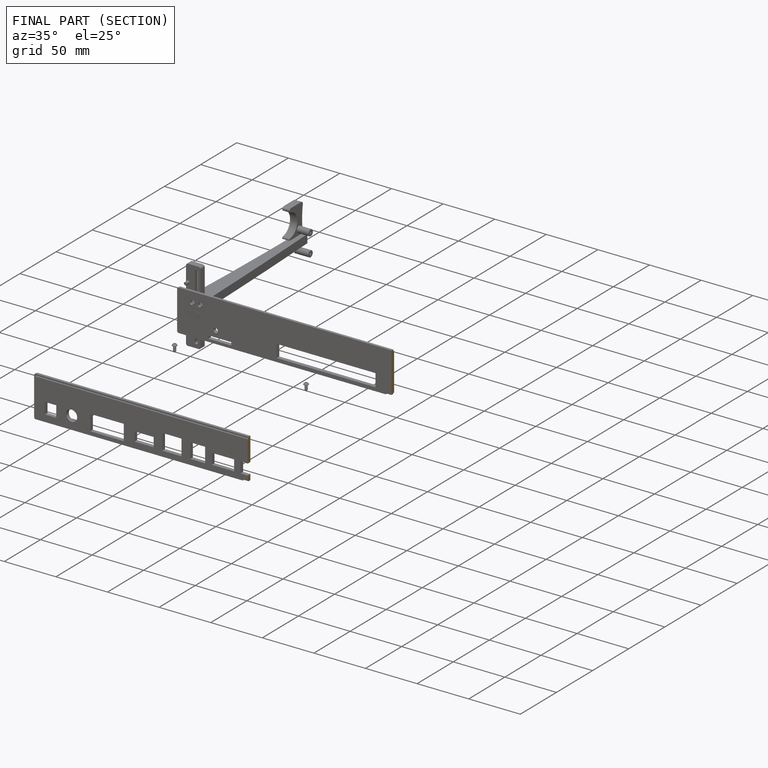
[diagram: finished part — half-section view (interior)]
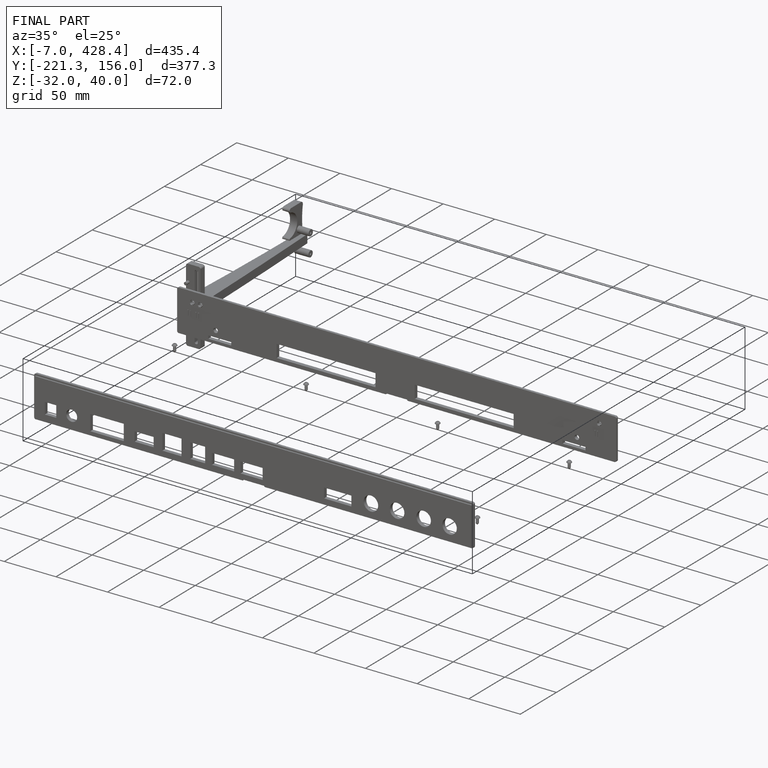
[diagram: finished part — iso view with bounding-box wireframe]
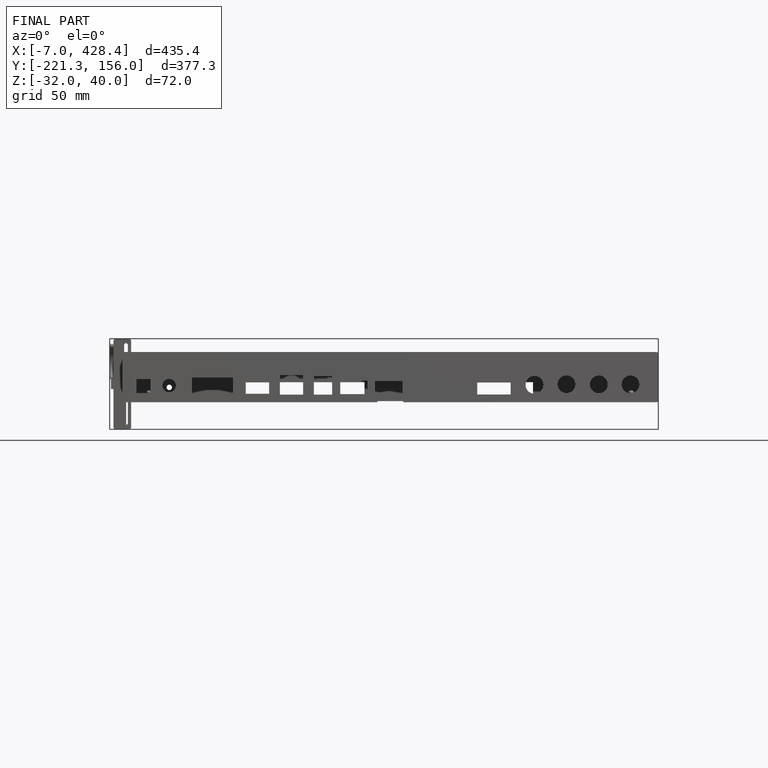
[diagram: finished part — front view with bounding-box wireframe]
